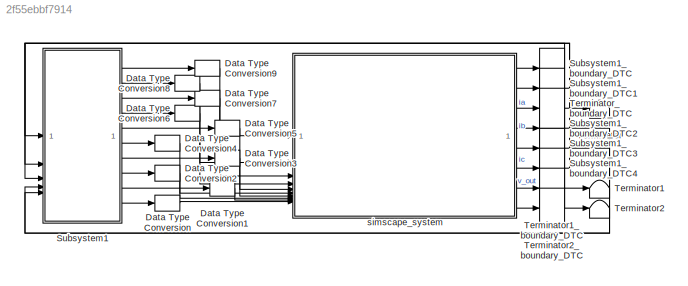
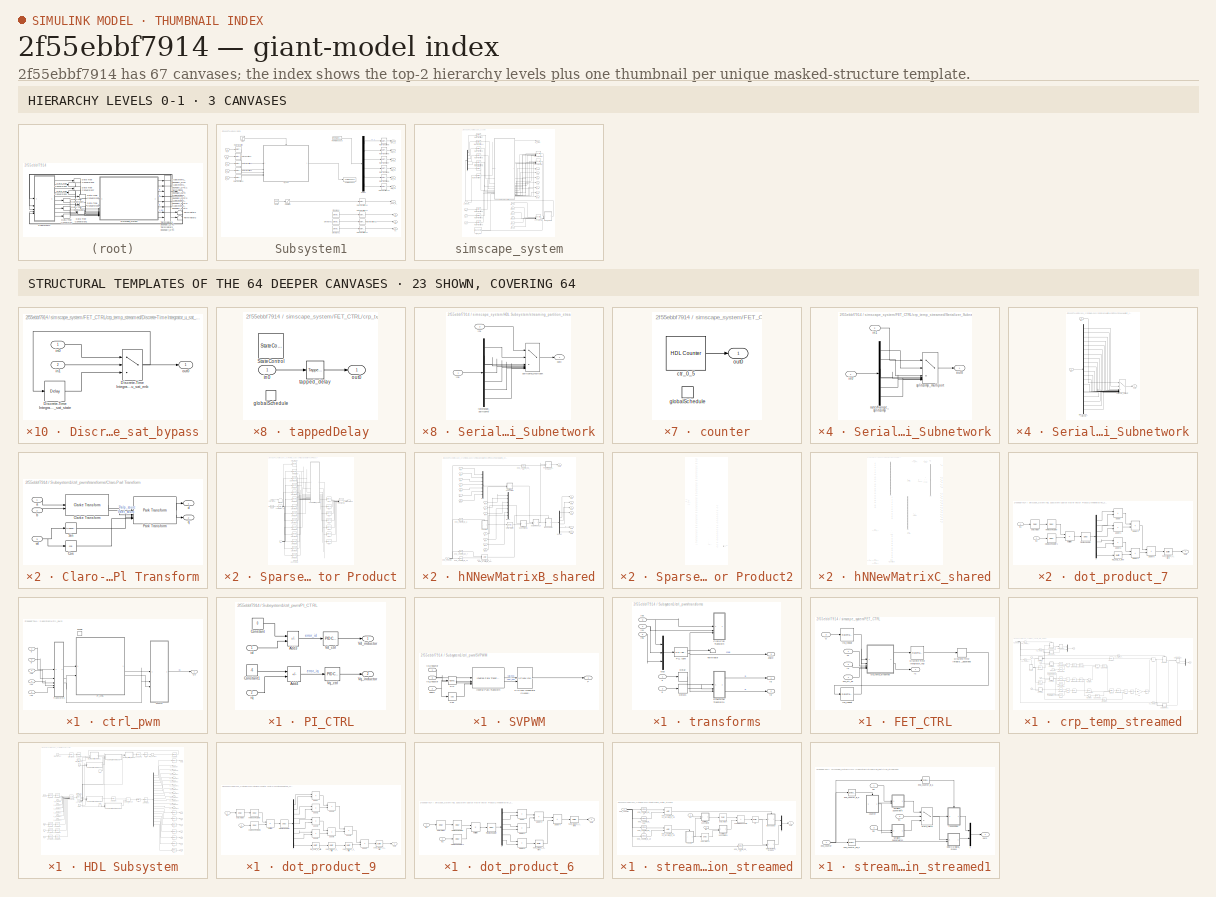
[diagram: thumbnail index - top-2 hierarchy levels (3 canvases) + 23 structural-template representatives of the remaining 64 canvases]
MODEL slx_2f55ebbf7914
KIND model
CONFIG AbsTol = auto
CONFIG EnableMultiTasking = off
CONFIG FixedStep = auto
CONFIG InitFcn = fidelity_pfc_vals;\nload('<userpath>\Desktop\hil\pfc3ph\matlab\sim\sschdl\pfc_desktop\stateSpaceParameters.mat');
CONFIG MaxStep = auto
CONFIG MinStep = auto
CONFIG RelTol = 1e-3
CONFIG SampleTimeConstraint = Unconstrained
CONFIG SolverName = VariableStepAuto
CONFIG StartTime = 0.0
CONFIG StopTime = 10.0
BLOCK [DataTypeConversion] Data Type Conversion
  RndMeth = Floor
  SaturateOnIntegerOverflow = off
BLOCK [DataTypeConversion] Data Type Conversion1
  RndMeth = Floor
  SaturateOnIntegerOverflow = off
BLOCK [DataTypeConversion] Data Type Conversion2
  RndMeth = Floor
  SaturateOnIntegerOverflow = off
BLOCK [DataTypeConversion] Data Type Conversion3
  RndMeth = Floor
  SaturateOnIntegerOverflow = off
BLOCK [DataTypeConversion] Data Type Conversion4
  RndMeth = Floor
  SaturateOnIntegerOverflow = off
BLOCK [DataTypeConversion] Data Type Conversion5
  RndMeth = Floor
  SaturateOnIntegerOverflow = off
BLOCK [DataTypeConversion] Data Type Conversion6
  RndMeth = Floor
  SaturateOnIntegerOverflow = off
BLOCK [DataTypeConversion] Data Type Conversion7
  RndMeth = Floor
  SaturateOnIntegerOverflow = off
BLOCK [DataTypeConversion] Data Type Conversion8
  RndMeth = Floor
  SaturateOnIntegerOverflow = off
BLOCK [DataTypeConversion] Data Type Conversion9
  RndMeth = Floor
  SaturateOnIntegerOverflow = off
BLOCK [SubSystem] Subsystem1
BLOCK [Outport] Subsystem1/DW_L1
  Port = 2
BLOCK [Outport] Subsystem1/DW_L2
  Port = 4
BLOCK [Outport] Subsystem1/DW_L3
  Port = 6
BLOCK [Demux] Subsystem1/Demux
  Outputs = 6
BLOCK [FromWorkspace] Subsystem1/From Workspace
  Interpolate = off
  OutputAfterFinalValue = Holding final value
  SampleTime = t_ss
  VariableName = pwm
  ZeroCross = off
BLOCK [Outport] Subsystem1/I_load_in_
  Port = 7
BLOCK [Inport] Subsystem1/O_Ia
BLOCK [Inport] Subsystem1/O_Ib
  Port = 2
BLOCK [Inport] Subsystem1/O_Va
  Port = 3
BLOCK [Inport] Subsystem1/O_Vb
  Port = 4
BLOCK [Inport] Subsystem1/O_Vc
  Port = 5
BLOCK [Reference] Subsystem1/Ramp  REF=simulink/Sources/Ramp
  SourceBlock = simulink/Sources/Ramp
  SourceType = Ramp
BLOCK [RateTransition] Subsystem1/Rate Transition
  Commented = on
  OutPortSampleTime = t_ss
BLOCK [RateTransition] Subsystem1/Rate Transition1
  Commented = on
  OutPortSampleTime = t_ss
BLOCK [RateTransition] Subsystem1/Rate Transition10
  OutPortSampleTime = t_ss
BLOCK [RateTransition] Subsystem1/Rate Transition11
BLOCK [RateTransition] Subsystem1/Rate Transition12
BLOCK [RateTransition] Subsystem1/Rate Transition13
BLOCK [RateTransition] Subsystem1/Rate Transition14
  OutPortSampleTime = t_ss
BLOCK [RateTransition] Subsystem1/Rate Transition2
  Commented = on
  OutPortSampleTime = t_ss
BLOCK [RateTransition] Subsystem1/Rate Transition3
  Commented = on
  OutPortSampleTime = t_ss
BLOCK [RateTransition] Subsystem1/Rate Transition4
  Commented = on
  OutPortSampleTime = t_ss
BLOCK [RateTransition] Subsystem1/Rate Transition5
  OutPortSampleTime = t_ss
BLOCK [RateTransition] Subsystem1/Rate Transition6
  OutPortSampleTime = t_ss
BLOCK [RateTransition] Subsystem1/Rate Transition7
  OutPortSampleTime = t_ss
BLOCK [RateTransition] Subsystem1/Rate Transition8
  OutPortSampleTime = t_ss
BLOCK [RateTransition] Subsystem1/Rate Transition9
  OutPortSampleTime = t_ss
BLOCK [Saturate] Subsystem1/Saturation
  UpperLimit = 2
BLOCK [Reference] Subsystem1/Sine Wave  REF=dspsrcs4/Sine Wave
  SourceBlock = dspsrcs4/Sine Wave
  SourceType = Sine Wave
BLOCK [Reference] Subsystem1/Sine Wave1  REF=dspsrcs4/Sine Wave
  SourceBlock = dspsrcs4/Sine Wave
  SourceType = Sine Wave
BLOCK [Reference] Subsystem1/Sine Wave2  REF=dspsrcs4/Sine Wave
  SourceBlock = dspsrcs4/Sine Wave
  SourceType = Sine Wave
BLOCK [Step] Subsystem1/Step
  Commented = on
  SampleTime = 0
  Time = 2/50
BLOCK [ToWorkspace] Subsystem1/To Workspace
  Commented = on
  FixptAsFi = on
  MaxDataPoints = inf
  SampleTime = -1
  SaveFormat = Timeseries
  VariableName = pwm
BLOCK [Outport] Subsystem1/UP_L1
BLOCK [Outport] Subsystem1/UP_L2
  Port = 3
BLOCK [Outport] Subsystem1/UP_L3
  Port = 5
BLOCK [SubSystem] Subsystem1/ctrl_pwm
  Commented = on
BLOCK [EnablePort] Subsystem1/ctrl_pwm/Enable
BLOCK [Inport] Subsystem1/ctrl_pwm/In3
  Port = 3
BLOCK [Inport] Subsystem1/ctrl_pwm/In4
  Port = 4
BLOCK [Inport] Subsystem1/ctrl_pwm/In5
  Port = 5
BLOCK [SubSystem] Subsystem1/ctrl_pwm/PI_CTRL
BLOCK [Sum] Subsystem1/ctrl_pwm/PI_CTRL/Add3
  IconShape = rectangular
  Inputs = +-
BLOCK [Sum] Subsystem1/ctrl_pwm/PI_CTRL/Add4
  IconShape = rectangular
  Inputs = +-
BLOCK [Constant] Subsystem1/ctrl_pwm/PI_CTRL/Constant
  SampleTime = t_ss
  Value = 0
BLOCK [Constant] Subsystem1/ctrl_pwm/PI_CTRL/Constant1
  SampleTime = t_ss
  Value = -6
BLOCK [Reference] Subsystem1/ctrl_pwm/PI_CTRL/Vd_ctrl  REF=slpidlib/PID Controller
  SourceBlock = slpidlib/PID Controller
  SourceType = PID 1dof
BLOCK [Outport] Subsystem1/ctrl_pwm/PI_CTRL/Vd_inductor
BLOCK [Reference] Subsystem1/ctrl_pwm/PI_CTRL/Vq_ctrl  REF=slpidlib/PID Controller
  SourceBlock = slpidlib/PID Controller
  SourceType = PID 1dof
BLOCK [Outport] Subsystem1/ctrl_pwm/PI_CTRL/Vq_inductor
  Port = 2
BLOCK [Inport] Subsystem1/ctrl_pwm/PI_CTRL/id
BLOCK [Inport] Subsystem1/ctrl_pwm/PI_CTRL/iq
  Port = 2
BLOCK [Outport] Subsystem1/ctrl_pwm/Qs
BLOCK [SubSystem] Subsystem1/ctrl_pwm/SVPWM
BLOCK [Trigonometry] Subsystem1/ctrl_pwm/SVPWM/Cos
  Operator = cos
BLOCK [Reference] Subsystem1/ctrl_pwm/SVPWM/Inverse Park Transform  REF=mcbcontrolslib/Inverse Park Transform
  SourceBlock = mcbcontrolslib/Inverse Park Transform
  SourceType = Inverse Park Transform
BLOCK [Outport] Subsystem1/ctrl_pwm/SVPWM/P
BLOCK [Reference] Subsystem1/ctrl_pwm/SVPWM/SVPWM Generator (2-Level)  REF=spsSVPWMGenerator2LevelLib/SVPWM Generator
(2-Level)
  SourceBlock = spsSVPWMGenerator2LevelLib/SVPWM Generator\n(2-Level)
  SourceType = SVPWM Generator (2-Level)
BLOCK [Trigonometry] Subsystem1/ctrl_pwm/SVPWM/Sin
BLOCK [Inport] Subsystem1/ctrl_pwm/SVPWM/Vd_inductor
BLOCK [Inport] Subsystem1/ctrl_pwm/SVPWM/Vq_inductor
  Port = 3
BLOCK [Inport] Subsystem1/ctrl_pwm/SVPWM/angle
  Port = 2
BLOCK [Inport] Subsystem1/ctrl_pwm/a
BLOCK [Inport] Subsystem1/ctrl_pwm/b
  Port = 2
BLOCK [SubSystem] Subsystem1/ctrl_pwm/transforms
BLOCK [SubSystem] Subsystem1/ctrl_pwm/transforms/Claro-Parl Transform
  Commented = on
BLOCK [Reference] Subsystem1/ctrl_pwm/transforms/Claro-Parl Transform/Clarke Transform  REF=mcbcontrolslib/Clarke Transform
  SourceBlock = mcbcontrolslib/Clarke Transform
  SourceType = Clarke Transform
BLOCK [Trigonometry] Subsystem1/ctrl_pwm/transforms/Claro-Parl Transform/Cos
  Operator = cos
BLOCK [Reference] Subsystem1/ctrl_pwm/transforms/Claro-Parl Transform/Park Transform  REF=mcbcontrolslib/Park Transform
  SourceBlock = mcbcontrolslib/Park Transform
  SourceType = Park Transform
BLOCK [Trigonometry] Subsystem1/ctrl_pwm/transforms/Claro-Parl Transform/Sin
BLOCK [Inport] Subsystem1/ctrl_pwm/transforms/Claro-Parl Transform/a
BLOCK [Inport] Subsystem1/ctrl_pwm/transforms/Claro-Parl Transform/b
  Port = 2
BLOCK [Outport] Subsystem1/ctrl_pwm/transforms/Claro-Parl Transform/d
BLOCK [Outport] Subsystem1/ctrl_pwm/transforms/Claro-Parl Transform/q
  Port = 2
BLOCK [Inport] Subsystem1/ctrl_pwm/transforms/Claro-Parl Transform/wt
  Port = 3
BLOCK [SubSystem] Subsystem1/ctrl_pwm/transforms/Claro-Parl Transform1
BLOCK [Reference] Subsystem1/ctrl_pwm/transforms/Claro-Parl Transform1/Clarke Transform  REF=mcbcontrolslib/Clarke Transform
  SourceBlock = mcbcontrolslib/Clarke Transform
  SourceType = Clarke Transform
BLOCK [Trigonometry] Subsystem1/ctrl_pwm/transforms/Claro-Parl Transform1/Cos
  Operator = cos
BLOCK [Reference] Subsystem1/ctrl_pwm/transforms/Claro-Parl Transform1/Park Transform  REF=mcbcontrolslib/Park Transform
  SourceBlock = mcbcontrolslib/Park Transform
  SourceType = Park Transform
BLOCK [Trigonometry] Subsystem1/ctrl_pwm/transforms/Claro-Parl Transform1/Sin
BLOCK [Inport] Subsystem1/ctrl_pwm/transforms/Claro-Parl Transform1/a
BLOCK [Inport] Subsystem1/ctrl_pwm/transforms/Claro-Parl Transform1/b
  Port = 2
BLOCK [Outport] Subsystem1/ctrl_pwm/transforms/Claro-Parl Transform1/d
BLOCK [Outport] Subsystem1/ctrl_pwm/transforms/Claro-Parl Transform1/q
  Port = 2
BLOCK [Inport] Subsystem1/ctrl_pwm/transforms/Claro-Parl Transform1/wt
  Port = 3
BLOCK [Delay] Subsystem1/ctrl_pwm/transforms/Delay
  DelayLength = 1
  InputPortMap = u0
BLOCK [Delay] Subsystem1/ctrl_pwm/transforms/Delay1
  DelayLength = 1
  InputPortMap = u0
BLOCK [Inport] Subsystem1/ctrl_pwm/transforms/In3
  Port = 3
BLOCK [Inport] Subsystem1/ctrl_pwm/transforms/In4
  Port = 4
BLOCK [Inport] Subsystem1/ctrl_pwm/transforms/In5
  Port = 5
BLOCK [Mux] Subsystem1/ctrl_pwm/transforms/Mux
  DisplayOption = bar
  Inputs = 3
BLOCK [Reference] Subsystem1/ctrl_pwm/transforms/PLL (3ph)  REF=spsPLL3phLib/PLL
(3ph)
  SourceBlock = spsPLL3phLib/PLL\n(3ph)
  SourceType = PLL (3ph)
BLOCK [Terminator] Subsystem1/ctrl_pwm/transforms/Terminator
BLOCK [Inport] Subsystem1/ctrl_pwm/transforms/a
BLOCK [Outport] Subsystem1/ctrl_pwm/transforms/angle
  Port = 3
BLOCK [Inport] Subsystem1/ctrl_pwm/transforms/b
  Port = 2
BLOCK [Outport] Subsystem1/ctrl_pwm/transforms/id
BLOCK [Outport] Subsystem1/ctrl_pwm/transforms/iq
  Port = 2
BLOCK [Outport] Subsystem1/va
  Port = 8
BLOCK [Outport] Subsystem1/vb
  Port = 9
BLOCK [Outport] Subsystem1/vc
  Port = 10
BLOCK [DataTypeConversion] Subsystem1_boundary_DTC
BLOCK [DataTypeConversion] Subsystem1_boundary_DTC1
BLOCK [DataTypeConversion] Subsystem1_boundary_DTC2
BLOCK [DataTypeConversion] Subsystem1_boundary_DTC3
BLOCK [DataTypeConversion] Subsystem1_boundary_DTC4
BLOCK [Terminator] Terminator
BLOCK [Terminator] Terminator1
BLOCK [DataTypeConversion] Terminator1_boundary_DTC
BLOCK [Terminator] Terminator2
BLOCK [DataTypeConversion] Terminator2_boundary_DTC
BLOCK [DataTypeConversion] Terminator_boundary_DTC
BLOCK [SubSystem] simscape_system
BLOCK [Inport] simscape_system/DW_L1
  OutDataTypeStr = boolean
  Port = 2
  PortDimensions = 1
  SampleTime = 5.12820512820513e-07
BLOCK [Inport] simscape_system/DW_L2
  OutDataTypeStr = boolean
  Port = 4
  PortDimensions = 1
  SampleTime = 5.12820512820513e-07
BLOCK [Inport] simscape_system/DW_L3
  OutDataTypeStr = boolean
  Port = 6
  PortDimensions = 1
  SampleTime = 5.12820512820513e-07
BLOCK [SubSystem] simscape_system/FET_CTRL
BLOCK [RateTransition] simscape_system/FET_CTRL/Discrete-Time Integrator_reg
  InitialCondition = double(0)
  OutPortSampleTimeMultiple = 37
  OutPortSampleTimeOpt = Multiple of input port sample time
BLOCK [Delay] simscape_system/FET_CTRL/Discrete-Time Integrator_reg_absorbed
  DelayLength = 0
  InputPortMap = u0
BLOCK [Inport] simscape_system/FET_CTRL/G
  OutDataTypeStr = boolean
  Port = 3
  PortDimensions = [6]
  SampleTime = 5.12820512820513e-07
BLOCK [SubSystem] simscape_system/FET_CTRL/crp_temp_streamed
BLOCK [Constant] simscape_system/FET_CTRL/crp_temp_streamed/Constant
  OutDataTypeStr = fixdt(1, 18, 17)
  SampleTime = 1.38600138600139e-08
  Value = -0.6999969482421875
BLOCK [SubSystem] simscape_system/FET_CTRL/crp_temp_streamed/Discrete-Time Integrator_u_sat_bypass
BLOCK [Switch] simscape_system/FET_CTRL/crp_temp_streamed/Discrete-Time Integrator_u_sat_bypass/Discrete-Time Integrator_u_sat_enb
  Criteria = u2 ~= 0
  InputSameDT = off
  OutDataTypeStr = fixdt(1, 18, 8)
  SampleTime = 1.38600138600139e-08
  SaturateOnIntegerOverflow = off
  Threshold = double(0)
BLOCK [Delay] simscape_system/FET_CTRL/crp_temp_streamed/Discrete-Time Integrator_u_sat_bypass/Discrete-Time Integrator_u_sat_state
  DelayLength = double(1)
  InitialCondition = 0
  InputPortMap = u0
  SampleTime = 1.38600138600139e-08
BLOCK [Inport] simscape_system/FET_CTRL/crp_temp_streamed/Discrete-Time Integrator_u_sat_bypass/in0
  OutDataTypeStr = fixdt(1, 18, 8)
  PortDimensions = [5]
  SampleTime = 1.38600138600139e-08
BLOCK [Inport] simscape_system/FET_CTRL/crp_temp_streamed/Discrete-Time Integrator_u_sat_bypass/in1
  OutDataTypeStr = boolean
  Port = 2
  SampleTime = 1.38600138600139e-08
BLOCK [Outport] simscape_system/FET_CTRL/crp_temp_streamed/Discrete-Time Integrator_u_sat_bypass/out0
  OutDataTypeStr = fixdt(1, 18, 8)
  PortDimensions = [5]
  SampleTime = 1.38600138600139e-08
BLOCK [SubSystem] simscape_system/FET_CTRL/crp_temp_streamed/Discrete-Time Integrator_u_sat_bypass1
BLOCK [Switch] simscape_system/FET_CTRL/crp_temp_streamed/Discrete-Time Integrator_u_sat_bypass1/Discrete-Time Integrator_u_sat_enb
  Criteria = u2 ~= 0
  InputSameDT = off
  OutDataTypeStr = fixdt(1, 18, 8)
  SampleTime = 1.38600138600139e-08
  SaturateOnIntegerOverflow = off
  Threshold = double(0)
BLOCK [Delay] simscape_system/FET_CTRL/crp_temp_streamed/Discrete-Time Integrator_u_sat_bypass1/Discrete-Time Integrator_u_sat_state
  DelayLength = double(1)
  InitialCondition = 0
  InputPortMap = u0
  SampleTime = 1.38600138600139e-08
BLOCK [Inport] simscape_system/FET_CTRL/crp_temp_streamed/Discrete-Time Integrator_u_sat_bypass1/in0
  OutDataTypeStr = fixdt(1, 18, 8)
  SampleTime = 1.38600138600139e-08
BLOCK [Inport] simscape_system/FET_CTRL/crp_temp_streamed/Discrete-Time Integrator_u_sat_bypass1/in1
  OutDataTypeStr = boolean
  Port = 2
  SampleTime = 1.38600138600139e-08
BLOCK [Outport] simscape_system/FET_CTRL/crp_temp_streamed/Discrete-Time Integrator_u_sat_bypass1/out0
  OutDataTypeStr = fixdt(1, 18, 8)
  SampleTime = 1.38600138600139e-08
BLOCK [RelationalOperator] simscape_system/FET_CTRL/crp_temp_streamed/Equal
  InputSameDT = off
  OutDataTypeStr = boolean
  SampleTime = 1.38600138600139e-08
BLOCK [Product] simscape_system/FET_CTRL/crp_temp_streamed/Gain1
  Inputs = **
  OutDataTypeStr = fixdt(1, 36, 23)
  SampleTime = 1.38600138600139e-08
BLOCK [Constant] simscape_system/FET_CTRL/crp_temp_streamed/Gain1_const
  OutDataTypeStr = fixdt(1, 18, 17)
  SampleTime = 1.38600138600139e-08
  Value = -1
BLOCK [DataTypeConversion] simscape_system/FET_CTRL/crp_temp_streamed/Gain1_out_dtc
  OutDataTypeStr = fixdt(1, 18, 12)
  RndMeth = Floor
  SampleTime = 1.38600138600139e-08
  SaturateOnIntegerOverflow = off
BLOCK [Product] simscape_system/FET_CTRL/crp_temp_streamed/Gain3
  Inputs = **
  OutDataTypeStr = fixdt(1, 36, 28)
  SampleTime = 1.38600138600139e-08
BLOCK [Constant] simscape_system/FET_CTRL/crp_temp_streamed/Gain3_const
  OutDataTypeStr = fixdt(1, 18, 22)
  SampleTime = 1.38600138600139e-08
  Value = 0.019999980926513671875
BLOCK [DataTypeConversion] simscape_system/FET_CTRL/crp_temp_streamed/Gain3_out_dtc
  OutDataTypeStr = fixdt(1, 18, 12)
  RndMeth = Floor
  SampleTime = 1.38600138600139e-08
  SaturateOnIntegerOverflow = off
BLOCK [Delay] simscape_system/FET_CTRL/crp_temp_streamed/HwModeRegister
  DelayLength = double(1)
  InitialCondition = 0
  InputPortMap = u0
  SampleTime = 1.38600138600139e-08
BLOCK [Delay] simscape_system/FET_CTRL/crp_temp_streamed/HwModeRegister1
  DelayLength = double(1)
  InitialCondition = 0
  InputPortMap = u0
  SampleTime = 1.38600138600139e-08
BLOCK [Delay] simscape_system/FET_CTRL/crp_temp_streamed/HwModeRegister2
  DelayLength = double(1)
  InitialCondition = 0
  InputPortMap = u0
  SampleTime = 1.38600138600139e-08
BLOCK [Delay] simscape_system/FET_CTRL/crp_temp_streamed/HwModeRegister3
  DelayLength = double(1)
  InitialCondition = 0
  InputPortMap = u0
  SampleTime = 1.38600138600139e-08
BLOCK [Delay] simscape_system/FET_CTRL/crp_temp_streamed/HwModeRegister4
  DelayLength = double(1)
  InitialCondition = 0
  InputPortMap = u0
  SampleTime = 1.38600138600139e-08
BLOCK [Delay] simscape_system/FET_CTRL/crp_temp_streamed/HwModeRegister5
  DelayLength = double(1)
  InitialCondition = 0
  InputPortMap = u0
  SampleTime = 1.38600138600139e-08
BLOCK [Delay] simscape_system/FET_CTRL/crp_temp_streamed/HwModeRegister6
  DelayLength = double(1)
  InitialCondition = 0
  InputPortMap = u0
  SampleTime = 1.38600138600139e-08
BLOCK [Reference] simscape_system/FET_CTRL/crp_temp_streamed/Multiply-Add  REF=hdlsllib/HDL Operations/Multiply-Add
  SourceBlock = hdlsllib/HDL Operations/Multiply-Add
  SourceType = Multiply-Add
BLOCK [Logic] simscape_system/FET_CTRL/crp_temp_streamed/OR
  AllPortsSameDT = off
  Operator = OR
  OutDataTypeStr = boolean
  SampleTime = 1.38600138600139e-08
BLOCK [Delay] simscape_system/FET_CTRL/crp_temp_streamed/PipelineRegister
  DelayLength = double(2)
  InitialCondition = 0
  InputPortMap = u0
  SampleTime = 1.38600138600139e-08
BLOCK [Delay] simscape_system/FET_CTRL/crp_temp_streamed/PipelineRegister1
  DelayLength = double(1)
  InitialCondition = 0
  InputPortMap = u0
  SampleTime = 1.38600138600139e-08
BLOCK [Delay] simscape_system/FET_CTRL/crp_temp_streamed/PipelineRegister2
  DelayLength = double(1)
  InitialCondition = 0
  InputPortMap = u0
  SampleTime = 1.38600138600139e-08
BLOCK [SubSystem] simscape_system/FET_CTRL/crp_temp_streamed/Serializer_Subnetwork
BLOCK [Inport] simscape_system/FET_CTRL/crp_temp_streamed/Serializer_Subnetwork/in0
  OutDataTypeStr = fixdt(1, 18, 8)
  PortDimensions = [6]
  SampleTime = 1.38600138600139e-08
BLOCK [Inport] simscape_system/FET_CTRL/crp_temp_streamed/Serializer_Subnetwork/in1
  OutDataTypeStr = fixdt(0, 3, 0)
  Port = 2
  SampleTime = 1.38600138600139e-08
BLOCK [Outport] simscape_system/FET_CTRL/crp_temp_streamed/Serializer_Subnetwork/out0
  OutDataTypeStr = fixdt(1, 18, 8)
  SampleTime = 1.38600138600139e-08
BLOCK [Demux] simscape_system/FET_CTRL/crp_temp_streamed/Serializer_Subnetwork/ratechange_splitcomp
  Outputs = 6
BLOCK [MultiPortSwitch] simscape_system/FET_CTRL/crp_temp_streamed/Serializer_Subnetwork/splitcomp_multiport
  DataPortOrder = Zero-based contiguous
  DiagnosticForDefault = None
  InputSameDT = off
  Inputs = 6
  OutDataTypeStr = fixdt(1, 18, 8)
  SampleTime = 1.38600138600139e-08
  SaturateOnIntegerOverflow = off
  zeroidx = on
BLOCK [SubSystem] simscape_system/FET_CTRL/crp_temp_streamed/Serializer_Subnetwork1
BLOCK [Inport] simscape_system/FET_CTRL/crp_temp_streamed/Serializer_Subnetwork1/in0
  OutDataTypeStr = boolean
  PortDimensions = [6]
  SampleTime = 1.38600138600139e-08
BLOCK [Inport] simscape_system/FET_CTRL/crp_temp_streamed/Serializer_Subnetwork1/in1
  OutDataTypeStr = fixdt(0, 3, 0)
  Port = 2
  SampleTime = 1.38600138600139e-08
BLOCK [Outport] simscape_system/FET_CTRL/crp_temp_streamed/Serializer_Subnetwork1/out0
  OutDataTypeStr = boolean
  SampleTime = 1.38600138600139e-08
BLOCK [Demux] simscape_system/FET_CTRL/crp_temp_streamed/Serializer_Subnetwork1/ratechange_splitcomp
  Outputs = 6
BLOCK [MultiPortSwitch] simscape_system/FET_CTRL/crp_temp_streamed/Serializer_Subnetwork1/splitcomp_multiport
  DataPortOrder = Zero-based contiguous
  DiagnosticForDefault = None
  InputSameDT = off
  Inputs = 6
  SampleTime = 1.38600138600139e-08
  SaturateOnIntegerOverflow = off
  zeroidx = on
BLOCK [SubSystem] simscape_system/FET_CTRL/crp_temp_streamed/Serializer_Subnetwork2
BLOCK [Inport] simscape_system/FET_CTRL/crp_temp_streamed/Serializer_Subnetwork2/in0
  OutDataTypeStr = fixdt(1, 18, 6)
  PortDimensions = [6]
  SampleTime = 1.38600138600139e-08
BLOCK [Inport] simscape_system/FET_CTRL/crp_temp_streamed/Serializer_Subnetwork2/in1
  OutDataTypeStr = fixdt(0, 3, 0)
  Port = 2
  SampleTime = 1.38600138600139e-08
BLOCK [Outport] simscape_system/FET_CTRL/crp_temp_streamed/Serializer_Subnetwork2/out0
  OutDataTypeStr = fixdt(1, 18, 6)
  SampleTime = 1.38600138600139e-08
BLOCK [Demux] simscape_system/FET_CTRL/crp_temp_streamed/Serializer_Subnetwork2/ratechange_splitcomp
  Outputs = 6
BLOCK [MultiPortSwitch] simscape_system/FET_CTRL/crp_temp_streamed/Serializer_Subnetwork2/splitcomp_multiport
  DataPortOrder = Zero-based contiguous
  DiagnosticForDefault = None
  InputSameDT = off
  Inputs = 6
  OutDataTypeStr = fixdt(1, 18, 6)
  SampleTime = 1.38600138600139e-08
  SaturateOnIntegerOverflow = off
  zeroidx = on
BLOCK [SubSystem] simscape_system/FET_CTRL/crp_temp_streamed/Serializer_Subnetwork3
BLOCK [Inport] simscape_system/FET_CTRL/crp_temp_streamed/Serializer_Subnetwork3/in0
  OutDataTypeStr = fixdt(1, 18, 6)
  PortDimensions = [6]
  SampleTime = 1.38600138600139e-08
BLOCK [Inport] simscape_system/FET_CTRL/crp_temp_streamed/Serializer_Subnetwork3/in1
  OutDataTypeStr = fixdt(0, 3, 0)
  Port = 2
  SampleTime = 1.38600138600139e-08
BLOCK [Outport] simscape_system/FET_CTRL/crp_temp_streamed/Serializer_Subnetwork3/out0
  OutDataTypeStr = fixdt(1, 18, 6)
  SampleTime = 1.38600138600139e-08
BLOCK [Demux] simscape_system/FET_CTRL/crp_temp_streamed/Serializer_Subnetwork3/ratechange_splitcomp
  Outputs = 6
BLOCK [MultiPortSwitch] simscape_system/FET_CTRL/crp_temp_streamed/Serializer_Subnetwork3/splitcomp_multiport
  DataPortOrder = Zero-based contiguous
  DiagnosticForDefault = None
  InputSameDT = off
  Inputs = 6
  OutDataTypeStr = fixdt(1, 18, 6)
  SampleTime = 1.38600138600139e-08
  SaturateOnIntegerOverflow = off
  zeroidx = on
BLOCK [Sum] simscape_system/FET_CTRL/crp_temp_streamed/Subtract
  AccumDataTypeStr = fixdt(1, 23, 12)
  IconShape = rectangular
  Inputs = +-
  OutDataTypeStr = fixdt(1, 18, 12)
  SampleTime = 1.38600138600139e-08
BLOCK [Sum] simscape_system/FET_CTRL/crp_temp_streamed/Subtract1
  AccumDataTypeStr = fixdt(1, 19, 12)
  IconShape = rectangular
  Inputs = +-
  OutDataTypeStr = fixdt(1, 18, 11)
  SampleTime = 1.38600138600139e-08
BLOCK [Sum] simscape_system/FET_CTRL/crp_temp_streamed/adder
  AccumDataTypeStr = fixdt(1, 18, 8)
  IconShape = rectangular
  OutDataTypeStr = fixdt(1, 18, 8)
  SampleTime = 1.38600138600139e-08
BLOCK [SubSystem] simscape_system/FET_CTRL/crp_temp_streamed/buffSig_bypass
BLOCK [Switch] simscape_system/FET_CTRL/crp_temp_streamed/buffSig_bypass/buffSig_enb
  Criteria = u2 ~= 0
  InputSameDT = off
  OutDataTypeStr = fixdt(1, 18, 8)
  SampleTime = 1.38600138600139e-08
  SaturateOnIntegerOverflow = off
  Threshold = double(0)
BLOCK [Delay] simscape_system/FET_CTRL/crp_temp_streamed/buffSig_bypass/buffSig_state
  DelayLength = double(1)
  InitialCondition = 0
  InputPortMap = u0
  SampleTime = 1.38600138600139e-08
BLOCK [Inport] simscape_system/FET_CTRL/crp_temp_streamed/buffSig_bypass/in0
  OutDataTypeStr = fixdt(1, 18, 8)
  PortDimensions = [5]
  SampleTime = 1.38600138600139e-08
BLOCK [Inport] simscape_system/FET_CTRL/crp_temp_streamed/buffSig_bypass/in1
  OutDataTypeStr = boolean
  Port = 2
  SampleTime = 1.38600138600139e-08
BLOCK [Outport] simscape_system/FET_CTRL/crp_temp_streamed/buffSig_bypass/out0
  OutDataTypeStr = fixdt(1, 18, 8)
  PortDimensions = [5]
  SampleTime = 1.38600138600139e-08
BLOCK [SubSystem] simscape_system/FET_CTRL/crp_temp_streamed/buffSig_bypass1
BLOCK [Switch] simscape_system/FET_CTRL/crp_temp_streamed/buffSig_bypass1/buffSig_enb
  Criteria = u2 ~= 0
  InputSameDT = off
  OutDataTypeStr = fixdt(1, 18, 8)
  SampleTime = 1.38600138600139e-08
  SaturateOnIntegerOverflow = off
  Threshold = double(0)
BLOCK [Delay] simscape_system/FET_CTRL/crp_temp_streamed/buffSig_bypass1/buffSig_state
  DelayLength = double(1)
  InitialCondition = 0
  InputPortMap = u0
  SampleTime = 1.38600138600139e-08
BLOCK [Inport] simscape_system/FET_CTRL/crp_temp_streamed/buffSig_bypass1/in0
  OutDataTypeStr = fixdt(1, 18, 8)
  SampleTime = 1.38600138600139e-08
BLOCK [Inport] simscape_system/FET_CTRL/crp_temp_streamed/buffSig_bypass1/in1
  OutDataTypeStr = boolean
  Port = 2
  SampleTime = 1.38600138600139e-08
BLOCK [Outport] simscape_system/FET_CTRL/crp_temp_streamed/buffSig_bypass1/out0
  OutDataTypeStr = fixdt(1, 18, 8)
  SampleTime = 1.38600138600139e-08
BLOCK [SubSystem] simscape_system/FET_CTRL/crp_temp_streamed/counter
BLOCK [Reference] simscape_system/FET_CTRL/crp_temp_streamed/counter/ctr_0_5  REF=hdlsllib/Sources/HDL Counter
  SourceBlock = hdlsllib/Sources/HDL Counter
  SourceType = HDL Counter
BLOCK [EnablePort] simscape_system/FET_CTRL/crp_temp_streamed/counter/globalSchedule
  OutDataTypeStr = boolean
BLOCK [Outport] simscape_system/FET_CTRL/crp_temp_streamed/counter/out0
  InitialOutput = 0
  OutDataTypeStr = fixdt(0, 3, 0)
  SampleTime = 1.38600138600139e-08
BLOCK [Delay] simscape_system/FET_CTRL/crp_temp_streamed/delayMatch
  DelayLength = double(2)
  InitialCondition = 0
  InputPortMap = u0
  SampleTime = 1.38600138600139e-08
BLOCK [Delay] simscape_system/FET_CTRL/crp_temp_streamed/delayMatch1
  DelayLength = double(32)
  InitialCondition = 0
  InputPortMap = u0
  SampleTime = 1.38600138600139e-08
BLOCK [Delay] simscape_system/FET_CTRL/crp_temp_streamed/delayMatch2
  DelayLength = double(32)
  InitialCondition = 0
  InputPortMap = u0
  SampleTime = 1.38600138600139e-08
BLOCK [Delay] simscape_system/FET_CTRL/crp_temp_streamed/delayMatch3
  DelayLength = double(27)
  InitialCondition = 0
  InputPortMap = u0
  SampleTime = 1.38600138600139e-08
BLOCK [Delay] simscape_system/FET_CTRL/crp_temp_streamed/delayMatch4
  DelayLength = double(27)
  InitialCondition = 0
  InputPortMap = u0
  SampleTime = 1.38600138600139e-08
BLOCK [Delay] simscape_system/FET_CTRL/crp_temp_streamed/delayMatch5
  DelayLength = double(27)
  InitialCondition = 0
  InputPortMap = u0
  SampleTime = 1.38600138600139e-08
BLOCK [Delay] simscape_system/FET_CTRL/crp_temp_streamed/delayMatch_absorbed
  DelayLength = 0
  InputPortMap = u0
BLOCK [Delay] simscape_system/FET_CTRL/crp_temp_streamed/delayMatch_absorbed1
  DelayLength = 0
  InputPortMap = u0
BLOCK [DataTypeConversion] simscape_system/FET_CTRL/crp_temp_streamed/dtc
  ConvertRealWorld = Stored Integer (SI)
  OutDataTypeStr = fixdt(1, 18, 8)
  RndMeth = Floor
  SampleTime = 1.38600138600139e-08
  SaturateOnIntegerOverflow = off
BLOCK [DataTypeConversion] simscape_system/FET_CTRL/crp_temp_streamed/dtc1
  ConvertRealWorld = Stored Integer (SI)
  OutDataTypeStr = fixdt(1, 18, 0)
  RndMeth = Floor
  SampleTime = 1.38600138600139e-08
  SaturateOnIntegerOverflow = off
BLOCK [Inport] simscape_system/FET_CTRL/crp_temp_streamed/enb_counter
  OutDataTypeStr = fixdt(0, 6, 0)
  Port = 5
  SampleTime = 1.38600138600139e-08
BLOCK [Reference] simscape_system/FET_CTRL/crp_temp_streamed/enb_counter_eq_0  REF=simulink/Logic and Bit
Operations/Compare
To Constant
  SourceBlock = simulink/Logic and Bit\nOperations/Compare\nTo Constant
  SourceType = Compare To Constant
BLOCK [Reference] simscape_system/FET_CTRL/crp_temp_streamed/enb_counter_eq_5  REF=simulink/Logic and Bit
Operations/Compare
To Constant
  SourceBlock = simulink/Logic and Bit\nOperations/Compare\nTo Constant
  SourceType = Compare To Constant
BLOCK [Reference] simscape_system/FET_CTRL/crp_temp_streamed/enb_counter_ge_32  REF=simulink/Logic and Bit
Operations/Compare
To Constant
  SourceBlock = simulink/Logic and Bit\nOperations/Compare\nTo Constant
  SourceType = Compare To Constant
BLOCK [Reference] simscape_system/FET_CTRL/crp_temp_streamed/enb_counter_le_4  REF=simulink/Logic and Bit
Operations/Compare
To Constant
  SourceBlock = simulink/Logic and Bit\nOperations/Compare\nTo Constant
  SourceType = Compare To Constant
BLOCK [Reference] simscape_system/FET_CTRL/crp_temp_streamed/enb_counter_le_5  REF=simulink/Logic and Bit
Operations/Compare
To Constant
  SourceBlock = simulink/Logic and Bit\nOperations/Compare\nTo Constant
  SourceType = Compare To Constant
BLOCK [Gain] simscape_system/FET_CTRL/crp_temp_streamed/gain
  Gain = fi(0,0,1,4,"hex","1")
  OutDataTypeStr = fixdt(1, 18, 0)
  ParamDataTypeStr = fixdt(0, 1, 4)
  SampleTime = 1.38600138600139e-08
BLOCK [Inport] simscape_system/FET_CTRL/crp_temp_streamed/in0
  OutDataTypeStr = fixdt(1, 18, 8)
  PortDimensions = [6]
  SampleTime = 1.38600138600139e-08
BLOCK [Inport] simscape_system/FET_CTRL/crp_temp_streamed/in1
  OutDataTypeStr = boolean
  Port = 2
  PortDimensions = [6]
  SampleTime = 1.38600138600139e-08
BLOCK [Inport] simscape_system/FET_CTRL/crp_temp_streamed/in2
  OutDataTypeStr = fixdt(1, 18, 6)
  Port = 3
  PortDimensions = [6]
  SampleTime = 1.38600138600139e-08
BLOCK [Inport] simscape_system/FET_CTRL/crp_temp_streamed/in3
  OutDataTypeStr = fixdt(1, 18, 6)
  Port = 4
  PortDimensions = [6]
  SampleTime = 1.38600138600139e-08
BLOCK [Outport] simscape_system/FET_CTRL/crp_temp_streamed/out0
  OutDataTypeStr = fixdt(1, 18, 8)
  PortDimensions = [6]
  SampleTime = 1.38600138600139e-08
BLOCK [Outport] simscape_system/FET_CTRL/crp_temp_streamed/out1
  OutDataTypeStr = fixdt(1, 18, 8)
  Port = 2
  PortDimensions = [6]
  SampleTime = 1.38600138600139e-08
BLOCK [Mux] simscape_system/FET_CTRL/crp_temp_streamed/t
  DisplayOption = bar
  Inputs = 2
BLOCK [Mux] simscape_system/FET_CTRL/crp_temp_streamed/t1
  DisplayOption = bar
  Inputs = 2
BLOCK [SubSystem] simscape_system/FET_CTRL/crp_temp_streamed/tappedDelay
BLOCK [StateControl] simscape_system/FET_CTRL/crp_temp_streamed/tappedDelay/StateControl
  StateControl = Synchronous
BLOCK [EnablePort] simscape_system/FET_CTRL/crp_temp_streamed/tappedDelay/globalSchedule
  OutDataTypeStr = boolean
BLOCK [Inport] simscape_system/FET_CTRL/crp_temp_streamed/tappedDelay/in0
  OutDataTypeStr = fixdt(1, 18, 8)
  SampleTime = 1.38600138600139e-08
BLOCK [Outport] simscape_system/FET_CTRL/crp_temp_streamed/tappedDelay/out0
  InitialOutput = 0
  OutDataTypeStr = fixdt(1, 18, 8)
  PortDimensions = [5]
  SampleTime = 1.38600138600139e-08
BLOCK [Reference] simscape_system/FET_CTRL/crp_temp_streamed/tappedDelay/tapped_delay  REF=simulink/Discrete/Tapped Delay
  SourceBlock = simulink/Discrete/Tapped Delay
  SourceType = Tapped Delay Line
BLOCK [SubSystem] simscape_system/FET_CTRL/crp_temp_streamed/tappedDelay1
BLOCK [StateControl] simscape_system/FET_CTRL/crp_temp_streamed/tappedDelay1/StateControl
  StateControl = Synchronous
BLOCK [EnablePort] simscape_system/FET_CTRL/crp_temp_streamed/tappedDelay1/globalSchedule
  OutDataTypeStr = boolean
BLOCK [Inport] simscape_system/FET_CTRL/crp_temp_streamed/tappedDelay1/in0
  OutDataTypeStr = fixdt(1, 18, 8)
  SampleTime = 1.38600138600139e-08
BLOCK [Outport] simscape_system/FET_CTRL/crp_temp_streamed/tappedDelay1/out0
  InitialOutput = 0
  OutDataTypeStr = fixdt(1, 18, 8)
  PortDimensions = [5]
  SampleTime = 1.38600138600139e-08
BLOCK [Reference] simscape_system/FET_CTRL/crp_temp_streamed/tappedDelay1/tapped_delay  REF=simulink/Discrete/Tapped Delay
  SourceBlock = simulink/Discrete/Tapped Delay
  SourceType = Tapped Delay Line
BLOCK [Outport] simscape_system/FET_CTRL/ic
  SampleTime = 1.38600138600139e-08
BLOCK [RateTransition] simscape_system/FET_CTRL/in0_repeat
  Deterministic = off
  Integrity = off
  OutPortSampleTimeMultiple = 1/37
  OutPortSampleTimeOpt = Multiple of input port sample time
BLOCK [RateTransition] simscape_system/FET_CTRL/in3_repeat
  Deterministic = off
  Integrity = off
  OutPortSampleTimeMultiple = 1/37
  OutPortSampleTimeOpt = Multiple of input port sample time
BLOCK [Inport] simscape_system/FET_CTRL/is
  OutDataTypeStr = fixdt(1, 18, 6)
  Port = 2
  PortDimensions = [6]
  SampleTime = 1.38600138600139e-08
BLOCK [Inport] simscape_system/FET_CTRL/sch_ctr_36
  OutDataTypeStr = fixdt(0, 6, 0)
  Port = 4
  SampleTime = 1.38600138600139e-08
BLOCK [Inport] simscape_system/FET_CTRL/vs
  OutDataTypeStr = fixdt(1, 18, 6)
  PortDimensions = [6]
  SampleTime = 1.38600138600139e-08
BLOCK [SubSystem] simscape_system/HDL Subsystem
BLOCK [DataTypeConversion] simscape_system/HDL Subsystem/Data Type Conversion
  OutDataTypeStr = fixdt(1, 25, 13)
  RndMeth = Floor
  SampleTime = 1.38600138600139e-08
  SaturateOnIntegerOverflow = off
BLOCK [DataTypeConversion] simscape_system/HDL Subsystem/Data Type Conversion1
  OutDataTypeStr = fixdt(1, 18, 6)
  RndMeth = Floor
  SampleTime = 1.38600138600139e-08
  SaturateOnIntegerOverflow = off
BLOCK [Outport] simscape_system/HDL Subsystem/I_load
  SampleTime = 5.12820512820513e-07
BLOCK [Inport] simscape_system/HDL Subsystem/I_load_in
  OutDataTypeStr = fixdt(1, 18, 8)
  PortDimensions = 1
  SampleTime = 5.12820512820513e-07
BLOCK [Outport] simscape_system/HDL Subsystem/Ia
  Port = 17
  SampleTime = 5.12820512820513e-07
BLOCK [Outport] simscape_system/HDL Subsystem/Ib
  Port = 15
  SampleTime = 5.12820512820513e-07
BLOCK [Outport] simscape_system/HDL Subsystem/Ic
  Port = 16
  SampleTime = 5.12820512820513e-07
BLOCK [SubSystem] simscape_system/HDL Subsystem/Sparse Matrix-Vector Product
BLOCK [Selector] simscape_system/HDL Subsystem/Sparse Matrix-Vector Product/SelectCols1
  IndexOptions = Index vector (dialog)
  Indices = double([2 3 4 5 6 7 8 9 10])
  InputPortWidth = 10
  OutputSizes = double(1)
BLOCK [Selector] simscape_system/HDL Subsystem/Sparse Matrix-Vector Product/SelectCols2
  IndexOptions = Index vector (dialog)
  Indices = double([2 3 4 5 6 7 8 9 10])
  InputPortWidth = 10
  OutputSizes = double(1)
BLOCK [Selector] simscape_system/HDL Subsystem/Sparse Matrix-Vector Product/SelectCols3
  IndexOptions = Index vector (dialog)
  Indices = double([2 3 4 5 6 7 8 9 10])
  InputPortWidth = 10
  OutputSizes = double(1)
BLOCK [Selector] simscape_system/HDL Subsystem/Sparse Matrix-Vector Product/SelectCols4
  IndexOptions = Index vector (dialog)
  Indices = double([2 3 4 5 6 7 8 9 10])
  InputPortWidth = 10
  OutputSizes = double(1)
BLOCK [Selector] simscape_system/HDL Subsystem/Sparse Matrix-Vector Product/SelectCols5
  IndexOptions = Index vector (dialog)
  Indices = double([2 3 4 5 6 7 8 9 10])
  InputPortWidth = 10
  OutputSizes = double(1)
BLOCK [Selector] simscape_system/HDL Subsystem/Sparse Matrix-Vector Product/SelectCols6
  IndexOptions = Index vector (dialog)
  Indices = double([2 3 4 5 6 7 8 9 10])
  InputPortWidth = 10
  OutputSizes = double(1)
BLOCK [Selector] simscape_system/HDL Subsystem/Sparse Matrix-Vector Product/SelectCols7
  IndexOptions = Index vector (dialog)
  Indices = double([1 2 3 4 5 6 7 8 9])
  InputPortWidth = 10
  OutputSizes = double(1)
BLOCK [Selector] simscape_system/HDL Subsystem/Sparse Matrix-Vector Product/SelectRows1
  IndexOptions = Index vector (dialog)
  Indices = double([2 9 16 23 30 37 44 51 58])
  InputPortWidth = 63
  OutputSizes = double(1)
BLOCK [Selector] simscape_system/HDL Subsystem/Sparse Matrix-Vector Product/SelectRows2
  IndexOptions = Index vector (dialog)
  Indices = double([3 10 17 24 31 38 45 52 59])
  InputPortWidth = 63
  OutputSizes = double(1)
BLOCK [Selector] simscape_system/HDL Subsystem/Sparse Matrix-Vector Product/SelectRows3
  IndexOptions = Index vector (dialog)
  Indices = double([4 11 18 25 32 39 46 53 60])
  InputPortWidth = 63
  OutputSizes = double(1)
BLOCK [Selector] simscape_system/HDL Subsystem/Sparse Matrix-Vector Product/SelectRows4
  IndexOptions = Index vector (dialog)
  Indices = double([5 12 19 26 33 40 47 54 61])
  InputPortWidth = 63
  OutputSizes = double(1)
BLOCK [Selector] simscape_system/HDL Subsystem/Sparse Matrix-Vector Product/SelectRows5
  IndexOptions = Index vector (dialog)
  Indices = double([6 13 20 27 34 41 48 55 62])
  InputPortWidth = 63
  OutputSizes = double(1)
BLOCK [Selector] simscape_system/HDL Subsystem/Sparse Matrix-Vector Product/SelectRows6
  IndexOptions = Index vector (dialog)
  Indices = double([7 14 21 28 35 42 49 56 63])
  InputPortWidth = 63
  OutputSizes = double(1)
BLOCK [Selector] simscape_system/HDL Subsystem/Sparse Matrix-Vector Product/SelectRows7
  IndexOptions = Index vector (dialog)
  Indices = double([1 8 15 22 29 36 43 50 57])
  InputPortWidth = 63
  OutputSizes = double(1)
BLOCK [Concatenate] simscape_system/HDL Subsystem/Sparse Matrix-Vector Product/concatenate
  NumInputs = 7
BLOCK [Reference] simscape_system/HDL Subsystem/Sparse Matrix-Vector Product/configuration1_wire  REF=hdlmdlgenlib/Buffer
  SourceBlock = hdlmdlgenlib/Buffer
  SourceType = Buffer/Wire
BLOCK [Constant] simscape_system/HDL Subsystem/Sparse Matrix-Vector Product/const
  OutDataTypeStr = fixdt(1, 25, 31)
  SampleTime = 1.38600138600139e-08
  Value = [-0.000935040414333343505859375;0.00615119002759456634521484375;-0.003075595013797283172607421875;-0.003075595013797283172607421875;-0.003075600601732730865478515625;-0.003075600601732730865478515625;0.0061512016691267490386962890625;0.0004675202071666717529296875;-0.00615119002759456634521484375;0.003075595013797283172607421875;0.003075595013797283172607421875;0.003075600601732730865478515625;0.0...<+1484ch>
BLOCK [DataTypeConversion] simscape_system/HDL Subsystem/Sparse Matrix-Vector Product/dtc
  OutDataTypeStr = fixdt(1, 25, 13)
  RndMeth = Nearest
  SampleTime = 1.38600138600139e-08
  SaturateOnIntegerOverflow = off
BLOCK [DataTypeConversion] simscape_system/HDL Subsystem/Sparse Matrix-Vector Product/dtc1
  OutDataTypeStr = fixdt(1, 25, 13)
  RndMeth = Nearest
  SampleTime = 1.38600138600139e-08
  SaturateOnIntegerOverflow = off
BLOCK [DataTypeConversion] simscape_system/HDL Subsystem/Sparse Matrix-Vector Product/dtc2
  OutDataTypeStr = fixdt(1, 25, 13)
  RndMeth = Nearest
  SampleTime = 1.38600138600139e-08
  SaturateOnIntegerOverflow = off
BLOCK [DataTypeConversion] simscape_system/HDL Subsystem/Sparse Matrix-Vector Product/dtc3
  OutDataTypeStr = fixdt(1, 25, 13)
  RndMeth = Nearest
  SampleTime = 1.38600138600139e-08
  SaturateOnIntegerOverflow = off
BLOCK [DataTypeConversion] simscape_system/HDL Subsystem/Sparse Matrix-Vector Product/dtc4
  OutDataTypeStr = fixdt(1, 25, 13)
  RndMeth = Nearest
  SampleTime = 1.38600138600139e-08
  SaturateOnIntegerOverflow = off
BLOCK [DataTypeConversion] simscape_system/HDL Subsystem/Sparse Matrix-Vector Product/dtc5
  OutDataTypeStr = fixdt(1, 25, 13)
  RndMeth = Nearest
  SampleTime = 1.38600138600139e-08
  SaturateOnIntegerOverflow = off
BLOCK [DataTypeConversion] simscape_system/HDL Subsystem/Sparse Matrix-Vector Product/dtc6
  OutDataTypeStr = fixdt(1, 25, 13)
  RndMeth = Nearest
  SampleTime = 1.38600138600139e-08
  SaturateOnIntegerOverflow = off
BLOCK [Inport] simscape_system/HDL Subsystem/Sparse Matrix-Vector Product/enb_counter
  OutDataTypeStr = fixdt(0, 6, 0)
  Port = 3
  SampleTime = 1.38600138600139e-08
BLOCK [SubSystem] simscape_system/HDL Subsystem/Sparse Matrix-Vector Product/hNNewMatrixB_shared
BLOCK [SubSystem] simscape_system/HDL Subsystem/Sparse Matrix-Vector Product/hNNewMatrixB_shared/Serializer_Subnetwork
BLOCK [Inport] simscape_system/HDL Subsystem/Sparse Matrix-Vector Product/hNNewMatrixB_shared/Serializer_Subnetwork/in0
  OutDataTypeStr = fixdt(1, 25, 31)
  PortDimensions = [63]
  SampleTime = 1.38600138600139e-08
BLOCK [Inport] simscape_system/HDL Subsystem/Sparse Matrix-Vector Product/hNNewMatrixB_shared/Serializer_Subnetwork/in1
  OutDataTypeStr = fixdt(0, 3, 0)
  Port = 2
  SampleTime = 1.38600138600139e-08
BLOCK [Outport] simscape_system/HDL Subsystem/Sparse Matrix-Vector Product/hNNewMatrixB_shared/Serializer_Subnetwork/out0
  OutDataTypeStr = fixdt(1, 25, 31)
  PortDimensions = [9]
  SampleTime = 1.38600138600139e-08
BLOCK [Demux] simscape_system/HDL Subsystem/Sparse Matrix-Vector Product/hNNewMatrixB_shared/Serializer_Subnetwork/ratechange_splitcomp
  Outputs = 7
BLOCK [MultiPortSwitch] simscape_system/HDL Subsystem/Sparse Matrix-Vector Product/hNNewMatrixB_shared/Serializer_Subnetwork/splitcomp_multiport
  DataPortOrder = Zero-based contiguous
  DiagnosticForDefault = None
  InputSameDT = off
  Inputs = 7
  OutDataTypeStr = fixdt(1, 25, 31)
  SampleTime = 1.38600138600139e-08
  SaturateOnIntegerOverflow = off
  zeroidx = on
BLOCK [SubSystem] simscape_system/HDL Subsystem/Sparse Matrix-Vector Product/hNNewMatrixB_shared/Serializer_Subnetwork1
BLOCK [Inport] simscape_system/HDL Subsystem/Sparse Matrix-Vector Product/hNNewMatrixB_shared/Serializer_Subnetwork1/in0
  OutDataTypeStr = fixdt(1, 25, 13)
  PortDimensions = [63]
  SampleTime = 1.38600138600139e-08
BLOCK [Inport] simscape_system/HDL Subsystem/Sparse Matrix-Vector Product/hNNewMatrixB_shared/Serializer_Subnetwork1/in1
  OutDataTypeStr = fixdt(0, 3, 0)
  Port = 2
  SampleTime = 1.38600138600139e-08
BLOCK [Outport] simscape_system/HDL Subsystem/Sparse Matrix-Vector Product/hNNewMatrixB_shared/Serializer_Subnetwork1/out0
  OutDataTypeStr = fixdt(1, 25, 13)
  PortDimensions = [9]
  SampleTime = 1.38600138600139e-08
BLOCK [Demux] simscape_system/HDL Subsystem/Sparse Matrix-Vector Product/hNNewMatrixB_shared/Serializer_Subnetwork1/ratechange_splitcomp
  Outputs = 7
BLOCK [MultiPortSwitch] simscape_system/HDL Subsystem/Sparse Matrix-Vector Product/hNNewMatrixB_shared/Serializer_Subnetwork1/splitcomp_multiport
  DataPortOrder = Zero-based contiguous
  DiagnosticForDefault = None
  InputSameDT = off
  Inputs = 7
  OutDataTypeStr = fixdt(1, 25, 13)
  SampleTime = 1.38600138600139e-08
  SaturateOnIntegerOverflow = off
  zeroidx = on
BLOCK [SubSystem] simscape_system/HDL Subsystem/Sparse Matrix-Vector Product/hNNewMatrixB_shared/counter
BLOCK [Reference] simscape_system/HDL Subsystem/Sparse Matrix-Vector Product/hNNewMatrixB_shared/counter/ctr_0_6  REF=hdlsllib/Sources/HDL Counter
  SourceBlock = hdlsllib/Sources/HDL Counter
  SourceType = HDL Counter
BLOCK [EnablePort] simscape_system/HDL Subsystem/Sparse Matrix-Vector Product/hNNewMatrixB_shared/counter/globalSchedule
  OutDataTypeStr = boolean
BLOCK [Outport] simscape_system/HDL Subsystem/Sparse Matrix-Vector Product/hNNewMatrixB_shared/counter/out0
  InitialOutput = 0
  OutDataTypeStr = fixdt(0, 3, 0)
  SampleTime = 1.38600138600139e-08
BLOCK [Delay] simscape_system/HDL Subsystem/Sparse Matrix-Vector Product/hNNewMatrixB_shared/delayMatch
  DelayLength = double(5)
  InitialCondition = 0
  InputPortMap = u0
  SampleTime = 1.38600138600139e-08
BLOCK [Demux] simscape_system/HDL Subsystem/Sparse Matrix-Vector Product/hNNewMatrixB_shared/demux
  Outputs = 6
BLOCK [SubSystem] simscape_system/HDL Subsystem/Sparse Matrix-Vector Product/hNNewMatrixB_shared/dot_product1_bypass
BLOCK [Switch] simscape_system/HDL Subsystem/Sparse Matrix-Vector Product/hNNewMatrixB_shared/dot_product1_bypass/dot_product1_enb
  Criteria = u2 ~= 0
  InputSameDT = off
  OutDataTypeStr = fixdt(1, 50, 44)
  SampleTime = 1.38600138600139e-08
  SaturateOnIntegerOverflow = off
  Threshold = double(0)
BLOCK [Delay] simscape_system/HDL Subsystem/Sparse Matrix-Vector Product/hNNewMatrixB_shared/dot_product1_bypass/dot_product1_state
  DelayLength = double(1)
  InitialCondition = 0
  InputPortMap = u0
  SampleTime = 1.38600138600139e-08
BLOCK [Inport] simscape_system/HDL Subsystem/Sparse Matrix-Vector Product/hNNewMatrixB_shared/dot_product1_bypass/in0
  OutDataTypeStr = fixdt(1, 50, 44)
  SampleTime = 1.38600138600139e-08
BLOCK [Inport] simscape_system/HDL Subsystem/Sparse Matrix-Vector Product/hNNewMatrixB_shared/dot_product1_bypass/in1
  OutDataTypeStr = boolean
  Port = 2
  SampleTime = 1.38600138600139e-08
BLOCK [Outport] simscape_system/HDL Subsystem/Sparse Matrix-Vector Product/hNNewMatrixB_shared/dot_product1_bypass/out0
  OutDataTypeStr = fixdt(1, 50, 44)
  SampleTime = 1.38600138600139e-08
BLOCK [SubSystem] simscape_system/HDL Subsystem/Sparse Matrix-Vector Product/hNNewMatrixB_shared/dot_product_9
BLOCK [Delay] simscape_system/HDL Subsystem/Sparse Matrix-Vector Product/hNNewMatrixB_shared/dot_product_9/HwModeRegister
  DelayLength = double(1)
  InitialCondition = 0
  InputPortMap = u0
  SampleTime = 1.38600138600139e-08
BLOCK [Delay] simscape_system/HDL Subsystem/Sparse Matrix-Vector Product/hNNewMatrixB_shared/dot_product_9/HwModeRegister1
  DelayLength = double(1)
  InitialCondition = 0
  InputPortMap = u0
  SampleTime = 1.38600138600139e-08
BLOCK [Delay] simscape_system/HDL Subsystem/Sparse Matrix-Vector Product/hNNewMatrixB_shared/dot_product_9/PipelineRegister
  DelayLength = double(1)
  InitialCondition = 0
  InputPortMap = u0
  SampleTime = 1.38600138600139e-08
BLOCK [Sum] simscape_system/HDL Subsystem/Sparse Matrix-Vector Product/hNNewMatrixB_shared/dot_product_9/adder
  IconShape = rectangular
  OutDataTypeStr = fixdt(1, 50, 44)
  SampleTime = 1.38600138600139e-08
BLOCK [Sum] simscape_system/HDL Subsystem/Sparse Matrix-Vector Product/hNNewMatrixB_shared/dot_product_9/adder1
  IconShape = rectangular
  OutDataTypeStr = fixdt(1, 50, 44)
  SampleTime = 1.38600138600139e-08
BLOCK [Sum] simscape_system/HDL Subsystem/Sparse Matrix-Vector Product/hNNewMatrixB_shared/dot_product_9/adder2
  IconShape = rectangular
  OutDataTypeStr = fixdt(1, 50, 44)
  SampleTime = 1.38600138600139e-08
BLOCK [Sum] simscape_system/HDL Subsystem/Sparse Matrix-Vector Product/hNNewMatrixB_shared/dot_product_9/adder3
  IconShape = rectangular
  OutDataTypeStr = fixdt(1, 50, 44)
  SampleTime = 1.38600138600139e-08
BLOCK [Sum] simscape_system/HDL Subsystem/Sparse Matrix-Vector Product/hNNewMatrixB_shared/dot_product_9/adder4
  IconShape = rectangular
  OutDataTypeStr = fixdt(1, 50, 44)
  SampleTime = 1.38600138600139e-08
BLOCK [Sum] simscape_system/HDL Subsystem/Sparse Matrix-Vector Product/hNNewMatrixB_shared/dot_product_9/adder5
  IconShape = rectangular
  OutDataTypeStr = fixdt(1, 50, 44)
  SampleTime = 1.38600138600139e-08
BLOCK [Sum] simscape_system/HDL Subsystem/Sparse Matrix-Vector Product/hNNewMatrixB_shared/dot_product_9/adder6
  IconShape = rectangular
  OutDataTypeStr = fixdt(1, 50, 44)
  SampleTime = 1.38600138600139e-08
BLOCK [Sum] simscape_system/HDL Subsystem/Sparse Matrix-Vector Product/hNNewMatrixB_shared/dot_product_9/adder7
  IconShape = rectangular
  OutDataTypeStr = fixdt(1, 50, 44)
  SampleTime = 1.38600138600139e-08
BLOCK [Delay] simscape_system/HDL Subsystem/Sparse Matrix-Vector Product/hNNewMatrixB_shared/dot_product_9/delayMatch
  DelayLength = double(5)
  InitialCondition = 0
  InputPortMap = u0
  SampleTime = 1.38600138600139e-08
BLOCK [Inport] simscape_system/HDL Subsystem/Sparse Matrix-Vector Product/hNNewMatrixB_shared/dot_product_9/in1
  OutDataTypeStr = fixdt(1, 25, 31)
  PortDimensions = [9]
  SampleTime = 1.38600138600139e-08
BLOCK [Inport] simscape_system/HDL Subsystem/Sparse Matrix-Vector Product/hNNewMatrixB_shared/dot_product_9/in2
  OutDataTypeStr = fixdt(1, 25, 13)
  Port = 2
  PortDimensions = [9]
  SampleTime = 1.38600138600139e-08
BLOCK [Reference] simscape_system/HDL Subsystem/Sparse Matrix-Vector Product/hNNewMatrixB_shared/dot_product_9/mul_out1_8_wire  REF=hdlmdlgenlib/Buffer
  SourceBlock = hdlmdlgenlib/Buffer
  SourceType = Buffer/Wire
BLOCK [Product] simscape_system/HDL Subsystem/Sparse Matrix-Vector Product/hNNewMatrixB_shared/dot_product_9/multiplier
  Inputs = **
  OutDataTypeStr = fixdt(1, 50, 44)
  SampleTime = 1.38600138600139e-08
BLOCK [Outport] simscape_system/HDL Subsystem/Sparse Matrix-Vector Product/hNNewMatrixB_shared/dot_product_9/out1
  OutDataTypeStr = fixdt(1, 50, 44)
  SampleTime = 1.38600138600139e-08
BLOCK [Reference] simscape_system/HDL Subsystem/Sparse Matrix-Vector Product/hNNewMatrixB_shared/dot_product_9/sum_stage1_5_wire  REF=hdlmdlgenlib/Buffer
  SourceBlock = hdlmdlgenlib/Buffer
  SourceType = Buffer/Wire
BLOCK [Reference] simscape_system/HDL Subsystem/Sparse Matrix-Vector Product/hNNewMatrixB_shared/dot_product_9/sum_stage2_3_wire  REF=hdlmdlgenlib/Buffer
  SourceBlock = hdlmdlgenlib/Buffer
  SourceType = Buffer/Wire
BLOCK [Reference] simscape_system/HDL Subsystem/Sparse Matrix-Vector Product/hNNewMatrixB_shared/dot_product_9/sum_stage4_1_wire  REF=hdlmdlgenlib/Buffer
  SourceBlock = hdlmdlgenlib/Buffer
  SourceType = Buffer/Wire
BLOCK [Demux] simscape_system/HDL Subsystem/Sparse Matrix-Vector Product/hNNewMatrixB_shared/dot_product_9/t
  Outputs = 9
BLOCK [Inport] simscape_system/HDL Subsystem/Sparse Matrix-Vector Product/hNNewMatrixB_shared/enb_counter
  OutDataTypeStr = fixdt(0, 6, 0)
  Port = 15
  SampleTime = 1.38600138600139e-08
BLOCK [Reference] simscape_system/HDL Subsystem/Sparse Matrix-Vector Product/hNNewMatrixB_shared/enb_counter_eq_13  REF=simulink/Logic and Bit
Operations/Compare
To Constant
  SourceBlock = simulink/Logic and Bit\nOperations/Compare\nTo Constant
  SourceType = Compare To Constant
BLOCK [Reference] simscape_system/HDL Subsystem/Sparse Matrix-Vector Product/hNNewMatrixB_shared/enb_counter_ge_7  REF=simulink/Logic and Bit
Operations/Compare
To Constant
  SourceBlock = simulink/Logic and Bit\nOperations/Compare\nTo Constant
  SourceType = Compare To Constant
BLOCK [Logic] simscape_system/HDL Subsystem/Sparse Matrix-Vector Product/hNNewMatrixB_shared/enb_counter_ge_7_and_enb_counter_le_12
  AllPortsSameDT = off
  OutDataTypeStr = boolean
  SampleTime = 1.38600138600139e-08
BLOCK [Reference] simscape_system/HDL Subsystem/Sparse Matrix-Vector Product/hNNewMatrixB_shared/enb_counter_le_12  REF=simulink/Logic and Bit
Operations/Compare
To Constant
  SourceBlock = simulink/Logic and Bit\nOperations/Compare\nTo Constant
  SourceType = Compare To Constant
BLOCK [Reference] simscape_system/HDL Subsystem/Sparse Matrix-Vector Product/hNNewMatrixB_shared/enb_counter_le_6  REF=simulink/Logic and Bit
Operations/Compare
To Constant
  SourceBlock = simulink/Logic and Bit\nOperations/Compare\nTo Constant
  SourceType = Compare To Constant
BLOCK [Inport] simscape_system/HDL Subsystem/Sparse Matrix-Vector Product/hNNewMatrixB_shared/in0
  OutDataTypeStr = fixdt(1, 25, 31)
  PortDimensions = [9]
  SampleTime = 1.38600138600139e-08
BLOCK [Inport] simscape_system/HDL Subsystem/Sparse Matrix-Vector Product/hNNewMatrixB_shared/in1
  OutDataTypeStr = fixdt(1, 25, 13)
  Port = 2
  PortDimensions = [9]
  SampleTime = 1.38600138600139e-08
BLOCK [Inport] simscape_system/HDL Subsystem/Sparse Matrix-Vector Product/hNNewMatrixB_shared/in10
  OutDataTypeStr = fixdt(1, 25, 31)
  Port = 11
  PortDimensions = [9]
  SampleTime = 1.38600138600139e-08
BLOCK [Inport] simscape_system/HDL Subsystem/Sparse Matrix-Vector Product/hNNewMatrixB_shared/in11
  OutDataTypeStr = fixdt(1, 25, 13)
  Port = 12
  PortDimensions = [9]
  SampleTime = 1.38600138600139e-08
BLOCK [Inport] simscape_system/HDL Subsystem/Sparse Matrix-Vector Product/hNNewMatrixB_shared/in12
  OutDataTypeStr = fixdt(1, 25, 31)
  Port = 13
  PortDimensions = [9]
  SampleTime = 1.38600138600139e-08
BLOCK [Inport] simscape_system/HDL Subsystem/Sparse Matrix-Vector Product/hNNewMatrixB_shared/in13
  OutDataTypeStr = fixdt(1, 25, 13)
  Port = 14
  PortDimensions = [9]
  SampleTime = 1.38600138600139e-08
BLOCK [Inport] simscape_system/HDL Subsystem/Sparse Matrix-Vector Product/hNNewMatrixB_shared/in2
  OutDataTypeStr = fixdt(1, 25, 31)
  Port = 3
  PortDimensions = [9]
  SampleTime = 1.38600138600139e-08
BLOCK [Inport] simscape_system/HDL Subsystem/Sparse Matrix-Vector Product/hNNewMatrixB_shared/in3
  OutDataTypeStr = fixdt(1, 25, 13)
  Port = 4
  PortDimensions = [9]
  SampleTime = 1.38600138600139e-08
BLOCK [Inport] simscape_system/HDL Subsystem/Sparse Matrix-Vector Product/hNNewMatrixB_shared/in4
  OutDataTypeStr = fixdt(1, 25, 31)
  Port = 5
  PortDimensions = [9]
  SampleTime = 1.38600138600139e-08
BLOCK [Inport] simscape_system/HDL Subsystem/Sparse Matrix-Vector Product/hNNewMatrixB_shared/in5
  OutDataTypeStr = fixdt(1, 25, 13)
  Port = 6
  PortDimensions = [9]
  SampleTime = 1.38600138600139e-08
BLOCK [Inport] simscape_system/HDL Subsystem/Sparse Matrix-Vector Product/hNNewMatrixB_shared/in6
  OutDataTypeStr = fixdt(1, 25, 31)
  Port = 7
  PortDimensions = [9]
  SampleTime = 1.38600138600139e-08
BLOCK [Inport] simscape_system/HDL Subsystem/Sparse Matrix-Vector Product/hNNewMatrixB_shared/in7
  OutDataTypeStr = fixdt(1, 25, 13)
  Port = 8
  PortDimensions = [9]
  SampleTime = 1.38600138600139e-08
BLOCK [Inport] simscape_system/HDL Subsystem/Sparse Matrix-Vector Product/hNNewMatrixB_shared/in8
  OutDataTypeStr = fixdt(1, 25, 31)
  Port = 9
  PortDimensions = [9]
  SampleTime = 1.38600138600139e-08
BLOCK [Inport] simscape_system/HDL Subsystem/Sparse Matrix-Vector Product/hNNewMatrixB_shared/in9
  OutDataTypeStr = fixdt(1, 25, 13)
  Port = 10
  PortDimensions = [9]
  SampleTime = 1.38600138600139e-08
BLOCK [Mux] simscape_system/HDL Subsystem/Sparse Matrix-Vector Product/hNNewMatrixB_shared/mux
  DisplayOption = bar
  Inputs = 7
BLOCK [Mux] simscape_system/HDL Subsystem/Sparse Matrix-Vector Product/hNNewMatrixB_shared/mux1
  DisplayOption = bar
  Inputs = 7
BLOCK [Outport] simscape_system/HDL Subsystem/Sparse Matrix-Vector Product/hNNewMatrixB_shared/out0
  OutDataTypeStr = fixdt(1, 50, 44)
  SampleTime = 1.38600138600139e-08
BLOCK [Outport] simscape_system/HDL Subsystem/Sparse Matrix-Vector Product/hNNewMatrixB_shared/out1
  OutDataTypeStr = fixdt(1, 50, 44)
  Port = 2
  SampleTime = 1.38600138600139e-08
BLOCK [Outport] simscape_system/HDL Subsystem/Sparse Matrix-Vector Product/hNNewMatrixB_shared/out2
  OutDataTypeStr = fixdt(1, 50, 44)
  Port = 3
  SampleTime = 1.38600138600139e-08
BLOCK [Outport] simscape_system/HDL Subsystem/Sparse Matrix-Vector Product/hNNewMatrixB_shared/out3
  OutDataTypeStr = fixdt(1, 50, 44)
  Port = 4
  SampleTime = 1.38600138600139e-08
BLOCK [Outport] simscape_system/HDL Subsystem/Sparse Matrix-Vector Product/hNNewMatrixB_shared/out4
  OutDataTypeStr = fixdt(1, 50, 44)
  Port = 5
  SampleTime = 1.38600138600139e-08
BLOCK [Outport] simscape_system/HDL Subsystem/Sparse Matrix-Vector Product/hNNewMatrixB_shared/out5
  OutDataTypeStr = fixdt(1, 50, 44)
  Port = 6
  SampleTime = 1.38600138600139e-08
BLOCK [Outport] simscape_system/HDL Subsystem/Sparse Matrix-Vector Product/hNNewMatrixB_shared/out6
  OutDataTypeStr = fixdt(1, 50, 44)
  Port = 7
  SampleTime = 1.38600138600139e-08
BLOCK [SubSystem] simscape_system/HDL Subsystem/Sparse Matrix-Vector Product/hNNewMatrixB_shared/tappedDelay
BLOCK [StateControl] simscape_system/HDL Subsystem/Sparse Matrix-Vector Product/hNNewMatrixB_shared/tappedDelay/StateControl
  StateControl = Synchronous
BLOCK [EnablePort] simscape_system/HDL Subsystem/Sparse Matrix-Vector Product/hNNewMatrixB_shared/tappedDelay/globalSchedule
  OutDataTypeStr = boolean
BLOCK [Inport] simscape_system/HDL Subsystem/Sparse Matrix-Vector Product/hNNewMatrixB_shared/tappedDelay/in0
  OutDataTypeStr = fixdt(1, 50, 44)
  SampleTime = 1.38600138600139e-08
BLOCK [Outport] simscape_system/HDL Subsystem/Sparse Matrix-Vector Product/hNNewMatrixB_shared/tappedDelay/out0
  InitialOutput = 0
  OutDataTypeStr = fixdt(1, 50, 44)
  PortDimensions = [6]
  SampleTime = 1.38600138600139e-08
BLOCK [Reference] simscape_system/HDL Subsystem/Sparse Matrix-Vector Product/hNNewMatrixB_shared/tappedDelay/tappedDelay  REF=simulink/Discrete/Tapped Delay
  SourceBlock = simulink/Discrete/Tapped Delay
  SourceType = Tapped Delay Line
BLOCK [Inport] simscape_system/HDL Subsystem/Sparse Matrix-Vector Product/in0
  OutDataTypeStr = fixdt(1, 25, 13)
  PortDimensions = [10]
  SampleTime = 1.38600138600139e-08
BLOCK [Outport] simscape_system/HDL Subsystem/Sparse Matrix-Vector Product/matrixBOutSignal
  OutDataTypeStr = fixdt(1, 25, 13)
  PortDimensions = [7]
  SampleTime = 1.38600138600139e-08
BLOCK [Inport] simscape_system/HDL Subsystem/Sparse Matrix-Vector Product/selectSignal
  OutDataTypeStr = boolean
  Port = 2
  SampleTime = 1.38600138600139e-08
BLOCK [Terminator] simscape_system/HDL Subsystem/Sparse Matrix-Vector Product/terminator
BLOCK [SubSystem] simscape_system/HDL Subsystem/Sparse Matrix-Vector Product1
BLOCK [Selector] simscape_system/HDL Subsystem/Sparse Matrix-Vector Product1/SelectCols1
  IndexOptions = Index vector (dialog)
  Indices = double([1 2 3 4 5 6])
  InputPortWidth = 7
  OutputSizes = double(1)
BLOCK [Selector] simscape_system/HDL Subsystem/Sparse Matrix-Vector Product1/SelectCols2
  IndexOptions = Index vector (dialog)
  Indices = double([1 2 3 4 5 6])
  InputPortWidth = 7
  OutputSizes = double(1)
BLOCK [Selector] simscape_system/HDL Subsystem/Sparse Matrix-Vector Product1/SelectCols3
  IndexOptions = Index vector (dialog)
  Indices = double([1 2 3 4 5 6])
  InputPortWidth = 7
  OutputSizes = double(1)
BLOCK [Selector] simscape_system/HDL Subsystem/Sparse Matrix-Vector Product1/SelectCols4
  IndexOptions = Index vector (dialog)
  Indices = double([1 2 3 4 5 6])
  InputPortWidth = 7
  OutputSizes = double(1)
BLOCK [Selector] simscape_system/HDL Subsystem/Sparse Matrix-Vector Product1/SelectCols5
  IndexOptions = Index vector (dialog)
  Indices = double([1 2 3 4 5 6])
  InputPortWidth = 7
  OutputSizes = double(1)
BLOCK [Selector] simscape_system/HDL Subsystem/Sparse Matrix-Vector Product1/SelectCols6
  IndexOptions = Index vector (dialog)
  Indices = double([1 2 3 4 5 6])
  InputPortWidth = 7
  OutputSizes = double(1)
BLOCK [Selector] simscape_system/HDL Subsystem/Sparse Matrix-Vector Product1/SelectCols7
  IndexOptions = Index vector (dialog)
  Indices = double([1 2 3 4 5 7])
  InputPortWidth = 7
  OutputSizes = double(1)
BLOCK [Selector] simscape_system/HDL Subsystem/Sparse Matrix-Vector Product1/SelectRows1
  IndexOptions = Index vector (dialog)
  Indices = double([1 8 15 22 29 36])
  InputPortWidth = 42
  OutputSizes = double(1)
BLOCK [Selector] simscape_system/HDL Subsystem/Sparse Matrix-Vector Product1/SelectRows2
  IndexOptions = Index vector (dialog)
  Indices = double([2 9 16 23 30 37])
  InputPortWidth = 42
  OutputSizes = double(1)
BLOCK [Selector] simscape_system/HDL Subsystem/Sparse Matrix-Vector Product1/SelectRows3
  IndexOptions = Index vector (dialog)
  Indices = double([3 10 17 24 31 38])
  InputPortWidth = 42
  OutputSizes = double(1)
BLOCK [Selector] simscape_system/HDL Subsystem/Sparse Matrix-Vector Product1/SelectRows4
  IndexOptions = Index vector (dialog)
  Indices = double([4 11 18 25 32 39])
  InputPortWidth = 42
  OutputSizes = double(1)
BLOCK [Selector] simscape_system/HDL Subsystem/Sparse Matrix-Vector Product1/SelectRows5
  IndexOptions = Index vector (dialog)
  Indices = double([5 12 19 26 33 40])
  InputPortWidth = 42
  OutputSizes = double(1)
BLOCK [Selector] simscape_system/HDL Subsystem/Sparse Matrix-Vector Product1/SelectRows6
  IndexOptions = Index vector (dialog)
  Indices = double([6 13 20 27 34 41])
  InputPortWidth = 42
  OutputSizes = double(1)
BLOCK [Selector] simscape_system/HDL Subsystem/Sparse Matrix-Vector Product1/SelectRows7
  IndexOptions = Index vector (dialog)
  Indices = double([7 14 21 28 35 42])
  InputPortWidth = 42
  OutputSizes = double(1)
BLOCK [Concatenate] simscape_system/HDL Subsystem/Sparse Matrix-Vector Product1/concatenate
  NumInputs = 7
BLOCK [Reference] simscape_system/HDL Subsystem/Sparse Matrix-Vector Product1/configuration1_wire  REF=hdlmdlgenlib/Buffer
  SourceBlock = hdlmdlgenlib/Buffer
  SourceType = Buffer/Wire
BLOCK [Constant] simscape_system/HDL Subsystem/Sparse Matrix-Vector Product1/const
  OutDataTypeStr = fixdt(1, 25, 24)
  SampleTime = 1.38600138600139e-08
  Value = [0.559759318828582763671875;-0.27987849712371826171875;-0.27987849712371826171875;-0.279879033565521240234375;-0.279879033565521240234375;0.55975806713104248046875;0;-0.27987849712371826171875;0.559759318828582763671875;-0.27987849712371826171875;0.55975806713104248046875;-0.279879033565521240234375;-0.279879033565521240234375;0;-0.27987849712371826171875;-0.27987849712371826171875;0.5597593188285...<+601ch>
BLOCK [Inport] simscape_system/HDL Subsystem/Sparse Matrix-Vector Product1/delayOutSignal
  OutDataTypeStr = fixdt(1, 25, 13)
  PortDimensions = [7]
  SampleTime = 1.38600138600139e-08
BLOCK [DataTypeConversion] simscape_system/HDL Subsystem/Sparse Matrix-Vector Product1/dtc
  OutDataTypeStr = fixdt(1, 25, 13)
  RndMeth = Nearest
  SampleTime = 1.38600138600139e-08
  SaturateOnIntegerOverflow = off
BLOCK [DataTypeConversion] simscape_system/HDL Subsystem/Sparse Matrix-Vector Product1/dtc1
  OutDataTypeStr = fixdt(1, 25, 13)
  RndMeth = Nearest
  SampleTime = 1.38600138600139e-08
  SaturateOnIntegerOverflow = off
BLOCK [DataTypeConversion] simscape_system/HDL Subsystem/Sparse Matrix-Vector Product1/dtc2
  OutDataTypeStr = fixdt(1, 25, 13)
  RndMeth = Nearest
  SampleTime = 1.38600138600139e-08
  SaturateOnIntegerOverflow = off
BLOCK [DataTypeConversion] simscape_system/HDL Subsystem/Sparse Matrix-Vector Product1/dtc3
  OutDataTypeStr = fixdt(1, 25, 13)
  RndMeth = Nearest
  SampleTime = 1.38600138600139e-08
  SaturateOnIntegerOverflow = off
BLOCK [DataTypeConversion] simscape_system/HDL Subsystem/Sparse Matrix-Vector Product1/dtc4
  OutDataTypeStr = fixdt(1, 25, 13)
  RndMeth = Nearest
  SampleTime = 1.38600138600139e-08
  SaturateOnIntegerOverflow = off
BLOCK [DataTypeConversion] simscape_system/HDL Subsystem/Sparse Matrix-Vector Product1/dtc5
  OutDataTypeStr = fixdt(1, 25, 13)
  RndMeth = Nearest
  SampleTime = 1.38600138600139e-08
  SaturateOnIntegerOverflow = off
BLOCK [DataTypeConversion] simscape_system/HDL Subsystem/Sparse Matrix-Vector Product1/dtc6
  OutDataTypeStr = fixdt(1, 25, 13)
  RndMeth = Nearest
  SampleTime = 1.38600138600139e-08
  SaturateOnIntegerOverflow = off
BLOCK [Inport] simscape_system/HDL Subsystem/Sparse Matrix-Vector Product1/enb_counter
  OutDataTypeStr = fixdt(0, 6, 0)
  Port = 3
  SampleTime = 1.38600138600139e-08
BLOCK [SubSystem] simscape_system/HDL Subsystem/Sparse Matrix-Vector Product1/hNNewMatrixA_shared
BLOCK [SubSystem] simscape_system/HDL Subsystem/Sparse Matrix-Vector Product1/hNNewMatrixA_shared/Serializer_Subnetwork
BLOCK [Inport] simscape_system/HDL Subsystem/Sparse Matrix-Vector Product1/hNNewMatrixA_shared/Serializer_Subnetwork/in0
  OutDataTypeStr = fixdt(1, 25, 24)
  PortDimensions = [42]
  SampleTime = 1.38600138600139e-08
BLOCK [Inport] simscape_system/HDL Subsystem/Sparse Matrix-Vector Product1/hNNewMatrixA_shared/Serializer_Subnetwork/in1
  OutDataTypeStr = fixdt(0, 3, 0)
  Port = 2
  SampleTime = 1.38600138600139e-08
BLOCK [Outport] simscape_system/HDL Subsystem/Sparse Matrix-Vector Product1/hNNewMatrixA_shared/Serializer_Subnetwork/out0
  OutDataTypeStr = fixdt(1, 25, 24)
  PortDimensions = [6]
  SampleTime = 1.38600138600139e-08
BLOCK [Demux] simscape_system/HDL Subsystem/Sparse Matrix-Vector Product1/hNNewMatrixA_shared/Serializer_Subnetwork/ratechange_splitcomp
  Outputs = 7
BLOCK [MultiPortSwitch] simscape_system/HDL Subsystem/Sparse Matrix-Vector Product1/hNNewMatrixA_shared/Serializer_Subnetwork/splitcomp_multiport
  DataPortOrder = Zero-based contiguous
  DiagnosticForDefault = None
  InputSameDT = off
  Inputs = 7
  OutDataTypeStr = fixdt(1, 25, 24)
  SampleTime = 1.38600138600139e-08
  SaturateOnIntegerOverflow = off
  zeroidx = on
BLOCK [SubSystem] simscape_system/HDL Subsystem/Sparse Matrix-Vector Product1/hNNewMatrixA_shared/Serializer_Subnetwork1
BLOCK [Inport] simscape_system/HDL Subsystem/Sparse Matrix-Vector Product1/hNNewMatrixA_shared/Serializer_Subnetwork1/in0
  OutDataTypeStr = fixdt(1, 25, 13)
  PortDimensions = [42]
  SampleTime = 1.38600138600139e-08
BLOCK [Inport] simscape_system/HDL Subsystem/Sparse Matrix-Vector Product1/hNNewMatrixA_shared/Serializer_Subnetwork1/in1
  OutDataTypeStr = fixdt(0, 3, 0)
  Port = 2
  SampleTime = 1.38600138600139e-08
BLOCK [Outport] simscape_system/HDL Subsystem/Sparse Matrix-Vector Product1/hNNewMatrixA_shared/Serializer_Subnetwork1/out0
  OutDataTypeStr = fixdt(1, 25, 13)
  PortDimensions = [6]
  SampleTime = 1.38600138600139e-08
BLOCK [Demux] simscape_system/HDL Subsystem/Sparse Matrix-Vector Product1/hNNewMatrixA_shared/Serializer_Subnetwork1/ratechange_splitcomp
  Outputs = 7
BLOCK [MultiPortSwitch] simscape_system/HDL Subsystem/Sparse Matrix-Vector Product1/hNNewMatrixA_shared/Serializer_Subnetwork1/splitcomp_multiport
  DataPortOrder = Zero-based contiguous
  DiagnosticForDefault = None
  InputSameDT = off
  Inputs = 7
  OutDataTypeStr = fixdt(1, 25, 13)
  SampleTime = 1.38600138600139e-08
  SaturateOnIntegerOverflow = off
  zeroidx = on
BLOCK [SubSystem] simscape_system/HDL Subsystem/Sparse Matrix-Vector Product1/hNNewMatrixA_shared/counter
BLOCK [Reference] simscape_system/HDL Subsystem/Sparse Matrix-Vector Product1/hNNewMatrixA_shared/counter/ctr_0_6  REF=hdlsllib/Sources/HDL Counter
  SourceBlock = hdlsllib/Sources/HDL Counter
  SourceType = HDL Counter
BLOCK [EnablePort] simscape_system/HDL Subsystem/Sparse Matrix-Vector Product1/hNNewMatrixA_shared/counter/globalSchedule
  OutDataTypeStr = boolean
BLOCK [Outport] simscape_system/HDL Subsystem/Sparse Matrix-Vector Product1/hNNewMatrixA_shared/counter/out0
  InitialOutput = 0
  OutDataTypeStr = fixdt(0, 3, 0)
  SampleTime = 1.38600138600139e-08
BLOCK [Delay] simscape_system/HDL Subsystem/Sparse Matrix-Vector Product1/hNNewMatrixA_shared/delayMatch
  DelayLength = double(6)
  InitialCondition = 0
  InputPortMap = u0
  SampleTime = 1.38600138600139e-08
BLOCK [Demux] simscape_system/HDL Subsystem/Sparse Matrix-Vector Product1/hNNewMatrixA_shared/demux
  Outputs = 6
BLOCK [SubSystem] simscape_system/HDL Subsystem/Sparse Matrix-Vector Product1/hNNewMatrixA_shared/dot_product1_bypass
BLOCK [Switch] simscape_system/HDL Subsystem/Sparse Matrix-Vector Product1/hNNewMatrixA_shared/dot_product1_bypass/dot_product1_enb
  Criteria = u2 ~= 0
  InputSameDT = off
  OutDataTypeStr = fixdt(1, 50, 37)
  SampleTime = 1.38600138600139e-08
  SaturateOnIntegerOverflow = off
  Threshold = double(0)
BLOCK [Delay] simscape_system/HDL Subsystem/Sparse Matrix-Vector Product1/hNNewMatrixA_shared/dot_product1_bypass/dot_product1_state
  DelayLength = double(1)
  InitialCondition = 0
  InputPortMap = u0
  SampleTime = 1.38600138600139e-08
BLOCK [Inport] simscape_system/HDL Subsystem/Sparse Matrix-Vector Product1/hNNewMatrixA_shared/dot_product1_bypass/in0
  OutDataTypeStr = fixdt(1, 50, 37)
  SampleTime = 1.38600138600139e-08
BLOCK [Inport] simscape_system/HDL Subsystem/Sparse Matrix-Vector Product1/hNNewMatrixA_shared/dot_product1_bypass/in1
  OutDataTypeStr = boolean
  Port = 2
  SampleTime = 1.38600138600139e-08
BLOCK [Outport] simscape_system/HDL Subsystem/Sparse Matrix-Vector Product1/hNNewMatrixA_shared/dot_product1_bypass/out0
  OutDataTypeStr = fixdt(1, 50, 37)
  SampleTime = 1.38600138600139e-08
BLOCK [SubSystem] simscape_system/HDL Subsystem/Sparse Matrix-Vector Product1/hNNewMatrixA_shared/dot_product_6
BLOCK [Delay] simscape_system/HDL Subsystem/Sparse Matrix-Vector Product1/hNNewMatrixA_shared/dot_product_6/HwModeRegister
  DelayLength = double(1)
  InitialCondition = 0
  InputPortMap = u0
  SampleTime = 1.38600138600139e-08
BLOCK [Delay] simscape_system/HDL Subsystem/Sparse Matrix-Vector Product1/hNNewMatrixA_shared/dot_product_6/HwModeRegister1
  DelayLength = double(1)
  InitialCondition = 0
  InputPortMap = u0
  SampleTime = 1.38600138600139e-08
BLOCK [Delay] simscape_system/HDL Subsystem/Sparse Matrix-Vector Product1/hNNewMatrixA_shared/dot_product_6/PipelineRegister
  DelayLength = double(1)
  InitialCondition = 0
  InputPortMap = u0
  SampleTime = 1.38600138600139e-08
BLOCK [Sum] simscape_system/HDL Subsystem/Sparse Matrix-Vector Product1/hNNewMatrixA_shared/dot_product_6/adder
  IconShape = rectangular
  OutDataTypeStr = fixdt(1, 50, 37)
  SampleTime = 1.38600138600139e-08
BLOCK [Sum] simscape_system/HDL Subsystem/Sparse Matrix-Vector Product1/hNNewMatrixA_shared/dot_product_6/adder1
  IconShape = rectangular
  OutDataTypeStr = fixdt(1, 50, 37)
  SampleTime = 1.38600138600139e-08
BLOCK [Sum] simscape_system/HDL Subsystem/Sparse Matrix-Vector Product1/hNNewMatrixA_shared/dot_product_6/adder2
  IconShape = rectangular
  OutDataTypeStr = fixdt(1, 50, 37)
  SampleTime = 1.38600138600139e-08
BLOCK [Sum] simscape_system/HDL Subsystem/Sparse Matrix-Vector Product1/hNNewMatrixA_shared/dot_product_6/adder3
  IconShape = rectangular
  OutDataTypeStr = fixdt(1, 50, 37)
  SampleTime = 1.38600138600139e-08
BLOCK [Sum] simscape_system/HDL Subsystem/Sparse Matrix-Vector Product1/hNNewMatrixA_shared/dot_product_6/adder4
  IconShape = rectangular
  OutDataTypeStr = fixdt(1, 50, 37)
  SampleTime = 1.38600138600139e-08
BLOCK [Delay] simscape_system/HDL Subsystem/Sparse Matrix-Vector Product1/hNNewMatrixA_shared/dot_product_6/delayMatch
  DelayLength = double(6)
  InitialCondition = 0
  InputPortMap = u0
  SampleTime = 1.38600138600139e-08
BLOCK [Inport] simscape_system/HDL Subsystem/Sparse Matrix-Vector Product1/hNNewMatrixA_shared/dot_product_6/in1
  OutDataTypeStr = fixdt(1, 25, 24)
  PortDimensions = [6]
  SampleTime = 1.38600138600139e-08
BLOCK [Inport] simscape_system/HDL Subsystem/Sparse Matrix-Vector Product1/hNNewMatrixA_shared/dot_product_6/in2
  OutDataTypeStr = fixdt(1, 25, 13)
  Port = 2
  PortDimensions = [6]
  SampleTime = 1.38600138600139e-08
BLOCK [Product] simscape_system/HDL Subsystem/Sparse Matrix-Vector Product1/hNNewMatrixA_shared/dot_product_6/multiplier
  Inputs = **
  OutDataTypeStr = fixdt(1, 50, 37)
  SampleTime = 1.38600138600139e-08
BLOCK [Outport] simscape_system/HDL Subsystem/Sparse Matrix-Vector Product1/hNNewMatrixA_shared/dot_product_6/out1
  OutDataTypeStr = fixdt(1, 50, 37)
  SampleTime = 1.38600138600139e-08
BLOCK [Reference] simscape_system/HDL Subsystem/Sparse Matrix-Vector Product1/hNNewMatrixA_shared/dot_product_6/sum_stage1_3_wire  REF=hdlmdlgenlib/Buffer
  SourceBlock = hdlmdlgenlib/Buffer
  SourceType = Buffer/Wire
BLOCK [Reference] simscape_system/HDL Subsystem/Sparse Matrix-Vector Product1/hNNewMatrixA_shared/dot_product_6/sum_stage3_1_wire  REF=hdlmdlgenlib/Buffer
  SourceBlock = hdlmdlgenlib/Buffer
  SourceType = Buffer/Wire
BLOCK [Demux] simscape_system/HDL Subsystem/Sparse Matrix-Vector Product1/hNNewMatrixA_shared/dot_product_6/t
  Outputs = 6
BLOCK [Inport] simscape_system/HDL Subsystem/Sparse Matrix-Vector Product1/hNNewMatrixA_shared/enb_counter
  OutDataTypeStr = fixdt(0, 6, 0)
  Port = 15
  SampleTime = 1.38600138600139e-08
BLOCK [Reference] simscape_system/HDL Subsystem/Sparse Matrix-Vector Product1/hNNewMatrixA_shared/enb_counter_eq_14  REF=simulink/Logic and Bit
Operations/Compare
To Constant
  SourceBlock = simulink/Logic and Bit\nOperations/Compare\nTo Constant
  SourceType = Compare To Constant
BLOCK [Reference] simscape_system/HDL Subsystem/Sparse Matrix-Vector Product1/hNNewMatrixA_shared/enb_counter_ge_8  REF=simulink/Logic and Bit
Operations/Compare
To Constant
  SourceBlock = simulink/Logic and Bit\nOperations/Compare\nTo Constant
  SourceType = Compare To Constant
BLOCK [Logic] simscape_system/HDL Subsystem/Sparse Matrix-Vector Product1/hNNewMatrixA_shared/enb_counter_ge_8_and_enb_counter_le_13
  AllPortsSameDT = off
  OutDataTypeStr = boolean
  SampleTime = 1.38600138600139e-08
BLOCK [Reference] simscape_system/HDL Subsystem/Sparse Matrix-Vector Product1/hNNewMatrixA_shared/enb_counter_le_13  REF=simulink/Logic and Bit
Operations/Compare
To Constant
  SourceBlock = simulink/Logic and Bit\nOperations/Compare\nTo Constant
  SourceType = Compare To Constant
BLOCK [Reference] simscape_system/HDL Subsystem/Sparse Matrix-Vector Product1/hNNewMatrixA_shared/enb_counter_le_6  REF=simulink/Logic and Bit
Operations/Compare
To Constant
  SourceBlock = simulink/Logic and Bit\nOperations/Compare\nTo Constant
  SourceType = Compare To Constant
BLOCK [Inport] simscape_system/HDL Subsystem/Sparse Matrix-Vector Product1/hNNewMatrixA_shared/in0
  OutDataTypeStr = fixdt(1, 25, 24)
  PortDimensions = [6]
  SampleTime = 1.38600138600139e-08
BLOCK [Inport] simscape_system/HDL Subsystem/Sparse Matrix-Vector Product1/hNNewMatrixA_shared/in1
  OutDataTypeStr = fixdt(1, 25, 13)
  Port = 2
  PortDimensions = [6]
  SampleTime = 1.38600138600139e-08
BLOCK [Inport] simscape_system/HDL Subsystem/Sparse Matrix-Vector Product1/hNNewMatrixA_shared/in10
  OutDataTypeStr = fixdt(1, 25, 24)
  Port = 11
  PortDimensions = [6]
  SampleTime = 1.38600138600139e-08
BLOCK [Inport] simscape_system/HDL Subsystem/Sparse Matrix-Vector Product1/hNNewMatrixA_shared/in11
  OutDataTypeStr = fixdt(1, 25, 13)
  Port = 12
  PortDimensions = [6]
  SampleTime = 1.38600138600139e-08
BLOCK [Inport] simscape_system/HDL Subsystem/Sparse Matrix-Vector Product1/hNNewMatrixA_shared/in12
  OutDataTypeStr = fixdt(1, 25, 24)
  Port = 13
  PortDimensions = [6]
  SampleTime = 1.38600138600139e-08
BLOCK [Inport] simscape_system/HDL Subsystem/Sparse Matrix-Vector Product1/hNNewMatrixA_shared/in13
  OutDataTypeStr = fixdt(1, 25, 13)
  Port = 14
  PortDimensions = [6]
  SampleTime = 1.38600138600139e-08
BLOCK [Inport] simscape_system/HDL Subsystem/Sparse Matrix-Vector Product1/hNNewMatrixA_shared/in2
  OutDataTypeStr = fixdt(1, 25, 24)
  Port = 3
  PortDimensions = [6]
  SampleTime = 1.38600138600139e-08
BLOCK [Inport] simscape_system/HDL Subsystem/Sparse Matrix-Vector Product1/hNNewMatrixA_shared/in3
  OutDataTypeStr = fixdt(1, 25, 13)
  Port = 4
  PortDimensions = [6]
  SampleTime = 1.38600138600139e-08
BLOCK [Inport] simscape_system/HDL Subsystem/Sparse Matrix-Vector Product1/hNNewMatrixA_shared/in4
  OutDataTypeStr = fixdt(1, 25, 24)
  Port = 5
  PortDimensions = [6]
  SampleTime = 1.38600138600139e-08
BLOCK [Inport] simscape_system/HDL Subsystem/Sparse Matrix-Vector Product1/hNNewMatrixA_shared/in5
  OutDataTypeStr = fixdt(1, 25, 13)
  Port = 6
  PortDimensions = [6]
  SampleTime = 1.38600138600139e-08
BLOCK [Inport] simscape_system/HDL Subsystem/Sparse Matrix-Vector Product1/hNNewMatrixA_shared/in6
  OutDataTypeStr = fixdt(1, 25, 24)
  Port = 7
  PortDimensions = [6]
  SampleTime = 1.38600138600139e-08
BLOCK [Inport] simscape_system/HDL Subsystem/Sparse Matrix-Vector Product1/hNNewMatrixA_shared/in7
  OutDataTypeStr = fixdt(1, 25, 13)
  Port = 8
  PortDimensions = [6]
  SampleTime = 1.38600138600139e-08
BLOCK [Inport] simscape_system/HDL Subsystem/Sparse Matrix-Vector Product1/hNNewMatrixA_shared/in8
  OutDataTypeStr = fixdt(1, 25, 24)
  Port = 9
  PortDimensions = [6]
  SampleTime = 1.38600138600139e-08
BLOCK [Inport] simscape_system/HDL Subsystem/Sparse Matrix-Vector Product1/hNNewMatrixA_shared/in9
  OutDataTypeStr = fixdt(1, 25, 13)
  Port = 10
  PortDimensions = [6]
  SampleTime = 1.38600138600139e-08
BLOCK [Mux] simscape_system/HDL Subsystem/Sparse Matrix-Vector Product1/hNNewMatrixA_shared/mux
  DisplayOption = bar
  Inputs = 7
BLOCK [Mux] simscape_system/HDL Subsystem/Sparse Matrix-Vector Product1/hNNewMatrixA_shared/mux1
  DisplayOption = bar
  Inputs = 7
BLOCK [Outport] simscape_system/HDL Subsystem/Sparse Matrix-Vector Product1/hNNewMatrixA_shared/out0
  OutDataTypeStr = fixdt(1, 50, 37)
  SampleTime = 1.38600138600139e-08
BLOCK [Outport] simscape_system/HDL Subsystem/Sparse Matrix-Vector Product1/hNNewMatrixA_shared/out1
  OutDataTypeStr = fixdt(1, 50, 37)
  Port = 2
  SampleTime = 1.38600138600139e-08
BLOCK [Outport] simscape_system/HDL Subsystem/Sparse Matrix-Vector Product1/hNNewMatrixA_shared/out2
  OutDataTypeStr = fixdt(1, 50, 37)
  Port = 3
  SampleTime = 1.38600138600139e-08
BLOCK [Outport] simscape_system/HDL Subsystem/Sparse Matrix-Vector Product1/hNNewMatrixA_shared/out3
  OutDataTypeStr = fixdt(1, 50, 37)
  Port = 4
  SampleTime = 1.38600138600139e-08
BLOCK [Outport] simscape_system/HDL Subsystem/Sparse Matrix-Vector Product1/hNNewMatrixA_shared/out4
  OutDataTypeStr = fixdt(1, 50, 37)
  Port = 5
  SampleTime = 1.38600138600139e-08
BLOCK [Outport] simscape_system/HDL Subsystem/Sparse Matrix-Vector Product1/hNNewMatrixA_shared/out5
  OutDataTypeStr = fixdt(1, 50, 37)
  Port = 6
  SampleTime = 1.38600138600139e-08
BLOCK [Outport] simscape_system/HDL Subsystem/Sparse Matrix-Vector Product1/hNNewMatrixA_shared/out6
  OutDataTypeStr = fixdt(1, 50, 37)
  Port = 7
  SampleTime = 1.38600138600139e-08
BLOCK [SubSystem] simscape_system/HDL Subsystem/Sparse Matrix-Vector Product1/hNNewMatrixA_shared/tappedDelay
BLOCK [StateControl] simscape_system/HDL Subsystem/Sparse Matrix-Vector Product1/hNNewMatrixA_shared/tappedDelay/StateControl
  StateControl = Synchronous
BLOCK [EnablePort] simscape_system/HDL Subsystem/Sparse Matrix-Vector Product1/hNNewMatrixA_shared/tappedDelay/globalSchedule
  OutDataTypeStr = boolean
BLOCK [Inport] simscape_system/HDL Subsystem/Sparse Matrix-Vector Product1/hNNewMatrixA_shared/tappedDelay/in0
  OutDataTypeStr = fixdt(1, 50, 37)
  SampleTime = 1.38600138600139e-08
BLOCK [Outport] simscape_system/HDL Subsystem/Sparse Matrix-Vector Product1/hNNewMatrixA_shared/tappedDelay/out0
  InitialOutput = 0
  OutDataTypeStr = fixdt(1, 50, 37)
  PortDimensions = [6]
  SampleTime = 1.38600138600139e-08
BLOCK [Reference] simscape_system/HDL Subsystem/Sparse Matrix-Vector Product1/hNNewMatrixA_shared/tappedDelay/tappedDelay  REF=simulink/Discrete/Tapped Delay
  SourceBlock = simulink/Discrete/Tapped Delay
  SourceType = Tapped Delay Line
BLOCK [Outport] simscape_system/HDL Subsystem/Sparse Matrix-Vector Product1/matrixAOutSignal
  OutDataTypeStr = fixdt(1, 25, 13)
  PortDimensions = [7]
  SampleTime = 1.38600138600139e-08
BLOCK [Inport] simscape_system/HDL Subsystem/Sparse Matrix-Vector Product1/selectSignal
  OutDataTypeStr = boolean
  Port = 2
  SampleTime = 1.38600138600139e-08
BLOCK [Terminator] simscape_system/HDL Subsystem/Sparse Matrix-Vector Product1/terminator
BLOCK [SubSystem] simscape_system/HDL Subsystem/Sparse Matrix-Vector Product2
BLOCK [Selector] simscape_system/HDL Subsystem/Sparse Matrix-Vector Product2/SelectCols1
  IndexOptions = Index vector (dialog)
  Indices = double([1 2 3 4 5 6 7])
  InputPortWidth = 7
  OutputSizes = double(1)
BLOCK [Selector] simscape_system/HDL Subsystem/Sparse Matrix-Vector Product2/SelectCols10
  IndexOptions = Index vector (dialog)
  Indices = double([1 2 3 4 5 6 7])
  InputPortWidth = 7
  OutputSizes = double(1)
BLOCK [Selector] simscape_system/HDL Subsystem/Sparse Matrix-Vector Product2/SelectCols11
  IndexOptions = Index vector (dialog)
  Indices = double([1 2 3 4 5 6 7])
  InputPortWidth = 7
  OutputSizes = double(1)
BLOCK [Selector] simscape_system/HDL Subsystem/Sparse Matrix-Vector Product2/SelectCols12
  IndexOptions = Index vector (dialog)
  Indices = double([1 2 3 4 5 6 7])
  InputPortWidth = 7
  OutputSizes = double(1)
BLOCK [Selector] simscape_system/HDL Subsystem/Sparse Matrix-Vector Product2/SelectCols13
  IndexOptions = Index vector (dialog)
  Indices = double([1 2 3 4 5 6 7])
  InputPortWidth = 7
  OutputSizes = double(1)
BLOCK [Selector] simscape_system/HDL Subsystem/Sparse Matrix-Vector Product2/SelectCols14
  IndexOptions = Index vector (dialog)
  Indices = double([1 2 3 4 5 6 7])
  InputPortWidth = 7
  OutputSizes = double(1)
BLOCK [Selector] simscape_system/HDL Subsystem/Sparse Matrix-Vector Product2/SelectCols15
  IndexOptions = Index vector (dialog)
  Indices = double([1 2 3 4 5 6 7])
  InputPortWidth = 7
  OutputSizes = double(1)
BLOCK [Selector] simscape_system/HDL Subsystem/Sparse Matrix-Vector Product2/SelectCols16
  IndexOptions = Index vector (dialog)
  Indices = double([1 2 3 4 5 6 7])
  InputPortWidth = 7
  OutputSizes = double(1)
BLOCK [Selector] simscape_system/HDL Subsystem/Sparse Matrix-Vector Product2/SelectCols17
  IndexOptions = Index vector (dialog)
  Indices = double([1 2 3 4 5 6 7])
  InputPortWidth = 7
  OutputSizes = double(1)
BLOCK [Selector] simscape_system/HDL Subsystem/Sparse Matrix-Vector Product2/SelectCols18
  IndexOptions = Index vector (dialog)
  Indices = double([1 2 3 4 5 6 7])
  InputPortWidth = 7
  OutputSizes = double(1)
BLOCK [Selector] simscape_system/HDL Subsystem/Sparse Matrix-Vector Product2/SelectCols19
  IndexOptions = Index vector (dialog)
  Indices = double([1 2 3 4 5 6 7])
  InputPortWidth = 7
  OutputSizes = double(1)
BLOCK [Selector] simscape_system/HDL Subsystem/Sparse Matrix-Vector Product2/SelectCols2
  IndexOptions = Index vector (dialog)
  Indices = double([1 2 3 4 5 6 7])
  InputPortWidth = 7
  OutputSizes = double(1)
BLOCK [Selector] simscape_system/HDL Subsystem/Sparse Matrix-Vector Product2/SelectCols20
  IndexOptions = Index vector (dialog)
  Indices = double([1 2 3 4 5 6 7])
  InputPortWidth = 7
  OutputSizes = double(1)
BLOCK [Selector] simscape_system/HDL Subsystem/Sparse Matrix-Vector Product2/SelectCols3
  IndexOptions = Index vector (dialog)
  Indices = double([1 2 3 4 5 6 7])
  InputPortWidth = 7
  OutputSizes = double(1)
BLOCK [Selector] simscape_system/HDL Subsystem/Sparse Matrix-Vector Product2/SelectCols4
  IndexOptions = Index vector (dialog)
  Indices = double([1 2 3 4 5 6 7])
  InputPortWidth = 7
  OutputSizes = double(1)
BLOCK [Selector] simscape_system/HDL Subsystem/Sparse Matrix-Vector Product2/SelectCols5
  IndexOptions = Index vector (dialog)
  Indices = double([1 2 3 4 5 6 7])
  InputPortWidth = 7
  OutputSizes = double(1)
BLOCK [Selector] simscape_system/HDL Subsystem/Sparse Matrix-Vector Product2/SelectCols6
  IndexOptions = Index vector (dialog)
  Indices = double([1 2 3 4 5 6 7])
  InputPortWidth = 7
  OutputSizes = double(1)
BLOCK [Selector] simscape_system/HDL Subsystem/Sparse Matrix-Vector Product2/SelectCols7
  IndexOptions = Index vector (dialog)
  Indices = double([1 2 3 4 5 6 7])
  InputPortWidth = 7
  OutputSizes = double(1)
BLOCK [Selector] simscape_system/HDL Subsystem/Sparse Matrix-Vector Product2/SelectCols8
  IndexOptions = Index vector (dialog)
  Indices = double([1 2 3 4 5 6 7])
  InputPortWidth = 7
  OutputSizes = double(1)
BLOCK [Selector] simscape_system/HDL Subsystem/Sparse Matrix-Vector Product2/SelectCols9
  IndexOptions = Index vector (dialog)
  Indices = double([1 2 3 4 5 6 7])
  InputPortWidth = 7
  OutputSizes = double(1)
BLOCK [Selector] simscape_system/HDL Subsystem/Sparse Matrix-Vector Product2/SelectRows1
  IndexOptions = Index vector (dialog)
  Indices = double([1 21 41 61 81 101 121])
  InputPortWidth = 140
  OutputSizes = double(1)
BLOCK [Selector] simscape_system/HDL Subsystem/Sparse Matrix-Vector Product2/SelectRows10
  IndexOptions = Index vector (dialog)
  Indices = double([10 30 50 70 90 110 130])
  InputPortWidth = 140
  OutputSizes = double(1)
BLOCK [Selector] simscape_system/HDL Subsystem/Sparse Matrix-Vector Product2/SelectRows11
  IndexOptions = Index vector (dialog)
  Indices = double([11 31 51 71 91 111 131])
  InputPortWidth = 140
  OutputSizes = double(1)
BLOCK [Selector] simscape_system/HDL Subsystem/Sparse Matrix-Vector Product2/SelectRows12
  IndexOptions = Index vector (dialog)
  Indices = double([12 32 52 72 92 112 132])
  InputPortWidth = 140
  OutputSizes = double(1)
BLOCK [Selector] simscape_system/HDL Subsystem/Sparse Matrix-Vector Product2/SelectRows13
  IndexOptions = Index vector (dialog)
  Indices = double([13 33 53 73 93 113 133])
  InputPortWidth = 140
  OutputSizes = double(1)
BLOCK [Selector] simscape_system/HDL Subsystem/Sparse Matrix-Vector Product2/SelectRows14
  IndexOptions = Index vector (dialog)
  Indices = double([14 34 54 74 94 114 134])
  InputPortWidth = 140
  OutputSizes = double(1)
BLOCK [Selector] simscape_system/HDL Subsystem/Sparse Matrix-Vector Product2/SelectRows15
  IndexOptions = Index vector (dialog)
  Indices = double([15 35 55 75 95 115 135])
  InputPortWidth = 140
  OutputSizes = double(1)
BLOCK [Selector] simscape_system/HDL Subsystem/Sparse Matrix-Vector Product2/SelectRows16
  IndexOptions = Index vector (dialog)
  Indices = double([16 36 56 76 96 116 136])
  InputPortWidth = 140
  OutputSizes = double(1)
BLOCK [Selector] simscape_system/HDL Subsystem/Sparse Matrix-Vector Product2/SelectRows17
  IndexOptions = Index vector (dialog)
  Indices = double([17 37 57 77 97 117 137])
  InputPortWidth = 140
  OutputSizes = double(1)
BLOCK [Selector] simscape_system/HDL Subsystem/Sparse Matrix-Vector Product2/SelectRows18
  IndexOptions = Index vector (dialog)
  Indices = double([18 38 58 78 98 118 138])
  InputPortWidth = 140
  OutputSizes = double(1)
BLOCK [Selector] simscape_system/HDL Subsystem/Sparse Matrix-Vector Product2/SelectRows19
  IndexOptions = Index vector (dialog)
  Indices = double([19 39 59 79 99 119 139])
  InputPortWidth = 140
  OutputSizes = double(1)
BLOCK [Selector] simscape_system/HDL Subsystem/Sparse Matrix-Vector Product2/SelectRows2
  IndexOptions = Index vector (dialog)
  Indices = double([2 22 42 62 82 102 122])
  InputPortWidth = 140
  OutputSizes = double(1)
BLOCK [Selector] simscape_system/HDL Subsystem/Sparse Matrix-Vector Product2/SelectRows20
  IndexOptions = Index vector (dialog)
  Indices = double([20 40 60 80 100 120 140])
  InputPortWidth = 140
  OutputSizes = double(1)
BLOCK [Selector] simscape_system/HDL Subsystem/Sparse Matrix-Vector Product2/SelectRows3
  IndexOptions = Index vector (dialog)
  Indices = double([3 23 43 63 83 103 123])
  InputPortWidth = 140
  OutputSizes = double(1)
BLOCK [Selector] simscape_system/HDL Subsystem/Sparse Matrix-Vector Product2/SelectRows4
  IndexOptions = Index vector (dialog)
  Indices = double([4 24 44 64 84 104 124])
  InputPortWidth = 140
  OutputSizes = double(1)
BLOCK [Selector] simscape_system/HDL Subsystem/Sparse Matrix-Vector Product2/SelectRows5
  IndexOptions = Index vector (dialog)
  Indices = double([5 25 45 65 85 105 125])
  InputPortWidth = 140
  OutputSizes = double(1)
BLOCK [Selector] simscape_system/HDL Subsystem/Sparse Matrix-Vector Product2/SelectRows6
  IndexOptions = Index vector (dialog)
  Indices = double([6 26 46 66 86 106 126])
  InputPortWidth = 140
  OutputSizes = double(1)
BLOCK [Selector] simscape_system/HDL Subsystem/Sparse Matrix-Vector Product2/SelectRows7
  IndexOptions = Index vector (dialog)
  Indices = double([7 27 47 67 87 107 127])
  InputPortWidth = 140
  OutputSizes = double(1)
BLOCK [Selector] simscape_system/HDL Subsystem/Sparse Matrix-Vector Product2/SelectRows8
  IndexOptions = Index vector (dialog)
  Indices = double([8 28 48 68 88 108 128])
  InputPortWidth = 140
  OutputSizes = double(1)
BLOCK [Selector] simscape_system/HDL Subsystem/Sparse Matrix-Vector Product2/SelectRows9
  IndexOptions = Index vector (dialog)
  Indices = double([9 29 49 69 89 109 129])
  InputPortWidth = 140
  OutputSizes = double(1)
BLOCK [Concatenate] simscape_system/HDL Subsystem/Sparse Matrix-Vector Product2/concatenate
  NumInputs = 20
BLOCK [Reference] simscape_system/HDL Subsystem/Sparse Matrix-Vector Product2/configuration1_wire  REF=hdlmdlgenlib/Buffer
  SourceBlock = hdlmdlgenlib/Buffer
  SourceType = Buffer/Wire
BLOCK [Constant] simscape_system/HDL Subsystem/Sparse Matrix-Vector Product2/const
  OutDataTypeStr = fixdt(1, 25, 20)
  SampleTime = 1.38600138600139e-08
  Value = [0;-0.16666698455810546875;-8.33333301544189453125;0.16666698455810546875;8.33333301544189453125;-0.08333301544189453125;-4.1666660308837890625;-0.08333301544189453125;-4.16666698455810546875;0.08333301544189453125;4.16666698455810546875;0.08333301544189453125;4.16666698455810546875;0;-0.16666698455810546875;-0.16666698455810546875;0.33333301544189453125;0;0;0;0;0.08333301544189453125;4.1666669845...<+2071ch>
BLOCK [Inport] simscape_system/HDL Subsystem/Sparse Matrix-Vector Product2/delayOutSignal
  OutDataTypeStr = fixdt(1, 25, 13)
  PortDimensions = [7]
  SampleTime = 1.38600138600139e-08
BLOCK [DataTypeConversion] simscape_system/HDL Subsystem/Sparse Matrix-Vector Product2/dtc
  OutDataTypeStr = fixdt(1, 25, 13)
  RndMeth = Nearest
  SampleTime = 1.38600138600139e-08
  SaturateOnIntegerOverflow = off
BLOCK [DataTypeConversion] simscape_system/HDL Subsystem/Sparse Matrix-Vector Product2/dtc1
  OutDataTypeStr = fixdt(1, 25, 13)
  RndMeth = Nearest
  SampleTime = 1.38600138600139e-08
  SaturateOnIntegerOverflow = off
BLOCK [DataTypeConversion] simscape_system/HDL Subsystem/Sparse Matrix-Vector Product2/dtc10
  OutDataTypeStr = fixdt(1, 25, 13)
  RndMeth = Nearest
  SampleTime = 1.38600138600139e-08
  SaturateOnIntegerOverflow = off
BLOCK [DataTypeConversion] simscape_system/HDL Subsystem/Sparse Matrix-Vector Product2/dtc11
  OutDataTypeStr = fixdt(1, 25, 13)
  RndMeth = Nearest
  SampleTime = 1.38600138600139e-08
  SaturateOnIntegerOverflow = off
BLOCK [DataTypeConversion] simscape_system/HDL Subsystem/Sparse Matrix-Vector Product2/dtc12
  OutDataTypeStr = fixdt(1, 25, 13)
  RndMeth = Nearest
  SampleTime = 1.38600138600139e-08
  SaturateOnIntegerOverflow = off
BLOCK [DataTypeConversion] simscape_system/HDL Subsystem/Sparse Matrix-Vector Product2/dtc13
  OutDataTypeStr = fixdt(1, 25, 13)
  RndMeth = Nearest
  SampleTime = 1.38600138600139e-08
  SaturateOnIntegerOverflow = off
BLOCK [DataTypeConversion] simscape_system/HDL Subsystem/Sparse Matrix-Vector Product2/dtc14
  OutDataTypeStr = fixdt(1, 25, 13)
  RndMeth = Nearest
  SampleTime = 1.38600138600139e-08
  SaturateOnIntegerOverflow = off
BLOCK [DataTypeConversion] simscape_system/HDL Subsystem/Sparse Matrix-Vector Product2/dtc15
  OutDataTypeStr = fixdt(1, 25, 13)
  RndMeth = Nearest
  SampleTime = 1.38600138600139e-08
  SaturateOnIntegerOverflow = off
BLOCK [DataTypeConversion] simscape_system/HDL Subsystem/Sparse Matrix-Vector Product2/dtc16
  OutDataTypeStr = fixdt(1, 25, 13)
  RndMeth = Nearest
  SampleTime = 1.38600138600139e-08
  SaturateOnIntegerOverflow = off
BLOCK [DataTypeConversion] simscape_system/HDL Subsystem/Sparse Matrix-Vector Product2/dtc17
  OutDataTypeStr = fixdt(1, 25, 13)
  RndMeth = Nearest
  SampleTime = 1.38600138600139e-08
  SaturateOnIntegerOverflow = off
BLOCK [DataTypeConversion] simscape_system/HDL Subsystem/Sparse Matrix-Vector Product2/dtc18
  OutDataTypeStr = fixdt(1, 25, 13)
  RndMeth = Nearest
  SampleTime = 1.38600138600139e-08
  SaturateOnIntegerOverflow = off
BLOCK [DataTypeConversion] simscape_system/HDL Subsystem/Sparse Matrix-Vector Product2/dtc19
  OutDataTypeStr = fixdt(1, 25, 13)
  RndMeth = Nearest
  SampleTime = 1.38600138600139e-08
  SaturateOnIntegerOverflow = off
BLOCK [DataTypeConversion] simscape_system/HDL Subsystem/Sparse Matrix-Vector Product2/dtc2
  OutDataTypeStr = fixdt(1, 25, 13)
  RndMeth = Nearest
  SampleTime = 1.38600138600139e-08
  SaturateOnIntegerOverflow = off
BLOCK [DataTypeConversion] simscape_system/HDL Subsystem/Sparse Matrix-Vector Product2/dtc3
  OutDataTypeStr = fixdt(1, 25, 13)
  RndMeth = Nearest
  SampleTime = 1.38600138600139e-08
  SaturateOnIntegerOverflow = off
BLOCK [DataTypeConversion] simscape_system/HDL Subsystem/Sparse Matrix-Vector Product2/dtc4
  OutDataTypeStr = fixdt(1, 25, 13)
  RndMeth = Nearest
  SampleTime = 1.38600138600139e-08
  SaturateOnIntegerOverflow = off
BLOCK [DataTypeConversion] simscape_system/HDL Subsystem/Sparse Matrix-Vector Product2/dtc5
  OutDataTypeStr = fixdt(1, 25, 13)
  RndMeth = Nearest
  SampleTime = 1.38600138600139e-08
  SaturateOnIntegerOverflow = off
BLOCK [DataTypeConversion] simscape_system/HDL Subsystem/Sparse Matrix-Vector Product2/dtc6
  OutDataTypeStr = fixdt(1, 25, 13)
  RndMeth = Nearest
  SampleTime = 1.38600138600139e-08
  SaturateOnIntegerOverflow = off
BLOCK [DataTypeConversion] simscape_system/HDL Subsystem/Sparse Matrix-Vector Product2/dtc7
  OutDataTypeStr = fixdt(1, 25, 13)
  RndMeth = Nearest
  SampleTime = 1.38600138600139e-08
  SaturateOnIntegerOverflow = off
BLOCK [DataTypeConversion] simscape_system/HDL Subsystem/Sparse Matrix-Vector Product2/dtc8
  OutDataTypeStr = fixdt(1, 25, 13)
  RndMeth = Nearest
  SampleTime = 1.38600138600139e-08
  SaturateOnIntegerOverflow = off
BLOCK [DataTypeConversion] simscape_system/HDL Subsystem/Sparse Matrix-Vector Product2/dtc9
  OutDataTypeStr = fixdt(1, 25, 13)
  RndMeth = Nearest
  SampleTime = 1.38600138600139e-08
  SaturateOnIntegerOverflow = off
BLOCK [Inport] simscape_system/HDL Subsystem/Sparse Matrix-Vector Product2/enb_counter
  OutDataTypeStr = fixdt(0, 6, 0)
  Port = 3
  SampleTime = 1.38600138600139e-08
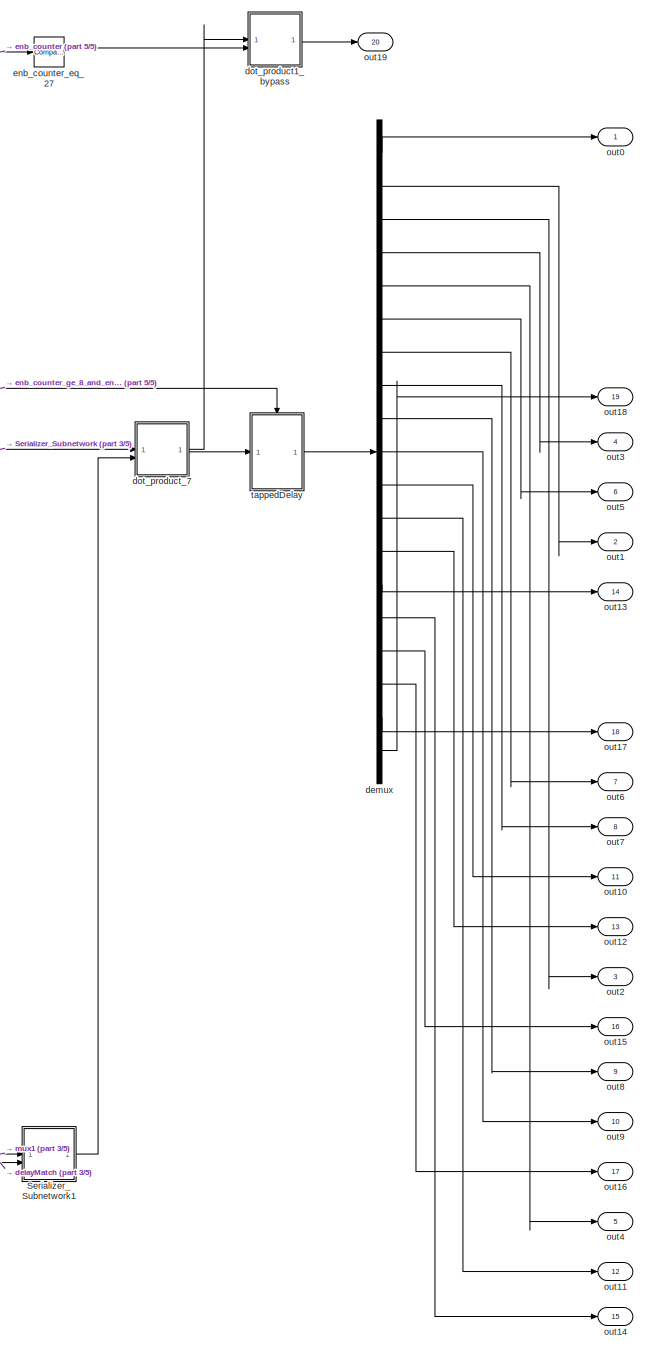
[diagram: simscape_system/HDL Subsystem/Sparse Matrix-Vector Product2/hNNewMatrixC_shared - part 1/5, top right region]
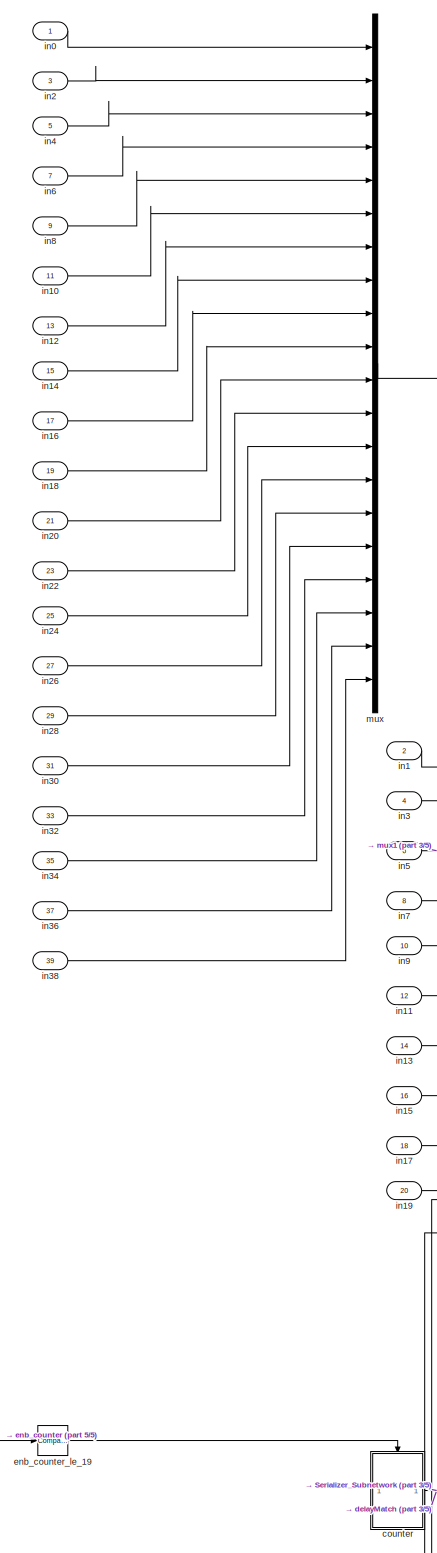
[diagram: simscape_system/HDL Subsystem/Sparse Matrix-Vector Product2/hNNewMatrixC_shared - part 2/5, middle left region]
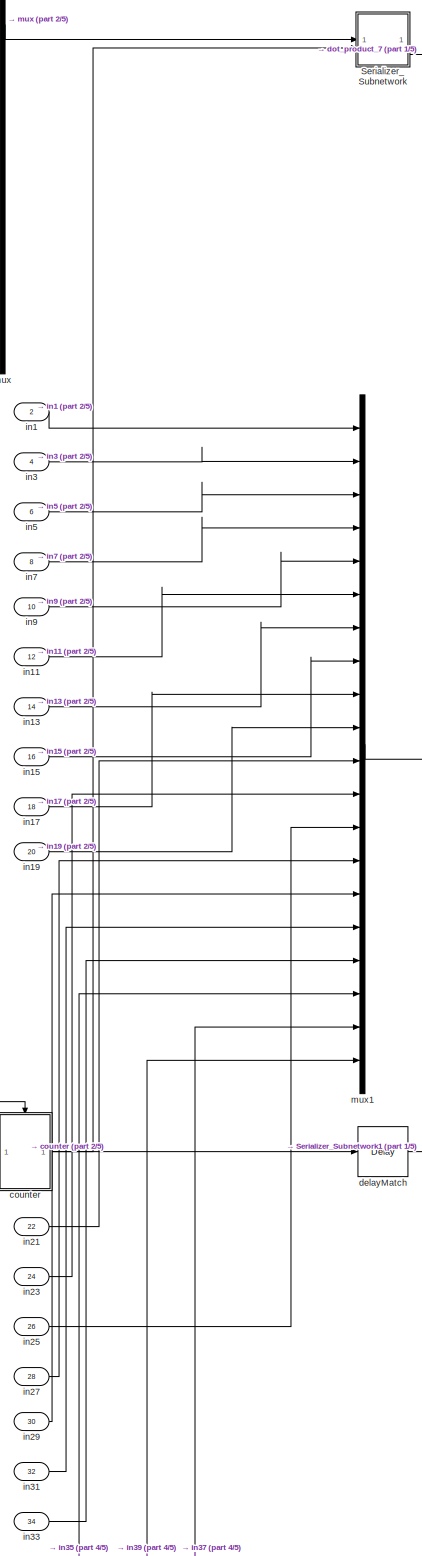
[diagram: simscape_system/HDL Subsystem/Sparse Matrix-Vector Product2/hNNewMatrixC_shared - part 3/5, central region]
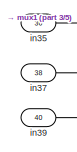
[diagram: simscape_system/HDL Subsystem/Sparse Matrix-Vector Product2/hNNewMatrixC_shared - part 4/5, bottom left region]
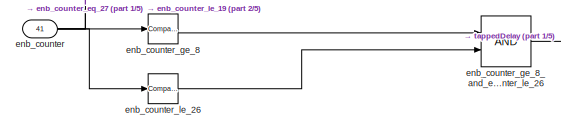
[diagram: simscape_system/HDL Subsystem/Sparse Matrix-Vector Product2/hNNewMatrixC_shared - part 5/5, bottom left region]
BLOCK [SubSystem] simscape_system/HDL Subsystem/Sparse Matrix-Vector Product2/hNNewMatrixC_shared
BLOCK [SubSystem] simscape_system/HDL Subsystem/Sparse Matrix-Vector Product2/hNNewMatrixC_shared/Serializer_Subnetwork
BLOCK [Inport] simscape_system/HDL Subsystem/Sparse Matrix-Vector Product2/hNNewMatrixC_shared/Serializer_Subnetwork/in0
  OutDataTypeStr = fixdt(1, 25, 20)
  PortDimensions = [140]
  SampleTime = 1.38600138600139e-08
BLOCK [Inport] simscape_system/HDL Subsystem/Sparse Matrix-Vector Product2/hNNewMatrixC_shared/Serializer_Subnetwork/in1
  OutDataTypeStr = fixdt(0, 5, 0)
  Port = 2
  SampleTime = 1.38600138600139e-08
BLOCK [Outport] simscape_system/HDL Subsystem/Sparse Matrix-Vector Product2/hNNewMatrixC_shared/Serializer_Subnetwork/out0
  OutDataTypeStr = fixdt(1, 25, 20)
  PortDimensions = [7]
  SampleTime = 1.38600138600139e-08
BLOCK [Demux] simscape_system/HDL Subsystem/Sparse Matrix-Vector Product2/hNNewMatrixC_shared/Serializer_Subnetwork/ratechange_splitcomp
  Outputs = 20
BLOCK [MultiPortSwitch] simscape_system/HDL Subsystem/Sparse Matrix-Vector Product2/hNNewMatrixC_shared/Serializer_Subnetwork/splitcomp_multiport
  DataPortOrder = Zero-based contiguous
  DiagnosticForDefault = None
  InputSameDT = off
  Inputs = 20
  OutDataTypeStr = fixdt(1, 25, 20)
  SampleTime = 1.38600138600139e-08
  SaturateOnIntegerOverflow = off
  zeroidx = on
BLOCK [SubSystem] simscape_system/HDL Subsystem/Sparse Matrix-Vector Product2/hNNewMatrixC_shared/Serializer_Subnetwork1
BLOCK [Inport] simscape_system/HDL Subsystem/Sparse Matrix-Vector Product2/hNNewMatrixC_shared/Serializer_Subnetwork1/in0
  OutDataTypeStr = fixdt(1, 25, 13)
  PortDimensions = [140]
  SampleTime = 1.38600138600139e-08
BLOCK [Inport] simscape_system/HDL Subsystem/Sparse Matrix-Vector Product2/hNNewMatrixC_shared/Serializer_Subnetwork1/in1
  OutDataTypeStr = fixdt(0, 5, 0)
  Port = 2
  SampleTime = 1.38600138600139e-08
BLOCK [Outport] simscape_system/HDL Subsystem/Sparse Matrix-Vector Product2/hNNewMatrixC_shared/Serializer_Subnetwork1/out0
  OutDataTypeStr = fixdt(1, 25, 13)
  PortDimensions = [7]
  SampleTime = 1.38600138600139e-08
BLOCK [Demux] simscape_system/HDL Subsystem/Sparse Matrix-Vector Product2/hNNewMatrixC_shared/Serializer_Subnetwork1/ratechange_splitcomp
  Outputs = 20
BLOCK [MultiPortSwitch] simscape_system/HDL Subsystem/Sparse Matrix-Vector Product2/hNNewMatrixC_shared/Serializer_Subnetwork1/splitcomp_multiport
  DataPortOrder = Zero-based contiguous
  DiagnosticForDefault = None
  InputSameDT = off
  Inputs = 20
  OutDataTypeStr = fixdt(1, 25, 13)
  SampleTime = 1.38600138600139e-08
  SaturateOnIntegerOverflow = off
  zeroidx = on
BLOCK [SubSystem] simscape_system/HDL Subsystem/Sparse Matrix-Vector Product2/hNNewMatrixC_shared/counter
BLOCK [Reference] simscape_system/HDL Subsystem/Sparse Matrix-Vector Product2/hNNewMatrixC_shared/counter/ctr_0_19  REF=hdlsllib/Sources/HDL Counter
  SourceBlock = hdlsllib/Sources/HDL Counter
  SourceType = HDL Counter
BLOCK [EnablePort] simscape_system/HDL Subsystem/Sparse Matrix-Vector Product2/hNNewMatrixC_shared/counter/globalSchedule
  OutDataTypeStr = boolean
BLOCK [Outport] simscape_system/HDL Subsystem/Sparse Matrix-Vector Product2/hNNewMatrixC_shared/counter/out0
  InitialOutput = 0
  OutDataTypeStr = fixdt(0, 5, 0)
  SampleTime = 1.38600138600139e-08
BLOCK [Delay] simscape_system/HDL Subsystem/Sparse Matrix-Vector Product2/hNNewMatrixC_shared/delayMatch
  DelayLength = double(6)
  InitialCondition = 0
  InputPortMap = u0
  SampleTime = 1.38600138600139e-08
BLOCK [Demux] simscape_system/HDL Subsystem/Sparse Matrix-Vector Product2/hNNewMatrixC_shared/demux
  Outputs = 19
BLOCK [SubSystem] simscape_system/HDL Subsystem/Sparse Matrix-Vector Product2/hNNewMatrixC_shared/dot_product1_bypass
BLOCK [Switch] simscape_system/HDL Subsystem/Sparse Matrix-Vector Product2/hNNewMatrixC_shared/dot_product1_bypass/dot_product1_enb
  Criteria = u2 ~= 0
  InputSameDT = off
  OutDataTypeStr = fixdt(1, 50, 33)
  SampleTime = 1.38600138600139e-08
  SaturateOnIntegerOverflow = off
  Threshold = double(0)
BLOCK [Delay] simscape_system/HDL Subsystem/Sparse Matrix-Vector Product2/hNNewMatrixC_shared/dot_product1_bypass/dot_product1_state
  DelayLength = double(1)
  InitialCondition = 0
  InputPortMap = u0
  SampleTime = 1.38600138600139e-08
BLOCK [Inport] simscape_system/HDL Subsystem/Sparse Matrix-Vector Product2/hNNewMatrixC_shared/dot_product1_bypass/in0
  OutDataTypeStr = fixdt(1, 50, 33)
  SampleTime = 1.38600138600139e-08
BLOCK [Inport] simscape_system/HDL Subsystem/Sparse Matrix-Vector Product2/hNNewMatrixC_shared/dot_product1_bypass/in1
  OutDataTypeStr = boolean
  Port = 2
  SampleTime = 1.38600138600139e-08
BLOCK [Outport] simscape_system/HDL Subsystem/Sparse Matrix-Vector Product2/hNNewMatrixC_shared/dot_product1_bypass/out0
  OutDataTypeStr = fixdt(1, 50, 33)
  SampleTime = 1.38600138600139e-08
BLOCK [SubSystem] simscape_system/HDL Subsystem/Sparse Matrix-Vector Product2/hNNewMatrixC_shared/dot_product_7
BLOCK [Delay] simscape_system/HDL Subsystem/Sparse Matrix-Vector Product2/hNNewMatrixC_shared/dot_product_7/HwModeRegister
  DelayLength = double(1)
  InitialCondition = 0
  InputPortMap = u0
  SampleTime = 1.38600138600139e-08
BLOCK [Delay] simscape_system/HDL Subsystem/Sparse Matrix-Vector Product2/hNNewMatrixC_shared/dot_product_7/HwModeRegister1
  DelayLength = double(1)
  InitialCondition = 0
  InputPortMap = u0
  SampleTime = 1.38600138600139e-08
BLOCK [Delay] simscape_system/HDL Subsystem/Sparse Matrix-Vector Product2/hNNewMatrixC_shared/dot_product_7/PipelineRegister
  DelayLength = double(1)
  InitialCondition = 0
  InputPortMap = u0
  SampleTime = 1.38600138600139e-08
BLOCK [Sum] simscape_system/HDL Subsystem/Sparse Matrix-Vector Product2/hNNewMatrixC_shared/dot_product_7/adder
  IconShape = rectangular
  OutDataTypeStr = fixdt(1, 50, 33)
  SampleTime = 1.38600138600139e-08
BLOCK [Sum] simscape_system/HDL Subsystem/Sparse Matrix-Vector Product2/hNNewMatrixC_shared/dot_product_7/adder1
  IconShape = rectangular
  OutDataTypeStr = fixdt(1, 50, 33)
  SampleTime = 1.38600138600139e-08
BLOCK [Sum] simscape_system/HDL Subsystem/Sparse Matrix-Vector Product2/hNNewMatrixC_shared/dot_product_7/adder2
  IconShape = rectangular
  OutDataTypeStr = fixdt(1, 50, 33)
  SampleTime = 1.38600138600139e-08
BLOCK [Sum] simscape_system/HDL Subsystem/Sparse Matrix-Vector Product2/hNNewMatrixC_shared/dot_product_7/adder3
  IconShape = rectangular
  OutDataTypeStr = fixdt(1, 50, 33)
  SampleTime = 1.38600138600139e-08
BLOCK [Sum] simscape_system/HDL Subsystem/Sparse Matrix-Vector Product2/hNNewMatrixC_shared/dot_product_7/adder4
  IconShape = rectangular
  OutDataTypeStr = fixdt(1, 50, 33)
  SampleTime = 1.38600138600139e-08
BLOCK [Sum] simscape_system/HDL Subsystem/Sparse Matrix-Vector Product2/hNNewMatrixC_shared/dot_product_7/adder5
  IconShape = rectangular
  OutDataTypeStr = fixdt(1, 50, 33)
  SampleTime = 1.38600138600139e-08
BLOCK [Delay] simscape_system/HDL Subsystem/Sparse Matrix-Vector Product2/hNNewMatrixC_shared/dot_product_7/delayMatch
  DelayLength = double(6)
  InitialCondition = 0
  InputPortMap = u0
  SampleTime = 1.38600138600139e-08
BLOCK [Inport] simscape_system/HDL Subsystem/Sparse Matrix-Vector Product2/hNNewMatrixC_shared/dot_product_7/in1
  OutDataTypeStr = fixdt(1, 25, 20)
  PortDimensions = [7]
  SampleTime = 1.38600138600139e-08
BLOCK [Inport] simscape_system/HDL Subsystem/Sparse Matrix-Vector Product2/hNNewMatrixC_shared/dot_product_7/in2
  OutDataTypeStr = fixdt(1, 25, 13)
  Port = 2
  PortDimensions = [7]
  SampleTime = 1.38600138600139e-08
BLOCK [Reference] simscape_system/HDL Subsystem/Sparse Matrix-Vector Product2/hNNewMatrixC_shared/dot_product_7/mul_out1_6_wire  REF=hdlmdlgenlib/Buffer
  SourceBlock = hdlmdlgenlib/Buffer
  SourceType = Buffer/Wire
BLOCK [Product] simscape_system/HDL Subsystem/Sparse Matrix-Vector Product2/hNNewMatrixC_shared/dot_product_7/multiplier
  Inputs = **
  OutDataTypeStr = fixdt(1, 50, 33)
  SampleTime = 1.38600138600139e-08
BLOCK [Outport] simscape_system/HDL Subsystem/Sparse Matrix-Vector Product2/hNNewMatrixC_shared/dot_product_7/out1
  OutDataTypeStr = fixdt(1, 50, 33)
  SampleTime = 1.38600138600139e-08
BLOCK [Reference] simscape_system/HDL Subsystem/Sparse Matrix-Vector Product2/hNNewMatrixC_shared/dot_product_7/sum_stage3_1_wire  REF=hdlmdlgenlib/Buffer
  SourceBlock = hdlmdlgenlib/Buffer
  SourceType = Buffer/Wire
BLOCK [Demux] simscape_system/HDL Subsystem/Sparse Matrix-Vector Product2/hNNewMatrixC_shared/dot_product_7/t
  Outputs = 7
BLOCK [Inport] simscape_system/HDL Subsystem/Sparse Matrix-Vector Product2/hNNewMatrixC_shared/enb_counter
  OutDataTypeStr = fixdt(0, 6, 0)
  Port = 41
  SampleTime = 1.38600138600139e-08
BLOCK [Reference] simscape_system/HDL Subsystem/Sparse Matrix-Vector Product2/hNNewMatrixC_shared/enb_counter_eq_27  REF=simulink/Logic and Bit
Operations/Compare
To Constant
  SourceBlock = simulink/Logic and Bit\nOperations/Compare\nTo Constant
  SourceType = Compare To Constant
BLOCK [Reference] simscape_system/HDL Subsystem/Sparse Matrix-Vector Product2/hNNewMatrixC_shared/enb_counter_ge_8  REF=simulink/Logic and Bit
Operations/Compare
To Constant
  SourceBlock = simulink/Logic and Bit\nOperations/Compare\nTo Constant
  SourceType = Compare To Constant
BLOCK [Logic] simscape_system/HDL Subsystem/Sparse Matrix-Vector Product2/hNNewMatrixC_shared/enb_counter_ge_8_and_enb_counter_le_26
  AllPortsSameDT = off
  OutDataTypeStr = boolean
  SampleTime = 1.38600138600139e-08
BLOCK [Reference] simscape_system/HDL Subsystem/Sparse Matrix-Vector Product2/hNNewMatrixC_shared/enb_counter_le_19  REF=simulink/Logic and Bit
Operations/Compare
To Constant
  SourceBlock = simulink/Logic and Bit\nOperations/Compare\nTo Constant
  SourceType = Compare To Constant
BLOCK [Reference] simscape_system/HDL Subsystem/Sparse Matrix-Vector Product2/hNNewMatrixC_shared/enb_counter_le_26  REF=simulink/Logic and Bit
Operations/Compare
To Constant
  SourceBlock = simulink/Logic and Bit\nOperations/Compare\nTo Constant
  SourceType = Compare To Constant
BLOCK [Inport] simscape_system/HDL Subsystem/Sparse Matrix-Vector Product2/hNNewMatrixC_shared/in0
  OutDataTypeStr = fixdt(1, 25, 20)
  PortDimensions = [7]
  SampleTime = 1.38600138600139e-08
BLOCK [Inport] simscape_system/HDL Subsystem/Sparse Matrix-Vector Product2/hNNewMatrixC_shared/in1
  OutDataTypeStr = fixdt(1, 25, 13)
  Port = 2
  PortDimensions = [7]
  SampleTime = 1.38600138600139e-08
BLOCK [Inport] simscape_system/HDL Subsystem/Sparse Matrix-Vector Product2/hNNewMatrixC_shared/in10
  OutDataTypeStr = fixdt(1, 25, 20)
  Port = 11
  PortDimensions = [7]
  SampleTime = 1.38600138600139e-08
BLOCK [Inport] simscape_system/HDL Subsystem/Sparse Matrix-Vector Product2/hNNewMatrixC_shared/in11
  OutDataTypeStr = fixdt(1, 25, 13)
  Port = 12
  PortDimensions = [7]
  SampleTime = 1.38600138600139e-08
BLOCK [Inport] simscape_system/HDL Subsystem/Sparse Matrix-Vector Product2/hNNewMatrixC_shared/in12
  OutDataTypeStr = fixdt(1, 25, 20)
  Port = 13
  PortDimensions = [7]
  SampleTime = 1.38600138600139e-08
BLOCK [Inport] simscape_system/HDL Subsystem/Sparse Matrix-Vector Product2/hNNewMatrixC_shared/in13
  OutDataTypeStr = fixdt(1, 25, 13)
  Port = 14
  PortDimensions = [7]
  SampleTime = 1.38600138600139e-08
BLOCK [Inport] simscape_system/HDL Subsystem/Sparse Matrix-Vector Product2/hNNewMatrixC_shared/in14
  OutDataTypeStr = fixdt(1, 25, 20)
  Port = 15
  PortDimensions = [7]
  SampleTime = 1.38600138600139e-08
BLOCK [Inport] simscape_system/HDL Subsystem/Sparse Matrix-Vector Product2/hNNewMatrixC_shared/in15
  OutDataTypeStr = fixdt(1, 25, 13)
  Port = 16
  PortDimensions = [7]
  SampleTime = 1.38600138600139e-08
BLOCK [Inport] simscape_system/HDL Subsystem/Sparse Matrix-Vector Product2/hNNewMatrixC_shared/in16
  OutDataTypeStr = fixdt(1, 25, 20)
  Port = 17
  PortDimensions = [7]
  SampleTime = 1.38600138600139e-08
BLOCK [Inport] simscape_system/HDL Subsystem/Sparse Matrix-Vector Product2/hNNewMatrixC_shared/in17
  OutDataTypeStr = fixdt(1, 25, 13)
  Port = 18
  PortDimensions = [7]
  SampleTime = 1.38600138600139e-08
BLOCK [Inport] simscape_system/HDL Subsystem/Sparse Matrix-Vector Product2/hNNewMatrixC_shared/in18
  OutDataTypeStr = fixdt(1, 25, 20)
  Port = 19
  PortDimensions = [7]
  SampleTime = 1.38600138600139e-08
BLOCK [Inport] simscape_system/HDL Subsystem/Sparse Matrix-Vector Product2/hNNewMatrixC_shared/in19
  OutDataTypeStr = fixdt(1, 25, 13)
  Port = 20
  PortDimensions = [7]
  SampleTime = 1.38600138600139e-08
BLOCK [Inport] simscape_system/HDL Subsystem/Sparse Matrix-Vector Product2/hNNewMatrixC_shared/in2
  OutDataTypeStr = fixdt(1, 25, 20)
  Port = 3
  PortDimensions = [7]
  SampleTime = 1.38600138600139e-08
BLOCK [Inport] simscape_system/HDL Subsystem/Sparse Matrix-Vector Product2/hNNewMatrixC_shared/in20
  OutDataTypeStr = fixdt(1, 25, 20)
  Port = 21
  PortDimensions = [7]
  SampleTime = 1.38600138600139e-08
BLOCK [Inport] simscape_system/HDL Subsystem/Sparse Matrix-Vector Product2/hNNewMatrixC_shared/in21
  OutDataTypeStr = fixdt(1, 25, 13)
  Port = 22
  PortDimensions = [7]
  SampleTime = 1.38600138600139e-08
BLOCK [Inport] simscape_system/HDL Subsystem/Sparse Matrix-Vector Product2/hNNewMatrixC_shared/in22
  OutDataTypeStr = fixdt(1, 25, 20)
  Port = 23
  PortDimensions = [7]
  SampleTime = 1.38600138600139e-08
BLOCK [Inport] simscape_system/HDL Subsystem/Sparse Matrix-Vector Product2/hNNewMatrixC_shared/in23
  OutDataTypeStr = fixdt(1, 25, 13)
  Port = 24
  PortDimensions = [7]
  SampleTime = 1.38600138600139e-08
BLOCK [Inport] simscape_system/HDL Subsystem/Sparse Matrix-Vector Product2/hNNewMatrixC_shared/in24
  OutDataTypeStr = fixdt(1, 25, 20)
  Port = 25
  PortDimensions = [7]
  SampleTime = 1.38600138600139e-08
BLOCK [Inport] simscape_system/HDL Subsystem/Sparse Matrix-Vector Product2/hNNewMatrixC_shared/in25
  OutDataTypeStr = fixdt(1, 25, 13)
  Port = 26
  PortDimensions = [7]
  SampleTime = 1.38600138600139e-08
BLOCK [Inport] simscape_system/HDL Subsystem/Sparse Matrix-Vector Product2/hNNewMatrixC_shared/in26
  OutDataTypeStr = fixdt(1, 25, 20)
  Port = 27
  PortDimensions = [7]
  SampleTime = 1.38600138600139e-08
BLOCK [Inport] simscape_system/HDL Subsystem/Sparse Matrix-Vector Product2/hNNewMatrixC_shared/in27
  OutDataTypeStr = fixdt(1, 25, 13)
  Port = 28
  PortDimensions = [7]
  SampleTime = 1.38600138600139e-08
BLOCK [Inport] simscape_system/HDL Subsystem/Sparse Matrix-Vector Product2/hNNewMatrixC_shared/in28
  OutDataTypeStr = fixdt(1, 25, 20)
  Port = 29
  PortDimensions = [7]
  SampleTime = 1.38600138600139e-08
BLOCK [Inport] simscape_system/HDL Subsystem/Sparse Matrix-Vector Product2/hNNewMatrixC_shared/in29
  OutDataTypeStr = fixdt(1, 25, 13)
  Port = 30
  PortDimensions = [7]
  SampleTime = 1.38600138600139e-08
BLOCK [Inport] simscape_system/HDL Subsystem/Sparse Matrix-Vector Product2/hNNewMatrixC_shared/in3
  OutDataTypeStr = fixdt(1, 25, 13)
  Port = 4
  PortDimensions = [7]
  SampleTime = 1.38600138600139e-08
BLOCK [Inport] simscape_system/HDL Subsystem/Sparse Matrix-Vector Product2/hNNewMatrixC_shared/in30
  OutDataTypeStr = fixdt(1, 25, 20)
  Port = 31
  PortDimensions = [7]
  SampleTime = 1.38600138600139e-08
BLOCK [Inport] simscape_system/HDL Subsystem/Sparse Matrix-Vector Product2/hNNewMatrixC_shared/in31
  OutDataTypeStr = fixdt(1, 25, 13)
  Port = 32
  PortDimensions = [7]
  SampleTime = 1.38600138600139e-08
BLOCK [Inport] simscape_system/HDL Subsystem/Sparse Matrix-Vector Product2/hNNewMatrixC_shared/in32
  OutDataTypeStr = fixdt(1, 25, 20)
  Port = 33
  PortDimensions = [7]
  SampleTime = 1.38600138600139e-08
BLOCK [Inport] simscape_system/HDL Subsystem/Sparse Matrix-Vector Product2/hNNewMatrixC_shared/in33
  OutDataTypeStr = fixdt(1, 25, 13)
  Port = 34
  PortDimensions = [7]
  SampleTime = 1.38600138600139e-08
BLOCK [Inport] simscape_system/HDL Subsystem/Sparse Matrix-Vector Product2/hNNewMatrixC_shared/in34
  OutDataTypeStr = fixdt(1, 25, 20)
  Port = 35
  PortDimensions = [7]
  SampleTime = 1.38600138600139e-08
BLOCK [Inport] simscape_system/HDL Subsystem/Sparse Matrix-Vector Product2/hNNewMatrixC_shared/in35
  OutDataTypeStr = fixdt(1, 25, 13)
  Port = 36
  PortDimensions = [7]
  SampleTime = 1.38600138600139e-08
BLOCK [Inport] simscape_system/HDL Subsystem/Sparse Matrix-Vector Product2/hNNewMatrixC_shared/in36
  OutDataTypeStr = fixdt(1, 25, 20)
  Port = 37
  PortDimensions = [7]
  SampleTime = 1.38600138600139e-08
BLOCK [Inport] simscape_system/HDL Subsystem/Sparse Matrix-Vector Product2/hNNewMatrixC_shared/in37
  OutDataTypeStr = fixdt(1, 25, 13)
  Port = 38
  PortDimensions = [7]
  SampleTime = 1.38600138600139e-08
BLOCK [Inport] simscape_system/HDL Subsystem/Sparse Matrix-Vector Product2/hNNewMatrixC_shared/in38
  OutDataTypeStr = fixdt(1, 25, 20)
  Port = 39
  PortDimensions = [7]
  SampleTime = 1.38600138600139e-08
BLOCK [Inport] simscape_system/HDL Subsystem/Sparse Matrix-Vector Product2/hNNewMatrixC_shared/in39
  OutDataTypeStr = fixdt(1, 25, 13)
  Port = 40
  PortDimensions = [7]
  SampleTime = 1.38600138600139e-08
BLOCK [Inport] simscape_system/HDL Subsystem/Sparse Matrix-Vector Product2/hNNewMatrixC_shared/in4
  OutDataTypeStr = fixdt(1, 25, 20)
  Port = 5
  PortDimensions = [7]
  SampleTime = 1.38600138600139e-08
BLOCK [Inport] simscape_system/HDL Subsystem/Sparse Matrix-Vector Product2/hNNewMatrixC_shared/in5
  OutDataTypeStr = fixdt(1, 25, 13)
  Port = 6
  PortDimensions = [7]
  SampleTime = 1.38600138600139e-08
BLOCK [Inport] simscape_system/HDL Subsystem/Sparse Matrix-Vector Product2/hNNewMatrixC_shared/in6
  OutDataTypeStr = fixdt(1, 25, 20)
  Port = 7
  PortDimensions = [7]
  SampleTime = 1.38600138600139e-08
BLOCK [Inport] simscape_system/HDL Subsystem/Sparse Matrix-Vector Product2/hNNewMatrixC_shared/in7
  OutDataTypeStr = fixdt(1, 25, 13)
  Port = 8
  PortDimensions = [7]
  SampleTime = 1.38600138600139e-08
BLOCK [Inport] simscape_system/HDL Subsystem/Sparse Matrix-Vector Product2/hNNewMatrixC_shared/in8
  OutDataTypeStr = fixdt(1, 25, 20)
  Port = 9
  PortDimensions = [7]
  SampleTime = 1.38600138600139e-08
BLOCK [Inport] simscape_system/HDL Subsystem/Sparse Matrix-Vector Product2/hNNewMatrixC_shared/in9
  OutDataTypeStr = fixdt(1, 25, 13)
  Port = 10
  PortDimensions = [7]
  SampleTime = 1.38600138600139e-08
BLOCK [Mux] simscape_system/HDL Subsystem/Sparse Matrix-Vector Product2/hNNewMatrixC_shared/mux
  DisplayOption = bar
  Inputs = 20
BLOCK [Mux] simscape_system/HDL Subsystem/Sparse Matrix-Vector Product2/hNNewMatrixC_shared/mux1
  DisplayOption = bar
  Inputs = 20
BLOCK [Outport] simscape_system/HDL Subsystem/Sparse Matrix-Vector Product2/hNNewMatrixC_shared/out0
  OutDataTypeStr = fixdt(1, 50, 33)
  SampleTime = 1.38600138600139e-08
BLOCK [Outport] simscape_system/HDL Subsystem/Sparse Matrix-Vector Product2/hNNewMatrixC_shared/out1
  OutDataTypeStr = fixdt(1, 50, 33)
  Port = 2
  SampleTime = 1.38600138600139e-08
BLOCK [Outport] simscape_system/HDL Subsystem/Sparse Matrix-Vector Product2/hNNewMatrixC_shared/out10
  OutDataTypeStr = fixdt(1, 50, 33)
  Port = 11
  SampleTime = 1.38600138600139e-08
BLOCK [Outport] simscape_system/HDL Subsystem/Sparse Matrix-Vector Product2/hNNewMatrixC_shared/out11
  OutDataTypeStr = fixdt(1, 50, 33)
  Port = 12
  SampleTime = 1.38600138600139e-08
BLOCK [Outport] simscape_system/HDL Subsystem/Sparse Matrix-Vector Product2/hNNewMatrixC_shared/out12
  OutDataTypeStr = fixdt(1, 50, 33)
  Port = 13
  SampleTime = 1.38600138600139e-08
BLOCK [Outport] simscape_system/HDL Subsystem/Sparse Matrix-Vector Product2/hNNewMatrixC_shared/out13
  OutDataTypeStr = fixdt(1, 50, 33)
  Port = 14
  SampleTime = 1.38600138600139e-08
BLOCK [Outport] simscape_system/HDL Subsystem/Sparse Matrix-Vector Product2/hNNewMatrixC_shared/out14
  OutDataTypeStr = fixdt(1, 50, 33)
  Port = 15
  SampleTime = 1.38600138600139e-08
BLOCK [Outport] simscape_system/HDL Subsystem/Sparse Matrix-Vector Product2/hNNewMatrixC_shared/out15
  OutDataTypeStr = fixdt(1, 50, 33)
  Port = 16
  SampleTime = 1.38600138600139e-08
BLOCK [Outport] simscape_system/HDL Subsystem/Sparse Matrix-Vector Product2/hNNewMatrixC_shared/out16
  OutDataTypeStr = fixdt(1, 50, 33)
  Port = 17
  SampleTime = 1.38600138600139e-08
BLOCK [Outport] simscape_system/HDL Subsystem/Sparse Matrix-Vector Product2/hNNewMatrixC_shared/out17
  OutDataTypeStr = fixdt(1, 50, 33)
  Port = 18
  SampleTime = 1.38600138600139e-08
BLOCK [Outport] simscape_system/HDL Subsystem/Sparse Matrix-Vector Product2/hNNewMatrixC_shared/out18
  OutDataTypeStr = fixdt(1, 50, 33)
  Port = 19
  SampleTime = 1.38600138600139e-08
BLOCK [Outport] simscape_system/HDL Subsystem/Sparse Matrix-Vector Product2/hNNewMatrixC_shared/out19
  OutDataTypeStr = fixdt(1, 50, 33)
  Port = 20
  SampleTime = 1.38600138600139e-08
BLOCK [Outport] simscape_system/HDL Subsystem/Sparse Matrix-Vector Product2/hNNewMatrixC_shared/out2
  OutDataTypeStr = fixdt(1, 50, 33)
  Port = 3
  SampleTime = 1.38600138600139e-08
BLOCK [Outport] simscape_system/HDL Subsystem/Sparse Matrix-Vector Product2/hNNewMatrixC_shared/out3
  OutDataTypeStr = fixdt(1, 50, 33)
  Port = 4
  SampleTime = 1.38600138600139e-08
BLOCK [Outport] simscape_system/HDL Subsystem/Sparse Matrix-Vector Product2/hNNewMatrixC_shared/out4
  OutDataTypeStr = fixdt(1, 50, 33)
  Port = 5
  SampleTime = 1.38600138600139e-08
BLOCK [Outport] simscape_system/HDL Subsystem/Sparse Matrix-Vector Product2/hNNewMatrixC_shared/out5
  OutDataTypeStr = fixdt(1, 50, 33)
  Port = 6
  SampleTime = 1.38600138600139e-08
BLOCK [Outport] simscape_system/HDL Subsystem/Sparse Matrix-Vector Product2/hNNewMatrixC_shared/out6
  OutDataTypeStr = fixdt(1, 50, 33)
  Port = 7
  SampleTime = 1.38600138600139e-08
BLOCK [Outport] simscape_system/HDL Subsystem/Sparse Matrix-Vector Product2/hNNewMatrixC_shared/out7
  OutDataTypeStr = fixdt(1, 50, 33)
  Port = 8
  SampleTime = 1.38600138600139e-08
BLOCK [Outport] simscape_system/HDL Subsystem/Sparse Matrix-Vector Product2/hNNewMatrixC_shared/out8
  OutDataTypeStr = fixdt(1, 50, 33)
  Port = 9
  SampleTime = 1.38600138600139e-08
BLOCK [Outport] simscape_system/HDL Subsystem/Sparse Matrix-Vector Product2/hNNewMatrixC_shared/out9
  OutDataTypeStr = fixdt(1, 50, 33)
  Port = 10
  SampleTime = 1.38600138600139e-08
BLOCK [SubSystem] simscape_system/HDL Subsystem/Sparse Matrix-Vector Product2/hNNewMatrixC_shared/tappedDelay
BLOCK [StateControl] simscape_system/HDL Subsystem/Sparse Matrix-Vector Product2/hNNewMatrixC_shared/tappedDelay/StateControl
  StateControl = Synchronous
BLOCK [EnablePort] simscape_system/HDL Subsystem/Sparse Matrix-Vector Product2/hNNewMatrixC_shared/tappedDelay/globalSchedule
  OutDataTypeStr = boolean
BLOCK [Inport] simscape_system/HDL Subsystem/Sparse Matrix-Vector Product2/hNNewMatrixC_shared/tappedDelay/in0
  OutDataTypeStr = fixdt(1, 50, 33)
  SampleTime = 1.38600138600139e-08
BLOCK [Outport] simscape_system/HDL Subsystem/Sparse Matrix-Vector Product2/hNNewMatrixC_shared/tappedDelay/out0
  InitialOutput = 0
  OutDataTypeStr = fixdt(1, 50, 33)
  PortDimensions = [19]
  SampleTime = 1.38600138600139e-08
BLOCK [Reference] simscape_system/HDL Subsystem/Sparse Matrix-Vector Product2/hNNewMatrixC_shared/tappedDelay/tappedDelay  REF=simulink/Discrete/Tapped Delay
  SourceBlock = simulink/Discrete/Tapped Delay
  SourceType = Tapped Delay Line
BLOCK [Outport] simscape_system/HDL Subsystem/Sparse Matrix-Vector Product2/matrixCOutSignal
  OutDataTypeStr = fixdt(1, 25, 13)
  PortDimensions = [20]
  SampleTime = 1.38600138600139e-08
BLOCK [Inport] simscape_system/HDL Subsystem/Sparse Matrix-Vector Product2/selectSignal
  OutDataTypeStr = boolean
  Port = 2
  SampleTime = 1.38600138600139e-08
BLOCK [Terminator] simscape_system/HDL Subsystem/Sparse Matrix-Vector Product2/terminator
BLOCK [SubSystem] simscape_system/HDL Subsystem/Sparse Matrix-Vector Product3
BLOCK [Selector] simscape_system/HDL Subsystem/Sparse Matrix-Vector Product3/SelectCols1
  IndexOptions = Index vector (dialog)
  Indices = double([1 2 3 4 5 6 7])
  InputPortWidth = 10
  OutputSizes = double(1)
BLOCK [Selector] simscape_system/HDL Subsystem/Sparse Matrix-Vector Product3/SelectCols10
  IndexOptions = Index vector (dialog)
  Indices = double([1 2 3 4 5 6 7])
  InputPortWidth = 10
  OutputSizes = double(1)
BLOCK [Selector] simscape_system/HDL Subsystem/Sparse Matrix-Vector Product3/SelectCols11
  IndexOptions = Index vector (dialog)
  Indices = double([1 2 3 4 5 6 7])
  InputPortWidth = 10
  OutputSizes = double(1)
BLOCK [Selector] simscape_system/HDL Subsystem/Sparse Matrix-Vector Product3/SelectCols12
  IndexOptions = Index vector (dialog)
  Indices = double([1 2 3 4 5 6 7])
  InputPortWidth = 10
  OutputSizes = double(1)
BLOCK [Selector] simscape_system/HDL Subsystem/Sparse Matrix-Vector Product3/SelectCols13
  IndexOptions = Index vector (dialog)
  Indices = double([1 2 3 4 5 6 7])
  InputPortWidth = 10
  OutputSizes = double(1)
BLOCK [Selector] simscape_system/HDL Subsystem/Sparse Matrix-Vector Product3/SelectCols14
  IndexOptions = Index vector (dialog)
  Indices = double([1 2 3 4 5 6 7])
  InputPortWidth = 10
  OutputSizes = double(1)
BLOCK [Selector] simscape_system/HDL Subsystem/Sparse Matrix-Vector Product3/SelectCols15
  IndexOptions = Index vector (dialog)
  Indices = double([1 2 3 4 5 6 7])
  InputPortWidth = 10
  OutputSizes = double(1)
BLOCK [Selector] simscape_system/HDL Subsystem/Sparse Matrix-Vector Product3/SelectCols16
  IndexOptions = Index vector (dialog)
  Indices = double([1 2 3 4 5 6 7])
  InputPortWidth = 10
  OutputSizes = double(1)
BLOCK [Selector] simscape_system/HDL Subsystem/Sparse Matrix-Vector Product3/SelectCols17
  IndexOptions = Index vector (dialog)
  Indices = double([1 2 3 4 5 6 7])
  InputPortWidth = 10
  OutputSizes = double(1)
BLOCK [Selector] simscape_system/HDL Subsystem/Sparse Matrix-Vector Product3/SelectCols18
  IndexOptions = Index vector (dialog)
  Indices = double([1 2 3 4 5 6 9])
  InputPortWidth = 10
  OutputSizes = double(1)
BLOCK [Selector] simscape_system/HDL Subsystem/Sparse Matrix-Vector Product3/SelectCols19
  IndexOptions = Index vector (dialog)
  Indices = double([1 2 3 4 5 6 10])
  InputPortWidth = 10
  OutputSizes = double(1)
BLOCK [Selector] simscape_system/HDL Subsystem/Sparse Matrix-Vector Product3/SelectCols2
  IndexOptions = Index vector (dialog)
  Indices = double([1 2 3 4 5 6 7])
  InputPortWidth = 10
  OutputSizes = double(1)
BLOCK [Selector] simscape_system/HDL Subsystem/Sparse Matrix-Vector Product3/SelectCols20
  IndexOptions = Index vector (dialog)
  Indices = double([1 2 3 4 5 6 8])
  InputPortWidth = 10
  OutputSizes = double(1)
BLOCK [Selector] simscape_system/HDL Subsystem/Sparse Matrix-Vector Product3/SelectCols3
  IndexOptions = Index vector (dialog)
  Indices = double([1 2 3 4 5 6 7])
  InputPortWidth = 10
  OutputSizes = double(1)
BLOCK [Selector] simscape_system/HDL Subsystem/Sparse Matrix-Vector Product3/SelectCols4
  IndexOptions = Index vector (dialog)
  Indices = double([1 2 3 4 5 6 7])
  InputPortWidth = 10
  OutputSizes = double(1)
BLOCK [Selector] simscape_system/HDL Subsystem/Sparse Matrix-Vector Product3/SelectCols5
  IndexOptions = Index vector (dialog)
  Indices = double([1 2 3 4 5 6 7])
  InputPortWidth = 10
  OutputSizes = double(1)
BLOCK [Selector] simscape_system/HDL Subsystem/Sparse Matrix-Vector Product3/SelectCols6
  IndexOptions = Index vector (dialog)
  Indices = double([1 2 3 4 5 6 7])
  InputPortWidth = 10
  OutputSizes = double(1)
BLOCK [Selector] simscape_system/HDL Subsystem/Sparse Matrix-Vector Product3/SelectCols7
  IndexOptions = Index vector (dialog)
  Indices = double([1 2 3 4 5 6 7])
  InputPortWidth = 10
  OutputSizes = double(1)
BLOCK [Selector] simscape_system/HDL Subsystem/Sparse Matrix-Vector Product3/SelectCols8
  IndexOptions = Index vector (dialog)
  Indices = double([1 2 3 4 5 6 7])
  InputPortWidth = 10
  OutputSizes = double(1)
BLOCK [Selector] simscape_system/HDL Subsystem/Sparse Matrix-Vector Product3/SelectCols9
  IndexOptions = Index vector (dialog)
  Indices = double([1 2 3 4 5 6 7])
  InputPortWidth = 10
  OutputSizes = double(1)
BLOCK [Selector] simscape_system/HDL Subsystem/Sparse Matrix-Vector Product3/SelectRows1
  IndexOptions = Index vector (dialog)
  Indices = double([1 21 41 61 81 101 121])
  InputPortWidth = 140
  OutputSizes = double(1)
BLOCK [Selector] simscape_system/HDL Subsystem/Sparse Matrix-Vector Product3/SelectRows10
  IndexOptions = Index vector (dialog)
  Indices = double([10 30 50 70 90 110 130])
  InputPortWidth = 140
  OutputSizes = double(1)
BLOCK [Selector] simscape_system/HDL Subsystem/Sparse Matrix-Vector Product3/SelectRows11
  IndexOptions = Index vector (dialog)
  Indices = double([11 31 51 71 91 111 131])
  InputPortWidth = 140
  OutputSizes = double(1)
BLOCK [Selector] simscape_system/HDL Subsystem/Sparse Matrix-Vector Product3/SelectRows12
  IndexOptions = Index vector (dialog)
  Indices = double([12 32 52 72 92 112 132])
  InputPortWidth = 140
  OutputSizes = double(1)
BLOCK [Selector] simscape_system/HDL Subsystem/Sparse Matrix-Vector Product3/SelectRows13
  IndexOptions = Index vector (dialog)
  Indices = double([13 33 53 73 93 113 133])
  InputPortWidth = 140
  OutputSizes = double(1)
BLOCK [Selector] simscape_system/HDL Subsystem/Sparse Matrix-Vector Product3/SelectRows14
  IndexOptions = Index vector (dialog)
  Indices = double([14 34 54 74 94 114 134])
  InputPortWidth = 140
  OutputSizes = double(1)
BLOCK [Selector] simscape_system/HDL Subsystem/Sparse Matrix-Vector Product3/SelectRows15
  IndexOptions = Index vector (dialog)
  Indices = double([15 35 55 75 95 115 135])
  InputPortWidth = 140
  OutputSizes = double(1)
BLOCK [Selector] simscape_system/HDL Subsystem/Sparse Matrix-Vector Product3/SelectRows16
  IndexOptions = Index vector (dialog)
  Indices = double([16 36 56 76 96 116 136])
  InputPortWidth = 140
  OutputSizes = double(1)
BLOCK [Selector] simscape_system/HDL Subsystem/Sparse Matrix-Vector Product3/SelectRows17
  IndexOptions = Index vector (dialog)
  Indices = double([17 37 57 77 97 117 137])
  InputPortWidth = 140
  OutputSizes = double(1)
BLOCK [Selector] simscape_system/HDL Subsystem/Sparse Matrix-Vector Product3/SelectRows18
  IndexOptions = Index vector (dialog)
  Indices = double([18 38 58 78 98 118 139])
  InputPortWidth = 140
  OutputSizes = double(1)
BLOCK [Selector] simscape_system/HDL Subsystem/Sparse Matrix-Vector Product3/SelectRows19
  IndexOptions = Index vector (dialog)
  Indices = double([19 39 59 79 99 119 140])
  InputPortWidth = 140
  OutputSizes = double(1)
BLOCK [Selector] simscape_system/HDL Subsystem/Sparse Matrix-Vector Product3/SelectRows2
  IndexOptions = Index vector (dialog)
  Indices = double([2 22 42 62 82 102 122])
  InputPortWidth = 140
  OutputSizes = double(1)
BLOCK [Selector] simscape_system/HDL Subsystem/Sparse Matrix-Vector Product3/SelectRows20
  IndexOptions = Index vector (dialog)
  Indices = double([20 40 60 80 100 120 138])
  InputPortWidth = 140
  OutputSizes = double(1)
BLOCK [Selector] simscape_system/HDL Subsystem/Sparse Matrix-Vector Product3/SelectRows3
  IndexOptions = Index vector (dialog)
  Indices = double([3 23 43 63 83 103 123])
  InputPortWidth = 140
  OutputSizes = double(1)
BLOCK [Selector] simscape_system/HDL Subsystem/Sparse Matrix-Vector Product3/SelectRows4
  IndexOptions = Index vector (dialog)
  Indices = double([4 24 44 64 84 104 124])
  InputPortWidth = 140
  OutputSizes = double(1)
BLOCK [Selector] simscape_system/HDL Subsystem/Sparse Matrix-Vector Product3/SelectRows5
  IndexOptions = Index vector (dialog)
  Indices = double([5 25 45 65 85 105 125])
  InputPortWidth = 140
  OutputSizes = double(1)
BLOCK [Selector] simscape_system/HDL Subsystem/Sparse Matrix-Vector Product3/SelectRows6
  IndexOptions = Index vector (dialog)
  Indices = double([6 26 46 66 86 106 126])
  InputPortWidth = 140
  OutputSizes = double(1)
BLOCK [Selector] simscape_system/HDL Subsystem/Sparse Matrix-Vector Product3/SelectRows7
  IndexOptions = Index vector (dialog)
  Indices = double([7 27 47 67 87 107 127])
  InputPortWidth = 140
  OutputSizes = double(1)
BLOCK [Selector] simscape_system/HDL Subsystem/Sparse Matrix-Vector Product3/SelectRows8
  IndexOptions = Index vector (dialog)
  Indices = double([8 28 48 68 88 108 128])
  InputPortWidth = 140
  OutputSizes = double(1)
BLOCK [Selector] simscape_system/HDL Subsystem/Sparse Matrix-Vector Product3/SelectRows9
  IndexOptions = Index vector (dialog)
  Indices = double([9 29 49 69 89 109 129])
  InputPortWidth = 140
  OutputSizes = double(1)
BLOCK [Concatenate] simscape_system/HDL Subsystem/Sparse Matrix-Vector Product3/concatenate
  NumInputs = 20
BLOCK [Reference] simscape_system/HDL Subsystem/Sparse Matrix-Vector Product3/configuration1_wire  REF=hdlmdlgenlib/Buffer
  SourceBlock = hdlmdlgenlib/Buffer
  SourceType = Buffer/Wire
BLOCK [Constant] simscape_system/HDL Subsystem/Sparse Matrix-Vector Product3/const
  OutDataTypeStr = fixdt(1, 25, 19)
  SampleTime = 1.38600138600139e-08
  Value = [1;-5.91278076171875e-05;-0.0030002593994140625;-5.91278076171875e-05;-0.0030002593994140625;-5.91278076171875e-05;-0.0030002593994140625;-5.91278076171875e-05;-0.0030002593994140625;-5.91278076171875e-05;-0.0030002593994140625;-5.91278076171875e-05;-0.0030002593994140625;-0.0059986114501953125;0;0;0;0;0;0;0;-0.499969482421875;25.001499176025390625;-0.499969482421875;-24.998500823974609375;3.05175...<+1534ch>
BLOCK [DataTypeConversion] simscape_system/HDL Subsystem/Sparse Matrix-Vector Product3/dtc
  OutDataTypeStr = fixdt(1, 25, 13)
  RndMeth = Nearest
  SampleTime = 1.38600138600139e-08
  SaturateOnIntegerOverflow = off
BLOCK [DataTypeConversion] simscape_system/HDL Subsystem/Sparse Matrix-Vector Product3/dtc1
  OutDataTypeStr = fixdt(1, 25, 13)
  RndMeth = Nearest
  SampleTime = 1.38600138600139e-08
  SaturateOnIntegerOverflow = off
BLOCK [DataTypeConversion] simscape_system/HDL Subsystem/Sparse Matrix-Vector Product3/dtc10
  OutDataTypeStr = fixdt(1, 25, 13)
  RndMeth = Nearest
  SampleTime = 1.38600138600139e-08
  SaturateOnIntegerOverflow = off
BLOCK [DataTypeConversion] simscape_system/HDL Subsystem/Sparse Matrix-Vector Product3/dtc11
  OutDataTypeStr = fixdt(1, 25, 13)
  RndMeth = Nearest
  SampleTime = 1.38600138600139e-08
  SaturateOnIntegerOverflow = off
BLOCK [DataTypeConversion] simscape_system/HDL Subsystem/Sparse Matrix-Vector Product3/dtc12
  OutDataTypeStr = fixdt(1, 25, 13)
  RndMeth = Nearest
  SampleTime = 1.38600138600139e-08
  SaturateOnIntegerOverflow = off
BLOCK [DataTypeConversion] simscape_system/HDL Subsystem/Sparse Matrix-Vector Product3/dtc13
  OutDataTypeStr = fixdt(1, 25, 13)
  RndMeth = Nearest
  SampleTime = 1.38600138600139e-08
  SaturateOnIntegerOverflow = off
BLOCK [DataTypeConversion] simscape_system/HDL Subsystem/Sparse Matrix-Vector Product3/dtc14
  OutDataTypeStr = fixdt(1, 25, 13)
  RndMeth = Nearest
  SampleTime = 1.38600138600139e-08
  SaturateOnIntegerOverflow = off
BLOCK [DataTypeConversion] simscape_system/HDL Subsystem/Sparse Matrix-Vector Product3/dtc15
  OutDataTypeStr = fixdt(1, 25, 13)
  RndMeth = Nearest
  SampleTime = 1.38600138600139e-08
  SaturateOnIntegerOverflow = off
BLOCK [DataTypeConversion] simscape_system/HDL Subsystem/Sparse Matrix-Vector Product3/dtc16
  OutDataTypeStr = fixdt(1, 25, 13)
  RndMeth = Nearest
  SampleTime = 1.38600138600139e-08
  SaturateOnIntegerOverflow = off
BLOCK [DataTypeConversion] simscape_system/HDL Subsystem/Sparse Matrix-Vector Product3/dtc17
  OutDataTypeStr = fixdt(1, 25, 13)
  RndMeth = Nearest
  SampleTime = 1.38600138600139e-08
  SaturateOnIntegerOverflow = off
BLOCK [DataTypeConversion] simscape_system/HDL Subsystem/Sparse Matrix-Vector Product3/dtc18
  OutDataTypeStr = fixdt(1, 25, 13)
  RndMeth = Nearest
  SampleTime = 1.38600138600139e-08
  SaturateOnIntegerOverflow = off
BLOCK [DataTypeConversion] simscape_system/HDL Subsystem/Sparse Matrix-Vector Product3/dtc19
  OutDataTypeStr = fixdt(1, 25, 13)
  RndMeth = Nearest
  SampleTime = 1.38600138600139e-08
  SaturateOnIntegerOverflow = off
BLOCK [DataTypeConversion] simscape_system/HDL Subsystem/Sparse Matrix-Vector Product3/dtc2
  OutDataTypeStr = fixdt(1, 25, 13)
  RndMeth = Nearest
  SampleTime = 1.38600138600139e-08
  SaturateOnIntegerOverflow = off
BLOCK [DataTypeConversion] simscape_system/HDL Subsystem/Sparse Matrix-Vector Product3/dtc3
  OutDataTypeStr = fixdt(1, 25, 13)
  RndMeth = Nearest
  SampleTime = 1.38600138600139e-08
  SaturateOnIntegerOverflow = off
BLOCK [DataTypeConversion] simscape_system/HDL Subsystem/Sparse Matrix-Vector Product3/dtc4
  OutDataTypeStr = fixdt(1, 25, 13)
  RndMeth = Nearest
  SampleTime = 1.38600138600139e-08
  SaturateOnIntegerOverflow = off
BLOCK [DataTypeConversion] simscape_system/HDL Subsystem/Sparse Matrix-Vector Product3/dtc5
  OutDataTypeStr = fixdt(1, 25, 13)
  RndMeth = Nearest
  SampleTime = 1.38600138600139e-08
  SaturateOnIntegerOverflow = off
BLOCK [DataTypeConversion] simscape_system/HDL Subsystem/Sparse Matrix-Vector Product3/dtc6
  OutDataTypeStr = fixdt(1, 25, 13)
  RndMeth = Nearest
  SampleTime = 1.38600138600139e-08
  SaturateOnIntegerOverflow = off
BLOCK [DataTypeConversion] simscape_system/HDL Subsystem/Sparse Matrix-Vector Product3/dtc7
  OutDataTypeStr = fixdt(1, 25, 13)
  RndMeth = Nearest
  SampleTime = 1.38600138600139e-08
  SaturateOnIntegerOverflow = off
BLOCK [DataTypeConversion] simscape_system/HDL Subsystem/Sparse Matrix-Vector Product3/dtc8
  OutDataTypeStr = fixdt(1, 25, 13)
  RndMeth = Nearest
  SampleTime = 1.38600138600139e-08
  SaturateOnIntegerOverflow = off
BLOCK [DataTypeConversion] simscape_system/HDL Subsystem/Sparse Matrix-Vector Product3/dtc9
  OutDataTypeStr = fixdt(1, 25, 13)
  RndMeth = Nearest
  SampleTime = 1.38600138600139e-08
  SaturateOnIntegerOverflow = off
BLOCK [Inport] simscape_system/HDL Subsystem/Sparse Matrix-Vector Product3/enb_counter
  OutDataTypeStr = fixdt(0, 6, 0)
  Port = 3
  SampleTime = 1.38600138600139e-08
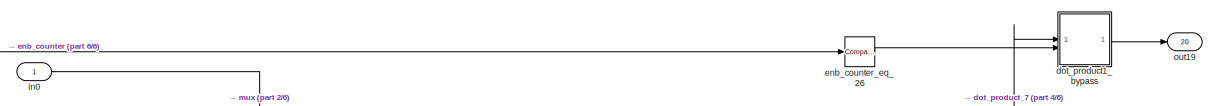
[diagram: simscape_system/HDL Subsystem/Sparse Matrix-Vector Product3/hNNewMatrixD_shared - part 1/6, full width, top band]
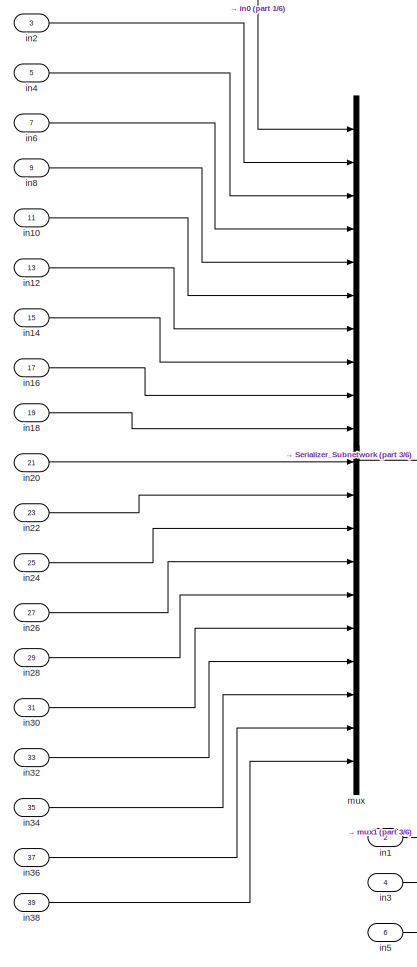
[diagram: simscape_system/HDL Subsystem/Sparse Matrix-Vector Product3/hNNewMatrixD_shared - part 2/6, top left region]
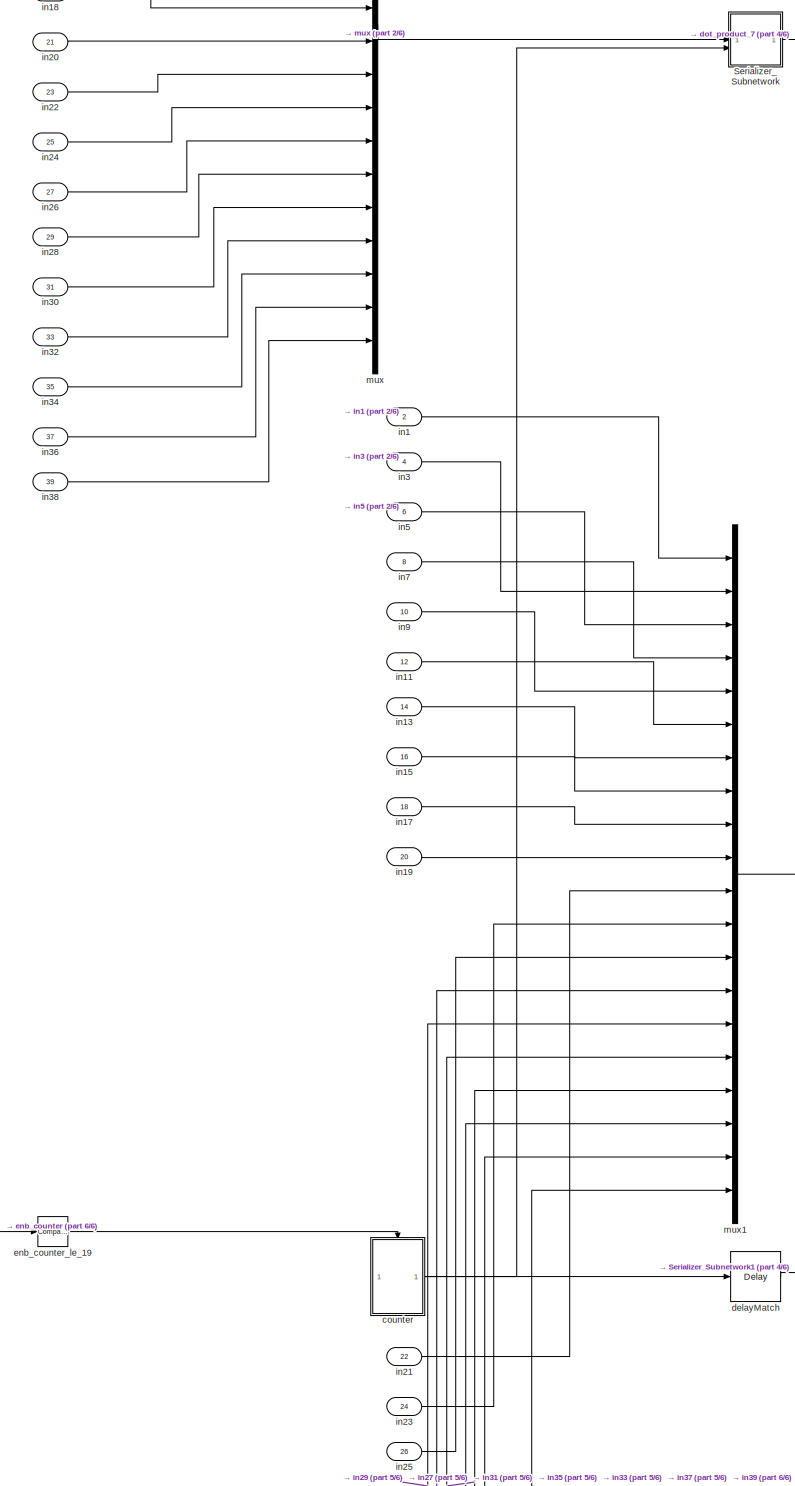
[diagram: simscape_system/HDL Subsystem/Sparse Matrix-Vector Product3/hNNewMatrixD_shared - part 3/6, middle left region]
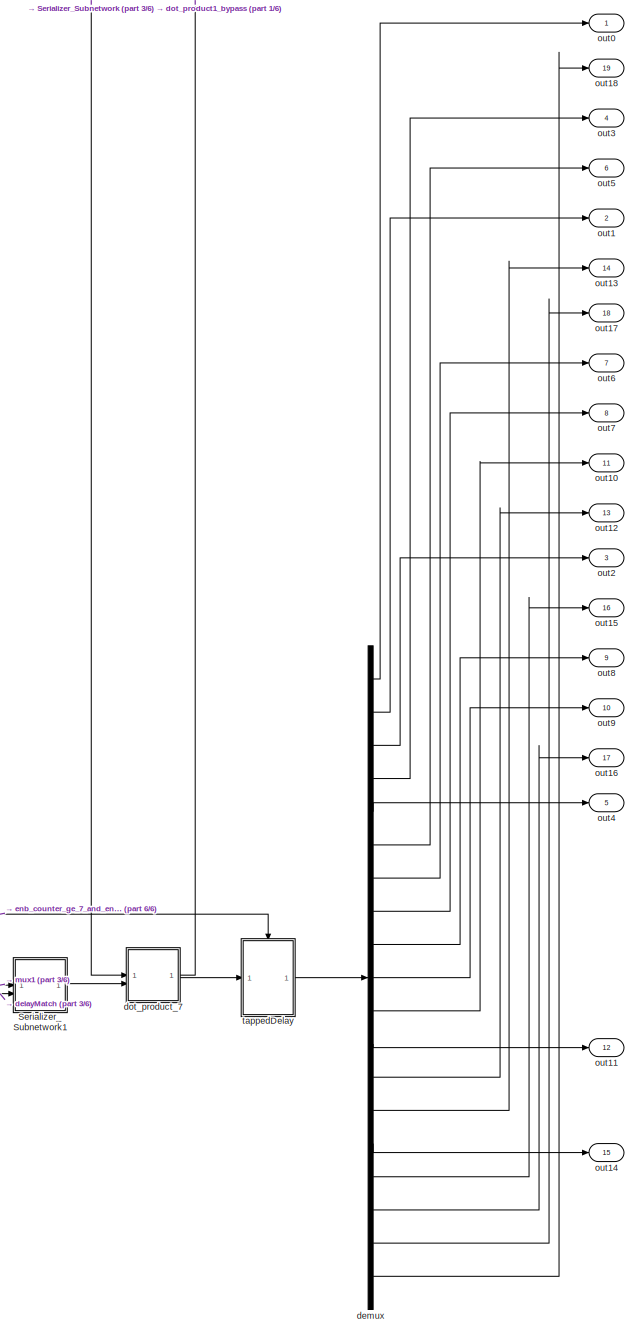
[diagram: simscape_system/HDL Subsystem/Sparse Matrix-Vector Product3/hNNewMatrixD_shared - part 4/6, middle right region]
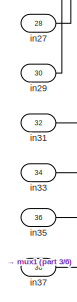
[diagram: simscape_system/HDL Subsystem/Sparse Matrix-Vector Product3/hNNewMatrixD_shared - part 5/6, bottom left region]
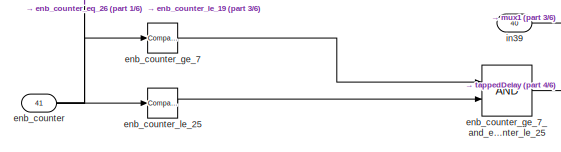
[diagram: simscape_system/HDL Subsystem/Sparse Matrix-Vector Product3/hNNewMatrixD_shared - part 6/6, bottom left region]
BLOCK [SubSystem] simscape_system/HDL Subsystem/Sparse Matrix-Vector Product3/hNNewMatrixD_shared
BLOCK [SubSystem] simscape_system/HDL Subsystem/Sparse Matrix-Vector Product3/hNNewMatrixD_shared/Serializer_Subnetwork
BLOCK [Inport] simscape_system/HDL Subsystem/Sparse Matrix-Vector Product3/hNNewMatrixD_shared/Serializer_Subnetwork/in0
  OutDataTypeStr = fixdt(1, 25, 19)
  PortDimensions = [140]
  SampleTime = 1.38600138600139e-08
BLOCK [Inport] simscape_system/HDL Subsystem/Sparse Matrix-Vector Product3/hNNewMatrixD_shared/Serializer_Subnetwork/in1
  OutDataTypeStr = fixdt(0, 5, 0)
  Port = 2
  SampleTime = 1.38600138600139e-08
BLOCK [Outport] simscape_system/HDL Subsystem/Sparse Matrix-Vector Product3/hNNewMatrixD_shared/Serializer_Subnetwork/out0
  OutDataTypeStr = fixdt(1, 25, 19)
  PortDimensions = [7]
  SampleTime = 1.38600138600139e-08
BLOCK [Demux] simscape_system/HDL Subsystem/Sparse Matrix-Vector Product3/hNNewMatrixD_shared/Serializer_Subnetwork/ratechange_splitcomp
  Outputs = 20
BLOCK [MultiPortSwitch] simscape_system/HDL Subsystem/Sparse Matrix-Vector Product3/hNNewMatrixD_shared/Serializer_Subnetwork/splitcomp_multiport
  DataPortOrder = Zero-based contiguous
  DiagnosticForDefault = None
  InputSameDT = off
  Inputs = 20
  OutDataTypeStr = fixdt(1, 25, 19)
  SampleTime = 1.38600138600139e-08
  SaturateOnIntegerOverflow = off
  zeroidx = on
BLOCK [SubSystem] simscape_system/HDL Subsystem/Sparse Matrix-Vector Product3/hNNewMatrixD_shared/Serializer_Subnetwork1
BLOCK [Inport] simscape_system/HDL Subsystem/Sparse Matrix-Vector Product3/hNNewMatrixD_shared/Serializer_Subnetwork1/in0
  OutDataTypeStr = fixdt(1, 25, 13)
  PortDimensions = [140]
  SampleTime = 1.38600138600139e-08
BLOCK [Inport] simscape_system/HDL Subsystem/Sparse Matrix-Vector Product3/hNNewMatrixD_shared/Serializer_Subnetwork1/in1
  OutDataTypeStr = fixdt(0, 5, 0)
  Port = 2
  SampleTime = 1.38600138600139e-08
BLOCK [Outport] simscape_system/HDL Subsystem/Sparse Matrix-Vector Product3/hNNewMatrixD_shared/Serializer_Subnetwork1/out0
  OutDataTypeStr = fixdt(1, 25, 13)
  PortDimensions = [7]
  SampleTime = 1.38600138600139e-08
BLOCK [Demux] simscape_system/HDL Subsystem/Sparse Matrix-Vector Product3/hNNewMatrixD_shared/Serializer_Subnetwork1/ratechange_splitcomp
  Outputs = 20
BLOCK [MultiPortSwitch] simscape_system/HDL Subsystem/Sparse Matrix-Vector Product3/hNNewMatrixD_shared/Serializer_Subnetwork1/splitcomp_multiport
  DataPortOrder = Zero-based contiguous
  DiagnosticForDefault = None
  InputSameDT = off
  Inputs = 20
  OutDataTypeStr = fixdt(1, 25, 13)
  SampleTime = 1.38600138600139e-08
  SaturateOnIntegerOverflow = off
  zeroidx = on
BLOCK [SubSystem] simscape_system/HDL Subsystem/Sparse Matrix-Vector Product3/hNNewMatrixD_shared/counter
BLOCK [Reference] simscape_system/HDL Subsystem/Sparse Matrix-Vector Product3/hNNewMatrixD_shared/counter/ctr_0_19  REF=hdlsllib/Sources/HDL Counter
  SourceBlock = hdlsllib/Sources/HDL Counter
  SourceType = HDL Counter
BLOCK [EnablePort] simscape_system/HDL Subsystem/Sparse Matrix-Vector Product3/hNNewMatrixD_shared/counter/globalSchedule
  OutDataTypeStr = boolean
BLOCK [Outport] simscape_system/HDL Subsystem/Sparse Matrix-Vector Product3/hNNewMatrixD_shared/counter/out0
  InitialOutput = 0
  OutDataTypeStr = fixdt(0, 5, 0)
  SampleTime = 1.38600138600139e-08
BLOCK [Delay] simscape_system/HDL Subsystem/Sparse Matrix-Vector Product3/hNNewMatrixD_shared/delayMatch
  DelayLength = double(5)
  InitialCondition = 0
  InputPortMap = u0
  SampleTime = 1.38600138600139e-08
BLOCK [Demux] simscape_system/HDL Subsystem/Sparse Matrix-Vector Product3/hNNewMatrixD_shared/demux
  Outputs = 19
BLOCK [SubSystem] simscape_system/HDL Subsystem/Sparse Matrix-Vector Product3/hNNewMatrixD_shared/dot_product1_bypass
BLOCK [Switch] simscape_system/HDL Subsystem/Sparse Matrix-Vector Product3/hNNewMatrixD_shared/dot_product1_bypass/dot_product1_enb
  Criteria = u2 ~= 0
  InputSameDT = off
  OutDataTypeStr = fixdt(1, 50, 32)
  SampleTime = 1.38600138600139e-08
  SaturateOnIntegerOverflow = off
  Threshold = double(0)
BLOCK [Delay] simscape_system/HDL Subsystem/Sparse Matrix-Vector Product3/hNNewMatrixD_shared/dot_product1_bypass/dot_product1_state
  DelayLength = double(1)
  InitialCondition = 0
  InputPortMap = u0
  SampleTime = 1.38600138600139e-08
BLOCK [Inport] simscape_system/HDL Subsystem/Sparse Matrix-Vector Product3/hNNewMatrixD_shared/dot_product1_bypass/in0
  OutDataTypeStr = fixdt(1, 50, 32)
  SampleTime = 1.38600138600139e-08
BLOCK [Inport] simscape_system/HDL Subsystem/Sparse Matrix-Vector Product3/hNNewMatrixD_shared/dot_product1_bypass/in1
  OutDataTypeStr = boolean
  Port = 2
  SampleTime = 1.38600138600139e-08
BLOCK [Outport] simscape_system/HDL Subsystem/Sparse Matrix-Vector Product3/hNNewMatrixD_shared/dot_product1_bypass/out0
  OutDataTypeStr = fixdt(1, 50, 32)
  SampleTime = 1.38600138600139e-08
BLOCK [SubSystem] simscape_system/HDL Subsystem/Sparse Matrix-Vector Product3/hNNewMatrixD_shared/dot_product_7
BLOCK [Delay] simscape_system/HDL Subsystem/Sparse Matrix-Vector Product3/hNNewMatrixD_shared/dot_product_7/HwModeRegister
  DelayLength = double(1)
  InitialCondition = 0
  InputPortMap = u0
  SampleTime = 1.38600138600139e-08
BLOCK [Delay] simscape_system/HDL Subsystem/Sparse Matrix-Vector Product3/hNNewMatrixD_shared/dot_product_7/HwModeRegister1
  DelayLength = double(1)
  InitialCondition = 0
  InputPortMap = u0
  SampleTime = 1.38600138600139e-08
BLOCK [Delay] simscape_system/HDL Subsystem/Sparse Matrix-Vector Product3/hNNewMatrixD_shared/dot_product_7/PipelineRegister
  DelayLength = double(1)
  InitialCondition = 0
  InputPortMap = u0
  SampleTime = 1.38600138600139e-08
BLOCK [Sum] simscape_system/HDL Subsystem/Sparse Matrix-Vector Product3/hNNewMatrixD_shared/dot_product_7/adder
  IconShape = rectangular
  OutDataTypeStr = fixdt(1, 50, 32)
  SampleTime = 1.38600138600139e-08
BLOCK [Sum] simscape_system/HDL Subsystem/Sparse Matrix-Vector Product3/hNNewMatrixD_shared/dot_product_7/adder1
  IconShape = rectangular
  OutDataTypeStr = fixdt(1, 50, 32)
  SampleTime = 1.38600138600139e-08
BLOCK [Sum] simscape_system/HDL Subsystem/Sparse Matrix-Vector Product3/hNNewMatrixD_shared/dot_product_7/adder2
  IconShape = rectangular
  OutDataTypeStr = fixdt(1, 50, 32)
  SampleTime = 1.38600138600139e-08
BLOCK [Sum] simscape_system/HDL Subsystem/Sparse Matrix-Vector Product3/hNNewMatrixD_shared/dot_product_7/adder3
  IconShape = rectangular
  OutDataTypeStr = fixdt(1, 50, 32)
  SampleTime = 1.38600138600139e-08
BLOCK [Sum] simscape_system/HDL Subsystem/Sparse Matrix-Vector Product3/hNNewMatrixD_shared/dot_product_7/adder4
  IconShape = rectangular
  OutDataTypeStr = fixdt(1, 50, 32)
  SampleTime = 1.38600138600139e-08
BLOCK [Sum] simscape_system/HDL Subsystem/Sparse Matrix-Vector Product3/hNNewMatrixD_shared/dot_product_7/adder5
  IconShape = rectangular
  OutDataTypeStr = fixdt(1, 50, 32)
  SampleTime = 1.38600138600139e-08
BLOCK [Delay] simscape_system/HDL Subsystem/Sparse Matrix-Vector Product3/hNNewMatrixD_shared/dot_product_7/delayMatch
  DelayLength = double(5)
  InitialCondition = 0
  InputPortMap = u0
  SampleTime = 1.38600138600139e-08
BLOCK [Inport] simscape_system/HDL Subsystem/Sparse Matrix-Vector Product3/hNNewMatrixD_shared/dot_product_7/in1
  OutDataTypeStr = fixdt(1, 25, 19)
  PortDimensions = [7]
  SampleTime = 1.38600138600139e-08
BLOCK [Inport] simscape_system/HDL Subsystem/Sparse Matrix-Vector Product3/hNNewMatrixD_shared/dot_product_7/in2
  OutDataTypeStr = fixdt(1, 25, 13)
  Port = 2
  PortDimensions = [7]
  SampleTime = 1.38600138600139e-08
BLOCK [Reference] simscape_system/HDL Subsystem/Sparse Matrix-Vector Product3/hNNewMatrixD_shared/dot_product_7/mul_out1_6_wire  REF=hdlmdlgenlib/Buffer
  SourceBlock = hdlmdlgenlib/Buffer
  SourceType = Buffer/Wire
BLOCK [Product] simscape_system/HDL Subsystem/Sparse Matrix-Vector Product3/hNNewMatrixD_shared/dot_product_7/multiplier
  Inputs = **
  OutDataTypeStr = fixdt(1, 50, 32)
  SampleTime = 1.38600138600139e-08
BLOCK [Outport] simscape_system/HDL Subsystem/Sparse Matrix-Vector Product3/hNNewMatrixD_shared/dot_product_7/out1
  OutDataTypeStr = fixdt(1, 50, 32)
  SampleTime = 1.38600138600139e-08
BLOCK [Reference] simscape_system/HDL Subsystem/Sparse Matrix-Vector Product3/hNNewMatrixD_shared/dot_product_7/sum_stage3_1_wire  REF=hdlmdlgenlib/Buffer
  SourceBlock = hdlmdlgenlib/Buffer
  SourceType = Buffer/Wire
BLOCK [Demux] simscape_system/HDL Subsystem/Sparse Matrix-Vector Product3/hNNewMatrixD_shared/dot_product_7/t
  Outputs = 7
BLOCK [Inport] simscape_system/HDL Subsystem/Sparse Matrix-Vector Product3/hNNewMatrixD_shared/enb_counter
  OutDataTypeStr = fixdt(0, 6, 0)
  Port = 41
  SampleTime = 1.38600138600139e-08
BLOCK [Reference] simscape_system/HDL Subsystem/Sparse Matrix-Vector Product3/hNNewMatrixD_shared/enb_counter_eq_26  REF=simulink/Logic and Bit
Operations/Compare
To Constant
  SourceBlock = simulink/Logic and Bit\nOperations/Compare\nTo Constant
  SourceType = Compare To Constant
BLOCK [Reference] simscape_system/HDL Subsystem/Sparse Matrix-Vector Product3/hNNewMatrixD_shared/enb_counter_ge_7  REF=simulink/Logic and Bit
Operations/Compare
To Constant
  SourceBlock = simulink/Logic and Bit\nOperations/Compare\nTo Constant
  SourceType = Compare To Constant
BLOCK [Logic] simscape_system/HDL Subsystem/Sparse Matrix-Vector Product3/hNNewMatrixD_shared/enb_counter_ge_7_and_enb_counter_le_25
  AllPortsSameDT = off
  OutDataTypeStr = boolean
  SampleTime = 1.38600138600139e-08
BLOCK [Reference] simscape_system/HDL Subsystem/Sparse Matrix-Vector Product3/hNNewMatrixD_shared/enb_counter_le_19  REF=simulink/Logic and Bit
Operations/Compare
To Constant
  SourceBlock = simulink/Logic and Bit\nOperations/Compare\nTo Constant
  SourceType = Compare To Constant
BLOCK [Reference] simscape_system/HDL Subsystem/Sparse Matrix-Vector Product3/hNNewMatrixD_shared/enb_counter_le_25  REF=simulink/Logic and Bit
Operations/Compare
To Constant
  SourceBlock = simulink/Logic and Bit\nOperations/Compare\nTo Constant
  SourceType = Compare To Constant
BLOCK [Inport] simscape_system/HDL Subsystem/Sparse Matrix-Vector Product3/hNNewMatrixD_shared/in0
  OutDataTypeStr = fixdt(1, 25, 19)
  PortDimensions = [7]
  SampleTime = 1.38600138600139e-08
BLOCK [Inport] simscape_system/HDL Subsystem/Sparse Matrix-Vector Product3/hNNewMatrixD_shared/in1
  OutDataTypeStr = fixdt(1, 25, 13)
  Port = 2
  PortDimensions = [7]
  SampleTime = 1.38600138600139e-08
BLOCK [Inport] simscape_system/HDL Subsystem/Sparse Matrix-Vector Product3/hNNewMatrixD_shared/in10
  OutDataTypeStr = fixdt(1, 25, 19)
  Port = 11
  PortDimensions = [7]
  SampleTime = 1.38600138600139e-08
BLOCK [Inport] simscape_system/HDL Subsystem/Sparse Matrix-Vector Product3/hNNewMatrixD_shared/in11
  OutDataTypeStr = fixdt(1, 25, 13)
  Port = 12
  PortDimensions = [7]
  SampleTime = 1.38600138600139e-08
BLOCK [Inport] simscape_system/HDL Subsystem/Sparse Matrix-Vector Product3/hNNewMatrixD_shared/in12
  OutDataTypeStr = fixdt(1, 25, 19)
  Port = 13
  PortDimensions = [7]
  SampleTime = 1.38600138600139e-08
BLOCK [Inport] simscape_system/HDL Subsystem/Sparse Matrix-Vector Product3/hNNewMatrixD_shared/in13
  OutDataTypeStr = fixdt(1, 25, 13)
  Port = 14
  PortDimensions = [7]
  SampleTime = 1.38600138600139e-08
BLOCK [Inport] simscape_system/HDL Subsystem/Sparse Matrix-Vector Product3/hNNewMatrixD_shared/in14
  OutDataTypeStr = fixdt(1, 25, 19)
  Port = 15
  PortDimensions = [7]
  SampleTime = 1.38600138600139e-08
BLOCK [Inport] simscape_system/HDL Subsystem/Sparse Matrix-Vector Product3/hNNewMatrixD_shared/in15
  OutDataTypeStr = fixdt(1, 25, 13)
  Port = 16
  PortDimensions = [7]
  SampleTime = 1.38600138600139e-08
BLOCK [Inport] simscape_system/HDL Subsystem/Sparse Matrix-Vector Product3/hNNewMatrixD_shared/in16
  OutDataTypeStr = fixdt(1, 25, 19)
  Port = 17
  PortDimensions = [7]
  SampleTime = 1.38600138600139e-08
BLOCK [Inport] simscape_system/HDL Subsystem/Sparse Matrix-Vector Product3/hNNewMatrixD_shared/in17
  OutDataTypeStr = fixdt(1, 25, 13)
  Port = 18
  PortDimensions = [7]
  SampleTime = 1.38600138600139e-08
BLOCK [Inport] simscape_system/HDL Subsystem/Sparse Matrix-Vector Product3/hNNewMatrixD_shared/in18
  OutDataTypeStr = fixdt(1, 25, 19)
  Port = 19
  PortDimensions = [7]
  SampleTime = 1.38600138600139e-08
BLOCK [Inport] simscape_system/HDL Subsystem/Sparse Matrix-Vector Product3/hNNewMatrixD_shared/in19
  OutDataTypeStr = fixdt(1, 25, 13)
  Port = 20
  PortDimensions = [7]
  SampleTime = 1.38600138600139e-08
BLOCK [Inport] simscape_system/HDL Subsystem/Sparse Matrix-Vector Product3/hNNewMatrixD_shared/in2
  OutDataTypeStr = fixdt(1, 25, 19)
  Port = 3
  PortDimensions = [7]
  SampleTime = 1.38600138600139e-08
BLOCK [Inport] simscape_system/HDL Subsystem/Sparse Matrix-Vector Product3/hNNewMatrixD_shared/in20
  OutDataTypeStr = fixdt(1, 25, 19)
  Port = 21
  PortDimensions = [7]
  SampleTime = 1.38600138600139e-08
BLOCK [Inport] simscape_system/HDL Subsystem/Sparse Matrix-Vector Product3/hNNewMatrixD_shared/in21
  OutDataTypeStr = fixdt(1, 25, 13)
  Port = 22
  PortDimensions = [7]
  SampleTime = 1.38600138600139e-08
BLOCK [Inport] simscape_system/HDL Subsystem/Sparse Matrix-Vector Product3/hNNewMatrixD_shared/in22
  OutDataTypeStr = fixdt(1, 25, 19)
  Port = 23
  PortDimensions = [7]
  SampleTime = 1.38600138600139e-08
BLOCK [Inport] simscape_system/HDL Subsystem/Sparse Matrix-Vector Product3/hNNewMatrixD_shared/in23
  OutDataTypeStr = fixdt(1, 25, 13)
  Port = 24
  PortDimensions = [7]
  SampleTime = 1.38600138600139e-08
BLOCK [Inport] simscape_system/HDL Subsystem/Sparse Matrix-Vector Product3/hNNewMatrixD_shared/in24
  OutDataTypeStr = fixdt(1, 25, 19)
  Port = 25
  PortDimensions = [7]
  SampleTime = 1.38600138600139e-08
BLOCK [Inport] simscape_system/HDL Subsystem/Sparse Matrix-Vector Product3/hNNewMatrixD_shared/in25
  OutDataTypeStr = fixdt(1, 25, 13)
  Port = 26
  PortDimensions = [7]
  SampleTime = 1.38600138600139e-08
BLOCK [Inport] simscape_system/HDL Subsystem/Sparse Matrix-Vector Product3/hNNewMatrixD_shared/in26
  OutDataTypeStr = fixdt(1, 25, 19)
  Port = 27
  PortDimensions = [7]
  SampleTime = 1.38600138600139e-08
BLOCK [Inport] simscape_system/HDL Subsystem/Sparse Matrix-Vector Product3/hNNewMatrixD_shared/in27
  OutDataTypeStr = fixdt(1, 25, 13)
  Port = 28
  PortDimensions = [7]
  SampleTime = 1.38600138600139e-08
BLOCK [Inport] simscape_system/HDL Subsystem/Sparse Matrix-Vector Product3/hNNewMatrixD_shared/in28
  OutDataTypeStr = fixdt(1, 25, 19)
  Port = 29
  PortDimensions = [7]
  SampleTime = 1.38600138600139e-08
BLOCK [Inport] simscape_system/HDL Subsystem/Sparse Matrix-Vector Product3/hNNewMatrixD_shared/in29
  OutDataTypeStr = fixdt(1, 25, 13)
  Port = 30
  PortDimensions = [7]
  SampleTime = 1.38600138600139e-08
BLOCK [Inport] simscape_system/HDL Subsystem/Sparse Matrix-Vector Product3/hNNewMatrixD_shared/in3
  OutDataTypeStr = fixdt(1, 25, 13)
  Port = 4
  PortDimensions = [7]
  SampleTime = 1.38600138600139e-08
BLOCK [Inport] simscape_system/HDL Subsystem/Sparse Matrix-Vector Product3/hNNewMatrixD_shared/in30
  OutDataTypeStr = fixdt(1, 25, 19)
  Port = 31
  PortDimensions = [7]
  SampleTime = 1.38600138600139e-08
BLOCK [Inport] simscape_system/HDL Subsystem/Sparse Matrix-Vector Product3/hNNewMatrixD_shared/in31
  OutDataTypeStr = fixdt(1, 25, 13)
  Port = 32
  PortDimensions = [7]
  SampleTime = 1.38600138600139e-08
BLOCK [Inport] simscape_system/HDL Subsystem/Sparse Matrix-Vector Product3/hNNewMatrixD_shared/in32
  OutDataTypeStr = fixdt(1, 25, 19)
  Port = 33
  PortDimensions = [7]
  SampleTime = 1.38600138600139e-08
BLOCK [Inport] simscape_system/HDL Subsystem/Sparse Matrix-Vector Product3/hNNewMatrixD_shared/in33
  OutDataTypeStr = fixdt(1, 25, 13)
  Port = 34
  PortDimensions = [7]
  SampleTime = 1.38600138600139e-08
BLOCK [Inport] simscape_system/HDL Subsystem/Sparse Matrix-Vector Product3/hNNewMatrixD_shared/in34
  OutDataTypeStr = fixdt(1, 25, 19)
  Port = 35
  PortDimensions = [7]
  SampleTime = 1.38600138600139e-08
BLOCK [Inport] simscape_system/HDL Subsystem/Sparse Matrix-Vector Product3/hNNewMatrixD_shared/in35
  OutDataTypeStr = fixdt(1, 25, 13)
  Port = 36
  PortDimensions = [7]
  SampleTime = 1.38600138600139e-08
BLOCK [Inport] simscape_system/HDL Subsystem/Sparse Matrix-Vector Product3/hNNewMatrixD_shared/in36
  OutDataTypeStr = fixdt(1, 25, 19)
  Port = 37
  PortDimensions = [7]
  SampleTime = 1.38600138600139e-08
BLOCK [Inport] simscape_system/HDL Subsystem/Sparse Matrix-Vector Product3/hNNewMatrixD_shared/in37
  OutDataTypeStr = fixdt(1, 25, 13)
  Port = 38
  PortDimensions = [7]
  SampleTime = 1.38600138600139e-08
BLOCK [Inport] simscape_system/HDL Subsystem/Sparse Matrix-Vector Product3/hNNewMatrixD_shared/in38
  OutDataTypeStr = fixdt(1, 25, 19)
  Port = 39
  PortDimensions = [7]
  SampleTime = 1.38600138600139e-08
BLOCK [Inport] simscape_system/HDL Subsystem/Sparse Matrix-Vector Product3/hNNewMatrixD_shared/in39
  OutDataTypeStr = fixdt(1, 25, 13)
  Port = 40
  PortDimensions = [7]
  SampleTime = 1.38600138600139e-08
BLOCK [Inport] simscape_system/HDL Subsystem/Sparse Matrix-Vector Product3/hNNewMatrixD_shared/in4
  OutDataTypeStr = fixdt(1, 25, 19)
  Port = 5
  PortDimensions = [7]
  SampleTime = 1.38600138600139e-08
BLOCK [Inport] simscape_system/HDL Subsystem/Sparse Matrix-Vector Product3/hNNewMatrixD_shared/in5
  OutDataTypeStr = fixdt(1, 25, 13)
  Port = 6
  PortDimensions = [7]
  SampleTime = 1.38600138600139e-08
BLOCK [Inport] simscape_system/HDL Subsystem/Sparse Matrix-Vector Product3/hNNewMatrixD_shared/in6
  OutDataTypeStr = fixdt(1, 25, 19)
  Port = 7
  PortDimensions = [7]
  SampleTime = 1.38600138600139e-08
BLOCK [Inport] simscape_system/HDL Subsystem/Sparse Matrix-Vector Product3/hNNewMatrixD_shared/in7
  OutDataTypeStr = fixdt(1, 25, 13)
  Port = 8
  PortDimensions = [7]
  SampleTime = 1.38600138600139e-08
BLOCK [Inport] simscape_system/HDL Subsystem/Sparse Matrix-Vector Product3/hNNewMatrixD_shared/in8
  OutDataTypeStr = fixdt(1, 25, 19)
  Port = 9
  PortDimensions = [7]
  SampleTime = 1.38600138600139e-08
BLOCK [Inport] simscape_system/HDL Subsystem/Sparse Matrix-Vector Product3/hNNewMatrixD_shared/in9
  OutDataTypeStr = fixdt(1, 25, 13)
  Port = 10
  PortDimensions = [7]
  SampleTime = 1.38600138600139e-08
BLOCK [Mux] simscape_system/HDL Subsystem/Sparse Matrix-Vector Product3/hNNewMatrixD_shared/mux
  DisplayOption = bar
  Inputs = 20
BLOCK [Mux] simscape_system/HDL Subsystem/Sparse Matrix-Vector Product3/hNNewMatrixD_shared/mux1
  DisplayOption = bar
  Inputs = 20
BLOCK [Outport] simscape_system/HDL Subsystem/Sparse Matrix-Vector Product3/hNNewMatrixD_shared/out0
  OutDataTypeStr = fixdt(1, 50, 32)
  SampleTime = 1.38600138600139e-08
BLOCK [Outport] simscape_system/HDL Subsystem/Sparse Matrix-Vector Product3/hNNewMatrixD_shared/out1
  OutDataTypeStr = fixdt(1, 50, 32)
  Port = 2
  SampleTime = 1.38600138600139e-08
BLOCK [Outport] simscape_system/HDL Subsystem/Sparse Matrix-Vector Product3/hNNewMatrixD_shared/out10
  OutDataTypeStr = fixdt(1, 50, 32)
  Port = 11
  SampleTime = 1.38600138600139e-08
BLOCK [Outport] simscape_system/HDL Subsystem/Sparse Matrix-Vector Product3/hNNewMatrixD_shared/out11
  OutDataTypeStr = fixdt(1, 50, 32)
  Port = 12
  SampleTime = 1.38600138600139e-08
BLOCK [Outport] simscape_system/HDL Subsystem/Sparse Matrix-Vector Product3/hNNewMatrixD_shared/out12
  OutDataTypeStr = fixdt(1, 50, 32)
  Port = 13
  SampleTime = 1.38600138600139e-08
BLOCK [Outport] simscape_system/HDL Subsystem/Sparse Matrix-Vector Product3/hNNewMatrixD_shared/out13
  OutDataTypeStr = fixdt(1, 50, 32)
  Port = 14
  SampleTime = 1.38600138600139e-08
BLOCK [Outport] simscape_system/HDL Subsystem/Sparse Matrix-Vector Product3/hNNewMatrixD_shared/out14
  OutDataTypeStr = fixdt(1, 50, 32)
  Port = 15
  SampleTime = 1.38600138600139e-08
BLOCK [Outport] simscape_system/HDL Subsystem/Sparse Matrix-Vector Product3/hNNewMatrixD_shared/out15
  OutDataTypeStr = fixdt(1, 50, 32)
  Port = 16
  SampleTime = 1.38600138600139e-08
BLOCK [Outport] simscape_system/HDL Subsystem/Sparse Matrix-Vector Product3/hNNewMatrixD_shared/out16
  OutDataTypeStr = fixdt(1, 50, 32)
  Port = 17
  SampleTime = 1.38600138600139e-08
BLOCK [Outport] simscape_system/HDL Subsystem/Sparse Matrix-Vector Product3/hNNewMatrixD_shared/out17
  OutDataTypeStr = fixdt(1, 50, 32)
  Port = 18
  SampleTime = 1.38600138600139e-08
BLOCK [Outport] simscape_system/HDL Subsystem/Sparse Matrix-Vector Product3/hNNewMatrixD_shared/out18
  OutDataTypeStr = fixdt(1, 50, 32)
  Port = 19
  SampleTime = 1.38600138600139e-08
BLOCK [Outport] simscape_system/HDL Subsystem/Sparse Matrix-Vector Product3/hNNewMatrixD_shared/out19
  OutDataTypeStr = fixdt(1, 50, 32)
  Port = 20
  SampleTime = 1.38600138600139e-08
BLOCK [Outport] simscape_system/HDL Subsystem/Sparse Matrix-Vector Product3/hNNewMatrixD_shared/out2
  OutDataTypeStr = fixdt(1, 50, 32)
  Port = 3
  SampleTime = 1.38600138600139e-08
BLOCK [Outport] simscape_system/HDL Subsystem/Sparse Matrix-Vector Product3/hNNewMatrixD_shared/out3
  OutDataTypeStr = fixdt(1, 50, 32)
  Port = 4
  SampleTime = 1.38600138600139e-08
BLOCK [Outport] simscape_system/HDL Subsystem/Sparse Matrix-Vector Product3/hNNewMatrixD_shared/out4
  OutDataTypeStr = fixdt(1, 50, 32)
  Port = 5
  SampleTime = 1.38600138600139e-08
BLOCK [Outport] simscape_system/HDL Subsystem/Sparse Matrix-Vector Product3/hNNewMatrixD_shared/out5
  OutDataTypeStr = fixdt(1, 50, 32)
  Port = 6
  SampleTime = 1.38600138600139e-08
BLOCK [Outport] simscape_system/HDL Subsystem/Sparse Matrix-Vector Product3/hNNewMatrixD_shared/out6
  OutDataTypeStr = fixdt(1, 50, 32)
  Port = 7
  SampleTime = 1.38600138600139e-08
BLOCK [Outport] simscape_system/HDL Subsystem/Sparse Matrix-Vector Product3/hNNewMatrixD_shared/out7
  OutDataTypeStr = fixdt(1, 50, 32)
  Port = 8
  SampleTime = 1.38600138600139e-08
BLOCK [Outport] simscape_system/HDL Subsystem/Sparse Matrix-Vector Product3/hNNewMatrixD_shared/out8
  OutDataTypeStr = fixdt(1, 50, 32)
  Port = 9
  SampleTime = 1.38600138600139e-08
BLOCK [Outport] simscape_system/HDL Subsystem/Sparse Matrix-Vector Product3/hNNewMatrixD_shared/out9
  OutDataTypeStr = fixdt(1, 50, 32)
  Port = 10
  SampleTime = 1.38600138600139e-08
BLOCK [SubSystem] simscape_system/HDL Subsystem/Sparse Matrix-Vector Product3/hNNewMatrixD_shared/tappedDelay
BLOCK [StateControl] simscape_system/HDL Subsystem/Sparse Matrix-Vector Product3/hNNewMatrixD_shared/tappedDelay/StateControl
  StateControl = Synchronous
BLOCK [EnablePort] simscape_system/HDL Subsystem/Sparse Matrix-Vector Product3/hNNewMatrixD_shared/tappedDelay/globalSchedule
  OutDataTypeStr = boolean
BLOCK [Inport] simscape_system/HDL Subsystem/Sparse Matrix-Vector Product3/hNNewMatrixD_shared/tappedDelay/in0
  OutDataTypeStr = fixdt(1, 50, 32)
  SampleTime = 1.38600138600139e-08
BLOCK [Outport] simscape_system/HDL Subsystem/Sparse Matrix-Vector Product3/hNNewMatrixD_shared/tappedDelay/out0
  InitialOutput = 0
  OutDataTypeStr = fixdt(1, 50, 32)
  PortDimensions = [19]
  SampleTime = 1.38600138600139e-08
BLOCK [Reference] simscape_system/HDL Subsystem/Sparse Matrix-Vector Product3/hNNewMatrixD_shared/tappedDelay/tappedDelay  REF=simulink/Discrete/Tapped Delay
  SourceBlock = simulink/Discrete/Tapped Delay
  SourceType = Tapped Delay Line
BLOCK [Inport] simscape_system/HDL Subsystem/Sparse Matrix-Vector Product3/in0
  OutDataTypeStr = fixdt(1, 25, 13)
  PortDimensions = [10]
  SampleTime = 1.38600138600139e-08
BLOCK [Outport] simscape_system/HDL Subsystem/Sparse Matrix-Vector Product3/matrixDOutSignal
  OutDataTypeStr = fixdt(1, 25, 13)
  PortDimensions = [20]
  SampleTime = 1.38600138600139e-08
BLOCK [Inport] simscape_system/HDL Subsystem/Sparse Matrix-Vector Product3/selectSignal
  OutDataTypeStr = boolean
  Port = 2
  SampleTime = 1.38600138600139e-08
BLOCK [Terminator] simscape_system/HDL Subsystem/Sparse Matrix-Vector Product3/terminator
BLOCK [RateTransition] simscape_system/HDL Subsystem/State
  InitialCondition = double(0)
  OutPortSampleTimeMultiple = 37
  OutPortSampleTimeOpt = Multiple of input port sample time
BLOCK [Constant] simscape_system/HDL Subsystem/State_Initial_Val
  OutDataTypeStr = fixdt(1, 25, 13)
  SampleTime = 1.38600138600139e-08
  Value = [0;0;0;0;0;0;580]
BLOCK [Delay] simscape_system/HDL Subsystem/State_absorbed
  DelayLength = 0
  InputPortMap = u0
BLOCK [Constant] simscape_system/HDL Subsystem/State_ctrl_const
  OutDataTypeStr = boolean
  SampleTime = 5.12820512820513e-07
BLOCK [Delay] simscape_system/HDL Subsystem/State_ctrl_delay
  DelayLength = double(1)
  InitialCondition = 0
  InputPortMap = u0
  SampleTime = 5.12820512820513e-07
BLOCK [Outport] simscape_system/HDL Subsystem/Va
  Port = 20
  SampleTime = 5.12820512820513e-07
BLOCK [Outport] simscape_system/HDL Subsystem/Vb
  Port = 18
  SampleTime = 5.12820512820513e-07
BLOCK [Outport] simscape_system/HDL Subsystem/Vc
  Port = 19
  SampleTime = 5.12820512820513e-07
BLOCK [Outport] simscape_system/HDL Subsystem/Vout
  Port = 14
  SampleTime = 5.12820512820513e-07
BLOCK [Constant] simscape_system/HDL Subsystem/Zero
  OutDataTypeStr = boolean
  SampleTime = 1.38600138600139e-08
  Value = 0
BLOCK [Constant] simscape_system/HDL Subsystem/Zero1
  OutDataTypeStr = boolean
  SampleTime = 1.38600138600139e-08
  Value = 0
BLOCK [Constant] simscape_system/HDL Subsystem/Zero2
  OutDataTypeStr = boolean
  SampleTime = 1.38600138600139e-08
  Value = 0
BLOCK [Constant] simscape_system/HDL Subsystem/Zero3
  OutDataTypeStr = boolean
  SampleTime = 1.38600138600139e-08
  Value = 0
BLOCK [Concatenate] simscape_system/HDL Subsystem/concatenate
  NumInputs = 10
BLOCK [Delay] simscape_system/HDL Subsystem/crp_out_delay
  DelayLength = double(1)
  InitialCondition = 0
  InputPortMap = u0
  SampleTime = 1.38600138600139e-08
BLOCK [Delay] simscape_system/HDL Subsystem/delayMatch
  DelayLength = double(1)
  InitialCondition = 0
  InputPortMap = u0
  SampleTime = 1.38600138600139e-08
BLOCK [Delay] simscape_system/HDL Subsystem/delayMatch1
  DelayLength = double(5)
  InitialCondition = 0
  InputPortMap = u0
  SampleTime = 1.38600138600139e-08
BLOCK [Delay] simscape_system/HDL Subsystem/delayMatch2
  DelayLength = double(5)
  InitialCondition = 0
  InputPortMap = u0
  SampleTime = 1.38600138600139e-08
BLOCK [Delay] simscape_system/HDL Subsystem/delayMatch3
  DelayLength = double(5)
  InitialCondition = 0
  InputPortMap = u0
  SampleTime = 1.38600138600139e-08
BLOCK [Delay] simscape_system/HDL Subsystem/delayMatch4
  DelayLength = double(5)
  InitialCondition = 0
  InputPortMap = u0
  SampleTime = 1.38600138600139e-08
BLOCK [Reference] simscape_system/HDL Subsystem/dtc  REF=hdlmdlgenlib/Buffer
  SourceBlock = hdlmdlgenlib/Buffer
  SourceType = Buffer/Wire
BLOCK [Inport] simscape_system/HDL Subsystem/ic_in_MOSFET
  OutDataTypeStr = fixdt(1, 18, 8)
  Port = 2
  PortDimensions = 1
  SampleTime = 1.38600138600139e-08
BLOCK [Inport] simscape_system/HDL Subsystem/ic_in_MOSFET1
  OutDataTypeStr = fixdt(1, 18, 8)
  Port = 3
  PortDimensions = 1
  SampleTime = 1.38600138600139e-08
BLOCK [Inport] simscape_system/HDL Subsystem/ic_in_MOSFET2
  OutDataTypeStr = fixdt(1, 18, 8)
  Port = 4
  PortDimensions = 1
  SampleTime = 1.38600138600139e-08
BLOCK [Inport] simscape_system/HDL Subsystem/ic_in_MOSFET3
  OutDataTypeStr = fixdt(1, 18, 8)
  Port = 5
  PortDimensions = 1
  SampleTime = 1.38600138600139e-08
BLOCK [Inport] simscape_system/HDL Subsystem/ic_in_MOSFET4
  OutDataTypeStr = fixdt(1, 18, 8)
  Port = 6
  PortDimensions = 1
  SampleTime = 1.38600138600139e-08
BLOCK [Inport] simscape_system/HDL Subsystem/ic_in_MOSFET5
  OutDataTypeStr = fixdt(1, 18, 8)
  Port = 7
  PortDimensions = 1
  SampleTime = 1.38600138600139e-08
BLOCK [RateTransition] simscape_system/HDL Subsystem/in0_repeat
  Deterministic = off
  Integrity = off
  OutPortSampleTimeMultiple = 1/37
  OutPortSampleTimeOpt = Multiple of input port sample time
BLOCK [RateTransition] simscape_system/HDL Subsystem/in10_repeat
  Deterministic = off
  Integrity = off
  OutPortSampleTimeMultiple = 1/37
  OutPortSampleTimeOpt = Multiple of input port sample time
BLOCK [RateTransition] simscape_system/HDL Subsystem/in11_repeat
  Deterministic = off
  Integrity = off
  OutPortSampleTimeMultiple = 1/37
  OutPortSampleTimeOpt = Multiple of input port sample time
BLOCK [RateTransition] simscape_system/HDL Subsystem/in1_repeat
  Deterministic = off
  Integrity = off
  OutPortSampleTimeMultiple = 1/37
  OutPortSampleTimeOpt = Multiple of input port sample time
BLOCK [RateTransition] simscape_system/HDL Subsystem/in2_repeat
  Deterministic = off
  Integrity = off
  OutPortSampleTimeMultiple = 1/37
  OutPortSampleTimeOpt = Multiple of input port sample time
BLOCK [RateTransition] simscape_system/HDL Subsystem/in9_repeat
  Deterministic = off
  Integrity = off
  OutPortSampleTimeMultiple = 1/37
  OutPortSampleTimeOpt = Multiple of input port sample time
BLOCK [Outport] simscape_system/HDL Subsystem/is_out_MOSFET
  Port = 2
  SampleTime = 1.38600138600139e-08
BLOCK [Outport] simscape_system/HDL Subsystem/is_out_MOSFET1
  Port = 4
  SampleTime = 1.38600138600139e-08
BLOCK [Outport] simscape_system/HDL Subsystem/is_out_MOSFET2
  Port = 6
  SampleTime = 1.38600138600139e-08
BLOCK [Outport] simscape_system/HDL Subsystem/is_out_MOSFET3
  Port = 8
  SampleTime = 1.38600138600139e-08
BLOCK [Outport] simscape_system/HDL Subsystem/is_out_MOSFET4
  Port = 10
  SampleTime = 1.38600138600139e-08
BLOCK [Outport] simscape_system/HDL Subsystem/is_out_MOSFET5
  Port = 12
  SampleTime = 1.38600138600139e-08
BLOCK [Inport] simscape_system/HDL Subsystem/sch_ctr_36
  OutDataTypeStr = fixdt(0, 6, 0)
  Port = 11
  SampleTime = 1.38600138600139e-08
BLOCK [SubSystem] simscape_system/HDL Subsystem/streaming_partition_streamed
BLOCK [SubSystem] simscape_system/HDL Subsystem/streaming_partition_streamed/Serializer_Subnetwork
BLOCK [Inport] simscape_system/HDL Subsystem/streaming_partition_streamed/Serializer_Subnetwork/in0
  OutDataTypeStr = fixdt(1, 25, 13)
  PortDimensions = [7]
  SampleTime = 1.38600138600139e-08
BLOCK [Inport] simscape_system/HDL Subsystem/streaming_partition_streamed/Serializer_Subnetwork/in1
  OutDataTypeStr = fixdt(0, 3, 0)
  Port = 2
  SampleTime = 1.38600138600139e-08
BLOCK [Outport] simscape_system/HDL Subsystem/streaming_partition_streamed/Serializer_Subnetwork/out0
  OutDataTypeStr = fixdt(1, 25, 13)
  SampleTime = 1.38600138600139e-08
BLOCK [Demux] simscape_system/HDL Subsystem/streaming_partition_streamed/Serializer_Subnetwork/ratechange_splitcomp
  Outputs = 7
BLOCK [MultiPortSwitch] simscape_system/HDL Subsystem/streaming_partition_streamed/Serializer_Subnetwork/splitcomp_multiport
  DataPortOrder = Zero-based contiguous
  DiagnosticForDefault = None
  InputSameDT = off
  Inputs = 7
  OutDataTypeStr = fixdt(1, 25, 13)
  SampleTime = 1.38600138600139e-08
  SaturateOnIntegerOverflow = off
  zeroidx = on
BLOCK [SubSystem] simscape_system/HDL Subsystem/streaming_partition_streamed/Serializer_Subnetwork1
BLOCK [Inport] simscape_system/HDL Subsystem/streaming_partition_streamed/Serializer_Subnetwork1/in0
  OutDataTypeStr = fixdt(1, 25, 13)
  PortDimensions = [7]
  SampleTime = 1.38600138600139e-08
BLOCK [Inport] simscape_system/HDL Subsystem/streaming_partition_streamed/Serializer_Subnetwork1/in1
  OutDataTypeStr = fixdt(0, 3, 0)
  Port = 2
  SampleTime = 1.38600138600139e-08
BLOCK [Outport] simscape_system/HDL Subsystem/streaming_partition_streamed/Serializer_Subnetwork1/out0
  OutDataTypeStr = fixdt(1, 25, 13)
  SampleTime = 1.38600138600139e-08
BLOCK [Demux] simscape_system/HDL Subsystem/streaming_partition_streamed/Serializer_Subnetwork1/ratechange_splitcomp
  Outputs = 7
BLOCK [MultiPortSwitch] simscape_system/HDL Subsystem/streaming_partition_streamed/Serializer_Subnetwork1/splitcomp_multiport
  DataPortOrder = Zero-based contiguous
  DiagnosticForDefault = None
  InputSameDT = off
  Inputs = 7
  OutDataTypeStr = fixdt(1, 25, 13)
  SampleTime = 1.38600138600139e-08
  SaturateOnIntegerOverflow = off
  zeroidx = on
BLOCK [SubSystem] simscape_system/HDL Subsystem/streaming_partition_streamed/counter
BLOCK [Reference] simscape_system/HDL Subsystem/streaming_partition_streamed/counter/ctr_0_6  REF=hdlsllib/Sources/HDL Counter
  SourceBlock = hdlsllib/Sources/HDL Counter
  SourceType = HDL Counter
BLOCK [EnablePort] simscape_system/HDL Subsystem/streaming_partition_streamed/counter/globalSchedule
  OutDataTypeStr = boolean
BLOCK [Outport] simscape_system/HDL Subsystem/streaming_partition_streamed/counter/out0
  InitialOutput = 0
  OutDataTypeStr = fixdt(0, 3, 0)
  SampleTime = 1.38600138600139e-08
BLOCK [SubSystem] simscape_system/HDL Subsystem/streaming_partition_streamed/delayInSignal_bypass
BLOCK [Switch] simscape_system/HDL Subsystem/streaming_partition_streamed/delayInSignal_bypass/delayInSignal_enb
  Criteria = u2 ~= 0
  InputSameDT = off
  OutDataTypeStr = fixdt(1, 25, 13)
  SampleTime = 1.38600138600139e-08
  SaturateOnIntegerOverflow = off
  Threshold = double(0)
BLOCK [Delay] simscape_system/HDL Subsystem/streaming_partition_streamed/delayInSignal_bypass/delayInSignal_state
  DelayLength = double(1)
  InitialCondition = 0
  InputPortMap = u0
  SampleTime = 1.38600138600139e-08
BLOCK [Inport] simscape_system/HDL Subsystem/streaming_partition_streamed/delayInSignal_bypass/in0
  OutDataTypeStr = fixdt(1, 25, 13)
  SampleTime = 1.38600138600139e-08
BLOCK [Inport] simscape_system/HDL Subsystem/streaming_partition_streamed/delayInSignal_bypass/in1
  OutDataTypeStr = boolean
  Port = 2
  SampleTime = 1.38600138600139e-08
BLOCK [Outport] simscape_system/HDL Subsystem/streaming_partition_streamed/delayInSignal_bypass/out0
  OutDataTypeStr = fixdt(1, 25, 13)
  SampleTime = 1.38600138600139e-08
BLOCK [Delay] simscape_system/HDL Subsystem/streaming_partition_streamed/delayMatch
  DelayLength = double(1)
  InitialCondition = 0
  InputPortMap = u0
  SampleTime = 1.38600138600139e-08
BLOCK [Delay] simscape_system/HDL Subsystem/streaming_partition_streamed/delayMatch1
  DelayLength = double(1)
  InitialCondition = 0
  InputPortMap = u0
  SampleTime = 1.38600138600139e-08
BLOCK [Reference] simscape_system/HDL Subsystem/streaming_partition_streamed/dtc  REF=hdlmdlgenlib/Buffer
  SourceBlock = hdlmdlgenlib/Buffer
  SourceType = Buffer/Wire
BLOCK [Inport] simscape_system/HDL Subsystem/streaming_partition_streamed/enb_counter
  OutDataTypeStr = fixdt(0, 6, 0)
  Port = 3
  SampleTime = 1.38600138600139e-08
BLOCK [Reference] simscape_system/HDL Subsystem/streaming_partition_streamed/enb_counter_eq_20  REF=simulink/Logic and Bit
Operations/Compare
To Constant
  SourceBlock = simulink/Logic and Bit\nOperations/Compare\nTo Constant
  SourceType = Compare To Constant
BLOCK [Reference] simscape_system/HDL Subsystem/streaming_partition_streamed/enb_counter_ge_13  REF=simulink/Logic and Bit
Operations/Compare
To Constant
  SourceBlock = simulink/Logic and Bit\nOperations/Compare\nTo Constant
  SourceType = Compare To Constant
BLOCK [Logic] simscape_system/HDL Subsystem/streaming_partition_streamed/enb_counter_ge_13_and_enb_counter_le_19
  AllPortsSameDT = off
  OutDataTypeStr = boolean
  SampleTime = 1.38600138600139e-08
BLOCK [Reference] simscape_system/HDL Subsystem/streaming_partition_streamed/enb_counter_ge_14  REF=simulink/Logic and Bit
Operations/Compare
To Constant
  SourceBlock = simulink/Logic and Bit\nOperations/Compare\nTo Constant
  SourceType = Compare To Constant
BLOCK [Logic] simscape_system/HDL Subsystem/streaming_partition_streamed/enb_counter_ge_14_and_enb_counter_le_19
  AllPortsSameDT = off
  OutDataTypeStr = boolean
  SampleTime = 1.38600138600139e-08
BLOCK [Reference] simscape_system/HDL Subsystem/streaming_partition_streamed/enb_counter_le_19  REF=simulink/Logic and Bit
Operations/Compare
To Constant
  SourceBlock = simulink/Logic and Bit\nOperations/Compare\nTo Constant
  SourceType = Compare To Constant
BLOCK [Reference] simscape_system/HDL Subsystem/streaming_partition_streamed/enb_counter_le_191  REF=simulink/Logic and Bit
Operations/Compare
To Constant
  SourceBlock = simulink/Logic and Bit\nOperations/Compare\nTo Constant
  SourceType = Compare To Constant
BLOCK [Inport] simscape_system/HDL Subsystem/streaming_partition_streamed/in0
  OutDataTypeStr = fixdt(1, 25, 13)
  PortDimensions = [7]
  SampleTime = 1.38600138600139e-08
BLOCK [Inport] simscape_system/HDL Subsystem/streaming_partition_streamed/in1
  OutDataTypeStr = fixdt(1, 25, 13)
  Port = 2
  PortDimensions = [7]
  SampleTime = 1.38600138600139e-08
BLOCK [Outport] simscape_system/HDL Subsystem/streaming_partition_streamed/out0
  OutDataTypeStr = fixdt(1, 25, 13)
  PortDimensions = [7]
  SampleTime = 1.38600138600139e-08
BLOCK [Sum] simscape_system/HDL Subsystem/streaming_partition_streamed/sumStateEqnComp
  IconShape = rectangular
  OutDataTypeStr = fixdt(1, 25, 13)
  SampleTime = 1.38600138600139e-08
BLOCK [Mux] simscape_system/HDL Subsystem/streaming_partition_streamed/t
  DisplayOption = bar
  Inputs = 2
BLOCK [SubSystem] simscape_system/HDL Subsystem/streaming_partition_streamed/tappedDelay
BLOCK [StateControl] simscape_system/HDL Subsystem/streaming_partition_streamed/tappedDelay/StateControl
  StateControl = Synchronous
BLOCK [EnablePort] simscape_system/HDL Subsystem/streaming_partition_streamed/tappedDelay/globalSchedule
  OutDataTypeStr = boolean
BLOCK [Inport] simscape_system/HDL Subsystem/streaming_partition_streamed/tappedDelay/in0
  OutDataTypeStr = fixdt(1, 25, 13)
  SampleTime = 1.38600138600139e-08
BLOCK [Outport] simscape_system/HDL Subsystem/streaming_partition_streamed/tappedDelay/out0
  InitialOutput = 0
  OutDataTypeStr = fixdt(1, 25, 13)
  PortDimensions = [6]
  SampleTime = 1.38600138600139e-08
BLOCK [Reference] simscape_system/HDL Subsystem/streaming_partition_streamed/tappedDelay/tapped_delay  REF=simulink/Discrete/Tapped Delay
  SourceBlock = simulink/Discrete/Tapped Delay
  SourceType = Tapped Delay Line
BLOCK [SubSystem] simscape_system/HDL Subsystem/streaming_partition_streamed1
BLOCK [SubSystem] simscape_system/HDL Subsystem/streaming_partition_streamed1/Serializer_Subnetwork
BLOCK [Inport] simscape_system/HDL Subsystem/streaming_partition_streamed1/Serializer_Subnetwork/in0
  OutDataTypeStr = fixdt(1, 25, 13)
  PortDimensions = [7]
  SampleTime = 1.38600138600139e-08
BLOCK [Inport] simscape_system/HDL Subsystem/streaming_partition_streamed1/Serializer_Subnetwork/in1
  OutDataTypeStr = fixdt(0, 3, 0)
  Port = 2
  SampleTime = 1.38600138600139e-08
BLOCK [Outport] simscape_system/HDL Subsystem/streaming_partition_streamed1/Serializer_Subnetwork/out0
  OutDataTypeStr = fixdt(1, 25, 13)
  SampleTime = 1.38600138600139e-08
BLOCK [Demux] simscape_system/HDL Subsystem/streaming_partition_streamed1/Serializer_Subnetwork/ratechange_splitcomp
  Outputs = 7
BLOCK [MultiPortSwitch] simscape_system/HDL Subsystem/streaming_partition_streamed1/Serializer_Subnetwork/splitcomp_multiport
  DataPortOrder = Zero-based contiguous
  DiagnosticForDefault = None
  InputSameDT = off
  Inputs = 7
  OutDataTypeStr = fixdt(1, 25, 13)
  SampleTime = 1.38600138600139e-08
  SaturateOnIntegerOverflow = off
  zeroidx = on
BLOCK [SubSystem] simscape_system/HDL Subsystem/streaming_partition_streamed1/Serializer_Subnetwork1
BLOCK [Inport] simscape_system/HDL Subsystem/streaming_partition_streamed1/Serializer_Subnetwork1/in0
  OutDataTypeStr = fixdt(1, 25, 13)
  PortDimensions = [7]
  SampleTime = 1.38600138600139e-08
BLOCK [Inport] simscape_system/HDL Subsystem/streaming_partition_streamed1/Serializer_Subnetwork1/in1
  OutDataTypeStr = fixdt(0, 3, 0)
  Port = 2
  SampleTime = 1.38600138600139e-08
BLOCK [Outport] simscape_system/HDL Subsystem/streaming_partition_streamed1/Serializer_Subnetwork1/out0
  OutDataTypeStr = fixdt(1, 25, 13)
  SampleTime = 1.38600138600139e-08
BLOCK [Demux] simscape_system/HDL Subsystem/streaming_partition_streamed1/Serializer_Subnetwork1/ratechange_splitcomp
  Outputs = 7
BLOCK [MultiPortSwitch] simscape_system/HDL Subsystem/streaming_partition_streamed1/Serializer_Subnetwork1/splitcomp_multiport
  DataPortOrder = Zero-based contiguous
  DiagnosticForDefault = None
  InputSameDT = off
  Inputs = 7
  OutDataTypeStr = fixdt(1, 25, 13)
  SampleTime = 1.38600138600139e-08
  SaturateOnIntegerOverflow = off
  zeroidx = on
BLOCK [Switch] simscape_system/HDL Subsystem/streaming_partition_streamed1/State_switch
  Criteria = u2 ~= 0
  InputSameDT = off
  OutDataTypeStr = fixdt(1, 25, 13)
  SampleTime = 1.38600138600139e-08
  SaturateOnIntegerOverflow = off
  Threshold = double(0)
BLOCK [SubSystem] simscape_system/HDL Subsystem/streaming_partition_streamed1/counter
BLOCK [Reference] simscape_system/HDL Subsystem/streaming_partition_streamed1/counter/ctr_0_6  REF=hdlsllib/Sources/HDL Counter
  SourceBlock = hdlsllib/Sources/HDL Counter
  SourceType = HDL Counter
BLOCK [EnablePort] simscape_system/HDL Subsystem/streaming_partition_streamed1/counter/globalSchedule
  OutDataTypeStr = boolean
BLOCK [Outport] simscape_system/HDL Subsystem/streaming_partition_streamed1/counter/out0
  InitialOutput = 0
  OutDataTypeStr = fixdt(0, 3, 0)
  SampleTime = 1.38600138600139e-08
BLOCK [SubSystem] simscape_system/HDL Subsystem/streaming_partition_streamed1/delayOutSignal_bypass
BLOCK [Switch] simscape_system/HDL Subsystem/streaming_partition_streamed1/delayOutSignal_bypass/delayOutSignal_enb
  Criteria = u2 ~= 0
  InputSameDT = off
  OutDataTypeStr = fixdt(1, 25, 13)
  SampleTime = 1.38600138600139e-08
  SaturateOnIntegerOverflow = off
  Threshold = double(0)
BLOCK [Delay] simscape_system/HDL Subsystem/streaming_partition_streamed1/delayOutSignal_bypass/delayOutSignal_state
  DelayLength = double(1)
  InitialCondition = 0
  InputPortMap = u0
  SampleTime = 1.38600138600139e-08
BLOCK [Inport] simscape_system/HDL Subsystem/streaming_partition_streamed1/delayOutSignal_bypass/in0
  OutDataTypeStr = fixdt(1, 25, 13)
  SampleTime = 1.38600138600139e-08
BLOCK [Inport] simscape_system/HDL Subsystem/streaming_partition_streamed1/delayOutSignal_bypass/in1
  OutDataTypeStr = boolean
  Port = 2
  SampleTime = 1.38600138600139e-08
BLOCK [Outport] simscape_system/HDL Subsystem/streaming_partition_streamed1/delayOutSignal_bypass/out0
  OutDataTypeStr = fixdt(1, 25, 13)
  SampleTime = 1.38600138600139e-08
BLOCK [Inport] simscape_system/HDL Subsystem/streaming_partition_streamed1/enb_counter
  OutDataTypeStr = fixdt(0, 6, 0)
  Port = 4
  SampleTime = 1.38600138600139e-08
BLOCK [Reference] simscape_system/HDL Subsystem/streaming_partition_streamed1/enb_counter_eq_6  REF=simulink/Logic and Bit
Operations/Compare
To Constant
  SourceBlock = simulink/Logic and Bit\nOperations/Compare\nTo Constant
  SourceType = Compare To Constant
BLOCK [Reference] simscape_system/HDL Subsystem/streaming_partition_streamed1/enb_counter_le_5  REF=simulink/Logic and Bit
Operations/Compare
To Constant
  SourceBlock = simulink/Logic and Bit\nOperations/Compare\nTo Constant
  SourceType = Compare To Constant
BLOCK [Reference] simscape_system/HDL Subsystem/streaming_partition_streamed1/enb_counter_le_6  REF=simulink/Logic and Bit
Operations/Compare
To Constant
  SourceBlock = simulink/Logic and Bit\nOperations/Compare\nTo Constant
  SourceType = Compare To Constant
BLOCK [Inport] simscape_system/HDL Subsystem/streaming_partition_streamed1/in0
  OutDataTypeStr = fixdt(1, 25, 13)
  PortDimensions = [7]
  SampleTime = 1.38600138600139e-08
BLOCK [Inport] simscape_system/HDL Subsystem/streaming_partition_streamed1/in1
  OutDataTypeStr = boolean
  Port = 2
  SampleTime = 1.38600138600139e-08
BLOCK [Inport] simscape_system/HDL Subsystem/streaming_partition_streamed1/in2
  OutDataTypeStr = fixdt(1, 25, 13)
  Port = 3
  PortDimensions = [7]
  SampleTime = 1.38600138600139e-08
BLOCK [Outport] simscape_system/HDL Subsystem/streaming_partition_streamed1/out0
  OutDataTypeStr = fixdt(1, 25, 13)
  PortDimensions = [7]
  SampleTime = 1.38600138600139e-08
BLOCK [Mux] simscape_system/HDL Subsystem/streaming_partition_streamed1/t
  DisplayOption = bar
  Inputs = 2
BLOCK [SubSystem] simscape_system/HDL Subsystem/streaming_partition_streamed1/tappedDelay
BLOCK [StateControl] simscape_system/HDL Subsystem/streaming_partition_streamed1/tappedDelay/StateControl
  StateControl = Synchronous
BLOCK [EnablePort] simscape_system/HDL Subsystem/streaming_partition_streamed1/tappedDelay/globalSchedule
  OutDataTypeStr = boolean
BLOCK [Inport] simscape_system/HDL Subsystem/streaming_partition_streamed1/tappedDelay/in0
  OutDataTypeStr = fixdt(1, 25, 13)
  SampleTime = 1.38600138600139e-08
BLOCK [Outport] simscape_system/HDL Subsystem/streaming_partition_streamed1/tappedDelay/out0
  InitialOutput = 0
  OutDataTypeStr = fixdt(1, 25, 13)
  PortDimensions = [6]
  SampleTime = 1.38600138600139e-08
BLOCK [Reference] simscape_system/HDL Subsystem/streaming_partition_streamed1/tappedDelay/tapped_delay  REF=simulink/Discrete/Tapped Delay
  SourceBlock = simulink/Discrete/Tapped Delay
  SourceType = Tapped Delay Line
BLOCK [Sum] simscape_system/HDL Subsystem/sumOuputEqnComp
  IconShape = rectangular
  OutDataTypeStr = fixdt(1, 25, 13)
  SampleTime = 1.38600138600139e-08
BLOCK [RateTransition] simscape_system/HDL Subsystem/t
  InitialCondition = double(0)
  OutPortSampleTimeMultiple = 37
  OutPortSampleTimeOpt = Multiple of input port sample time
BLOCK [RateTransition] simscape_system/HDL Subsystem/t1
  InitialCondition = double(0)
  OutPortSampleTimeMultiple = 37
  OutPortSampleTimeOpt = Multiple of input port sample time
BLOCK [RateTransition] simscape_system/HDL Subsystem/t2
  InitialCondition = double(0)
  OutPortSampleTimeMultiple = 37
  OutPortSampleTimeOpt = Multiple of input port sample time
BLOCK [RateTransition] simscape_system/HDL Subsystem/t3
  InitialCondition = double(0)
  OutPortSampleTimeMultiple = 37
  OutPortSampleTimeOpt = Multiple of input port sample time
BLOCK [RateTransition] simscape_system/HDL Subsystem/t4
  InitialCondition = double(0)
  OutPortSampleTimeMultiple = 37
  OutPortSampleTimeOpt = Multiple of input port sample time
BLOCK [RateTransition] simscape_system/HDL Subsystem/t5
  InitialCondition = double(0)
  OutPortSampleTimeMultiple = 37
  OutPortSampleTimeOpt = Multiple of input port sample time
BLOCK [RateTransition] simscape_system/HDL Subsystem/t6
  InitialCondition = double(0)
  OutPortSampleTimeMultiple = 37
  OutPortSampleTimeOpt = Multiple of input port sample time
BLOCK [RateTransition] simscape_system/HDL Subsystem/t7
  InitialCondition = double(0)
  OutPortSampleTimeMultiple = 37
  OutPortSampleTimeOpt = Multiple of input port sample time
BLOCK [Demux] simscape_system/HDL Subsystem/t8
  Outputs = 20
BLOCK [Inport] simscape_system/HDL Subsystem/va
  OutDataTypeStr = fixdt(1, 18, 8)
  Port = 8
  PortDimensions = 1
  SampleTime = 5.12820512820513e-07
BLOCK [Inport] simscape_system/HDL Subsystem/vb
  OutDataTypeStr = fixdt(1, 18, 8)
  Port = 9
  PortDimensions = 1
  SampleTime = 5.12820512820513e-07
BLOCK [Inport] simscape_system/HDL Subsystem/vc
  OutDataTypeStr = fixdt(1, 18, 8)
  Port = 10
  PortDimensions = 1
  SampleTime = 5.12820512820513e-07
BLOCK [Outport] simscape_system/HDL Subsystem/vs_out_MOSFET
  Port = 3
  SampleTime = 1.38600138600139e-08
BLOCK [Outport] simscape_system/HDL Subsystem/vs_out_MOSFET1
  Port = 5
  SampleTime = 1.38600138600139e-08
BLOCK [Outport] simscape_system/HDL Subsystem/vs_out_MOSFET2
  Port = 7
  SampleTime = 1.38600138600139e-08
BLOCK [Outport] simscape_system/HDL Subsystem/vs_out_MOSFET3
  Port = 9
  SampleTime = 1.38600138600139e-08
BLOCK [Outport] simscape_system/HDL Subsystem/vs_out_MOSFET4
  Port = 11
  SampleTime = 1.38600138600139e-08
BLOCK [Outport] simscape_system/HDL Subsystem/vs_out_MOSFET5
  Port = 13
  SampleTime = 1.38600138600139e-08
BLOCK [Inport] simscape_system/I_load_in_
  OutDataTypeStr = fixdt(1, 18, 8)
  Port = 7
  PortDimensions = 1
  SampleTime = 5.12820512820513e-07
BLOCK [Outport] simscape_system/O_I_load
  Port = 8
  SampleTime = 5.12820512820513e-07
BLOCK [Outport] simscape_system/O_Ia
  SampleTime = 5.12820512820513e-07
BLOCK [Outport] simscape_system/O_Ib
  Port = 2
  SampleTime = 5.12820512820513e-07
BLOCK [Outport] simscape_system/O_Ic
  Port = 3
  SampleTime = 5.12820512820513e-07
BLOCK [Outport] simscape_system/O_Va
  Port = 6
  SampleTime = 5.12820512820513e-07
BLOCK [Outport] simscape_system/O_Vb
  Port = 5
  SampleTime = 5.12820512820513e-07
BLOCK [Outport] simscape_system/O_Vc
  Port = 4
  SampleTime = 5.12820512820513e-07
BLOCK [Outport] simscape_system/O_Vout
  Port = 7
  SampleTime = 5.12820512820513e-07
BLOCK [Reference] simscape_system/Rate Transition1  REF=hdlmdlgenlib/Buffer
  SourceBlock = hdlmdlgenlib/Buffer
  SourceType = Buffer/Wire
BLOCK [Reference] simscape_system/Rate Transition10  REF=hdlmdlgenlib/Buffer
  SourceBlock = hdlmdlgenlib/Buffer
  SourceType = Buffer/Wire
BLOCK [Reference] simscape_system/Rate Transition2  REF=hdlmdlgenlib/Buffer
  SourceBlock = hdlmdlgenlib/Buffer
  SourceType = Buffer/Wire
BLOCK [Reference] simscape_system/Rate Transition3  REF=hdlmdlgenlib/Buffer
  SourceBlock = hdlmdlgenlib/Buffer
  SourceType = Buffer/Wire
BLOCK [Reference] simscape_system/Rate Transition4  REF=hdlmdlgenlib/Buffer
  SourceBlock = hdlmdlgenlib/Buffer
  SourceType = Buffer/Wire
BLOCK [Reference] simscape_system/Rate Transition5  REF=hdlmdlgenlib/Buffer
  SourceBlock = hdlmdlgenlib/Buffer
  SourceType = Buffer/Wire
BLOCK [Reference] simscape_system/Rate Transition6  REF=hdlmdlgenlib/Buffer
  SourceBlock = hdlmdlgenlib/Buffer
  SourceType = Buffer/Wire
BLOCK [Reference] simscape_system/Rate Transition7  REF=hdlmdlgenlib/Buffer
  SourceBlock = hdlmdlgenlib/Buffer
  SourceType = Buffer/Wire
BLOCK [Reference] simscape_system/Rate Transition8  REF=hdlmdlgenlib/Buffer
  SourceBlock = hdlmdlgenlib/Buffer
  SourceType = Buffer/Wire
BLOCK [Reference] simscape_system/Rate Transition9  REF=hdlmdlgenlib/Buffer
  SourceBlock = hdlmdlgenlib/Buffer
  SourceType = Buffer/Wire
BLOCK [Inport] simscape_system/UP_L1
  OutDataTypeStr = boolean
  PortDimensions = 1
  SampleTime = 5.12820512820513e-07
BLOCK [Inport] simscape_system/UP_L2
  OutDataTypeStr = boolean
  Port = 3
  PortDimensions = 1
  SampleTime = 5.12820512820513e-07
BLOCK [Inport] simscape_system/UP_L3
  OutDataTypeStr = boolean
  Port = 5
  PortDimensions = 1
  SampleTime = 5.12820512820513e-07
BLOCK [Concatenate] simscape_system/concatenate
  NumInputs = 6
BLOCK [Concatenate] simscape_system/concatenate1
  NumInputs = 6
BLOCK [Concatenate] simscape_system/concatenate2
  NumInputs = 6
BLOCK [Reference] simscape_system/ctr_0_36  REF=hdlsllib/Sources/HDL Counter
  SourceBlock = hdlsllib/Sources/HDL Counter
  SourceType = HDL Counter
BLOCK [Demux] simscape_system/t
  Outputs = 6
BLOCK [Inport] simscape_system/va_i
  LockScale = on
  OutDataTypeStr = fixdt(1, 18, 8)
  Port = 8
  PortDimensions = 1
  SampleTime = 5.12820512820513e-07
BLOCK [Inport] simscape_system/vb_i
  LockScale = on
  OutDataTypeStr = fixdt(1, 18, 8)
  Port = 9
  PortDimensions = 1
  SampleTime = 5.12820512820513e-07
BLOCK [Inport] simscape_system/vc_i
  LockScale = on
  OutDataTypeStr = fixdt(1, 18, 8)
  Port = 10
  PortDimensions = 1
  SampleTime = 5.12820512820513e-07
LINE Data Type Conversion1:1 -> simscape_system:9
LINE Data Type Conversion2:1 -> simscape_system:8
LINE Data Type Conversion3:1 -> simscape_system:7
LINE Data Type Conversion4:1 -> simscape_system:6
LINE Data Type Conversion5:1 -> simscape_system:5
LINE Data Type Conversion6:1 -> simscape_system:4
LINE Data Type Conversion7:1 -> simscape_system:3
LINE Data Type Conversion8:1 -> simscape_system:2
LINE Data Type Conversion9:1 -> simscape_system:1
LINE Data Type Conversion:1 -> simscape_system:10
LINE Subsystem1/Demux:1 -> Subsystem1/Rate Transition5:1
LINE Subsystem1/Demux:2 -> Subsystem1/Rate Transition6:1
LINE Subsystem1/Demux:3 -> Subsystem1/Rate Transition7:1
LINE Subsystem1/Demux:4 -> Subsystem1/Rate Transition8:1
LINE Subsystem1/Demux:5 -> Subsystem1/Rate Transition9:1
LINE Subsystem1/Demux:6 -> Subsystem1/Rate Transition10:1
LINE Subsystem1/From Workspace:1 -> Subsystem1/Demux:1
LINE Subsystem1/O_Ia:1 -> Subsystem1/Rate Transition:1
LINE Subsystem1/O_Ib:1 -> Subsystem1/Rate Transition1:1
LINE Subsystem1/O_Va:1 -> Subsystem1/Rate Transition2:1
LINE Subsystem1/O_Vb:1 -> Subsystem1/Rate Transition3:1
LINE Subsystem1/O_Vc:1 -> Subsystem1/Rate Transition4:1
LINE Subsystem1/Ramp:1 -> Subsystem1/Saturation:1
LINE Subsystem1/Rate Transition10:1 -> Subsystem1/DW_L3:1
LINE Subsystem1/Rate Transition11:1 -> Subsystem1/va:1
LINE Subsystem1/Rate Transition12:1 -> Subsystem1/vb:1
LINE Subsystem1/Rate Transition13:1 -> Subsystem1/vc:1
LINE Subsystem1/Rate Transition14:1 -> Subsystem1/I_load_in_:1
LINE Subsystem1/Rate Transition1:1 -> Subsystem1/ctrl_pwm:2
LINE Subsystem1/Rate Transition2:1 -> Subsystem1/ctrl_pwm:3
LINE Subsystem1/Rate Transition3:1 -> Subsystem1/ctrl_pwm:4
LINE Subsystem1/Rate Transition4:1 -> Subsystem1/ctrl_pwm:5
LINE Subsystem1/Rate Transition5:1 -> Subsystem1/UP_L1:1
LINE Subsystem1/Rate Transition6:1 -> Subsystem1/DW_L1:1
LINE Subsystem1/Rate Transition7:1 -> Subsystem1/UP_L2:1
LINE Subsystem1/Rate Transition8:1 -> Subsystem1/DW_L2:1
LINE Subsystem1/Rate Transition9:1 -> Subsystem1/UP_L3:1
LINE Subsystem1/Rate Transition:1 -> Subsystem1/ctrl_pwm:1
LINE Subsystem1/Saturation:1 -> Subsystem1/Rate Transition14:1
LINE Subsystem1/Sine Wave1:1 -> Subsystem1/Rate Transition13:1
LINE Subsystem1/Sine Wave2:1 -> Subsystem1/Rate Transition12:1
LINE Subsystem1/Sine Wave:1 -> Subsystem1/Rate Transition11:1
LINE Subsystem1/Step:1 -> Subsystem1/ctrl_pwm:enable
LINE Subsystem1/ctrl_pwm/In3:1 -> Subsystem1/ctrl_pwm/transforms:3
LINE Subsystem1/ctrl_pwm/In4:1 -> Subsystem1/ctrl_pwm/transforms:4
LINE Subsystem1/ctrl_pwm/In5:1 -> Subsystem1/ctrl_pwm/transforms:5
LINE Subsystem1/ctrl_pwm/PI_CTRL/Add3:1 -> Subsystem1/ctrl_pwm/PI_CTRL/Vd_ctrl:1
LINE Subsystem1/ctrl_pwm/PI_CTRL/Add4:1 -> Subsystem1/ctrl_pwm/PI_CTRL/Vq_ctrl:1
LINE Subsystem1/ctrl_pwm/PI_CTRL/Constant1:1 -> Subsystem1/ctrl_pwm/PI_CTRL/Add4:1
LINE Subsystem1/ctrl_pwm/PI_CTRL/Constant:1 -> Subsystem1/ctrl_pwm/PI_CTRL/Add3:1
LINE Subsystem1/ctrl_pwm/PI_CTRL/Vd_ctrl:1 -> Subsystem1/ctrl_pwm/PI_CTRL/Vd_inductor:1
LINE Subsystem1/ctrl_pwm/PI_CTRL/Vq_ctrl:1 -> Subsystem1/ctrl_pwm/PI_CTRL/Vq_inductor:1
LINE Subsystem1/ctrl_pwm/PI_CTRL/id:1 -> Subsystem1/ctrl_pwm/PI_CTRL/Add3:2
LINE Subsystem1/ctrl_pwm/PI_CTRL/iq:1 -> Subsystem1/ctrl_pwm/PI_CTRL/Add4:2
LINE Subsystem1/ctrl_pwm/PI_CTRL:1 -> Subsystem1/ctrl_pwm/SVPWM:1
LINE Subsystem1/ctrl_pwm/PI_CTRL:2 -> Subsystem1/ctrl_pwm/SVPWM:3
LINE Subsystem1/ctrl_pwm/SVPWM/Cos:1 -> Subsystem1/ctrl_pwm/SVPWM/Inverse Park Transform:4
LINE Subsystem1/ctrl_pwm/SVPWM/Inverse Park Transform:1 -> Subsystem1/ctrl_pwm/SVPWM/SVPWM Generator (2-Level):1
LINE Subsystem1/ctrl_pwm/SVPWM/Inverse Park Transform:2 -> Subsystem1/ctrl_pwm/SVPWM/SVPWM Generator (2-Level):2
LINE Subsystem1/ctrl_pwm/SVPWM/SVPWM Generator (2-Level):1 -> Subsystem1/ctrl_pwm/SVPWM/P:1
LINE Subsystem1/ctrl_pwm/SVPWM/Sin:1 -> Subsystem1/ctrl_pwm/SVPWM/Inverse Park Transform:3
LINE Subsystem1/ctrl_pwm/SVPWM/Vd_inductor:1 -> Subsystem1/ctrl_pwm/SVPWM/Inverse Park Transform:1
LINE Subsystem1/ctrl_pwm/SVPWM/Vq_inductor:1 -> Subsystem1/ctrl_pwm/SVPWM/Inverse Park Transform:2
NET Subsystem1/ctrl_pwm/SVPWM/angle:1 -> Subsystem1/ctrl_pwm/SVPWM/Cos:1, Subsystem1/ctrl_pwm/SVPWM/Sin:1
LINE Subsystem1/ctrl_pwm/SVPWM:1 -> Subsystem1/ctrl_pwm/Qs:1
LINE Subsystem1/ctrl_pwm/a:1 -> Subsystem1/ctrl_pwm/transforms:1
LINE Subsystem1/ctrl_pwm/b:1 -> Subsystem1/ctrl_pwm/transforms:2
LINE Subsystem1/ctrl_pwm/transforms/Claro-Parl Transform/Clarke Transform:1 -> Subsystem1/ctrl_pwm/transforms/Claro-Parl Transform/Park Transform:1
LINE Subsystem1/ctrl_pwm/transforms/Claro-Parl Transform/Clarke Transform:2 -> Subsystem1/ctrl_pwm/transforms/Claro-Parl Transform/Park Transform:2
LINE Subsystem1/ctrl_pwm/transforms/Claro-Parl Transform/Cos:1 -> Subsystem1/ctrl_pwm/transforms/Claro-Parl Transform/Park Transform:4
LINE Subsystem1/ctrl_pwm/transforms/Claro-Parl Transform/Park Transform:1 -> Subsystem1/ctrl_pwm/transforms/Claro-Parl Transform/d:1
LINE Subsystem1/ctrl_pwm/transforms/Claro-Parl Transform/Park Transform:2 -> Subsystem1/ctrl_pwm/transforms/Claro-Parl Transform/q:1
LINE Subsystem1/ctrl_pwm/transforms/Claro-Parl Transform/Sin:1 -> Subsystem1/ctrl_pwm/transforms/Claro-Parl Transform/Park Transform:3
LINE Subsystem1/ctrl_pwm/transforms/Claro-Parl Transform/a:1 -> Subsystem1/ctrl_pwm/transforms/Claro-Parl Transform/Clarke Transform:1
LINE Subsystem1/ctrl_pwm/transforms/Claro-Parl Transform/b:1 -> Subsystem1/ctrl_pwm/transforms/Claro-Parl Transform/Clarke Transform:2
NET Subsystem1/ctrl_pwm/transforms/Claro-Parl Transform/wt:1 -> Subsystem1/ctrl_pwm/transforms/Claro-Parl Transform/Cos:1, Subsystem1/ctrl_pwm/transforms/Claro-Parl Transform/Sin:1
LINE Subsystem1/ctrl_pwm/transforms/Claro-Parl Transform1/Clarke Transform:1 -> Subsystem1/ctrl_pwm/transforms/Claro-Parl Transform1/Park Transform:1
LINE Subsystem1/ctrl_pwm/transforms/Claro-Parl Transform1/Clarke Transform:2 -> Subsystem1/ctrl_pwm/transforms/Claro-Parl Transform1/Park Transform:2
LINE Subsystem1/ctrl_pwm/transforms/Claro-Parl Transform1/Cos:1 -> Subsystem1/ctrl_pwm/transforms/Claro-Parl Transform1/Park Transform:4
LINE Subsystem1/ctrl_pwm/transforms/Claro-Parl Transform1/Park Transform:1 -> Subsystem1/ctrl_pwm/transforms/Claro-Parl Transform1/d:1
LINE Subsystem1/ctrl_pwm/transforms/Claro-Parl Transform1/Park Transform:2 -> Subsystem1/ctrl_pwm/transforms/Claro-Parl Transform1/q:1
LINE Subsystem1/ctrl_pwm/transforms/Claro-Parl Transform1/Sin:1 -> Subsystem1/ctrl_pwm/transforms/Claro-Parl Transform1/Park Transform:3
LINE Subsystem1/ctrl_pwm/transforms/Claro-Parl Transform1/a:1 -> Subsystem1/ctrl_pwm/transforms/Claro-Parl Transform1/Clarke Transform:1
LINE Subsystem1/ctrl_pwm/transforms/Claro-Parl Transform1/b:1 -> Subsystem1/ctrl_pwm/transforms/Claro-Parl Transform1/Clarke Transform:2
NET Subsystem1/ctrl_pwm/transforms/Claro-Parl Transform1/wt:1 -> Subsystem1/ctrl_pwm/transforms/Claro-Parl Transform1/Cos:1, Subsystem1/ctrl_pwm/transforms/Claro-Parl Transform1/Sin:1
LINE Subsystem1/ctrl_pwm/transforms/Claro-Parl Transform1:1 -> Subsystem1/ctrl_pwm/transforms/id:1
LINE Subsystem1/ctrl_pwm/transforms/Claro-Parl Transform1:2 -> Subsystem1/ctrl_pwm/transforms/iq:1
LINE Subsystem1/ctrl_pwm/transforms/Delay1:1 -> Subsystem1/ctrl_pwm/transforms/Claro-Parl Transform1:2
LINE Subsystem1/ctrl_pwm/transforms/Delay:1 -> Subsystem1/ctrl_pwm/transforms/Claro-Parl Transform1:1
NET Subsystem1/ctrl_pwm/transforms/In3:1 -> Subsystem1/ctrl_pwm/transforms/Claro-Parl Transform:1, Subsystem1/ctrl_pwm/transforms/Mux:1
NET Subsystem1/ctrl_pwm/transforms/In4:1 -> Subsystem1/ctrl_pwm/transforms/Claro-Parl Transform:2, Subsystem1/ctrl_pwm/transforms/Mux:2
LINE Subsystem1/ctrl_pwm/transforms/In5:1 -> Subsystem1/ctrl_pwm/transforms/Mux:3
LINE Subsystem1/ctrl_pwm/transforms/Mux:1 -> Subsystem1/ctrl_pwm/transforms/PLL (3ph):1
LINE Subsystem1/ctrl_pwm/transforms/PLL (3ph):1 -> Subsystem1/ctrl_pwm/transforms/Terminator:1
NET Subsystem1/ctrl_pwm/transforms/PLL (3ph):2 -> Subsystem1/ctrl_pwm/transforms/Claro-Parl Transform1:3, Subsystem1/ctrl_pwm/transforms/Claro-Parl Transform:3, Subsystem1/ctrl_pwm/transforms/angle:1
LINE Subsystem1/ctrl_pwm/transforms/a:1 -> Subsystem1/ctrl_pwm/transforms/Delay:1
LINE Subsystem1/ctrl_pwm/transforms/b:1 -> Subsystem1/ctrl_pwm/transforms/Delay1:1
LINE Subsystem1/ctrl_pwm/transforms:1 -> Subsystem1/ctrl_pwm/PI_CTRL:1
LINE Subsystem1/ctrl_pwm/transforms:2 -> Subsystem1/ctrl_pwm/PI_CTRL:2
LINE Subsystem1/ctrl_pwm/transforms:3 -> Subsystem1/ctrl_pwm/SVPWM:2
LINE Subsystem1/ctrl_pwm:1 -> Subsystem1/To Workspace:1
LINE Subsystem1:1 -> Data Type Conversion9:1
LINE Subsystem1:10 -> Data Type Conversion:1
LINE Subsystem1:2 -> Data Type Conversion8:1
LINE Subsystem1:3 -> Data Type Conversion7:1
LINE Subsystem1:4 -> Data Type Conversion6:1
LINE Subsystem1:5 -> Data Type Conversion5:1
LINE Subsystem1:6 -> Data Type Conversion4:1
LINE Subsystem1:7 -> Data Type Conversion3:1
LINE Subsystem1:8 -> Data Type Conversion2:1
LINE Subsystem1:9 -> Data Type Conversion1:1
LINE Subsystem1_boundary_DTC1:1 -> Subsystem1:2
LINE Subsystem1_boundary_DTC2:1 -> Subsystem1:5
LINE Subsystem1_boundary_DTC3:1 -> Subsystem1:4
LINE Subsystem1_boundary_DTC4:1 -> Subsystem1:3
LINE Subsystem1_boundary_DTC:1 -> Subsystem1:1
LINE Terminator1_boundary_DTC:1 -> Terminator1:1
LINE Terminator2_boundary_DTC:1 -> Terminator2:1
LINE Terminator_boundary_DTC:1 -> Terminator:1
LINE simscape_system/DW_L1:1 -> simscape_system/concatenate:2
LINE simscape_system/DW_L2:1 -> simscape_system/concatenate:3
LINE simscape_system/DW_L3:1 -> simscape_system/concatenate:4
LINE simscape_system/FET_CTRL/Discrete-Time Integrator_reg:1 -> simscape_system/FET_CTRL/Discrete-Time Integrator_reg_absorbed:1
LINE simscape_system/FET_CTRL/Discrete-Time Integrator_reg_absorbed:1 -> simscape_system/FET_CTRL/in0_repeat:1
LINE simscape_system/FET_CTRL/G:1 -> simscape_system/FET_CTRL/in3_repeat:1
LINE simscape_system/FET_CTRL/crp_temp_streamed/Constant:1 -> simscape_system/FET_CTRL/crp_temp_streamed/Equal:1
NET simscape_system/FET_CTRL/crp_temp_streamed/Discrete-Time Integrator_u_sat_bypass/Discrete-Time Integrator_u_sat_enb:1 -> simscape_system/FET_CTRL/crp_temp_streamed/Discrete-Time Integrator_u_sat_bypass/Discrete-Time Integrator_u_sat_state:1, simscape_system/FET_CTRL/crp_temp_streamed/Discrete-Time Integrator_u_sat_bypass/out0:1
LINE simscape_system/FET_CTRL/crp_temp_streamed/Discrete-Time Integrator_u_sat_bypass/Discrete-Time Integrator_u_sat_state:1 -> simscape_system/FET_CTRL/crp_temp_streamed/Discrete-Time Integrator_u_sat_bypass/Discrete-Time Integrator_u_sat_enb:3
LINE simscape_system/FET_CTRL/crp_temp_streamed/Discrete-Time Integrator_u_sat_bypass/in0:1 -> simscape_system/FET_CTRL/crp_temp_streamed/Discrete-Time Integrator_u_sat_bypass/Discrete-Time Integrator_u_sat_enb:1
LINE simscape_system/FET_CTRL/crp_temp_streamed/Discrete-Time Integrator_u_sat_bypass/in1:1 -> simscape_system/FET_CTRL/crp_temp_streamed/Discrete-Time Integrator_u_sat_bypass/Discrete-Time Integrator_u_sat_enb:2
NET simscape_system/FET_CTRL/crp_temp_streamed/Discrete-Time Integrator_u_sat_bypass1/Discrete-Time Integrator_u_sat_enb:1 -> simscape_system/FET_CTRL/crp_temp_streamed/Discrete-Time Integrator_u_sat_bypass1/Discrete-Time Integrator_u_sat_state:1, simscape_system/FET_CTRL/crp_temp_streamed/Discrete-Time Integrator_u_sat_bypass1/out0:1
LINE simscape_system/FET_CTRL/crp_temp_streamed/Discrete-Time Integrator_u_sat_bypass1/Discrete-Time Integrator_u_sat_state:1 -> simscape_system/FET_CTRL/crp_temp_streamed/Discrete-Time Integrator_u_sat_bypass1/Discrete-Time Integrator_u_sat_enb:3
LINE simscape_system/FET_CTRL/crp_temp_streamed/Discrete-Time Integrator_u_sat_bypass1/in0:1 -> simscape_system/FET_CTRL/crp_temp_streamed/Discrete-Time Integrator_u_sat_bypass1/Discrete-Time Integrator_u_sat_enb:1
LINE simscape_system/FET_CTRL/crp_temp_streamed/Discrete-Time Integrator_u_sat_bypass1/in1:1 -> simscape_system/FET_CTRL/crp_temp_streamed/Discrete-Time Integrator_u_sat_bypass1/Discrete-Time Integrator_u_sat_enb:2
LINE simscape_system/FET_CTRL/crp_temp_streamed/Discrete-Time Integrator_u_sat_bypass1:1 -> simscape_system/FET_CTRL/crp_temp_streamed/t:2
LINE simscape_system/FET_CTRL/crp_temp_streamed/Discrete-Time Integrator_u_sat_bypass:1 -> simscape_system/FET_CTRL/crp_temp_streamed/t:1
LINE simscape_system/FET_CTRL/crp_temp_streamed/Equal:1 -> simscape_system/FET_CTRL/crp_temp_streamed/OR:2
LINE simscape_system/FET_CTRL/crp_temp_streamed/Gain1:1 -> simscape_system/FET_CTRL/crp_temp_streamed/PipelineRegister1:1
LINE simscape_system/FET_CTRL/crp_temp_streamed/Gain1_const:1 -> simscape_system/FET_CTRL/crp_temp_streamed/HwModeRegister4:1
LINE simscape_system/FET_CTRL/crp_temp_streamed/Gain1_out_dtc:1 -> simscape_system/FET_CTRL/crp_temp_streamed/Subtract1:1
LINE simscape_system/FET_CTRL/crp_temp_streamed/Gain3:1 -> simscape_system/FET_CTRL/crp_temp_streamed/PipelineRegister2:1
LINE simscape_system/FET_CTRL/crp_temp_streamed/Gain3_const:1 -> simscape_system/FET_CTRL/crp_temp_streamed/HwModeRegister6:1
NET simscape_system/FET_CTRL/crp_temp_streamed/Gain3_out_dtc:1 -> simscape_system/FET_CTRL/crp_temp_streamed/delayMatch_absorbed1:1, simscape_system/FET_CTRL/crp_temp_streamed/delayMatch_absorbed:1
LINE simscape_system/FET_CTRL/crp_temp_streamed/HwModeRegister1:1 -> simscape_system/FET_CTRL/crp_temp_streamed/Multiply-Add:2
LINE simscape_system/FET_CTRL/crp_temp_streamed/HwModeRegister2:1 -> simscape_system/FET_CTRL/crp_temp_streamed/Multiply-Add:3
LINE simscape_system/FET_CTRL/crp_temp_streamed/HwModeRegister3:1 -> simscape_system/FET_CTRL/crp_temp_streamed/Gain1:1
LINE simscape_system/FET_CTRL/crp_temp_streamed/HwModeRegister4:1 -> simscape_system/FET_CTRL/crp_temp_streamed/Gain1:2
LINE simscape_system/FET_CTRL/crp_temp_streamed/HwModeRegister5:1 -> simscape_system/FET_CTRL/crp_temp_streamed/Gain3:1
LINE simscape_system/FET_CTRL/crp_temp_streamed/HwModeRegister6:1 -> simscape_system/FET_CTRL/crp_temp_streamed/Gain3:2
LINE simscape_system/FET_CTRL/crp_temp_streamed/HwModeRegister:1 -> simscape_system/FET_CTRL/crp_temp_streamed/Multiply-Add:1
LINE simscape_system/FET_CTRL/crp_temp_streamed/Multiply-Add:1 -> simscape_system/FET_CTRL/crp_temp_streamed/PipelineRegister:1
LINE simscape_system/FET_CTRL/crp_temp_streamed/OR:1 -> simscape_system/FET_CTRL/crp_temp_streamed/delayMatch:1
LINE simscape_system/FET_CTRL/crp_temp_streamed/PipelineRegister1:1 -> simscape_system/FET_CTRL/crp_temp_streamed/Gain1_out_dtc:1
LINE simscape_system/FET_CTRL/crp_temp_streamed/PipelineRegister2:1 -> simscape_system/FET_CTRL/crp_temp_streamed/Gain3_out_dtc:1
LINE simscape_system/FET_CTRL/crp_temp_streamed/PipelineRegister:1 -> simscape_system/FET_CTRL/crp_temp_streamed/Subtract:1
LINE simscape_system/FET_CTRL/crp_temp_streamed/Serializer_Subnetwork/in0:1 -> simscape_system/FET_CTRL/crp_temp_streamed/Serializer_Subnetwork/ratechange_splitcomp:1
LINE simscape_system/FET_CTRL/crp_temp_streamed/Serializer_Subnetwork/in1:1 -> simscape_system/FET_CTRL/crp_temp_streamed/Serializer_Subnetwork/splitcomp_multiport:1
LINE simscape_system/FET_CTRL/crp_temp_streamed/Serializer_Subnetwork/ratechange_splitcomp:1 -> simscape_system/FET_CTRL/crp_temp_streamed/Serializer_Subnetwork/splitcomp_multiport:2
LINE simscape_system/FET_CTRL/crp_temp_streamed/Serializer_Subnetwork/ratechange_splitcomp:2 -> simscape_system/FET_CTRL/crp_temp_streamed/Serializer_Subnetwork/splitcomp_multiport:3
LINE simscape_system/FET_CTRL/crp_temp_streamed/Serializer_Subnetwork/ratechange_splitcomp:3 -> simscape_system/FET_CTRL/crp_temp_streamed/Serializer_Subnetwork/splitcomp_multiport:4
LINE simscape_system/FET_CTRL/crp_temp_streamed/Serializer_Subnetwork/ratechange_splitcomp:4 -> simscape_system/FET_CTRL/crp_temp_streamed/Serializer_Subnetwork/splitcomp_multiport:5
LINE simscape_system/FET_CTRL/crp_temp_streamed/Serializer_Subnetwork/ratechange_splitcomp:5 -> simscape_system/FET_CTRL/crp_temp_streamed/Serializer_Subnetwork/splitcomp_multiport:6
LINE simscape_system/FET_CTRL/crp_temp_streamed/Serializer_Subnetwork/ratechange_splitcomp:6 -> simscape_system/FET_CTRL/crp_temp_streamed/Serializer_Subnetwork/splitcomp_multiport:7
LINE simscape_system/FET_CTRL/crp_temp_streamed/Serializer_Subnetwork/splitcomp_multiport:1 -> simscape_system/FET_CTRL/crp_temp_streamed/Serializer_Subnetwork/out0:1
LINE simscape_system/FET_CTRL/crp_temp_streamed/Serializer_Subnetwork1/in0:1 -> simscape_system/FET_CTRL/crp_temp_streamed/Serializer_Subnetwork1/ratechange_splitcomp:1
LINE simscape_system/FET_CTRL/crp_temp_streamed/Serializer_Subnetwork1/in1:1 -> simscape_system/FET_CTRL/crp_temp_streamed/Serializer_Subnetwork1/splitcomp_multiport:1
LINE simscape_system/FET_CTRL/crp_temp_streamed/Serializer_Subnetwork1/ratechange_splitcomp:1 -> simscape_system/FET_CTRL/crp_temp_streamed/Serializer_Subnetwork1/splitcomp_multiport:2
LINE simscape_system/FET_CTRL/crp_temp_streamed/Serializer_Subnetwork1/ratechange_splitcomp:2 -> simscape_system/FET_CTRL/crp_temp_streamed/Serializer_Subnetwork1/splitcomp_multiport:3
LINE simscape_system/FET_CTRL/crp_temp_streamed/Serializer_Subnetwork1/ratechange_splitcomp:3 -> simscape_system/FET_CTRL/crp_temp_streamed/Serializer_Subnetwork1/splitcomp_multiport:4
LINE simscape_system/FET_CTRL/crp_temp_streamed/Serializer_Subnetwork1/ratechange_splitcomp:4 -> simscape_system/FET_CTRL/crp_temp_streamed/Serializer_Subnetwork1/splitcomp_multiport:5
LINE simscape_system/FET_CTRL/crp_temp_streamed/Serializer_Subnetwork1/ratechange_splitcomp:5 -> simscape_system/FET_CTRL/crp_temp_streamed/Serializer_Subnetwork1/splitcomp_multiport:6
LINE simscape_system/FET_CTRL/crp_temp_streamed/Serializer_Subnetwork1/ratechange_splitcomp:6 -> simscape_system/FET_CTRL/crp_temp_streamed/Serializer_Subnetwork1/splitcomp_multiport:7
LINE simscape_system/FET_CTRL/crp_temp_streamed/Serializer_Subnetwork1/splitcomp_multiport:1 -> simscape_system/FET_CTRL/crp_temp_streamed/Serializer_Subnetwork1/out0:1
LINE simscape_system/FET_CTRL/crp_temp_streamed/Serializer_Subnetwork1:1 -> simscape_system/FET_CTRL/crp_temp_streamed/delayMatch3:1
LINE simscape_system/FET_CTRL/crp_temp_streamed/Serializer_Subnetwork2/in0:1 -> simscape_system/FET_CTRL/crp_temp_streamed/Serializer_Subnetwork2/ratechange_splitcomp:1
LINE simscape_system/FET_CTRL/crp_temp_streamed/Serializer_Subnetwork2/in1:1 -> simscape_system/FET_CTRL/crp_temp_streamed/Serializer_Subnetwork2/splitcomp_multiport:1
LINE simscape_system/FET_CTRL/crp_temp_streamed/Serializer_Subnetwork2/ratechange_splitcomp:1 -> simscape_system/FET_CTRL/crp_temp_streamed/Serializer_Subnetwork2/splitcomp_multiport:2
LINE simscape_system/FET_CTRL/crp_temp_streamed/Serializer_Subnetwork2/ratechange_splitcomp:2 -> simscape_system/FET_CTRL/crp_temp_streamed/Serializer_Subnetwork2/splitcomp_multiport:3
LINE simscape_system/FET_CTRL/crp_temp_streamed/Serializer_Subnetwork2/ratechange_splitcomp:3 -> simscape_system/FET_CTRL/crp_temp_streamed/Serializer_Subnetwork2/splitcomp_multiport:4
LINE simscape_system/FET_CTRL/crp_temp_streamed/Serializer_Subnetwork2/ratechange_splitcomp:4 -> simscape_system/FET_CTRL/crp_temp_streamed/Serializer_Subnetwork2/splitcomp_multiport:5
LINE simscape_system/FET_CTRL/crp_temp_streamed/Serializer_Subnetwork2/ratechange_splitcomp:5 -> simscape_system/FET_CTRL/crp_temp_streamed/Serializer_Subnetwork2/splitcomp_multiport:6
LINE simscape_system/FET_CTRL/crp_temp_streamed/Serializer_Subnetwork2/ratechange_splitcomp:6 -> simscape_system/FET_CTRL/crp_temp_streamed/Serializer_Subnetwork2/splitcomp_multiport:7
LINE simscape_system/FET_CTRL/crp_temp_streamed/Serializer_Subnetwork2/splitcomp_multiport:1 -> simscape_system/FET_CTRL/crp_temp_streamed/Serializer_Subnetwork2/out0:1
NET simscape_system/FET_CTRL/crp_temp_streamed/Serializer_Subnetwork2:1 -> simscape_system/FET_CTRL/crp_temp_streamed/Equal:2, simscape_system/FET_CTRL/crp_temp_streamed/HwModeRegister5:1
LINE simscape_system/FET_CTRL/crp_temp_streamed/Serializer_Subnetwork3/in0:1 -> simscape_system/FET_CTRL/crp_temp_streamed/Serializer_Subnetwork3/ratechange_splitcomp:1
LINE simscape_system/FET_CTRL/crp_temp_streamed/Serializer_Subnetwork3/in1:1 -> simscape_system/FET_CTRL/crp_temp_streamed/Serializer_Subnetwork3/splitcomp_multiport:1
LINE simscape_system/FET_CTRL/crp_temp_streamed/Serializer_Subnetwork3/ratechange_splitcomp:1 -> simscape_system/FET_CTRL/crp_temp_streamed/Serializer_Subnetwork3/splitcomp_multiport:2
LINE simscape_system/FET_CTRL/crp_temp_streamed/Serializer_Subnetwork3/ratechange_splitcomp:2 -> simscape_system/FET_CTRL/crp_temp_streamed/Serializer_Subnetwork3/splitcomp_multiport:3
LINE simscape_system/FET_CTRL/crp_temp_streamed/Serializer_Subnetwork3/ratechange_splitcomp:3 -> simscape_system/FET_CTRL/crp_temp_streamed/Serializer_Subnetwork3/splitcomp_multiport:4
LINE simscape_system/FET_CTRL/crp_temp_streamed/Serializer_Subnetwork3/ratechange_splitcomp:4 -> simscape_system/FET_CTRL/crp_temp_streamed/Serializer_Subnetwork3/splitcomp_multiport:5
LINE simscape_system/FET_CTRL/crp_temp_streamed/Serializer_Subnetwork3/ratechange_splitcomp:5 -> simscape_system/FET_CTRL/crp_temp_streamed/Serializer_Subnetwork3/splitcomp_multiport:6
LINE simscape_system/FET_CTRL/crp_temp_streamed/Serializer_Subnetwork3/ratechange_splitcomp:6 -> simscape_system/FET_CTRL/crp_temp_streamed/Serializer_Subnetwork3/splitcomp_multiport:7
LINE simscape_system/FET_CTRL/crp_temp_streamed/Serializer_Subnetwork3/splitcomp_multiport:1 -> simscape_system/FET_CTRL/crp_temp_streamed/Serializer_Subnetwork3/out0:1
LINE simscape_system/FET_CTRL/crp_temp_streamed/Serializer_Subnetwork3:1 -> simscape_system/FET_CTRL/crp_temp_streamed/HwModeRegister3:1
NET simscape_system/FET_CTRL/crp_temp_streamed/Serializer_Subnetwork:1 -> simscape_system/FET_CTRL/crp_temp_streamed/buffSig_bypass1:1, simscape_system/FET_CTRL/crp_temp_streamed/delayMatch1:1, simscape_system/FET_CTRL/crp_temp_streamed/delayMatch2:1, simscape_system/FET_CTRL/crp_temp_streamed/tappedDelay1:1
LINE simscape_system/FET_CTRL/crp_temp_streamed/Subtract1:1 -> simscape_system/FET_CTRL/crp_temp_streamed/HwModeRegister:1
LINE simscape_system/FET_CTRL/crp_temp_streamed/Subtract:1 -> simscape_system/FET_CTRL/crp_temp_streamed/dtc1:1
NET simscape_system/FET_CTRL/crp_temp_streamed/adder:1 -> simscape_system/FET_CTRL/crp_temp_streamed/Discrete-Time Integrator_u_sat_bypass1:1, simscape_system/FET_CTRL/crp_temp_streamed/tappedDelay:1
NET simscape_system/FET_CTRL/crp_temp_streamed/buffSig_bypass/buffSig_enb:1 -> simscape_system/FET_CTRL/crp_temp_streamed/buffSig_bypass/buffSig_state:1, simscape_system/FET_CTRL/crp_temp_streamed/buffSig_bypass/out0:1
LINE simscape_system/FET_CTRL/crp_temp_streamed/buffSig_bypass/buffSig_state:1 -> simscape_system/FET_CTRL/crp_temp_streamed/buffSig_bypass/buffSig_enb:3
LINE simscape_system/FET_CTRL/crp_temp_streamed/buffSig_bypass/in0:1 -> simscape_system/FET_CTRL/crp_temp_streamed/buffSig_bypass/buffSig_enb:1
LINE simscape_system/FET_CTRL/crp_temp_streamed/buffSig_bypass/in1:1 -> simscape_system/FET_CTRL/crp_temp_streamed/buffSig_bypass/buffSig_enb:2
NET simscape_system/FET_CTRL/crp_temp_streamed/buffSig_bypass1/buffSig_enb:1 -> simscape_system/FET_CTRL/crp_temp_streamed/buffSig_bypass1/buffSig_state:1, simscape_system/FET_CTRL/crp_temp_streamed/buffSig_bypass1/out0:1
LINE simscape_system/FET_CTRL/crp_temp_streamed/buffSig_bypass1/buffSig_state:1 -> simscape_system/FET_CTRL/crp_temp_streamed/buffSig_bypass1/buffSig_enb:3
LINE simscape_system/FET_CTRL/crp_temp_streamed/buffSig_bypass1/in0:1 -> simscape_system/FET_CTRL/crp_temp_streamed/buffSig_bypass1/buffSig_enb:1
LINE simscape_system/FET_CTRL/crp_temp_streamed/buffSig_bypass1/in1:1 -> simscape_system/FET_CTRL/crp_temp_streamed/buffSig_bypass1/buffSig_enb:2
LINE simscape_system/FET_CTRL/crp_temp_streamed/buffSig_bypass1:1 -> simscape_system/FET_CTRL/crp_temp_streamed/t1:2
LINE simscape_system/FET_CTRL/crp_temp_streamed/buffSig_bypass:1 -> simscape_system/FET_CTRL/crp_temp_streamed/t1:1
LINE simscape_system/FET_CTRL/crp_temp_streamed/counter/ctr_0_5:1 -> simscape_system/FET_CTRL/crp_temp_streamed/counter/out0:1
NET simscape_system/FET_CTRL/crp_temp_streamed/counter:1 -> simscape_system/FET_CTRL/crp_temp_streamed/Serializer_Subnetwork1:2, simscape_system/FET_CTRL/crp_temp_streamed/Serializer_Subnetwork:2, simscape_system/FET_CTRL/crp_temp_streamed/delayMatch4:1, simscape_system/FET_CTRL/crp_temp_streamed/delayMatch5:1
LINE simscape_system/FET_CTRL/crp_temp_streamed/delayMatch1:1 -> simscape_system/FET_CTRL/crp_temp_streamed/Subtract:2
LINE simscape_system/FET_CTRL/crp_temp_streamed/delayMatch2:1 -> simscape_system/FET_CTRL/crp_temp_streamed/adder:1
LINE simscape_system/FET_CTRL/crp_temp_streamed/delayMatch3:1 -> simscape_system/FET_CTRL/crp_temp_streamed/OR:1
LINE simscape_system/FET_CTRL/crp_temp_streamed/delayMatch4:1 -> simscape_system/FET_CTRL/crp_temp_streamed/Serializer_Subnetwork2:2
LINE simscape_system/FET_CTRL/crp_temp_streamed/delayMatch5:1 -> simscape_system/FET_CTRL/crp_temp_streamed/Serializer_Subnetwork3:2
LINE simscape_system/FET_CTRL/crp_temp_streamed/delayMatch:1 -> simscape_system/FET_CTRL/crp_temp_streamed/HwModeRegister1:1
LINE simscape_system/FET_CTRL/crp_temp_streamed/delayMatch_absorbed1:1 -> simscape_system/FET_CTRL/crp_temp_streamed/HwModeRegister2:1
LINE simscape_system/FET_CTRL/crp_temp_streamed/delayMatch_absorbed:1 -> simscape_system/FET_CTRL/crp_temp_streamed/Subtract1:2
LINE simscape_system/FET_CTRL/crp_temp_streamed/dtc1:1 -> simscape_system/FET_CTRL/crp_temp_streamed/gain:1
LINE simscape_system/FET_CTRL/crp_temp_streamed/dtc:1 -> simscape_system/FET_CTRL/crp_temp_streamed/adder:2
NET simscape_system/FET_CTRL/crp_temp_streamed/enb_counter:1 -> simscape_system/FET_CTRL/crp_temp_streamed/enb_counter_eq_0:1, simscape_system/FET_CTRL/crp_temp_streamed/enb_counter_eq_5:1, simscape_system/FET_CTRL/crp_temp_streamed/enb_counter_ge_32:1, simscape_system/FET_CTRL/crp_temp_streamed/enb_counter_le_4:1, simscape_system/FET_CTRL/crp_temp_streamed/enb_counter_le_5:1
NET simscape_system/FET_CTRL/crp_temp_streamed/enb_counter_eq_0:1 -> simscape_system/FET_CTRL/crp_temp_streamed/Discrete-Time Integrator_u_sat_bypass1:2, simscape_system/FET_CTRL/crp_temp_streamed/Discrete-Time Integrator_u_sat_bypass:2
NET simscape_system/FET_CTRL/crp_temp_streamed/enb_counter_eq_5:1 -> simscape_system/FET_CTRL/crp_temp_streamed/buffSig_bypass1:2, simscape_system/FET_CTRL/crp_temp_streamed/buffSig_bypass:2
LINE simscape_system/FET_CTRL/crp_temp_streamed/enb_counter_ge_32:1 -> simscape_system/FET_CTRL/crp_temp_streamed/tappedDelay:enable
LINE simscape_system/FET_CTRL/crp_temp_streamed/enb_counter_le_4:1 -> simscape_system/FET_CTRL/crp_temp_streamed/tappedDelay1:enable
LINE simscape_system/FET_CTRL/crp_temp_streamed/enb_counter_le_5:1 -> simscape_system/FET_CTRL/crp_temp_streamed/counter:enable
LINE simscape_system/FET_CTRL/crp_temp_streamed/gain:1 -> simscape_system/FET_CTRL/crp_temp_streamed/dtc:1
LINE simscape_system/FET_CTRL/crp_temp_streamed/in0:1 -> simscape_system/FET_CTRL/crp_temp_streamed/Serializer_Subnetwork:1
LINE simscape_system/FET_CTRL/crp_temp_streamed/in1:1 -> simscape_system/FET_CTRL/crp_temp_streamed/Serializer_Subnetwork1:1
LINE simscape_system/FET_CTRL/crp_temp_streamed/in2:1 -> simscape_system/FET_CTRL/crp_temp_streamed/Serializer_Subnetwork2:1
LINE simscape_system/FET_CTRL/crp_temp_streamed/in3:1 -> simscape_system/FET_CTRL/crp_temp_streamed/Serializer_Subnetwork3:1
LINE simscape_system/FET_CTRL/crp_temp_streamed/t1:1 -> simscape_system/FET_CTRL/crp_temp_streamed/out1:1
LINE simscape_system/FET_CTRL/crp_temp_streamed/t:1 -> simscape_system/FET_CTRL/crp_temp_streamed/out0:1
LINE simscape_system/FET_CTRL/crp_temp_streamed/tappedDelay/in0:1 -> simscape_system/FET_CTRL/crp_temp_streamed/tappedDelay/tapped_delay:1
LINE simscape_system/FET_CTRL/crp_temp_streamed/tappedDelay/tapped_delay:1 -> simscape_system/FET_CTRL/crp_temp_streamed/tappedDelay/out0:1
LINE simscape_system/FET_CTRL/crp_temp_streamed/tappedDelay1/in0:1 -> simscape_system/FET_CTRL/crp_temp_streamed/tappedDelay1/tapped_delay:1
LINE simscape_system/FET_CTRL/crp_temp_streamed/tappedDelay1/tapped_delay:1 -> simscape_system/FET_CTRL/crp_temp_streamed/tappedDelay1/out0:1
LINE simscape_system/FET_CTRL/crp_temp_streamed/tappedDelay1:1 -> simscape_system/FET_CTRL/crp_temp_streamed/buffSig_bypass:1
LINE simscape_system/FET_CTRL/crp_temp_streamed/tappedDelay:1 -> simscape_system/FET_CTRL/crp_temp_streamed/Discrete-Time Integrator_u_sat_bypass:1
LINE simscape_system/FET_CTRL/crp_temp_streamed:1 -> simscape_system/FET_CTRL/Discrete-Time Integrator_reg:1
LINE simscape_system/FET_CTRL/crp_temp_streamed:2 -> simscape_system/FET_CTRL/ic:1
LINE simscape_system/FET_CTRL/in0_repeat:1 -> simscape_system/FET_CTRL/crp_temp_streamed:1
LINE simscape_system/FET_CTRL/in3_repeat:1 -> simscape_system/FET_CTRL/crp_temp_streamed:2
LINE simscape_system/FET_CTRL/is:1 -> simscape_system/FET_CTRL/crp_temp_streamed:4
LINE simscape_system/FET_CTRL/sch_ctr_36:1 -> simscape_system/FET_CTRL/crp_temp_streamed:5
LINE simscape_system/FET_CTRL/vs:1 -> simscape_system/FET_CTRL/crp_temp_streamed:3
LINE simscape_system/FET_CTRL:1 -> simscape_system/t:1
LINE simscape_system/HDL Subsystem/Data Type Conversion1:1 -> simscape_system/HDL Subsystem/t8:1
NET simscape_system/HDL Subsystem/Data Type Conversion:1 -> simscape_system/HDL Subsystem/Sparse Matrix-Vector Product3:1, simscape_system/HDL Subsystem/Sparse Matrix-Vector Product:1
LINE simscape_system/HDL Subsystem/I_load_in:1 -> simscape_system/HDL Subsystem/in2_repeat:1
LINE simscape_system/HDL Subsystem/Sparse Matrix-Vector Product/SelectCols1:1 -> simscape_system/HDL Subsystem/Sparse Matrix-Vector Product/hNNewMatrixB_shared:14
LINE simscape_system/HDL Subsystem/Sparse Matrix-Vector Product/SelectCols2:1 -> simscape_system/HDL Subsystem/Sparse Matrix-Vector Product/hNNewMatrixB_shared:12
LINE simscape_system/HDL Subsystem/Sparse Matrix-Vector Product/SelectCols3:1 -> simscape_system/HDL Subsystem/Sparse Matrix-Vector Product/hNNewMatrixB_shared:10
LINE simscape_system/HDL Subsystem/Sparse Matrix-Vector Product/SelectCols4:1 -> simscape_system/HDL Subsystem/Sparse Matrix-Vector Product/hNNewMatrixB_shared:8
LINE simscape_system/HDL Subsystem/Sparse Matrix-Vector Product/SelectCols5:1 -> simscape_system/HDL Subsystem/Sparse Matrix-Vector Product/hNNewMatrixB_shared:6
LINE simscape_system/HDL Subsystem/Sparse Matrix-Vector Product/SelectCols6:1 -> simscape_system/HDL Subsystem/Sparse Matrix-Vector Product/hNNewMatrixB_shared:4
LINE simscape_system/HDL Subsystem/Sparse Matrix-Vector Product/SelectCols7:1 -> simscape_system/HDL Subsystem/Sparse Matrix-Vector Product/hNNewMatrixB_shared:2
LINE simscape_system/HDL Subsystem/Sparse Matrix-Vector Product/SelectRows1:1 -> simscape_system/HDL Subsystem/Sparse Matrix-Vector Product/hNNewMatrixB_shared:13
LINE simscape_system/HDL Subsystem/Sparse Matrix-Vector Product/SelectRows2:1 -> simscape_system/HDL Subsystem/Sparse Matrix-Vector Product/hNNewMatrixB_shared:11
LINE simscape_system/HDL Subsystem/Sparse Matrix-Vector Product/SelectRows3:1 -> simscape_system/HDL Subsystem/Sparse Matrix-Vector Product/hNNewMatrixB_shared:9
LINE simscape_system/HDL Subsystem/Sparse Matrix-Vector Product/SelectRows4:1 -> simscape_system/HDL Subsystem/Sparse Matrix-Vector Product/hNNewMatrixB_shared:7
LINE simscape_system/HDL Subsystem/Sparse Matrix-Vector Product/SelectRows5:1 -> simscape_system/HDL Subsystem/Sparse Matrix-Vector Product/hNNewMatrixB_shared:5
LINE simscape_system/HDL Subsystem/Sparse Matrix-Vector Product/SelectRows6:1 -> simscape_system/HDL Subsystem/Sparse Matrix-Vector Product/hNNewMatrixB_shared:3
LINE simscape_system/HDL Subsystem/Sparse Matrix-Vector Product/SelectRows7:1 -> simscape_system/HDL Subsystem/Sparse Matrix-Vector Product/hNNewMatrixB_shared:1
LINE simscape_system/HDL Subsystem/Sparse Matrix-Vector Product/concatenate:1 -> simscape_system/HDL Subsystem/Sparse Matrix-Vector Product/matrixBOutSignal:1
NET simscape_system/HDL Subsystem/Sparse Matrix-Vector Product/configuration1_wire:1 -> simscape_system/HDL Subsystem/Sparse Matrix-Vector Product/SelectRows1:1, simscape_system/HDL Subsystem/Sparse Matrix-Vector Product/SelectRows2:1, simscape_system/HDL Subsystem/Sparse Matrix-Vector Product/SelectRows3:1, simscape_system/HDL Subsystem/Sparse Matrix-Vector Product/SelectRows4:1, simscape_system/HDL Subsystem/Sparse Matrix-Vector Product/SelectRows5:1, simscape_system/HDL Subsystem/Sparse Matrix-Vector Product/SelectRows6:1, simscape_system/HDL Subsystem/Sparse Matrix-Vector Product/SelectRows7:1
LINE simscape_system/HDL Subsystem/Sparse Matrix-Vector Product/const:1 -> simscape_system/HDL Subsystem/Sparse Matrix-Vector Product/configuration1_wire:1
LINE simscape_system/HDL Subsystem/Sparse Matrix-Vector Product/dtc1:1 -> simscape_system/HDL Subsystem/Sparse Matrix-Vector Product/concatenate:2
LINE simscape_system/HDL Subsystem/Sparse Matrix-Vector Product/dtc2:1 -> simscape_system/HDL Subsystem/Sparse Matrix-Vector Product/concatenate:3
LINE simscape_system/HDL Subsystem/Sparse Matrix-Vector Product/dtc3:1 -> simscape_system/HDL Subsystem/Sparse Matrix-Vector Product/concatenate:4
LINE simscape_system/HDL Subsystem/Sparse Matrix-Vector Product/dtc4:1 -> simscape_system/HDL Subsystem/Sparse Matrix-Vector Product/concatenate:5
LINE simscape_system/HDL Subsystem/Sparse Matrix-Vector Product/dtc5:1 -> simscape_system/HDL Subsystem/Sparse Matrix-Vector Product/concatenate:6
LINE simscape_system/HDL Subsystem/Sparse Matrix-Vector Product/dtc6:1 -> simscape_system/HDL Subsystem/Sparse Matrix-Vector Product/concatenate:7
LINE simscape_system/HDL Subsystem/Sparse Matrix-Vector Product/dtc:1 -> simscape_system/HDL Subsystem/Sparse Matrix-Vector Product/concatenate:1
LINE simscape_system/HDL Subsystem/Sparse Matrix-Vector Product/enb_counter:1 -> simscape_system/HDL Subsystem/Sparse Matrix-Vector Product/hNNewMatrixB_shared:15
LINE simscape_system/HDL Subsystem/Sparse Matrix-Vector Product/hNNewMatrixB_shared/Serializer_Subnetwork/in0:1 -> simscape_system/HDL Subsystem/Sparse Matrix-Vector Product/hNNewMatrixB_shared/Serializer_Subnetwork/ratechange_splitcomp:1
LINE simscape_system/HDL Subsystem/Sparse Matrix-Vector Product/hNNewMatrixB_shared/Serializer_Subnetwork/in1:1 -> simscape_system/HDL Subsystem/Sparse Matrix-Vector Product/hNNewMatrixB_shared/Serializer_Subnetwork/splitcomp_multiport:1
LINE simscape_system/HDL Subsystem/Sparse Matrix-Vector Product/hNNewMatrixB_shared/Serializer_Subnetwork/ratechange_splitcomp:1 -> simscape_system/HDL Subsystem/Sparse Matrix-Vector Product/hNNewMatrixB_shared/Serializer_Subnetwork/splitcomp_multiport:2
LINE simscape_system/HDL Subsystem/Sparse Matrix-Vector Product/hNNewMatrixB_shared/Serializer_Subnetwork/ratechange_splitcomp:2 -> simscape_system/HDL Subsystem/Sparse Matrix-Vector Product/hNNewMatrixB_shared/Serializer_Subnetwork/splitcomp_multiport:3
LINE simscape_system/HDL Subsystem/Sparse Matrix-Vector Product/hNNewMatrixB_shared/Serializer_Subnetwork/ratechange_splitcomp:3 -> simscape_system/HDL Subsystem/Sparse Matrix-Vector Product/hNNewMatrixB_shared/Serializer_Subnetwork/splitcomp_multiport:4
LINE simscape_system/HDL Subsystem/Sparse Matrix-Vector Product/hNNewMatrixB_shared/Serializer_Subnetwork/ratechange_splitcomp:4 -> simscape_system/HDL Subsystem/Sparse Matrix-Vector Product/hNNewMatrixB_shared/Serializer_Subnetwork/splitcomp_multiport:5
LINE simscape_system/HDL Subsystem/Sparse Matrix-Vector Product/hNNewMatrixB_shared/Serializer_Subnetwork/ratechange_splitcomp:5 -> simscape_system/HDL Subsystem/Sparse Matrix-Vector Product/hNNewMatrixB_shared/Serializer_Subnetwork/splitcomp_multiport:6
LINE simscape_system/HDL Subsystem/Sparse Matrix-Vector Product/hNNewMatrixB_shared/Serializer_Subnetwork/ratechange_splitcomp:6 -> simscape_system/HDL Subsystem/Sparse Matrix-Vector Product/hNNewMatrixB_shared/Serializer_Subnetwork/splitcomp_multiport:7
LINE simscape_system/HDL Subsystem/Sparse Matrix-Vector Product/hNNewMatrixB_shared/Serializer_Subnetwork/ratechange_splitcomp:7 -> simscape_system/HDL Subsystem/Sparse Matrix-Vector Product/hNNewMatrixB_shared/Serializer_Subnetwork/splitcomp_multiport:8
LINE simscape_system/HDL Subsystem/Sparse Matrix-Vector Product/hNNewMatrixB_shared/Serializer_Subnetwork/splitcomp_multiport:1 -> simscape_system/HDL Subsystem/Sparse Matrix-Vector Product/hNNewMatrixB_shared/Serializer_Subnetwork/out0:1
LINE simscape_system/HDL Subsystem/Sparse Matrix-Vector Product/hNNewMatrixB_shared/Serializer_Subnetwork1/in0:1 -> simscape_system/HDL Subsystem/Sparse Matrix-Vector Product/hNNewMatrixB_shared/Serializer_Subnetwork1/ratechange_splitcomp:1
LINE simscape_system/HDL Subsystem/Sparse Matrix-Vector Product/hNNewMatrixB_shared/Serializer_Subnetwork1/in1:1 -> simscape_system/HDL Subsystem/Sparse Matrix-Vector Product/hNNewMatrixB_shared/Serializer_Subnetwork1/splitcomp_multiport:1
LINE simscape_system/HDL Subsystem/Sparse Matrix-Vector Product/hNNewMatrixB_shared/Serializer_Subnetwork1/ratechange_splitcomp:1 -> simscape_system/HDL Subsystem/Sparse Matrix-Vector Product/hNNewMatrixB_shared/Serializer_Subnetwork1/splitcomp_multiport:2
LINE simscape_system/HDL Subsystem/Sparse Matrix-Vector Product/hNNewMatrixB_shared/Serializer_Subnetwork1/ratechange_splitcomp:2 -> simscape_system/HDL Subsystem/Sparse Matrix-Vector Product/hNNewMatrixB_shared/Serializer_Subnetwork1/splitcomp_multiport:3
LINE simscape_system/HDL Subsystem/Sparse Matrix-Vector Product/hNNewMatrixB_shared/Serializer_Subnetwork1/ratechange_splitcomp:3 -> simscape_system/HDL Subsystem/Sparse Matrix-Vector Product/hNNewMatrixB_shared/Serializer_Subnetwork1/splitcomp_multiport:4
LINE simscape_system/HDL Subsystem/Sparse Matrix-Vector Product/hNNewMatrixB_shared/Serializer_Subnetwork1/ratechange_splitcomp:4 -> simscape_system/HDL Subsystem/Sparse Matrix-Vector Product/hNNewMatrixB_shared/Serializer_Subnetwork1/splitcomp_multiport:5
LINE simscape_system/HDL Subsystem/Sparse Matrix-Vector Product/hNNewMatrixB_shared/Serializer_Subnetwork1/ratechange_splitcomp:5 -> simscape_system/HDL Subsystem/Sparse Matrix-Vector Product/hNNewMatrixB_shared/Serializer_Subnetwork1/splitcomp_multiport:6
LINE simscape_system/HDL Subsystem/Sparse Matrix-Vector Product/hNNewMatrixB_shared/Serializer_Subnetwork1/ratechange_splitcomp:6 -> simscape_system/HDL Subsystem/Sparse Matrix-Vector Product/hNNewMatrixB_shared/Serializer_Subnetwork1/splitcomp_multiport:7
LINE simscape_system/HDL Subsystem/Sparse Matrix-Vector Product/hNNewMatrixB_shared/Serializer_Subnetwork1/ratechange_splitcomp:7 -> simscape_system/HDL Subsystem/Sparse Matrix-Vector Product/hNNewMatrixB_shared/Serializer_Subnetwork1/splitcomp_multiport:8
LINE simscape_system/HDL Subsystem/Sparse Matrix-Vector Product/hNNewMatrixB_shared/Serializer_Subnetwork1/splitcomp_multiport:1 -> simscape_system/HDL Subsystem/Sparse Matrix-Vector Product/hNNewMatrixB_shared/Serializer_Subnetwork1/out0:1
LINE simscape_system/HDL Subsystem/Sparse Matrix-Vector Product/hNNewMatrixB_shared/Serializer_Subnetwork1:1 -> simscape_system/HDL Subsystem/Sparse Matrix-Vector Product/hNNewMatrixB_shared/dot_product_9:2
LINE simscape_system/HDL Subsystem/Sparse Matrix-Vector Product/hNNewMatrixB_shared/Serializer_Subnetwork:1 -> simscape_system/HDL Subsystem/Sparse Matrix-Vector Product/hNNewMatrixB_shared/dot_product_9:1
LINE simscape_system/HDL Subsystem/Sparse Matrix-Vector Product/hNNewMatrixB_shared/counter/ctr_0_6:1 -> simscape_system/HDL Subsystem/Sparse Matrix-Vector Product/hNNewMatrixB_shared/counter/out0:1
NET simscape_system/HDL Subsystem/Sparse Matrix-Vector Product/hNNewMatrixB_shared/counter:1 -> simscape_system/HDL Subsystem/Sparse Matrix-Vector Product/hNNewMatrixB_shared/Serializer_Subnetwork:2, simscape_system/HDL Subsystem/Sparse Matrix-Vector Product/hNNewMatrixB_shared/delayMatch:1
LINE simscape_system/HDL Subsystem/Sparse Matrix-Vector Product/hNNewMatrixB_shared/delayMatch:1 -> simscape_system/HDL Subsystem/Sparse Matrix-Vector Product/hNNewMatrixB_shared/Serializer_Subnetwork1:2
LINE simscape_system/HDL Subsystem/Sparse Matrix-Vector Product/hNNewMatrixB_shared/demux:1 -> simscape_system/HDL Subsystem/Sparse Matrix-Vector Product/hNNewMatrixB_shared/out0:1
LINE simscape_system/HDL Subsystem/Sparse Matrix-Vector Product/hNNewMatrixB_shared/demux:2 -> simscape_system/HDL Subsystem/Sparse Matrix-Vector Product/hNNewMatrixB_shared/out1:1
LINE simscape_system/HDL Subsystem/Sparse Matrix-Vector Product/hNNewMatrixB_shared/demux:3 -> simscape_system/HDL Subsystem/Sparse Matrix-Vector Product/hNNewMatrixB_shared/out2:1
LINE simscape_system/HDL Subsystem/Sparse Matrix-Vector Product/hNNewMatrixB_shared/demux:4 -> simscape_system/HDL Subsystem/Sparse Matrix-Vector Product/hNNewMatrixB_shared/out3:1
LINE simscape_system/HDL Subsystem/Sparse Matrix-Vector Product/hNNewMatrixB_shared/demux:5 -> simscape_system/HDL Subsystem/Sparse Matrix-Vector Product/hNNewMatrixB_shared/out4:1
LINE simscape_system/HDL Subsystem/Sparse Matrix-Vector Product/hNNewMatrixB_shared/demux:6 -> simscape_system/HDL Subsystem/Sparse Matrix-Vector Product/hNNewMatrixB_shared/out5:1
NET simscape_system/HDL Subsystem/Sparse Matrix-Vector Product/hNNewMatrixB_shared/dot_product1_bypass/dot_product1_enb:1 -> simscape_system/HDL Subsystem/Sparse Matrix-Vector Product/hNNewMatrixB_shared/dot_product1_bypass/dot_product1_state:1, simscape_system/HDL Subsystem/Sparse Matrix-Vector Product/hNNewMatrixB_shared/dot_product1_bypass/out0:1
LINE simscape_system/HDL Subsystem/Sparse Matrix-Vector Product/hNNewMatrixB_shared/dot_product1_bypass/dot_product1_state:1 -> simscape_system/HDL Subsystem/Sparse Matrix-Vector Product/hNNewMatrixB_shared/dot_product1_bypass/dot_product1_enb:3
LINE simscape_system/HDL Subsystem/Sparse Matrix-Vector Product/hNNewMatrixB_shared/dot_product1_bypass/in0:1 -> simscape_system/HDL Subsystem/Sparse Matrix-Vector Product/hNNewMatrixB_shared/dot_product1_bypass/dot_product1_enb:1
LINE simscape_system/HDL Subsystem/Sparse Matrix-Vector Product/hNNewMatrixB_shared/dot_product1_bypass/in1:1 -> simscape_system/HDL Subsystem/Sparse Matrix-Vector Product/hNNewMatrixB_shared/dot_product1_bypass/dot_product1_enb:2
LINE simscape_system/HDL Subsystem/Sparse Matrix-Vector Product/hNNewMatrixB_shared/dot_product1_bypass:1 -> simscape_system/HDL Subsystem/Sparse Matrix-Vector Product/hNNewMatrixB_shared/out6:1
LINE simscape_system/HDL Subsystem/Sparse Matrix-Vector Product/hNNewMatrixB_shared/dot_product_9/HwModeRegister1:1 -> simscape_system/HDL Subsystem/Sparse Matrix-Vector Product/hNNewMatrixB_shared/dot_product_9/multiplier:2
LINE simscape_system/HDL Subsystem/Sparse Matrix-Vector Product/hNNewMatrixB_shared/dot_product_9/HwModeRegister:1 -> simscape_system/HDL Subsystem/Sparse Matrix-Vector Product/hNNewMatrixB_shared/dot_product_9/multiplier:1
LINE simscape_system/HDL Subsystem/Sparse Matrix-Vector Product/hNNewMatrixB_shared/dot_product_9/PipelineRegister:1 -> simscape_system/HDL Subsystem/Sparse Matrix-Vector Product/hNNewMatrixB_shared/dot_product_9/t:1
LINE simscape_system/HDL Subsystem/Sparse Matrix-Vector Product/hNNewMatrixB_shared/dot_product_9/adder1:1 -> simscape_system/HDL Subsystem/Sparse Matrix-Vector Product/hNNewMatrixB_shared/dot_product_9/adder4:2
LINE simscape_system/HDL Subsystem/Sparse Matrix-Vector Product/hNNewMatrixB_shared/dot_product_9/adder2:1 -> simscape_system/HDL Subsystem/Sparse Matrix-Vector Product/hNNewMatrixB_shared/dot_product_9/adder5:1
LINE simscape_system/HDL Subsystem/Sparse Matrix-Vector Product/hNNewMatrixB_shared/dot_product_9/adder3:1 -> simscape_system/HDL Subsystem/Sparse Matrix-Vector Product/hNNewMatrixB_shared/dot_product_9/adder5:2
LINE simscape_system/HDL Subsystem/Sparse Matrix-Vector Product/hNNewMatrixB_shared/dot_product_9/adder4:1 -> simscape_system/HDL Subsystem/Sparse Matrix-Vector Product/hNNewMatrixB_shared/dot_product_9/adder6:1
LINE simscape_system/HDL Subsystem/Sparse Matrix-Vector Product/hNNewMatrixB_shared/dot_product_9/adder5:1 -> simscape_system/HDL Subsystem/Sparse Matrix-Vector Product/hNNewMatrixB_shared/dot_product_9/adder6:2
LINE simscape_system/HDL Subsystem/Sparse Matrix-Vector Product/hNNewMatrixB_shared/dot_product_9/adder6:1 -> simscape_system/HDL Subsystem/Sparse Matrix-Vector Product/hNNewMatrixB_shared/dot_product_9/adder7:1
LINE simscape_system/HDL Subsystem/Sparse Matrix-Vector Product/hNNewMatrixB_shared/dot_product_9/adder7:1 -> simscape_system/HDL Subsystem/Sparse Matrix-Vector Product/hNNewMatrixB_shared/dot_product_9/sum_stage4_1_wire:1
LINE simscape_system/HDL Subsystem/Sparse Matrix-Vector Product/hNNewMatrixB_shared/dot_product_9/adder:1 -> simscape_system/HDL Subsystem/Sparse Matrix-Vector Product/hNNewMatrixB_shared/dot_product_9/adder4:1
LINE simscape_system/HDL Subsystem/Sparse Matrix-Vector Product/hNNewMatrixB_shared/dot_product_9/delayMatch:1 -> simscape_system/HDL Subsystem/Sparse Matrix-Vector Product/hNNewMatrixB_shared/dot_product_9/HwModeRegister:1
LINE simscape_system/HDL Subsystem/Sparse Matrix-Vector Product/hNNewMatrixB_shared/dot_product_9/in1:1 -> simscape_system/HDL Subsystem/Sparse Matrix-Vector Product/hNNewMatrixB_shared/dot_product_9/delayMatch:1
LINE simscape_system/HDL Subsystem/Sparse Matrix-Vector Product/hNNewMatrixB_shared/dot_product_9/in2:1 -> simscape_system/HDL Subsystem/Sparse Matrix-Vector Product/hNNewMatrixB_shared/dot_product_9/HwModeRegister1:1
LINE simscape_system/HDL Subsystem/Sparse Matrix-Vector Product/hNNewMatrixB_shared/dot_product_9/mul_out1_8_wire:1 -> simscape_system/HDL Subsystem/Sparse Matrix-Vector Product/hNNewMatrixB_shared/dot_product_9/sum_stage1_5_wire:1
LINE simscape_system/HDL Subsystem/Sparse Matrix-Vector Product/hNNewMatrixB_shared/dot_product_9/multiplier:1 -> simscape_system/HDL Subsystem/Sparse Matrix-Vector Product/hNNewMatrixB_shared/dot_product_9/PipelineRegister:1
LINE simscape_system/HDL Subsystem/Sparse Matrix-Vector Product/hNNewMatrixB_shared/dot_product_9/sum_stage1_5_wire:1 -> simscape_system/HDL Subsystem/Sparse Matrix-Vector Product/hNNewMatrixB_shared/dot_product_9/sum_stage2_3_wire:1
LINE simscape_system/HDL Subsystem/Sparse Matrix-Vector Product/hNNewMatrixB_shared/dot_product_9/sum_stage2_3_wire:1 -> simscape_system/HDL Subsystem/Sparse Matrix-Vector Product/hNNewMatrixB_shared/dot_product_9/adder7:2
LINE simscape_system/HDL Subsystem/Sparse Matrix-Vector Product/hNNewMatrixB_shared/dot_product_9/sum_stage4_1_wire:1 -> simscape_system/HDL Subsystem/Sparse Matrix-Vector Product/hNNewMatrixB_shared/dot_product_9/out1:1
LINE simscape_system/HDL Subsystem/Sparse Matrix-Vector Product/hNNewMatrixB_shared/dot_product_9/t:1 -> simscape_system/HDL Subsystem/Sparse Matrix-Vector Product/hNNewMatrixB_shared/dot_product_9/adder:1
LINE simscape_system/HDL Subsystem/Sparse Matrix-Vector Product/hNNewMatrixB_shared/dot_product_9/t:2 -> simscape_system/HDL Subsystem/Sparse Matrix-Vector Product/hNNewMatrixB_shared/dot_product_9/adder:2
LINE simscape_system/HDL Subsystem/Sparse Matrix-Vector Product/hNNewMatrixB_shared/dot_product_9/t:3 -> simscape_system/HDL Subsystem/Sparse Matrix-Vector Product/hNNewMatrixB_shared/dot_product_9/adder1:1
LINE simscape_system/HDL Subsystem/Sparse Matrix-Vector Product/hNNewMatrixB_shared/dot_product_9/t:4 -> simscape_system/HDL Subsystem/Sparse Matrix-Vector Product/hNNewMatrixB_shared/dot_product_9/adder1:2
LINE simscape_system/HDL Subsystem/Sparse Matrix-Vector Product/hNNewMatrixB_shared/dot_product_9/t:5 -> simscape_system/HDL Subsystem/Sparse Matrix-Vector Product/hNNewMatrixB_shared/dot_product_9/adder2:1
LINE simscape_system/HDL Subsystem/Sparse Matrix-Vector Product/hNNewMatrixB_shared/dot_product_9/t:6 -> simscape_system/HDL Subsystem/Sparse Matrix-Vector Product/hNNewMatrixB_shared/dot_product_9/adder2:2
LINE simscape_system/HDL Subsystem/Sparse Matrix-Vector Product/hNNewMatrixB_shared/dot_product_9/t:7 -> simscape_system/HDL Subsystem/Sparse Matrix-Vector Product/hNNewMatrixB_shared/dot_product_9/adder3:1
LINE simscape_system/HDL Subsystem/Sparse Matrix-Vector Product/hNNewMatrixB_shared/dot_product_9/t:8 -> simscape_system/HDL Subsystem/Sparse Matrix-Vector Product/hNNewMatrixB_shared/dot_product_9/adder3:2
LINE simscape_system/HDL Subsystem/Sparse Matrix-Vector Product/hNNewMatrixB_shared/dot_product_9/t:9 -> simscape_system/HDL Subsystem/Sparse Matrix-Vector Product/hNNewMatrixB_shared/dot_product_9/mul_out1_8_wire:1
NET simscape_system/HDL Subsystem/Sparse Matrix-Vector Product/hNNewMatrixB_shared/dot_product_9:1 -> simscape_system/HDL Subsystem/Sparse Matrix-Vector Product/hNNewMatrixB_shared/dot_product1_bypass:1, simscape_system/HDL Subsystem/Sparse Matrix-Vector Product/hNNewMatrixB_shared/tappedDelay:1
NET simscape_system/HDL Subsystem/Sparse Matrix-Vector Product/hNNewMatrixB_shared/enb_counter:1 -> simscape_system/HDL Subsystem/Sparse Matrix-Vector Product/hNNewMatrixB_shared/enb_counter_eq_13:1, simscape_system/HDL Subsystem/Sparse Matrix-Vector Product/hNNewMatrixB_shared/enb_counter_ge_7:1, simscape_system/HDL Subsystem/Sparse Matrix-Vector Product/hNNewMatrixB_shared/enb_counter_le_12:1, simscape_system/HDL Subsystem/Sparse Matrix-Vector Product/hNNewMatrixB_shared/enb_counter_le_6:1
LINE simscape_system/HDL Subsystem/Sparse Matrix-Vector Product/hNNewMatrixB_shared/enb_counter_eq_13:1 -> simscape_system/HDL Subsystem/Sparse Matrix-Vector Product/hNNewMatrixB_shared/dot_product1_bypass:2
LINE simscape_system/HDL Subsystem/Sparse Matrix-Vector Product/hNNewMatrixB_shared/enb_counter_ge_7:1 -> simscape_system/HDL Subsystem/Sparse Matrix-Vector Product/hNNewMatrixB_shared/enb_counter_ge_7_and_enb_counter_le_12:1
LINE simscape_system/HDL Subsystem/Sparse Matrix-Vector Product/hNNewMatrixB_shared/enb_counter_ge_7_and_enb_counter_le_12:1 -> simscape_system/HDL Subsystem/Sparse Matrix-Vector Product/hNNewMatrixB_shared/tappedDelay:enable
LINE simscape_system/HDL Subsystem/Sparse Matrix-Vector Product/hNNewMatrixB_shared/enb_counter_le_12:1 -> simscape_system/HDL Subsystem/Sparse Matrix-Vector Product/hNNewMatrixB_shared/enb_counter_ge_7_and_enb_counter_le_12:2
LINE simscape_system/HDL Subsystem/Sparse Matrix-Vector Product/hNNewMatrixB_shared/enb_counter_le_6:1 -> simscape_system/HDL Subsystem/Sparse Matrix-Vector Product/hNNewMatrixB_shared/counter:enable
LINE simscape_system/HDL Subsystem/Sparse Matrix-Vector Product/hNNewMatrixB_shared/in0:1 -> simscape_system/HDL Subsystem/Sparse Matrix-Vector Product/hNNewMatrixB_shared/mux:1
LINE simscape_system/HDL Subsystem/Sparse Matrix-Vector Product/hNNewMatrixB_shared/in10:1 -> simscape_system/HDL Subsystem/Sparse Matrix-Vector Product/hNNewMatrixB_shared/mux:6
LINE simscape_system/HDL Subsystem/Sparse Matrix-Vector Product/hNNewMatrixB_shared/in11:1 -> simscape_system/HDL Subsystem/Sparse Matrix-Vector Product/hNNewMatrixB_shared/mux1:6
LINE simscape_system/HDL Subsystem/Sparse Matrix-Vector Product/hNNewMatrixB_shared/in12:1 -> simscape_system/HDL Subsystem/Sparse Matrix-Vector Product/hNNewMatrixB_shared/mux:7
LINE simscape_system/HDL Subsystem/Sparse Matrix-Vector Product/hNNewMatrixB_shared/in13:1 -> simscape_system/HDL Subsystem/Sparse Matrix-Vector Product/hNNewMatrixB_shared/mux1:7
LINE simscape_system/HDL Subsystem/Sparse Matrix-Vector Product/hNNewMatrixB_shared/in1:1 -> simscape_system/HDL Subsystem/Sparse Matrix-Vector Product/hNNewMatrixB_shared/mux1:1
LINE simscape_system/HDL Subsystem/Sparse Matrix-Vector Product/hNNewMatrixB_shared/in2:1 -> simscape_system/HDL Subsystem/Sparse Matrix-Vector Product/hNNewMatrixB_shared/mux:2
LINE simscape_system/HDL Subsystem/Sparse Matrix-Vector Product/hNNewMatrixB_shared/in3:1 -> simscape_system/HDL Subsystem/Sparse Matrix-Vector Product/hNNewMatrixB_shared/mux1:2
LINE simscape_system/HDL Subsystem/Sparse Matrix-Vector Product/hNNewMatrixB_shared/in4:1 -> simscape_system/HDL Subsystem/Sparse Matrix-Vector Product/hNNewMatrixB_shared/mux:3
LINE simscape_system/HDL Subsystem/Sparse Matrix-Vector Product/hNNewMatrixB_shared/in5:1 -> simscape_system/HDL Subsystem/Sparse Matrix-Vector Product/hNNewMatrixB_shared/mux1:3
LINE simscape_system/HDL Subsystem/Sparse Matrix-Vector Product/hNNewMatrixB_shared/in6:1 -> simscape_system/HDL Subsystem/Sparse Matrix-Vector Product/hNNewMatrixB_shared/mux:4
LINE simscape_system/HDL Subsystem/Sparse Matrix-Vector Product/hNNewMatrixB_shared/in7:1 -> simscape_system/HDL Subsystem/Sparse Matrix-Vector Product/hNNewMatrixB_shared/mux1:4
LINE simscape_system/HDL Subsystem/Sparse Matrix-Vector Product/hNNewMatrixB_shared/in8:1 -> simscape_system/HDL Subsystem/Sparse Matrix-Vector Product/hNNewMatrixB_shared/mux:5
LINE simscape_system/HDL Subsystem/Sparse Matrix-Vector Product/hNNewMatrixB_shared/in9:1 -> simscape_system/HDL Subsystem/Sparse Matrix-Vector Product/hNNewMatrixB_shared/mux1:5
LINE simscape_system/HDL Subsystem/Sparse Matrix-Vector Product/hNNewMatrixB_shared/mux1:1 -> simscape_system/HDL Subsystem/Sparse Matrix-Vector Product/hNNewMatrixB_shared/Serializer_Subnetwork1:1
LINE simscape_system/HDL Subsystem/Sparse Matrix-Vector Product/hNNewMatrixB_shared/mux:1 -> simscape_system/HDL Subsystem/Sparse Matrix-Vector Product/hNNewMatrixB_shared/Serializer_Subnetwork:1
LINE simscape_system/HDL Subsystem/Sparse Matrix-Vector Product/hNNewMatrixB_shared/tappedDelay/in0:1 -> simscape_system/HDL Subsystem/Sparse Matrix-Vector Product/hNNewMatrixB_shared/tappedDelay/tappedDelay:1
LINE simscape_system/HDL Subsystem/Sparse Matrix-Vector Product/hNNewMatrixB_shared/tappedDelay/tappedDelay:1 -> simscape_system/HDL Subsystem/Sparse Matrix-Vector Product/hNNewMatrixB_shared/tappedDelay/out0:1
LINE simscape_system/HDL Subsystem/Sparse Matrix-Vector Product/hNNewMatrixB_shared/tappedDelay:1 -> simscape_system/HDL Subsystem/Sparse Matrix-Vector Product/hNNewMatrixB_shared/demux:1
LINE simscape_system/HDL Subsystem/Sparse Matrix-Vector Product/hNNewMatrixB_shared:1 -> simscape_system/HDL Subsystem/Sparse Matrix-Vector Product/dtc6:1
LINE simscape_system/HDL Subsystem/Sparse Matrix-Vector Product/hNNewMatrixB_shared:2 -> simscape_system/HDL Subsystem/Sparse Matrix-Vector Product/dtc5:1
LINE simscape_system/HDL Subsystem/Sparse Matrix-Vector Product/hNNewMatrixB_shared:3 -> simscape_system/HDL Subsystem/Sparse Matrix-Vector Product/dtc4:1
LINE simscape_system/HDL Subsystem/Sparse Matrix-Vector Product/hNNewMatrixB_shared:4 -> simscape_system/HDL Subsystem/Sparse Matrix-Vector Product/dtc3:1
LINE simscape_system/HDL Subsystem/Sparse Matrix-Vector Product/hNNewMatrixB_shared:5 -> simscape_system/HDL Subsystem/Sparse Matrix-Vector Product/dtc2:1
LINE simscape_system/HDL Subsystem/Sparse Matrix-Vector Product/hNNewMatrixB_shared:6 -> simscape_system/HDL Subsystem/Sparse Matrix-Vector Product/dtc1:1
LINE simscape_system/HDL Subsystem/Sparse Matrix-Vector Product/hNNewMatrixB_shared:7 -> simscape_system/HDL Subsystem/Sparse Matrix-Vector Product/dtc:1
NET simscape_system/HDL Subsystem/Sparse Matrix-Vector Product/in0:1 -> simscape_system/HDL Subsystem/Sparse Matrix-Vector Product/SelectCols1:1, simscape_system/HDL Subsystem/Sparse Matrix-Vector Product/SelectCols2:1, simscape_system/HDL Subsystem/Sparse Matrix-Vector Product/SelectCols3:1, simscape_system/HDL Subsystem/Sparse Matrix-Vector Product/SelectCols4:1, simscape_system/HDL Subsystem/Sparse Matrix-Vector Product/SelectCols5:1, simscape_system/HDL Subsystem/Sparse Matrix-Vector Product/SelectCols6:1, simscape_system/HDL Subsystem/Sparse Matrix-Vector Product/SelectCols7:1
LINE simscape_system/HDL Subsystem/Sparse Matrix-Vector Product/selectSignal:1 -> simscape_system/HDL Subsystem/Sparse Matrix-Vector Product/terminator:1
LINE simscape_system/HDL Subsystem/Sparse Matrix-Vector Product1/SelectCols1:1 -> simscape_system/HDL Subsystem/Sparse Matrix-Vector Product1/hNNewMatrixA_shared:14
LINE simscape_system/HDL Subsystem/Sparse Matrix-Vector Product1/SelectCols2:1 -> simscape_system/HDL Subsystem/Sparse Matrix-Vector Product1/hNNewMatrixA_shared:12
LINE simscape_system/HDL Subsystem/Sparse Matrix-Vector Product1/SelectCols3:1 -> simscape_system/HDL Subsystem/Sparse Matrix-Vector Product1/hNNewMatrixA_shared:10
LINE simscape_system/HDL Subsystem/Sparse Matrix-Vector Product1/SelectCols4:1 -> simscape_system/HDL Subsystem/Sparse Matrix-Vector Product1/hNNewMatrixA_shared:8
LINE simscape_system/HDL Subsystem/Sparse Matrix-Vector Product1/SelectCols5:1 -> simscape_system/HDL Subsystem/Sparse Matrix-Vector Product1/hNNewMatrixA_shared:6
LINE simscape_system/HDL Subsystem/Sparse Matrix-Vector Product1/SelectCols6:1 -> simscape_system/HDL Subsystem/Sparse Matrix-Vector Product1/hNNewMatrixA_shared:4
LINE simscape_system/HDL Subsystem/Sparse Matrix-Vector Product1/SelectCols7:1 -> simscape_system/HDL Subsystem/Sparse Matrix-Vector Product1/hNNewMatrixA_shared:2
LINE simscape_system/HDL Subsystem/Sparse Matrix-Vector Product1/SelectRows1:1 -> simscape_system/HDL Subsystem/Sparse Matrix-Vector Product1/hNNewMatrixA_shared:13
LINE simscape_system/HDL Subsystem/Sparse Matrix-Vector Product1/SelectRows2:1 -> simscape_system/HDL Subsystem/Sparse Matrix-Vector Product1/hNNewMatrixA_shared:11
LINE simscape_system/HDL Subsystem/Sparse Matrix-Vector Product1/SelectRows3:1 -> simscape_system/HDL Subsystem/Sparse Matrix-Vector Product1/hNNewMatrixA_shared:9
LINE simscape_system/HDL Subsystem/Sparse Matrix-Vector Product1/SelectRows4:1 -> simscape_system/HDL Subsystem/Sparse Matrix-Vector Product1/hNNewMatrixA_shared:7
LINE simscape_system/HDL Subsystem/Sparse Matrix-Vector Product1/SelectRows5:1 -> simscape_system/HDL Subsystem/Sparse Matrix-Vector Product1/hNNewMatrixA_shared:5
LINE simscape_system/HDL Subsystem/Sparse Matrix-Vector Product1/SelectRows6:1 -> simscape_system/HDL Subsystem/Sparse Matrix-Vector Product1/hNNewMatrixA_shared:3
LINE simscape_system/HDL Subsystem/Sparse Matrix-Vector Product1/SelectRows7:1 -> simscape_system/HDL Subsystem/Sparse Matrix-Vector Product1/hNNewMatrixA_shared:1
LINE simscape_system/HDL Subsystem/Sparse Matrix-Vector Product1/concatenate:1 -> simscape_system/HDL Subsystem/Sparse Matrix-Vector Product1/matrixAOutSignal:1
NET simscape_system/HDL Subsystem/Sparse Matrix-Vector Product1/configuration1_wire:1 -> simscape_system/HDL Subsystem/Sparse Matrix-Vector Product1/SelectRows1:1, simscape_system/HDL Subsystem/Sparse Matrix-Vector Product1/SelectRows2:1, simscape_system/HDL Subsystem/Sparse Matrix-Vector Product1/SelectRows3:1, simscape_system/HDL Subsystem/Sparse Matrix-Vector Product1/SelectRows4:1, simscape_system/HDL Subsystem/Sparse Matrix-Vector Product1/SelectRows5:1, simscape_system/HDL Subsystem/Sparse Matrix-Vector Product1/SelectRows6:1, simscape_system/HDL Subsystem/Sparse Matrix-Vector Product1/SelectRows7:1
LINE simscape_system/HDL Subsystem/Sparse Matrix-Vector Product1/const:1 -> simscape_system/HDL Subsystem/Sparse Matrix-Vector Product1/configuration1_wire:1
NET simscape_system/HDL Subsystem/Sparse Matrix-Vector Product1/delayOutSignal:1 -> simscape_system/HDL Subsystem/Sparse Matrix-Vector Product1/SelectCols1:1, simscape_system/HDL Subsystem/Sparse Matrix-Vector Product1/SelectCols2:1, simscape_system/HDL Subsystem/Sparse Matrix-Vector Product1/SelectCols3:1, simscape_system/HDL Subsystem/Sparse Matrix-Vector Product1/SelectCols4:1, simscape_system/HDL Subsystem/Sparse Matrix-Vector Product1/SelectCols5:1, simscape_system/HDL Subsystem/Sparse Matrix-Vector Product1/SelectCols6:1, simscape_system/HDL Subsystem/Sparse Matrix-Vector Product1/SelectCols7:1
LINE simscape_system/HDL Subsystem/Sparse Matrix-Vector Product1/dtc1:1 -> simscape_system/HDL Subsystem/Sparse Matrix-Vector Product1/concatenate:2
LINE simscape_system/HDL Subsystem/Sparse Matrix-Vector Product1/dtc2:1 -> simscape_system/HDL Subsystem/Sparse Matrix-Vector Product1/concatenate:3
LINE simscape_system/HDL Subsystem/Sparse Matrix-Vector Product1/dtc3:1 -> simscape_system/HDL Subsystem/Sparse Matrix-Vector Product1/concatenate:4
LINE simscape_system/HDL Subsystem/Sparse Matrix-Vector Product1/dtc4:1 -> simscape_system/HDL Subsystem/Sparse Matrix-Vector Product1/concatenate:5
LINE simscape_system/HDL Subsystem/Sparse Matrix-Vector Product1/dtc5:1 -> simscape_system/HDL Subsystem/Sparse Matrix-Vector Product1/concatenate:6
LINE simscape_system/HDL Subsystem/Sparse Matrix-Vector Product1/dtc6:1 -> simscape_system/HDL Subsystem/Sparse Matrix-Vector Product1/concatenate:7
LINE simscape_system/HDL Subsystem/Sparse Matrix-Vector Product1/dtc:1 -> simscape_system/HDL Subsystem/Sparse Matrix-Vector Product1/concatenate:1
LINE simscape_system/HDL Subsystem/Sparse Matrix-Vector Product1/enb_counter:1 -> simscape_system/HDL Subsystem/Sparse Matrix-Vector Product1/hNNewMatrixA_shared:15
LINE simscape_system/HDL Subsystem/Sparse Matrix-Vector Product1/hNNewMatrixA_shared/Serializer_Subnetwork/in0:1 -> simscape_system/HDL Subsystem/Sparse Matrix-Vector Product1/hNNewMatrixA_shared/Serializer_Subnetwork/ratechange_splitcomp:1
LINE simscape_system/HDL Subsystem/Sparse Matrix-Vector Product1/hNNewMatrixA_shared/Serializer_Subnetwork/in1:1 -> simscape_system/HDL Subsystem/Sparse Matrix-Vector Product1/hNNewMatrixA_shared/Serializer_Subnetwork/splitcomp_multiport:1
LINE simscape_system/HDL Subsystem/Sparse Matrix-Vector Product1/hNNewMatrixA_shared/Serializer_Subnetwork/ratechange_splitcomp:1 -> simscape_system/HDL Subsystem/Sparse Matrix-Vector Product1/hNNewMatrixA_shared/Serializer_Subnetwork/splitcomp_multiport:2
LINE simscape_system/HDL Subsystem/Sparse Matrix-Vector Product1/hNNewMatrixA_shared/Serializer_Subnetwork/ratechange_splitcomp:2 -> simscape_system/HDL Subsystem/Sparse Matrix-Vector Product1/hNNewMatrixA_shared/Serializer_Subnetwork/splitcomp_multiport:3
LINE simscape_system/HDL Subsystem/Sparse Matrix-Vector Product1/hNNewMatrixA_shared/Serializer_Subnetwork/ratechange_splitcomp:3 -> simscape_system/HDL Subsystem/Sparse Matrix-Vector Product1/hNNewMatrixA_shared/Serializer_Subnetwork/splitcomp_multiport:4
LINE simscape_system/HDL Subsystem/Sparse Matrix-Vector Product1/hNNewMatrixA_shared/Serializer_Subnetwork/ratechange_splitcomp:4 -> simscape_system/HDL Subsystem/Sparse Matrix-Vector Product1/hNNewMatrixA_shared/Serializer_Subnetwork/splitcomp_multiport:5
LINE simscape_system/HDL Subsystem/Sparse Matrix-Vector Product1/hNNewMatrixA_shared/Serializer_Subnetwork/ratechange_splitcomp:5 -> simscape_system/HDL Subsystem/Sparse Matrix-Vector Product1/hNNewMatrixA_shared/Serializer_Subnetwork/splitcomp_multiport:6
LINE simscape_system/HDL Subsystem/Sparse Matrix-Vector Product1/hNNewMatrixA_shared/Serializer_Subnetwork/ratechange_splitcomp:6 -> simscape_system/HDL Subsystem/Sparse Matrix-Vector Product1/hNNewMatrixA_shared/Serializer_Subnetwork/splitcomp_multiport:7
LINE simscape_system/HDL Subsystem/Sparse Matrix-Vector Product1/hNNewMatrixA_shared/Serializer_Subnetwork/ratechange_splitcomp:7 -> simscape_system/HDL Subsystem/Sparse Matrix-Vector Product1/hNNewMatrixA_shared/Serializer_Subnetwork/splitcomp_multiport:8
LINE simscape_system/HDL Subsystem/Sparse Matrix-Vector Product1/hNNewMatrixA_shared/Serializer_Subnetwork/splitcomp_multiport:1 -> simscape_system/HDL Subsystem/Sparse Matrix-Vector Product1/hNNewMatrixA_shared/Serializer_Subnetwork/out0:1
LINE simscape_system/HDL Subsystem/Sparse Matrix-Vector Product1/hNNewMatrixA_shared/Serializer_Subnetwork1/in0:1 -> simscape_system/HDL Subsystem/Sparse Matrix-Vector Product1/hNNewMatrixA_shared/Serializer_Subnetwork1/ratechange_splitcomp:1
LINE simscape_system/HDL Subsystem/Sparse Matrix-Vector Product1/hNNewMatrixA_shared/Serializer_Subnetwork1/in1:1 -> simscape_system/HDL Subsystem/Sparse Matrix-Vector Product1/hNNewMatrixA_shared/Serializer_Subnetwork1/splitcomp_multiport:1
LINE simscape_system/HDL Subsystem/Sparse Matrix-Vector Product1/hNNewMatrixA_shared/Serializer_Subnetwork1/ratechange_splitcomp:1 -> simscape_system/HDL Subsystem/Sparse Matrix-Vector Product1/hNNewMatrixA_shared/Serializer_Subnetwork1/splitcomp_multiport:2
LINE simscape_system/HDL Subsystem/Sparse Matrix-Vector Product1/hNNewMatrixA_shared/Serializer_Subnetwork1/ratechange_splitcomp:2 -> simscape_system/HDL Subsystem/Sparse Matrix-Vector Product1/hNNewMatrixA_shared/Serializer_Subnetwork1/splitcomp_multiport:3
LINE simscape_system/HDL Subsystem/Sparse Matrix-Vector Product1/hNNewMatrixA_shared/Serializer_Subnetwork1/ratechange_splitcomp:3 -> simscape_system/HDL Subsystem/Sparse Matrix-Vector Product1/hNNewMatrixA_shared/Serializer_Subnetwork1/splitcomp_multiport:4
LINE simscape_system/HDL Subsystem/Sparse Matrix-Vector Product1/hNNewMatrixA_shared/Serializer_Subnetwork1/ratechange_splitcomp:4 -> simscape_system/HDL Subsystem/Sparse Matrix-Vector Product1/hNNewMatrixA_shared/Serializer_Subnetwork1/splitcomp_multiport:5
LINE simscape_system/HDL Subsystem/Sparse Matrix-Vector Product1/hNNewMatrixA_shared/Serializer_Subnetwork1/ratechange_splitcomp:5 -> simscape_system/HDL Subsystem/Sparse Matrix-Vector Product1/hNNewMatrixA_shared/Serializer_Subnetwork1/splitcomp_multiport:6
LINE simscape_system/HDL Subsystem/Sparse Matrix-Vector Product1/hNNewMatrixA_shared/Serializer_Subnetwork1/ratechange_splitcomp:6 -> simscape_system/HDL Subsystem/Sparse Matrix-Vector Product1/hNNewMatrixA_shared/Serializer_Subnetwork1/splitcomp_multiport:7
LINE simscape_system/HDL Subsystem/Sparse Matrix-Vector Product1/hNNewMatrixA_shared/Serializer_Subnetwork1/ratechange_splitcomp:7 -> simscape_system/HDL Subsystem/Sparse Matrix-Vector Product1/hNNewMatrixA_shared/Serializer_Subnetwork1/splitcomp_multiport:8
LINE simscape_system/HDL Subsystem/Sparse Matrix-Vector Product1/hNNewMatrixA_shared/Serializer_Subnetwork1/splitcomp_multiport:1 -> simscape_system/HDL Subsystem/Sparse Matrix-Vector Product1/hNNewMatrixA_shared/Serializer_Subnetwork1/out0:1
LINE simscape_system/HDL Subsystem/Sparse Matrix-Vector Product1/hNNewMatrixA_shared/Serializer_Subnetwork1:1 -> simscape_system/HDL Subsystem/Sparse Matrix-Vector Product1/hNNewMatrixA_shared/dot_product_6:2
LINE simscape_system/HDL Subsystem/Sparse Matrix-Vector Product1/hNNewMatrixA_shared/Serializer_Subnetwork:1 -> simscape_system/HDL Subsystem/Sparse Matrix-Vector Product1/hNNewMatrixA_shared/dot_product_6:1
LINE simscape_system/HDL Subsystem/Sparse Matrix-Vector Product1/hNNewMatrixA_shared/counter/ctr_0_6:1 -> simscape_system/HDL Subsystem/Sparse Matrix-Vector Product1/hNNewMatrixA_shared/counter/out0:1
NET simscape_system/HDL Subsystem/Sparse Matrix-Vector Product1/hNNewMatrixA_shared/counter:1 -> simscape_system/HDL Subsystem/Sparse Matrix-Vector Product1/hNNewMatrixA_shared/Serializer_Subnetwork:2, simscape_system/HDL Subsystem/Sparse Matrix-Vector Product1/hNNewMatrixA_shared/delayMatch:1
LINE simscape_system/HDL Subsystem/Sparse Matrix-Vector Product1/hNNewMatrixA_shared/delayMatch:1 -> simscape_system/HDL Subsystem/Sparse Matrix-Vector Product1/hNNewMatrixA_shared/Serializer_Subnetwork1:2
LINE simscape_system/HDL Subsystem/Sparse Matrix-Vector Product1/hNNewMatrixA_shared/demux:1 -> simscape_system/HDL Subsystem/Sparse Matrix-Vector Product1/hNNewMatrixA_shared/out0:1
LINE simscape_system/HDL Subsystem/Sparse Matrix-Vector Product1/hNNewMatrixA_shared/demux:2 -> simscape_system/HDL Subsystem/Sparse Matrix-Vector Product1/hNNewMatrixA_shared/out1:1
LINE simscape_system/HDL Subsystem/Sparse Matrix-Vector Product1/hNNewMatrixA_shared/demux:3 -> simscape_system/HDL Subsystem/Sparse Matrix-Vector Product1/hNNewMatrixA_shared/out2:1
LINE simscape_system/HDL Subsystem/Sparse Matrix-Vector Product1/hNNewMatrixA_shared/demux:4 -> simscape_system/HDL Subsystem/Sparse Matrix-Vector Product1/hNNewMatrixA_shared/out3:1
LINE simscape_system/HDL Subsystem/Sparse Matrix-Vector Product1/hNNewMatrixA_shared/demux:5 -> simscape_system/HDL Subsystem/Sparse Matrix-Vector Product1/hNNewMatrixA_shared/out4:1
LINE simscape_system/HDL Subsystem/Sparse Matrix-Vector Product1/hNNewMatrixA_shared/demux:6 -> simscape_system/HDL Subsystem/Sparse Matrix-Vector Product1/hNNewMatrixA_shared/out5:1
NET simscape_system/HDL Subsystem/Sparse Matrix-Vector Product1/hNNewMatrixA_shared/dot_product1_bypass/dot_product1_enb:1 -> simscape_system/HDL Subsystem/Sparse Matrix-Vector Product1/hNNewMatrixA_shared/dot_product1_bypass/dot_product1_state:1, simscape_system/HDL Subsystem/Sparse Matrix-Vector Product1/hNNewMatrixA_shared/dot_product1_bypass/out0:1
LINE simscape_system/HDL Subsystem/Sparse Matrix-Vector Product1/hNNewMatrixA_shared/dot_product1_bypass/dot_product1_state:1 -> simscape_system/HDL Subsystem/Sparse Matrix-Vector Product1/hNNewMatrixA_shared/dot_product1_bypass/dot_product1_enb:3
LINE simscape_system/HDL Subsystem/Sparse Matrix-Vector Product1/hNNewMatrixA_shared/dot_product1_bypass/in0:1 -> simscape_system/HDL Subsystem/Sparse Matrix-Vector Product1/hNNewMatrixA_shared/dot_product1_bypass/dot_product1_enb:1
LINE simscape_system/HDL Subsystem/Sparse Matrix-Vector Product1/hNNewMatrixA_shared/dot_product1_bypass/in1:1 -> simscape_system/HDL Subsystem/Sparse Matrix-Vector Product1/hNNewMatrixA_shared/dot_product1_bypass/dot_product1_enb:2
LINE simscape_system/HDL Subsystem/Sparse Matrix-Vector Product1/hNNewMatrixA_shared/dot_product1_bypass:1 -> simscape_system/HDL Subsystem/Sparse Matrix-Vector Product1/hNNewMatrixA_shared/out6:1
LINE simscape_system/HDL Subsystem/Sparse Matrix-Vector Product1/hNNewMatrixA_shared/dot_product_6/HwModeRegister1:1 -> simscape_system/HDL Subsystem/Sparse Matrix-Vector Product1/hNNewMatrixA_shared/dot_product_6/multiplier:2
LINE simscape_system/HDL Subsystem/Sparse Matrix-Vector Product1/hNNewMatrixA_shared/dot_product_6/HwModeRegister:1 -> simscape_system/HDL Subsystem/Sparse Matrix-Vector Product1/hNNewMatrixA_shared/dot_product_6/multiplier:1
LINE simscape_system/HDL Subsystem/Sparse Matrix-Vector Product1/hNNewMatrixA_shared/dot_product_6/PipelineRegister:1 -> simscape_system/HDL Subsystem/Sparse Matrix-Vector Product1/hNNewMatrixA_shared/dot_product_6/t:1
LINE simscape_system/HDL Subsystem/Sparse Matrix-Vector Product1/hNNewMatrixA_shared/dot_product_6/adder1:1 -> simscape_system/HDL Subsystem/Sparse Matrix-Vector Product1/hNNewMatrixA_shared/dot_product_6/adder3:2
LINE simscape_system/HDL Subsystem/Sparse Matrix-Vector Product1/hNNewMatrixA_shared/dot_product_6/adder2:1 -> simscape_system/HDL Subsystem/Sparse Matrix-Vector Product1/hNNewMatrixA_shared/dot_product_6/sum_stage1_3_wire:1
LINE simscape_system/HDL Subsystem/Sparse Matrix-Vector Product1/hNNewMatrixA_shared/dot_product_6/adder3:1 -> simscape_system/HDL Subsystem/Sparse Matrix-Vector Product1/hNNewMatrixA_shared/dot_product_6/adder4:1
LINE simscape_system/HDL Subsystem/Sparse Matrix-Vector Product1/hNNewMatrixA_shared/dot_product_6/adder4:1 -> simscape_system/HDL Subsystem/Sparse Matrix-Vector Product1/hNNewMatrixA_shared/dot_product_6/sum_stage3_1_wire:1
LINE simscape_system/HDL Subsystem/Sparse Matrix-Vector Product1/hNNewMatrixA_shared/dot_product_6/adder:1 -> simscape_system/HDL Subsystem/Sparse Matrix-Vector Product1/hNNewMatrixA_shared/dot_product_6/adder3:1
LINE simscape_system/HDL Subsystem/Sparse Matrix-Vector Product1/hNNewMatrixA_shared/dot_product_6/delayMatch:1 -> simscape_system/HDL Subsystem/Sparse Matrix-Vector Product1/hNNewMatrixA_shared/dot_product_6/HwModeRegister:1
LINE simscape_system/HDL Subsystem/Sparse Matrix-Vector Product1/hNNewMatrixA_shared/dot_product_6/in1:1 -> simscape_system/HDL Subsystem/Sparse Matrix-Vector Product1/hNNewMatrixA_shared/dot_product_6/delayMatch:1
LINE simscape_system/HDL Subsystem/Sparse Matrix-Vector Product1/hNNewMatrixA_shared/dot_product_6/in2:1 -> simscape_system/HDL Subsystem/Sparse Matrix-Vector Product1/hNNewMatrixA_shared/dot_product_6/HwModeRegister1:1
LINE simscape_system/HDL Subsystem/Sparse Matrix-Vector Product1/hNNewMatrixA_shared/dot_product_6/multiplier:1 -> simscape_system/HDL Subsystem/Sparse Matrix-Vector Product1/hNNewMatrixA_shared/dot_product_6/PipelineRegister:1
LINE simscape_system/HDL Subsystem/Sparse Matrix-Vector Product1/hNNewMatrixA_shared/dot_product_6/sum_stage1_3_wire:1 -> simscape_system/HDL Subsystem/Sparse Matrix-Vector Product1/hNNewMatrixA_shared/dot_product_6/adder4:2
LINE simscape_system/HDL Subsystem/Sparse Matrix-Vector Product1/hNNewMatrixA_shared/dot_product_6/sum_stage3_1_wire:1 -> simscape_system/HDL Subsystem/Sparse Matrix-Vector Product1/hNNewMatrixA_shared/dot_product_6/out1:1
LINE simscape_system/HDL Subsystem/Sparse Matrix-Vector Product1/hNNewMatrixA_shared/dot_product_6/t:1 -> simscape_system/HDL Subsystem/Sparse Matrix-Vector Product1/hNNewMatrixA_shared/dot_product_6/adder:1
LINE simscape_system/HDL Subsystem/Sparse Matrix-Vector Product1/hNNewMatrixA_shared/dot_product_6/t:2 -> simscape_system/HDL Subsystem/Sparse Matrix-Vector Product1/hNNewMatrixA_shared/dot_product_6/adder:2
LINE simscape_system/HDL Subsystem/Sparse Matrix-Vector Product1/hNNewMatrixA_shared/dot_product_6/t:3 -> simscape_system/HDL Subsystem/Sparse Matrix-Vector Product1/hNNewMatrixA_shared/dot_product_6/adder1:1
LINE simscape_system/HDL Subsystem/Sparse Matrix-Vector Product1/hNNewMatrixA_shared/dot_product_6/t:4 -> simscape_system/HDL Subsystem/Sparse Matrix-Vector Product1/hNNewMatrixA_shared/dot_product_6/adder1:2
LINE simscape_system/HDL Subsystem/Sparse Matrix-Vector Product1/hNNewMatrixA_shared/dot_product_6/t:5 -> simscape_system/HDL Subsystem/Sparse Matrix-Vector Product1/hNNewMatrixA_shared/dot_product_6/adder2:1
LINE simscape_system/HDL Subsystem/Sparse Matrix-Vector Product1/hNNewMatrixA_shared/dot_product_6/t:6 -> simscape_system/HDL Subsystem/Sparse Matrix-Vector Product1/hNNewMatrixA_shared/dot_product_6/adder2:2
NET simscape_system/HDL Subsystem/Sparse Matrix-Vector Product1/hNNewMatrixA_shared/dot_product_6:1 -> simscape_system/HDL Subsystem/Sparse Matrix-Vector Product1/hNNewMatrixA_shared/dot_product1_bypass:1, simscape_system/HDL Subsystem/Sparse Matrix-Vector Product1/hNNewMatrixA_shared/tappedDelay:1
NET simscape_system/HDL Subsystem/Sparse Matrix-Vector Product1/hNNewMatrixA_shared/enb_counter:1 -> simscape_system/HDL Subsystem/Sparse Matrix-Vector Product1/hNNewMatrixA_shared/enb_counter_eq_14:1, simscape_system/HDL Subsystem/Sparse Matrix-Vector Product1/hNNewMatrixA_shared/enb_counter_ge_8:1, simscape_system/HDL Subsystem/Sparse Matrix-Vector Product1/hNNewMatrixA_shared/enb_counter_le_13:1, simscape_system/HDL Subsystem/Sparse Matrix-Vector Product1/hNNewMatrixA_shared/enb_counter_le_6:1
LINE simscape_system/HDL Subsystem/Sparse Matrix-Vector Product1/hNNewMatrixA_shared/enb_counter_eq_14:1 -> simscape_system/HDL Subsystem/Sparse Matrix-Vector Product1/hNNewMatrixA_shared/dot_product1_bypass:2
LINE simscape_system/HDL Subsystem/Sparse Matrix-Vector Product1/hNNewMatrixA_shared/enb_counter_ge_8:1 -> simscape_system/HDL Subsystem/Sparse Matrix-Vector Product1/hNNewMatrixA_shared/enb_counter_ge_8_and_enb_counter_le_13:1
LINE simscape_system/HDL Subsystem/Sparse Matrix-Vector Product1/hNNewMatrixA_shared/enb_counter_ge_8_and_enb_counter_le_13:1 -> simscape_system/HDL Subsystem/Sparse Matrix-Vector Product1/hNNewMatrixA_shared/tappedDelay:enable
LINE simscape_system/HDL Subsystem/Sparse Matrix-Vector Product1/hNNewMatrixA_shared/enb_counter_le_13:1 -> simscape_system/HDL Subsystem/Sparse Matrix-Vector Product1/hNNewMatrixA_shared/enb_counter_ge_8_and_enb_counter_le_13:2
LINE simscape_system/HDL Subsystem/Sparse Matrix-Vector Product1/hNNewMatrixA_shared/enb_counter_le_6:1 -> simscape_system/HDL Subsystem/Sparse Matrix-Vector Product1/hNNewMatrixA_shared/counter:enable
LINE simscape_system/HDL Subsystem/Sparse Matrix-Vector Product1/hNNewMatrixA_shared/in0:1 -> simscape_system/HDL Subsystem/Sparse Matrix-Vector Product1/hNNewMatrixA_shared/mux:1
LINE simscape_system/HDL Subsystem/Sparse Matrix-Vector Product1/hNNewMatrixA_shared/in10:1 -> simscape_system/HDL Subsystem/Sparse Matrix-Vector Product1/hNNewMatrixA_shared/mux:6
LINE simscape_system/HDL Subsystem/Sparse Matrix-Vector Product1/hNNewMatrixA_shared/in11:1 -> simscape_system/HDL Subsystem/Sparse Matrix-Vector Product1/hNNewMatrixA_shared/mux1:6
LINE simscape_system/HDL Subsystem/Sparse Matrix-Vector Product1/hNNewMatrixA_shared/in12:1 -> simscape_system/HDL Subsystem/Sparse Matrix-Vector Product1/hNNewMatrixA_shared/mux:7
LINE simscape_system/HDL Subsystem/Sparse Matrix-Vector Product1/hNNewMatrixA_shared/in13:1 -> simscape_system/HDL Subsystem/Sparse Matrix-Vector Product1/hNNewMatrixA_shared/mux1:7
LINE simscape_system/HDL Subsystem/Sparse Matrix-Vector Product1/hNNewMatrixA_shared/in1:1 -> simscape_system/HDL Subsystem/Sparse Matrix-Vector Product1/hNNewMatrixA_shared/mux1:1
LINE simscape_system/HDL Subsystem/Sparse Matrix-Vector Product1/hNNewMatrixA_shared/in2:1 -> simscape_system/HDL Subsystem/Sparse Matrix-Vector Product1/hNNewMatrixA_shared/mux:2
LINE simscape_system/HDL Subsystem/Sparse Matrix-Vector Product1/hNNewMatrixA_shared/in3:1 -> simscape_system/HDL Subsystem/Sparse Matrix-Vector Product1/hNNewMatrixA_shared/mux1:2
LINE simscape_system/HDL Subsystem/Sparse Matrix-Vector Product1/hNNewMatrixA_shared/in4:1 -> simscape_system/HDL Subsystem/Sparse Matrix-Vector Product1/hNNewMatrixA_shared/mux:3
LINE simscape_system/HDL Subsystem/Sparse Matrix-Vector Product1/hNNewMatrixA_shared/in5:1 -> simscape_system/HDL Subsystem/Sparse Matrix-Vector Product1/hNNewMatrixA_shared/mux1:3
LINE simscape_system/HDL Subsystem/Sparse Matrix-Vector Product1/hNNewMatrixA_shared/in6:1 -> simscape_system/HDL Subsystem/Sparse Matrix-Vector Product1/hNNewMatrixA_shared/mux:4
LINE simscape_system/HDL Subsystem/Sparse Matrix-Vector Product1/hNNewMatrixA_shared/in7:1 -> simscape_system/HDL Subsystem/Sparse Matrix-Vector Product1/hNNewMatrixA_shared/mux1:4
LINE simscape_system/HDL Subsystem/Sparse Matrix-Vector Product1/hNNewMatrixA_shared/in8:1 -> simscape_system/HDL Subsystem/Sparse Matrix-Vector Product1/hNNewMatrixA_shared/mux:5
LINE simscape_system/HDL Subsystem/Sparse Matrix-Vector Product1/hNNewMatrixA_shared/in9:1 -> simscape_system/HDL Subsystem/Sparse Matrix-Vector Product1/hNNewMatrixA_shared/mux1:5
LINE simscape_system/HDL Subsystem/Sparse Matrix-Vector Product1/hNNewMatrixA_shared/mux1:1 -> simscape_system/HDL Subsystem/Sparse Matrix-Vector Product1/hNNewMatrixA_shared/Serializer_Subnetwork1:1
LINE simscape_system/HDL Subsystem/Sparse Matrix-Vector Product1/hNNewMatrixA_shared/mux:1 -> simscape_system/HDL Subsystem/Sparse Matrix-Vector Product1/hNNewMatrixA_shared/Serializer_Subnetwork:1
LINE simscape_system/HDL Subsystem/Sparse Matrix-Vector Product1/hNNewMatrixA_shared/tappedDelay/in0:1 -> simscape_system/HDL Subsystem/Sparse Matrix-Vector Product1/hNNewMatrixA_shared/tappedDelay/tappedDelay:1
LINE simscape_system/HDL Subsystem/Sparse Matrix-Vector Product1/hNNewMatrixA_shared/tappedDelay/tappedDelay:1 -> simscape_system/HDL Subsystem/Sparse Matrix-Vector Product1/hNNewMatrixA_shared/tappedDelay/out0:1
LINE simscape_system/HDL Subsystem/Sparse Matrix-Vector Product1/hNNewMatrixA_shared/tappedDelay:1 -> simscape_system/HDL Subsystem/Sparse Matrix-Vector Product1/hNNewMatrixA_shared/demux:1
LINE simscape_system/HDL Subsystem/Sparse Matrix-Vector Product1/hNNewMatrixA_shared:1 -> simscape_system/HDL Subsystem/Sparse Matrix-Vector Product1/dtc6:1
LINE simscape_system/HDL Subsystem/Sparse Matrix-Vector Product1/hNNewMatrixA_shared:2 -> simscape_system/HDL Subsystem/Sparse Matrix-Vector Product1/dtc5:1
LINE simscape_system/HDL Subsystem/Sparse Matrix-Vector Product1/hNNewMatrixA_shared:3 -> simscape_system/HDL Subsystem/Sparse Matrix-Vector Product1/dtc4:1
LINE simscape_system/HDL Subsystem/Sparse Matrix-Vector Product1/hNNewMatrixA_shared:4 -> simscape_system/HDL Subsystem/Sparse Matrix-Vector Product1/dtc3:1
LINE simscape_system/HDL Subsystem/Sparse Matrix-Vector Product1/hNNewMatrixA_shared:5 -> simscape_system/HDL Subsystem/Sparse Matrix-Vector Product1/dtc2:1
LINE simscape_system/HDL Subsystem/Sparse Matrix-Vector Product1/hNNewMatrixA_shared:6 -> simscape_system/HDL Subsystem/Sparse Matrix-Vector Product1/dtc1:1
LINE simscape_system/HDL Subsystem/Sparse Matrix-Vector Product1/hNNewMatrixA_shared:7 -> simscape_system/HDL Subsystem/Sparse Matrix-Vector Product1/dtc:1
LINE simscape_system/HDL Subsystem/Sparse Matrix-Vector Product1/selectSignal:1 -> simscape_system/HDL Subsystem/Sparse Matrix-Vector Product1/terminator:1
LINE simscape_system/HDL Subsystem/Sparse Matrix-Vector Product1:1 -> simscape_system/HDL Subsystem/streaming_partition_streamed:2
LINE simscape_system/HDL Subsystem/Sparse Matrix-Vector Product2/SelectCols10:1 -> simscape_system/HDL Subsystem/Sparse Matrix-Vector Product2/hNNewMatrixC_shared:22
LINE simscape_system/HDL Subsystem/Sparse Matrix-Vector Product2/SelectCols11:1 -> simscape_system/HDL Subsystem/Sparse Matrix-Vector Product2/hNNewMatrixC_shared:20
LINE simscape_system/HDL Subsystem/Sparse Matrix-Vector Product2/SelectCols12:1 -> simscape_system/HDL Subsystem/Sparse Matrix-Vector Product2/hNNewMatrixC_shared:18
LINE simscape_system/HDL Subsystem/Sparse Matrix-Vector Product2/SelectCols13:1 -> simscape_system/HDL Subsystem/Sparse Matrix-Vector Product2/hNNewMatrixC_shared:16
LINE simscape_system/HDL Subsystem/Sparse Matrix-Vector Product2/SelectCols14:1 -> simscape_system/HDL Subsystem/Sparse Matrix-Vector Product2/hNNewMatrixC_shared:14
LINE simscape_system/HDL Subsystem/Sparse Matrix-Vector Product2/SelectCols15:1 -> simscape_system/HDL Subsystem/Sparse Matrix-Vector Product2/hNNewMatrixC_shared:12
LINE simscape_system/HDL Subsystem/Sparse Matrix-Vector Product2/SelectCols16:1 -> simscape_system/HDL Subsystem/Sparse Matrix-Vector Product2/hNNewMatrixC_shared:10
LINE simscape_system/HDL Subsystem/Sparse Matrix-Vector Product2/SelectCols17:1 -> simscape_system/HDL Subsystem/Sparse Matrix-Vector Product2/hNNewMatrixC_shared:8
LINE simscape_system/HDL Subsystem/Sparse Matrix-Vector Product2/SelectCols18:1 -> simscape_system/HDL Subsystem/Sparse Matrix-Vector Product2/hNNewMatrixC_shared:6
LINE simscape_system/HDL Subsystem/Sparse Matrix-Vector Product2/SelectCols19:1 -> simscape_system/HDL Subsystem/Sparse Matrix-Vector Product2/hNNewMatrixC_shared:4
LINE simscape_system/HDL Subsystem/Sparse Matrix-Vector Product2/SelectCols1:1 -> simscape_system/HDL Subsystem/Sparse Matrix-Vector Product2/hNNewMatrixC_shared:40
LINE simscape_system/HDL Subsystem/Sparse Matrix-Vector Product2/SelectCols20:1 -> simscape_system/HDL Subsystem/Sparse Matrix-Vector Product2/hNNewMatrixC_shared:2
LINE simscape_system/HDL Subsystem/Sparse Matrix-Vector Product2/SelectCols2:1 -> simscape_system/HDL Subsystem/Sparse Matrix-Vector Product2/hNNewMatrixC_shared:38
LINE simscape_system/HDL Subsystem/Sparse Matrix-Vector Product2/SelectCols3:1 -> simscape_system/HDL Subsystem/Sparse Matrix-Vector Product2/hNNewMatrixC_shared:36
LINE simscape_system/HDL Subsystem/Sparse Matrix-Vector Product2/SelectCols4:1 -> simscape_system/HDL Subsystem/Sparse Matrix-Vector Product2/hNNewMatrixC_shared:34
LINE simscape_system/HDL Subsystem/Sparse Matrix-Vector Product2/SelectCols5:1 -> simscape_system/HDL Subsystem/Sparse Matrix-Vector Product2/hNNewMatrixC_shared:32
LINE simscape_system/HDL Subsystem/Sparse Matrix-Vector Product2/SelectCols6:1 -> simscape_system/HDL Subsystem/Sparse Matrix-Vector Product2/hNNewMatrixC_shared:30
LINE simscape_system/HDL Subsystem/Sparse Matrix-Vector Product2/SelectCols7:1 -> simscape_system/HDL Subsystem/Sparse Matrix-Vector Product2/hNNewMatrixC_shared:28
LINE simscape_system/HDL Subsystem/Sparse Matrix-Vector Product2/SelectCols8:1 -> simscape_system/HDL Subsystem/Sparse Matrix-Vector Product2/hNNewMatrixC_shared:26
LINE simscape_system/HDL Subsystem/Sparse Matrix-Vector Product2/SelectCols9:1 -> simscape_system/HDL Subsystem/Sparse Matrix-Vector Product2/hNNewMatrixC_shared:24
LINE simscape_system/HDL Subsystem/Sparse Matrix-Vector Product2/SelectRows10:1 -> simscape_system/HDL Subsystem/Sparse Matrix-Vector Product2/hNNewMatrixC_shared:21
LINE simscape_system/HDL Subsystem/Sparse Matrix-Vector Product2/SelectRows11:1 -> simscape_system/HDL Subsystem/Sparse Matrix-Vector Product2/hNNewMatrixC_shared:19
LINE simscape_system/HDL Subsystem/Sparse Matrix-Vector Product2/SelectRows12:1 -> simscape_system/HDL Subsystem/Sparse Matrix-Vector Product2/hNNewMatrixC_shared:17
LINE simscape_system/HDL Subsystem/Sparse Matrix-Vector Product2/SelectRows13:1 -> simscape_system/HDL Subsystem/Sparse Matrix-Vector Product2/hNNewMatrixC_shared:15
LINE simscape_system/HDL Subsystem/Sparse Matrix-Vector Product2/SelectRows14:1 -> simscape_system/HDL Subsystem/Sparse Matrix-Vector Product2/hNNewMatrixC_shared:13
LINE simscape_system/HDL Subsystem/Sparse Matrix-Vector Product2/SelectRows15:1 -> simscape_system/HDL Subsystem/Sparse Matrix-Vector Product2/hNNewMatrixC_shared:11
LINE simscape_system/HDL Subsystem/Sparse Matrix-Vector Product2/SelectRows16:1 -> simscape_system/HDL Subsystem/Sparse Matrix-Vector Product2/hNNewMatrixC_shared:9
LINE simscape_system/HDL Subsystem/Sparse Matrix-Vector Product2/SelectRows17:1 -> simscape_system/HDL Subsystem/Sparse Matrix-Vector Product2/hNNewMatrixC_shared:7
LINE simscape_system/HDL Subsystem/Sparse Matrix-Vector Product2/SelectRows18:1 -> simscape_system/HDL Subsystem/Sparse Matrix-Vector Product2/hNNewMatrixC_shared:5
LINE simscape_system/HDL Subsystem/Sparse Matrix-Vector Product2/SelectRows19:1 -> simscape_system/HDL Subsystem/Sparse Matrix-Vector Product2/hNNewMatrixC_shared:3
LINE simscape_system/HDL Subsystem/Sparse Matrix-Vector Product2/SelectRows1:1 -> simscape_system/HDL Subsystem/Sparse Matrix-Vector Product2/hNNewMatrixC_shared:39
LINE simscape_system/HDL Subsystem/Sparse Matrix-Vector Product2/SelectRows20:1 -> simscape_system/HDL Subsystem/Sparse Matrix-Vector Product2/hNNewMatrixC_shared:1
LINE simscape_system/HDL Subsystem/Sparse Matrix-Vector Product2/SelectRows2:1 -> simscape_system/HDL Subsystem/Sparse Matrix-Vector Product2/hNNewMatrixC_shared:37
LINE simscape_system/HDL Subsystem/Sparse Matrix-Vector Product2/SelectRows3:1 -> simscape_system/HDL Subsystem/Sparse Matrix-Vector Product2/hNNewMatrixC_shared:35
LINE simscape_system/HDL Subsystem/Sparse Matrix-Vector Product2/SelectRows4:1 -> simscape_system/HDL Subsystem/Sparse Matrix-Vector Product2/hNNewMatrixC_shared:33
LINE simscape_system/HDL Subsystem/Sparse Matrix-Vector Product2/SelectRows5:1 -> simscape_system/HDL Subsystem/Sparse Matrix-Vector Product2/hNNewMatrixC_shared:31
LINE simscape_system/HDL Subsystem/Sparse Matrix-Vector Product2/SelectRows6:1 -> simscape_system/HDL Subsystem/Sparse Matrix-Vector Product2/hNNewMatrixC_shared:29
LINE simscape_system/HDL Subsystem/Sparse Matrix-Vector Product2/SelectRows7:1 -> simscape_system/HDL Subsystem/Sparse Matrix-Vector Product2/hNNewMatrixC_shared:27
LINE simscape_system/HDL Subsystem/Sparse Matrix-Vector Product2/SelectRows8:1 -> simscape_system/HDL Subsystem/Sparse Matrix-Vector Product2/hNNewMatrixC_shared:25
LINE simscape_system/HDL Subsystem/Sparse Matrix-Vector Product2/SelectRows9:1 -> simscape_system/HDL Subsystem/Sparse Matrix-Vector Product2/hNNewMatrixC_shared:23
LINE simscape_system/HDL Subsystem/Sparse Matrix-Vector Product2/concatenate:1 -> simscape_system/HDL Subsystem/Sparse Matrix-Vector Product2/matrixCOutSignal:1
NET simscape_system/HDL Subsystem/Sparse Matrix-Vector Product2/configuration1_wire:1 -> simscape_system/HDL Subsystem/Sparse Matrix-Vector Product2/SelectRows10:1, simscape_system/HDL Subsystem/Sparse Matrix-Vector Product2/SelectRows11:1, simscape_system/HDL Subsystem/Sparse Matrix-Vector Product2/SelectRows12:1, simscape_system/HDL Subsystem/Sparse Matrix-Vector Product2/SelectRows13:1, simscape_system/HDL Subsystem/Sparse Matrix-Vector Product2/SelectRows14:1, simscape_system/HDL Subsystem/Sparse Matrix-Vector Product2/SelectRows15:1, simscape_system/HDL Subsystem/Sparse Matrix-Vector Product2/SelectRows16:1, simscape_system/HDL Subsystem/Sparse Matrix-Vector Product2/SelectRows17:1, simscape_system/HDL Subsystem/Sparse Matrix-Vector Product2/SelectRows18:1, simscape_system/HDL Subsystem/Sparse Matrix-Vector Product2/SelectRows19:1, simscape_system/HDL Subsystem/Sparse Matrix-Vector Product2/SelectRows1:1, simscape_system/HDL Subsystem/Sparse Matrix-Vector Product2/SelectRows20:1, simscape_system/HDL Subsystem/Sparse Matrix-Vector Product2/SelectRows2:1, simscape_system/HDL Subsystem/Sparse Matrix-Vector Product2/SelectRows3:1, simscape_system/HDL Subsystem/Sparse Matrix-Vector Product2/SelectRows4:1, simscape_system/HDL Subsystem/Sparse Matrix-Vector Product2/SelectRows5:1, simscape_system/HDL Subsystem/Sparse Matrix-Vector Product2/SelectRows6:1, simscape_system/HDL Subsystem/Sparse Matrix-Vector Product2/SelectRows7:1, simscape_system/HDL Subsystem/Sparse Matrix-Vector Product2/SelectRows8:1, simscape_system/HDL Subsystem/Sparse Matrix-Vector Product2/SelectRows9:1
LINE simscape_system/HDL Subsystem/Sparse Matrix-Vector Product2/const:1 -> simscape_system/HDL Subsystem/Sparse Matrix-Vector Product2/configuration1_wire:1
NET simscape_system/HDL Subsystem/Sparse Matrix-Vector Product2/delayOutSignal:1 -> simscape_system/HDL Subsystem/Sparse Matrix-Vector Product2/SelectCols10:1, simscape_system/HDL Subsystem/Sparse Matrix-Vector Product2/SelectCols11:1, simscape_system/HDL Subsystem/Sparse Matrix-Vector Product2/SelectCols12:1, simscape_system/HDL Subsystem/Sparse Matrix-Vector Product2/SelectCols13:1, simscape_system/HDL Subsystem/Sparse Matrix-Vector Product2/SelectCols14:1, simscape_system/HDL Subsystem/Sparse Matrix-Vector Product2/SelectCols15:1, simscape_system/HDL Subsystem/Sparse Matrix-Vector Product2/SelectCols16:1, simscape_system/HDL Subsystem/Sparse Matrix-Vector Product2/SelectCols17:1, simscape_system/HDL Subsystem/Sparse Matrix-Vector Product2/SelectCols18:1, simscape_system/HDL Subsystem/Sparse Matrix-Vector Product2/SelectCols19:1, simscape_system/HDL Subsystem/Sparse Matrix-Vector Product2/SelectCols1:1, simscape_system/HDL Subsystem/Sparse Matrix-Vector Product2/SelectCols20:1, simscape_system/HDL Subsystem/Sparse Matrix-Vector Product2/SelectCols2:1, simscape_system/HDL Subsystem/Sparse Matrix-Vector Product2/SelectCols3:1, simscape_system/HDL Subsystem/Sparse Matrix-Vector Product2/SelectCols4:1, simscape_system/HDL Subsystem/Sparse Matrix-Vector Product2/SelectCols5:1, simscape_system/HDL Subsystem/Sparse Matrix-Vector Product2/SelectCols6:1, simscape_system/HDL Subsystem/Sparse Matrix-Vector Product2/SelectCols7:1, simscape_system/HDL Subsystem/Sparse Matrix-Vector Product2/SelectCols8:1, simscape_system/HDL Subsystem/Sparse Matrix-Vector Product2/SelectCols9:1
LINE simscape_system/HDL Subsystem/Sparse Matrix-Vector Product2/dtc10:1 -> simscape_system/HDL Subsystem/Sparse Matrix-Vector Product2/concatenate:11
LINE simscape_system/HDL Subsystem/Sparse Matrix-Vector Product2/dtc11:1 -> simscape_system/HDL Subsystem/Sparse Matrix-Vector Product2/concatenate:12
LINE simscape_system/HDL Subsystem/Sparse Matrix-Vector Product2/dtc12:1 -> simscape_system/HDL Subsystem/Sparse Matrix-Vector Product2/concatenate:13
LINE simscape_system/HDL Subsystem/Sparse Matrix-Vector Product2/dtc13:1 -> simscape_system/HDL Subsystem/Sparse Matrix-Vector Product2/concatenate:14
LINE simscape_system/HDL Subsystem/Sparse Matrix-Vector Product2/dtc14:1 -> simscape_system/HDL Subsystem/Sparse Matrix-Vector Product2/concatenate:15
LINE simscape_system/HDL Subsystem/Sparse Matrix-Vector Product2/dtc15:1 -> simscape_system/HDL Subsystem/Sparse Matrix-Vector Product2/concatenate:16
LINE simscape_system/HDL Subsystem/Sparse Matrix-Vector Product2/dtc16:1 -> simscape_system/HDL Subsystem/Sparse Matrix-Vector Product2/concatenate:17
LINE simscape_system/HDL Subsystem/Sparse Matrix-Vector Product2/dtc17:1 -> simscape_system/HDL Subsystem/Sparse Matrix-Vector Product2/concatenate:18
LINE simscape_system/HDL Subsystem/Sparse Matrix-Vector Product2/dtc18:1 -> simscape_system/HDL Subsystem/Sparse Matrix-Vector Product2/concatenate:19
LINE simscape_system/HDL Subsystem/Sparse Matrix-Vector Product2/dtc19:1 -> simscape_system/HDL Subsystem/Sparse Matrix-Vector Product2/concatenate:20
LINE simscape_system/HDL Subsystem/Sparse Matrix-Vector Product2/dtc1:1 -> simscape_system/HDL Subsystem/Sparse Matrix-Vector Product2/concatenate:2
LINE simscape_system/HDL Subsystem/Sparse Matrix-Vector Product2/dtc2:1 -> simscape_system/HDL Subsystem/Sparse Matrix-Vector Product2/concatenate:3
LINE simscape_system/HDL Subsystem/Sparse Matrix-Vector Product2/dtc3:1 -> simscape_system/HDL Subsystem/Sparse Matrix-Vector Product2/concatenate:4
LINE simscape_system/HDL Subsystem/Sparse Matrix-Vector Product2/dtc4:1 -> simscape_system/HDL Subsystem/Sparse Matrix-Vector Product2/concatenate:5
LINE simscape_system/HDL Subsystem/Sparse Matrix-Vector Product2/dtc5:1 -> simscape_system/HDL Subsystem/Sparse Matrix-Vector Product2/concatenate:6
LINE simscape_system/HDL Subsystem/Sparse Matrix-Vector Product2/dtc6:1 -> simscape_system/HDL Subsystem/Sparse Matrix-Vector Product2/concatenate:7
LINE simscape_system/HDL Subsystem/Sparse Matrix-Vector Product2/dtc7:1 -> simscape_system/HDL Subsystem/Sparse Matrix-Vector Product2/concatenate:8
LINE simscape_system/HDL Subsystem/Sparse Matrix-Vector Product2/dtc8:1 -> simscape_system/HDL Subsystem/Sparse Matrix-Vector Product2/concatenate:9
LINE simscape_system/HDL Subsystem/Sparse Matrix-Vector Product2/dtc9:1 -> simscape_system/HDL Subsystem/Sparse Matrix-Vector Product2/concatenate:10
LINE simscape_system/HDL Subsystem/Sparse Matrix-Vector Product2/dtc:1 -> simscape_system/HDL Subsystem/Sparse Matrix-Vector Product2/concatenate:1
LINE simscape_system/HDL Subsystem/Sparse Matrix-Vector Product2/enb_counter:1 -> simscape_system/HDL Subsystem/Sparse Matrix-Vector Product2/hNNewMatrixC_shared:41
LINE simscape_system/HDL Subsystem/Sparse Matrix-Vector Product2/hNNewMatrixC_shared/Serializer_Subnetwork/in0:1 -> simscape_system/HDL Subsystem/Sparse Matrix-Vector Product2/hNNewMatrixC_shared/Serializer_Subnetwork/ratechange_splitcomp:1
LINE simscape_system/HDL Subsystem/Sparse Matrix-Vector Product2/hNNewMatrixC_shared/Serializer_Subnetwork/in1:1 -> simscape_system/HDL Subsystem/Sparse Matrix-Vector Product2/hNNewMatrixC_shared/Serializer_Subnetwork/splitcomp_multiport:1
LINE simscape_system/HDL Subsystem/Sparse Matrix-Vector Product2/hNNewMatrixC_shared/Serializer_Subnetwork/ratechange_splitcomp:1 -> simscape_system/HDL Subsystem/Sparse Matrix-Vector Product2/hNNewMatrixC_shared/Serializer_Subnetwork/splitcomp_multiport:2
LINE simscape_system/HDL Subsystem/Sparse Matrix-Vector Product2/hNNewMatrixC_shared/Serializer_Subnetwork/ratechange_splitcomp:10 -> simscape_system/HDL Subsystem/Sparse Matrix-Vector Product2/hNNewMatrixC_shared/Serializer_Subnetwork/splitcomp_multiport:11
LINE simscape_system/HDL Subsystem/Sparse Matrix-Vector Product2/hNNewMatrixC_shared/Serializer_Subnetwork/ratechange_splitcomp:11 -> simscape_system/HDL Subsystem/Sparse Matrix-Vector Product2/hNNewMatrixC_shared/Serializer_Subnetwork/splitcomp_multiport:12
LINE simscape_system/HDL Subsystem/Sparse Matrix-Vector Product2/hNNewMatrixC_shared/Serializer_Subnetwork/ratechange_splitcomp:12 -> simscape_system/HDL Subsystem/Sparse Matrix-Vector Product2/hNNewMatrixC_shared/Serializer_Subnetwork/splitcomp_multiport:13
LINE simscape_system/HDL Subsystem/Sparse Matrix-Vector Product2/hNNewMatrixC_shared/Serializer_Subnetwork/ratechange_splitcomp:13 -> simscape_system/HDL Subsystem/Sparse Matrix-Vector Product2/hNNewMatrixC_shared/Serializer_Subnetwork/splitcomp_multiport:14
LINE simscape_system/HDL Subsystem/Sparse Matrix-Vector Product2/hNNewMatrixC_shared/Serializer_Subnetwork/ratechange_splitcomp:14 -> simscape_system/HDL Subsystem/Sparse Matrix-Vector Product2/hNNewMatrixC_shared/Serializer_Subnetwork/splitcomp_multiport:15
LINE simscape_system/HDL Subsystem/Sparse Matrix-Vector Product2/hNNewMatrixC_shared/Serializer_Subnetwork/ratechange_splitcomp:15 -> simscape_system/HDL Subsystem/Sparse Matrix-Vector Product2/hNNewMatrixC_shared/Serializer_Subnetwork/splitcomp_multiport:16
LINE simscape_system/HDL Subsystem/Sparse Matrix-Vector Product2/hNNewMatrixC_shared/Serializer_Subnetwork/ratechange_splitcomp:16 -> simscape_system/HDL Subsystem/Sparse Matrix-Vector Product2/hNNewMatrixC_shared/Serializer_Subnetwork/splitcomp_multiport:17
LINE simscape_system/HDL Subsystem/Sparse Matrix-Vector Product2/hNNewMatrixC_shared/Serializer_Subnetwork/ratechange_splitcomp:17 -> simscape_system/HDL Subsystem/Sparse Matrix-Vector Product2/hNNewMatrixC_shared/Serializer_Subnetwork/splitcomp_multiport:18
LINE simscape_system/HDL Subsystem/Sparse Matrix-Vector Product2/hNNewMatrixC_shared/Serializer_Subnetwork/ratechange_splitcomp:18 -> simscape_system/HDL Subsystem/Sparse Matrix-Vector Product2/hNNewMatrixC_shared/Serializer_Subnetwork/splitcomp_multiport:19
LINE simscape_system/HDL Subsystem/Sparse Matrix-Vector Product2/hNNewMatrixC_shared/Serializer_Subnetwork/ratechange_splitcomp:19 -> simscape_system/HDL Subsystem/Sparse Matrix-Vector Product2/hNNewMatrixC_shared/Serializer_Subnetwork/splitcomp_multiport:20
LINE simscape_system/HDL Subsystem/Sparse Matrix-Vector Product2/hNNewMatrixC_shared/Serializer_Subnetwork/ratechange_splitcomp:2 -> simscape_system/HDL Subsystem/Sparse Matrix-Vector Product2/hNNewMatrixC_shared/Serializer_Subnetwork/splitcomp_multiport:3
LINE simscape_system/HDL Subsystem/Sparse Matrix-Vector Product2/hNNewMatrixC_shared/Serializer_Subnetwork/ratechange_splitcomp:20 -> simscape_system/HDL Subsystem/Sparse Matrix-Vector Product2/hNNewMatrixC_shared/Serializer_Subnetwork/splitcomp_multiport:21
LINE simscape_system/HDL Subsystem/Sparse Matrix-Vector Product2/hNNewMatrixC_shared/Serializer_Subnetwork/ratechange_splitcomp:3 -> simscape_system/HDL Subsystem/Sparse Matrix-Vector Product2/hNNewMatrixC_shared/Serializer_Subnetwork/splitcomp_multiport:4
LINE simscape_system/HDL Subsystem/Sparse Matrix-Vector Product2/hNNewMatrixC_shared/Serializer_Subnetwork/ratechange_splitcomp:4 -> simscape_system/HDL Subsystem/Sparse Matrix-Vector Product2/hNNewMatrixC_shared/Serializer_Subnetwork/splitcomp_multiport:5
LINE simscape_system/HDL Subsystem/Sparse Matrix-Vector Product2/hNNewMatrixC_shared/Serializer_Subnetwork/ratechange_splitcomp:5 -> simscape_system/HDL Subsystem/Sparse Matrix-Vector Product2/hNNewMatrixC_shared/Serializer_Subnetwork/splitcomp_multiport:6
LINE simscape_system/HDL Subsystem/Sparse Matrix-Vector Product2/hNNewMatrixC_shared/Serializer_Subnetwork/ratechange_splitcomp:6 -> simscape_system/HDL Subsystem/Sparse Matrix-Vector Product2/hNNewMatrixC_shared/Serializer_Subnetwork/splitcomp_multiport:7
LINE simscape_system/HDL Subsystem/Sparse Matrix-Vector Product2/hNNewMatrixC_shared/Serializer_Subnetwork/ratechange_splitcomp:7 -> simscape_system/HDL Subsystem/Sparse Matrix-Vector Product2/hNNewMatrixC_shared/Serializer_Subnetwork/splitcomp_multiport:8
LINE simscape_system/HDL Subsystem/Sparse Matrix-Vector Product2/hNNewMatrixC_shared/Serializer_Subnetwork/ratechange_splitcomp:8 -> simscape_system/HDL Subsystem/Sparse Matrix-Vector Product2/hNNewMatrixC_shared/Serializer_Subnetwork/splitcomp_multiport:9
LINE simscape_system/HDL Subsystem/Sparse Matrix-Vector Product2/hNNewMatrixC_shared/Serializer_Subnetwork/ratechange_splitcomp:9 -> simscape_system/HDL Subsystem/Sparse Matrix-Vector Product2/hNNewMatrixC_shared/Serializer_Subnetwork/splitcomp_multiport:10
LINE simscape_system/HDL Subsystem/Sparse Matrix-Vector Product2/hNNewMatrixC_shared/Serializer_Subnetwork/splitcomp_multiport:1 -> simscape_system/HDL Subsystem/Sparse Matrix-Vector Product2/hNNewMatrixC_shared/Serializer_Subnetwork/out0:1
LINE simscape_system/HDL Subsystem/Sparse Matrix-Vector Product2/hNNewMatrixC_shared/Serializer_Subnetwork1/in0:1 -> simscape_system/HDL Subsystem/Sparse Matrix-Vector Product2/hNNewMatrixC_shared/Serializer_Subnetwork1/ratechange_splitcomp:1
LINE simscape_system/HDL Subsystem/Sparse Matrix-Vector Product2/hNNewMatrixC_shared/Serializer_Subnetwork1/in1:1 -> simscape_system/HDL Subsystem/Sparse Matrix-Vector Product2/hNNewMatrixC_shared/Serializer_Subnetwork1/splitcomp_multiport:1
LINE simscape_system/HDL Subsystem/Sparse Matrix-Vector Product2/hNNewMatrixC_shared/Serializer_Subnetwork1/ratechange_splitcomp:1 -> simscape_system/HDL Subsystem/Sparse Matrix-Vector Product2/hNNewMatrixC_shared/Serializer_Subnetwork1/splitcomp_multiport:2
LINE simscape_system/HDL Subsystem/Sparse Matrix-Vector Product2/hNNewMatrixC_shared/Serializer_Subnetwork1/ratechange_splitcomp:10 -> simscape_system/HDL Subsystem/Sparse Matrix-Vector Product2/hNNewMatrixC_shared/Serializer_Subnetwork1/splitcomp_multiport:11
LINE simscape_system/HDL Subsystem/Sparse Matrix-Vector Product2/hNNewMatrixC_shared/Serializer_Subnetwork1/ratechange_splitcomp:11 -> simscape_system/HDL Subsystem/Sparse Matrix-Vector Product2/hNNewMatrixC_shared/Serializer_Subnetwork1/splitcomp_multiport:12
LINE simscape_system/HDL Subsystem/Sparse Matrix-Vector Product2/hNNewMatrixC_shared/Serializer_Subnetwork1/ratechange_splitcomp:12 -> simscape_system/HDL Subsystem/Sparse Matrix-Vector Product2/hNNewMatrixC_shared/Serializer_Subnetwork1/splitcomp_multiport:13
LINE simscape_system/HDL Subsystem/Sparse Matrix-Vector Product2/hNNewMatrixC_shared/Serializer_Subnetwork1/ratechange_splitcomp:13 -> simscape_system/HDL Subsystem/Sparse Matrix-Vector Product2/hNNewMatrixC_shared/Serializer_Subnetwork1/splitcomp_multiport:14
LINE simscape_system/HDL Subsystem/Sparse Matrix-Vector Product2/hNNewMatrixC_shared/Serializer_Subnetwork1/ratechange_splitcomp:14 -> simscape_system/HDL Subsystem/Sparse Matrix-Vector Product2/hNNewMatrixC_shared/Serializer_Subnetwork1/splitcomp_multiport:15
LINE simscape_system/HDL Subsystem/Sparse Matrix-Vector Product2/hNNewMatrixC_shared/Serializer_Subnetwork1/ratechange_splitcomp:15 -> simscape_system/HDL Subsystem/Sparse Matrix-Vector Product2/hNNewMatrixC_shared/Serializer_Subnetwork1/splitcomp_multiport:16
LINE simscape_system/HDL Subsystem/Sparse Matrix-Vector Product2/hNNewMatrixC_shared/Serializer_Subnetwork1/ratechange_splitcomp:16 -> simscape_system/HDL Subsystem/Sparse Matrix-Vector Product2/hNNewMatrixC_shared/Serializer_Subnetwork1/splitcomp_multiport:17
LINE simscape_system/HDL Subsystem/Sparse Matrix-Vector Product2/hNNewMatrixC_shared/Serializer_Subnetwork1/ratechange_splitcomp:17 -> simscape_system/HDL Subsystem/Sparse Matrix-Vector Product2/hNNewMatrixC_shared/Serializer_Subnetwork1/splitcomp_multiport:18
LINE simscape_system/HDL Subsystem/Sparse Matrix-Vector Product2/hNNewMatrixC_shared/Serializer_Subnetwork1/ratechange_splitcomp:18 -> simscape_system/HDL Subsystem/Sparse Matrix-Vector Product2/hNNewMatrixC_shared/Serializer_Subnetwork1/splitcomp_multiport:19
LINE simscape_system/HDL Subsystem/Sparse Matrix-Vector Product2/hNNewMatrixC_shared/Serializer_Subnetwork1/ratechange_splitcomp:19 -> simscape_system/HDL Subsystem/Sparse Matrix-Vector Product2/hNNewMatrixC_shared/Serializer_Subnetwork1/splitcomp_multiport:20
LINE simscape_system/HDL Subsystem/Sparse Matrix-Vector Product2/hNNewMatrixC_shared/Serializer_Subnetwork1/ratechange_splitcomp:2 -> simscape_system/HDL Subsystem/Sparse Matrix-Vector Product2/hNNewMatrixC_shared/Serializer_Subnetwork1/splitcomp_multiport:3
LINE simscape_system/HDL Subsystem/Sparse Matrix-Vector Product2/hNNewMatrixC_shared/Serializer_Subnetwork1/ratechange_splitcomp:20 -> simscape_system/HDL Subsystem/Sparse Matrix-Vector Product2/hNNewMatrixC_shared/Serializer_Subnetwork1/splitcomp_multiport:21
LINE simscape_system/HDL Subsystem/Sparse Matrix-Vector Product2/hNNewMatrixC_shared/Serializer_Subnetwork1/ratechange_splitcomp:3 -> simscape_system/HDL Subsystem/Sparse Matrix-Vector Product2/hNNewMatrixC_shared/Serializer_Subnetwork1/splitcomp_multiport:4
LINE simscape_system/HDL Subsystem/Sparse Matrix-Vector Product2/hNNewMatrixC_shared/Serializer_Subnetwork1/ratechange_splitcomp:4 -> simscape_system/HDL Subsystem/Sparse Matrix-Vector Product2/hNNewMatrixC_shared/Serializer_Subnetwork1/splitcomp_multiport:5
LINE simscape_system/HDL Subsystem/Sparse Matrix-Vector Product2/hNNewMatrixC_shared/Serializer_Subnetwork1/ratechange_splitcomp:5 -> simscape_system/HDL Subsystem/Sparse Matrix-Vector Product2/hNNewMatrixC_shared/Serializer_Subnetwork1/splitcomp_multiport:6
LINE simscape_system/HDL Subsystem/Sparse Matrix-Vector Product2/hNNewMatrixC_shared/Serializer_Subnetwork1/ratechange_splitcomp:6 -> simscape_system/HDL Subsystem/Sparse Matrix-Vector Product2/hNNewMatrixC_shared/Serializer_Subnetwork1/splitcomp_multiport:7
LINE simscape_system/HDL Subsystem/Sparse Matrix-Vector Product2/hNNewMatrixC_shared/Serializer_Subnetwork1/ratechange_splitcomp:7 -> simscape_system/HDL Subsystem/Sparse Matrix-Vector Product2/hNNewMatrixC_shared/Serializer_Subnetwork1/splitcomp_multiport:8
LINE simscape_system/HDL Subsystem/Sparse Matrix-Vector Product2/hNNewMatrixC_shared/Serializer_Subnetwork1/ratechange_splitcomp:8 -> simscape_system/HDL Subsystem/Sparse Matrix-Vector Product2/hNNewMatrixC_shared/Serializer_Subnetwork1/splitcomp_multiport:9
LINE simscape_system/HDL Subsystem/Sparse Matrix-Vector Product2/hNNewMatrixC_shared/Serializer_Subnetwork1/ratechange_splitcomp:9 -> simscape_system/HDL Subsystem/Sparse Matrix-Vector Product2/hNNewMatrixC_shared/Serializer_Subnetwork1/splitcomp_multiport:10
LINE simscape_system/HDL Subsystem/Sparse Matrix-Vector Product2/hNNewMatrixC_shared/Serializer_Subnetwork1/splitcomp_multiport:1 -> simscape_system/HDL Subsystem/Sparse Matrix-Vector Product2/hNNewMatrixC_shared/Serializer_Subnetwork1/out0:1
LINE simscape_system/HDL Subsystem/Sparse Matrix-Vector Product2/hNNewMatrixC_shared/Serializer_Subnetwork1:1 -> simscape_system/HDL Subsystem/Sparse Matrix-Vector Product2/hNNewMatrixC_shared/dot_product_7:2
LINE simscape_system/HDL Subsystem/Sparse Matrix-Vector Product2/hNNewMatrixC_shared/Serializer_Subnetwork:1 -> simscape_system/HDL Subsystem/Sparse Matrix-Vector Product2/hNNewMatrixC_shared/dot_product_7:1
LINE simscape_system/HDL Subsystem/Sparse Matrix-Vector Product2/hNNewMatrixC_shared/counter/ctr_0_19:1 -> simscape_system/HDL Subsystem/Sparse Matrix-Vector Product2/hNNewMatrixC_shared/counter/out0:1
NET simscape_system/HDL Subsystem/Sparse Matrix-Vector Product2/hNNewMatrixC_shared/counter:1 -> simscape_system/HDL Subsystem/Sparse Matrix-Vector Product2/hNNewMatrixC_shared/Serializer_Subnetwork:2, simscape_system/HDL Subsystem/Sparse Matrix-Vector Product2/hNNewMatrixC_shared/delayMatch:1
LINE simscape_system/HDL Subsystem/Sparse Matrix-Vector Product2/hNNewMatrixC_shared/delayMatch:1 -> simscape_system/HDL Subsystem/Sparse Matrix-Vector Product2/hNNewMatrixC_shared/Serializer_Subnetwork1:2
LINE simscape_system/HDL Subsystem/Sparse Matrix-Vector Product2/hNNewMatrixC_shared/demux:1 -> simscape_system/HDL Subsystem/Sparse Matrix-Vector Product2/hNNewMatrixC_shared/out0:1
LINE simscape_system/HDL Subsystem/Sparse Matrix-Vector Product2/hNNewMatrixC_shared/demux:10 -> simscape_system/HDL Subsystem/Sparse Matrix-Vector Product2/hNNewMatrixC_shared/out9:1
LINE simscape_system/HDL Subsystem/Sparse Matrix-Vector Product2/hNNewMatrixC_shared/demux:11 -> simscape_system/HDL Subsystem/Sparse Matrix-Vector Product2/hNNewMatrixC_shared/out10:1
LINE simscape_system/HDL Subsystem/Sparse Matrix-Vector Product2/hNNewMatrixC_shared/demux:12 -> simscape_system/HDL Subsystem/Sparse Matrix-Vector Product2/hNNewMatrixC_shared/out11:1
LINE simscape_system/HDL Subsystem/Sparse Matrix-Vector Product2/hNNewMatrixC_shared/demux:13 -> simscape_system/HDL Subsystem/Sparse Matrix-Vector Product2/hNNewMatrixC_shared/out12:1
LINE simscape_system/HDL Subsystem/Sparse Matrix-Vector Product2/hNNewMatrixC_shared/demux:14 -> simscape_system/HDL Subsystem/Sparse Matrix-Vector Product2/hNNewMatrixC_shared/out13:1
LINE simscape_system/HDL Subsystem/Sparse Matrix-Vector Product2/hNNewMatrixC_shared/demux:15 -> simscape_system/HDL Subsystem/Sparse Matrix-Vector Product2/hNNewMatrixC_shared/out14:1
LINE simscape_system/HDL Subsystem/Sparse Matrix-Vector Product2/hNNewMatrixC_shared/demux:16 -> simscape_system/HDL Subsystem/Sparse Matrix-Vector Product2/hNNewMatrixC_shared/out15:1
LINE simscape_system/HDL Subsystem/Sparse Matrix-Vector Product2/hNNewMatrixC_shared/demux:17 -> simscape_system/HDL Subsystem/Sparse Matrix-Vector Product2/hNNewMatrixC_shared/out16:1
LINE simscape_system/HDL Subsystem/Sparse Matrix-Vector Product2/hNNewMatrixC_shared/demux:18 -> simscape_system/HDL Subsystem/Sparse Matrix-Vector Product2/hNNewMatrixC_shared/out17:1
LINE simscape_system/HDL Subsystem/Sparse Matrix-Vector Product2/hNNewMatrixC_shared/demux:19 -> simscape_system/HDL Subsystem/Sparse Matrix-Vector Product2/hNNewMatrixC_shared/out18:1
LINE simscape_system/HDL Subsystem/Sparse Matrix-Vector Product2/hNNewMatrixC_shared/demux:2 -> simscape_system/HDL Subsystem/Sparse Matrix-Vector Product2/hNNewMatrixC_shared/out1:1
LINE simscape_system/HDL Subsystem/Sparse Matrix-Vector Product2/hNNewMatrixC_shared/demux:3 -> simscape_system/HDL Subsystem/Sparse Matrix-Vector Product2/hNNewMatrixC_shared/out2:1
LINE simscape_system/HDL Subsystem/Sparse Matrix-Vector Product2/hNNewMatrixC_shared/demux:4 -> simscape_system/HDL Subsystem/Sparse Matrix-Vector Product2/hNNewMatrixC_shared/out3:1
LINE simscape_system/HDL Subsystem/Sparse Matrix-Vector Product2/hNNewMatrixC_shared/demux:5 -> simscape_system/HDL Subsystem/Sparse Matrix-Vector Product2/hNNewMatrixC_shared/out4:1
LINE simscape_system/HDL Subsystem/Sparse Matrix-Vector Product2/hNNewMatrixC_shared/demux:6 -> simscape_system/HDL Subsystem/Sparse Matrix-Vector Product2/hNNewMatrixC_shared/out5:1
LINE simscape_system/HDL Subsystem/Sparse Matrix-Vector Product2/hNNewMatrixC_shared/demux:7 -> simscape_system/HDL Subsystem/Sparse Matrix-Vector Product2/hNNewMatrixC_shared/out6:1
LINE simscape_system/HDL Subsystem/Sparse Matrix-Vector Product2/hNNewMatrixC_shared/demux:8 -> simscape_system/HDL Subsystem/Sparse Matrix-Vector Product2/hNNewMatrixC_shared/out7:1
LINE simscape_system/HDL Subsystem/Sparse Matrix-Vector Product2/hNNewMatrixC_shared/demux:9 -> simscape_system/HDL Subsystem/Sparse Matrix-Vector Product2/hNNewMatrixC_shared/out8:1
NET simscape_system/HDL Subsystem/Sparse Matrix-Vector Product2/hNNewMatrixC_shared/dot_product1_bypass/dot_product1_enb:1 -> simscape_system/HDL Subsystem/Sparse Matrix-Vector Product2/hNNewMatrixC_shared/dot_product1_bypass/dot_product1_state:1, simscape_system/HDL Subsystem/Sparse Matrix-Vector Product2/hNNewMatrixC_shared/dot_product1_bypass/out0:1
LINE simscape_system/HDL Subsystem/Sparse Matrix-Vector Product2/hNNewMatrixC_shared/dot_product1_bypass/dot_product1_state:1 -> simscape_system/HDL Subsystem/Sparse Matrix-Vector Product2/hNNewMatrixC_shared/dot_product1_bypass/dot_product1_enb:3
LINE simscape_system/HDL Subsystem/Sparse Matrix-Vector Product2/hNNewMatrixC_shared/dot_product1_bypass/in0:1 -> simscape_system/HDL Subsystem/Sparse Matrix-Vector Product2/hNNewMatrixC_shared/dot_product1_bypass/dot_product1_enb:1
LINE simscape_system/HDL Subsystem/Sparse Matrix-Vector Product2/hNNewMatrixC_shared/dot_product1_bypass/in1:1 -> simscape_system/HDL Subsystem/Sparse Matrix-Vector Product2/hNNewMatrixC_shared/dot_product1_bypass/dot_product1_enb:2
LINE simscape_system/HDL Subsystem/Sparse Matrix-Vector Product2/hNNewMatrixC_shared/dot_product1_bypass:1 -> simscape_system/HDL Subsystem/Sparse Matrix-Vector Product2/hNNewMatrixC_shared/out19:1
LINE simscape_system/HDL Subsystem/Sparse Matrix-Vector Product2/hNNewMatrixC_shared/dot_product_7/HwModeRegister1:1 -> simscape_system/HDL Subsystem/Sparse Matrix-Vector Product2/hNNewMatrixC_shared/dot_product_7/multiplier:2
LINE simscape_system/HDL Subsystem/Sparse Matrix-Vector Product2/hNNewMatrixC_shared/dot_product_7/HwModeRegister:1 -> simscape_system/HDL Subsystem/Sparse Matrix-Vector Product2/hNNewMatrixC_shared/dot_product_7/multiplier:1
LINE simscape_system/HDL Subsystem/Sparse Matrix-Vector Product2/hNNewMatrixC_shared/dot_product_7/PipelineRegister:1 -> simscape_system/HDL Subsystem/Sparse Matrix-Vector Product2/hNNewMatrixC_shared/dot_product_7/t:1
LINE simscape_system/HDL Subsystem/Sparse Matrix-Vector Product2/hNNewMatrixC_shared/dot_product_7/adder1:1 -> simscape_system/HDL Subsystem/Sparse Matrix-Vector Product2/hNNewMatrixC_shared/dot_product_7/adder3:2
LINE simscape_system/HDL Subsystem/Sparse Matrix-Vector Product2/hNNewMatrixC_shared/dot_product_7/adder2:1 -> simscape_system/HDL Subsystem/Sparse Matrix-Vector Product2/hNNewMatrixC_shared/dot_product_7/adder4:1
LINE simscape_system/HDL Subsystem/Sparse Matrix-Vector Product2/hNNewMatrixC_shared/dot_product_7/adder3:1 -> simscape_system/HDL Subsystem/Sparse Matrix-Vector Product2/hNNewMatrixC_shared/dot_product_7/adder5:1
LINE simscape_system/HDL Subsystem/Sparse Matrix-Vector Product2/hNNewMatrixC_shared/dot_product_7/adder4:1 -> simscape_system/HDL Subsystem/Sparse Matrix-Vector Product2/hNNewMatrixC_shared/dot_product_7/adder5:2
LINE simscape_system/HDL Subsystem/Sparse Matrix-Vector Product2/hNNewMatrixC_shared/dot_product_7/adder5:1 -> simscape_system/HDL Subsystem/Sparse Matrix-Vector Product2/hNNewMatrixC_shared/dot_product_7/sum_stage3_1_wire:1
LINE simscape_system/HDL Subsystem/Sparse Matrix-Vector Product2/hNNewMatrixC_shared/dot_product_7/adder:1 -> simscape_system/HDL Subsystem/Sparse Matrix-Vector Product2/hNNewMatrixC_shared/dot_product_7/adder3:1
LINE simscape_system/HDL Subsystem/Sparse Matrix-Vector Product2/hNNewMatrixC_shared/dot_product_7/delayMatch:1 -> simscape_system/HDL Subsystem/Sparse Matrix-Vector Product2/hNNewMatrixC_shared/dot_product_7/HwModeRegister:1
LINE simscape_system/HDL Subsystem/Sparse Matrix-Vector Product2/hNNewMatrixC_shared/dot_product_7/in1:1 -> simscape_system/HDL Subsystem/Sparse Matrix-Vector Product2/hNNewMatrixC_shared/dot_product_7/delayMatch:1
LINE simscape_system/HDL Subsystem/Sparse Matrix-Vector Product2/hNNewMatrixC_shared/dot_product_7/in2:1 -> simscape_system/HDL Subsystem/Sparse Matrix-Vector Product2/hNNewMatrixC_shared/dot_product_7/HwModeRegister1:1
LINE simscape_system/HDL Subsystem/Sparse Matrix-Vector Product2/hNNewMatrixC_shared/dot_product_7/mul_out1_6_wire:1 -> simscape_system/HDL Subsystem/Sparse Matrix-Vector Product2/hNNewMatrixC_shared/dot_product_7/adder4:2
LINE simscape_system/HDL Subsystem/Sparse Matrix-Vector Product2/hNNewMatrixC_shared/dot_product_7/multiplier:1 -> simscape_system/HDL Subsystem/Sparse Matrix-Vector Product2/hNNewMatrixC_shared/dot_product_7/PipelineRegister:1
LINE simscape_system/HDL Subsystem/Sparse Matrix-Vector Product2/hNNewMatrixC_shared/dot_product_7/sum_stage3_1_wire:1 -> simscape_system/HDL Subsystem/Sparse Matrix-Vector Product2/hNNewMatrixC_shared/dot_product_7/out1:1
LINE simscape_system/HDL Subsystem/Sparse Matrix-Vector Product2/hNNewMatrixC_shared/dot_product_7/t:1 -> simscape_system/HDL Subsystem/Sparse Matrix-Vector Product2/hNNewMatrixC_shared/dot_product_7/adder:1
LINE simscape_system/HDL Subsystem/Sparse Matrix-Vector Product2/hNNewMatrixC_shared/dot_product_7/t:2 -> simscape_system/HDL Subsystem/Sparse Matrix-Vector Product2/hNNewMatrixC_shared/dot_product_7/adder:2
LINE simscape_system/HDL Subsystem/Sparse Matrix-Vector Product2/hNNewMatrixC_shared/dot_product_7/t:3 -> simscape_system/HDL Subsystem/Sparse Matrix-Vector Product2/hNNewMatrixC_shared/dot_product_7/adder1:1
LINE simscape_system/HDL Subsystem/Sparse Matrix-Vector Product2/hNNewMatrixC_shared/dot_product_7/t:4 -> simscape_system/HDL Subsystem/Sparse Matrix-Vector Product2/hNNewMatrixC_shared/dot_product_7/adder1:2
LINE simscape_system/HDL Subsystem/Sparse Matrix-Vector Product2/hNNewMatrixC_shared/dot_product_7/t:5 -> simscape_system/HDL Subsystem/Sparse Matrix-Vector Product2/hNNewMatrixC_shared/dot_product_7/adder2:1
LINE simscape_system/HDL Subsystem/Sparse Matrix-Vector Product2/hNNewMatrixC_shared/dot_product_7/t:6 -> simscape_system/HDL Subsystem/Sparse Matrix-Vector Product2/hNNewMatrixC_shared/dot_product_7/adder2:2
LINE simscape_system/HDL Subsystem/Sparse Matrix-Vector Product2/hNNewMatrixC_shared/dot_product_7/t:7 -> simscape_system/HDL Subsystem/Sparse Matrix-Vector Product2/hNNewMatrixC_shared/dot_product_7/mul_out1_6_wire:1
NET simscape_system/HDL Subsystem/Sparse Matrix-Vector Product2/hNNewMatrixC_shared/dot_product_7:1 -> simscape_system/HDL Subsystem/Sparse Matrix-Vector Product2/hNNewMatrixC_shared/dot_product1_bypass:1, simscape_system/HDL Subsystem/Sparse Matrix-Vector Product2/hNNewMatrixC_shared/tappedDelay:1
NET simscape_system/HDL Subsystem/Sparse Matrix-Vector Product2/hNNewMatrixC_shared/enb_counter:1 -> simscape_system/HDL Subsystem/Sparse Matrix-Vector Product2/hNNewMatrixC_shared/enb_counter_eq_27:1, simscape_system/HDL Subsystem/Sparse Matrix-Vector Product2/hNNewMatrixC_shared/enb_counter_ge_8:1, simscape_system/HDL Subsystem/Sparse Matrix-Vector Product2/hNNewMatrixC_shared/enb_counter_le_19:1, simscape_system/HDL Subsystem/Sparse Matrix-Vector Product2/hNNewMatrixC_shared/enb_counter_le_26:1
LINE simscape_system/HDL Subsystem/Sparse Matrix-Vector Product2/hNNewMatrixC_shared/enb_counter_eq_27:1 -> simscape_system/HDL Subsystem/Sparse Matrix-Vector Product2/hNNewMatrixC_shared/dot_product1_bypass:2
LINE simscape_system/HDL Subsystem/Sparse Matrix-Vector Product2/hNNewMatrixC_shared/enb_counter_ge_8:1 -> simscape_system/HDL Subsystem/Sparse Matrix-Vector Product2/hNNewMatrixC_shared/enb_counter_ge_8_and_enb_counter_le_26:1
LINE simscape_system/HDL Subsystem/Sparse Matrix-Vector Product2/hNNewMatrixC_shared/enb_counter_ge_8_and_enb_counter_le_26:1 -> simscape_system/HDL Subsystem/Sparse Matrix-Vector Product2/hNNewMatrixC_shared/tappedDelay:enable
LINE simscape_system/HDL Subsystem/Sparse Matrix-Vector Product2/hNNewMatrixC_shared/enb_counter_le_19:1 -> simscape_system/HDL Subsystem/Sparse Matrix-Vector Product2/hNNewMatrixC_shared/counter:enable
LINE simscape_system/HDL Subsystem/Sparse Matrix-Vector Product2/hNNewMatrixC_shared/enb_counter_le_26:1 -> simscape_system/HDL Subsystem/Sparse Matrix-Vector Product2/hNNewMatrixC_shared/enb_counter_ge_8_and_enb_counter_le_26:2
LINE simscape_system/HDL Subsystem/Sparse Matrix-Vector Product2/hNNewMatrixC_shared/in0:1 -> simscape_system/HDL Subsystem/Sparse Matrix-Vector Product2/hNNewMatrixC_shared/mux:1
LINE simscape_system/HDL Subsystem/Sparse Matrix-Vector Product2/hNNewMatrixC_shared/in10:1 -> simscape_system/HDL Subsystem/Sparse Matrix-Vector Product2/hNNewMatrixC_shared/mux:6
LINE simscape_system/HDL Subsystem/Sparse Matrix-Vector Product2/hNNewMatrixC_shared/in11:1 -> simscape_system/HDL Subsystem/Sparse Matrix-Vector Product2/hNNewMatrixC_shared/mux1:6
LINE simscape_system/HDL Subsystem/Sparse Matrix-Vector Product2/hNNewMatrixC_shared/in12:1 -> simscape_system/HDL Subsystem/Sparse Matrix-Vector Product2/hNNewMatrixC_shared/mux:7
LINE simscape_system/HDL Subsystem/Sparse Matrix-Vector Product2/hNNewMatrixC_shared/in13:1 -> simscape_system/HDL Subsystem/Sparse Matrix-Vector Product2/hNNewMatrixC_shared/mux1:7
LINE simscape_system/HDL Subsystem/Sparse Matrix-Vector Product2/hNNewMatrixC_shared/in14:1 -> simscape_system/HDL Subsystem/Sparse Matrix-Vector Product2/hNNewMatrixC_shared/mux:8
LINE simscape_system/HDL Subsystem/Sparse Matrix-Vector Product2/hNNewMatrixC_shared/in15:1 -> simscape_system/HDL Subsystem/Sparse Matrix-Vector Product2/hNNewMatrixC_shared/mux1:8
LINE simscape_system/HDL Subsystem/Sparse Matrix-Vector Product2/hNNewMatrixC_shared/in16:1 -> simscape_system/HDL Subsystem/Sparse Matrix-Vector Product2/hNNewMatrixC_shared/mux:9
LINE simscape_system/HDL Subsystem/Sparse Matrix-Vector Product2/hNNewMatrixC_shared/in17:1 -> simscape_system/HDL Subsystem/Sparse Matrix-Vector Product2/hNNewMatrixC_shared/mux1:9
LINE simscape_system/HDL Subsystem/Sparse Matrix-Vector Product2/hNNewMatrixC_shared/in18:1 -> simscape_system/HDL Subsystem/Sparse Matrix-Vector Product2/hNNewMatrixC_shared/mux:10
LINE simscape_system/HDL Subsystem/Sparse Matrix-Vector Product2/hNNewMatrixC_shared/in19:1 -> simscape_system/HDL Subsystem/Sparse Matrix-Vector Product2/hNNewMatrixC_shared/mux1:10
LINE simscape_system/HDL Subsystem/Sparse Matrix-Vector Product2/hNNewMatrixC_shared/in1:1 -> simscape_system/HDL Subsystem/Sparse Matrix-Vector Product2/hNNewMatrixC_shared/mux1:1
LINE simscape_system/HDL Subsystem/Sparse Matrix-Vector Product2/hNNewMatrixC_shared/in20:1 -> simscape_system/HDL Subsystem/Sparse Matrix-Vector Product2/hNNewMatrixC_shared/mux:11
LINE simscape_system/HDL Subsystem/Sparse Matrix-Vector Product2/hNNewMatrixC_shared/in21:1 -> simscape_system/HDL Subsystem/Sparse Matrix-Vector Product2/hNNewMatrixC_shared/mux1:11
LINE simscape_system/HDL Subsystem/Sparse Matrix-Vector Product2/hNNewMatrixC_shared/in22:1 -> simscape_system/HDL Subsystem/Sparse Matrix-Vector Product2/hNNewMatrixC_shared/mux:12
LINE simscape_system/HDL Subsystem/Sparse Matrix-Vector Product2/hNNewMatrixC_shared/in23:1 -> simscape_system/HDL Subsystem/Sparse Matrix-Vector Product2/hNNewMatrixC_shared/mux1:12
LINE simscape_system/HDL Subsystem/Sparse Matrix-Vector Product2/hNNewMatrixC_shared/in24:1 -> simscape_system/HDL Subsystem/Sparse Matrix-Vector Product2/hNNewMatrixC_shared/mux:13
LINE simscape_system/HDL Subsystem/Sparse Matrix-Vector Product2/hNNewMatrixC_shared/in25:1 -> simscape_system/HDL Subsystem/Sparse Matrix-Vector Product2/hNNewMatrixC_shared/mux1:13
LINE simscape_system/HDL Subsystem/Sparse Matrix-Vector Product2/hNNewMatrixC_shared/in26:1 -> simscape_system/HDL Subsystem/Sparse Matrix-Vector Product2/hNNewMatrixC_shared/mux:14
LINE simscape_system/HDL Subsystem/Sparse Matrix-Vector Product2/hNNewMatrixC_shared/in27:1 -> simscape_system/HDL Subsystem/Sparse Matrix-Vector Product2/hNNewMatrixC_shared/mux1:14
LINE simscape_system/HDL Subsystem/Sparse Matrix-Vector Product2/hNNewMatrixC_shared/in28:1 -> simscape_system/HDL Subsystem/Sparse Matrix-Vector Product2/hNNewMatrixC_shared/mux:15
LINE simscape_system/HDL Subsystem/Sparse Matrix-Vector Product2/hNNewMatrixC_shared/in29:1 -> simscape_system/HDL Subsystem/Sparse Matrix-Vector Product2/hNNewMatrixC_shared/mux1:15
LINE simscape_system/HDL Subsystem/Sparse Matrix-Vector Product2/hNNewMatrixC_shared/in2:1 -> simscape_system/HDL Subsystem/Sparse Matrix-Vector Product2/hNNewMatrixC_shared/mux:2
LINE simscape_system/HDL Subsystem/Sparse Matrix-Vector Product2/hNNewMatrixC_shared/in30:1 -> simscape_system/HDL Subsystem/Sparse Matrix-Vector Product2/hNNewMatrixC_shared/mux:16
LINE simscape_system/HDL Subsystem/Sparse Matrix-Vector Product2/hNNewMatrixC_shared/in31:1 -> simscape_system/HDL Subsystem/Sparse Matrix-Vector Product2/hNNewMatrixC_shared/mux1:16
LINE simscape_system/HDL Subsystem/Sparse Matrix-Vector Product2/hNNewMatrixC_shared/in32:1 -> simscape_system/HDL Subsystem/Sparse Matrix-Vector Product2/hNNewMatrixC_shared/mux:17
LINE simscape_system/HDL Subsystem/Sparse Matrix-Vector Product2/hNNewMatrixC_shared/in33:1 -> simscape_system/HDL Subsystem/Sparse Matrix-Vector Product2/hNNewMatrixC_shared/mux1:17
LINE simscape_system/HDL Subsystem/Sparse Matrix-Vector Product2/hNNewMatrixC_shared/in34:1 -> simscape_system/HDL Subsystem/Sparse Matrix-Vector Product2/hNNewMatrixC_shared/mux:18
LINE simscape_system/HDL Subsystem/Sparse Matrix-Vector Product2/hNNewMatrixC_shared/in35:1 -> simscape_system/HDL Subsystem/Sparse Matrix-Vector Product2/hNNewMatrixC_shared/mux1:18
LINE simscape_system/HDL Subsystem/Sparse Matrix-Vector Product2/hNNewMatrixC_shared/in36:1 -> simscape_system/HDL Subsystem/Sparse Matrix-Vector Product2/hNNewMatrixC_shared/mux:19
LINE simscape_system/HDL Subsystem/Sparse Matrix-Vector Product2/hNNewMatrixC_shared/in37:1 -> simscape_system/HDL Subsystem/Sparse Matrix-Vector Product2/hNNewMatrixC_shared/mux1:19
LINE simscape_system/HDL Subsystem/Sparse Matrix-Vector Product2/hNNewMatrixC_shared/in38:1 -> simscape_system/HDL Subsystem/Sparse Matrix-Vector Product2/hNNewMatrixC_shared/mux:20
LINE simscape_system/HDL Subsystem/Sparse Matrix-Vector Product2/hNNewMatrixC_shared/in39:1 -> simscape_system/HDL Subsystem/Sparse Matrix-Vector Product2/hNNewMatrixC_shared/mux1:20
LINE simscape_system/HDL Subsystem/Sparse Matrix-Vector Product2/hNNewMatrixC_shared/in3:1 -> simscape_system/HDL Subsystem/Sparse Matrix-Vector Product2/hNNewMatrixC_shared/mux1:2
LINE simscape_system/HDL Subsystem/Sparse Matrix-Vector Product2/hNNewMatrixC_shared/in4:1 -> simscape_system/HDL Subsystem/Sparse Matrix-Vector Product2/hNNewMatrixC_shared/mux:3
LINE simscape_system/HDL Subsystem/Sparse Matrix-Vector Product2/hNNewMatrixC_shared/in5:1 -> simscape_system/HDL Subsystem/Sparse Matrix-Vector Product2/hNNewMatrixC_shared/mux1:3
LINE simscape_system/HDL Subsystem/Sparse Matrix-Vector Product2/hNNewMatrixC_shared/in6:1 -> simscape_system/HDL Subsystem/Sparse Matrix-Vector Product2/hNNewMatrixC_shared/mux:4
LINE simscape_system/HDL Subsystem/Sparse Matrix-Vector Product2/hNNewMatrixC_shared/in7:1 -> simscape_system/HDL Subsystem/Sparse Matrix-Vector Product2/hNNewMatrixC_shared/mux1:4
LINE simscape_system/HDL Subsystem/Sparse Matrix-Vector Product2/hNNewMatrixC_shared/in8:1 -> simscape_system/HDL Subsystem/Sparse Matrix-Vector Product2/hNNewMatrixC_shared/mux:5
LINE simscape_system/HDL Subsystem/Sparse Matrix-Vector Product2/hNNewMatrixC_shared/in9:1 -> simscape_system/HDL Subsystem/Sparse Matrix-Vector Product2/hNNewMatrixC_shared/mux1:5
LINE simscape_system/HDL Subsystem/Sparse Matrix-Vector Product2/hNNewMatrixC_shared/mux1:1 -> simscape_system/HDL Subsystem/Sparse Matrix-Vector Product2/hNNewMatrixC_shared/Serializer_Subnetwork1:1
LINE simscape_system/HDL Subsystem/Sparse Matrix-Vector Product2/hNNewMatrixC_shared/mux:1 -> simscape_system/HDL Subsystem/Sparse Matrix-Vector Product2/hNNewMatrixC_shared/Serializer_Subnetwork:1
LINE simscape_system/HDL Subsystem/Sparse Matrix-Vector Product2/hNNewMatrixC_shared/tappedDelay/in0:1 -> simscape_system/HDL Subsystem/Sparse Matrix-Vector Product2/hNNewMatrixC_shared/tappedDelay/tappedDelay:1
LINE simscape_system/HDL Subsystem/Sparse Matrix-Vector Product2/hNNewMatrixC_shared/tappedDelay/tappedDelay:1 -> simscape_system/HDL Subsystem/Sparse Matrix-Vector Product2/hNNewMatrixC_shared/tappedDelay/out0:1
LINE simscape_system/HDL Subsystem/Sparse Matrix-Vector Product2/hNNewMatrixC_shared/tappedDelay:1 -> simscape_system/HDL Subsystem/Sparse Matrix-Vector Product2/hNNewMatrixC_shared/demux:1
LINE simscape_system/HDL Subsystem/Sparse Matrix-Vector Product2/hNNewMatrixC_shared:1 -> simscape_system/HDL Subsystem/Sparse Matrix-Vector Product2/dtc19:1
LINE simscape_system/HDL Subsystem/Sparse Matrix-Vector Product2/hNNewMatrixC_shared:10 -> simscape_system/HDL Subsystem/Sparse Matrix-Vector Product2/dtc10:1
LINE simscape_system/HDL Subsystem/Sparse Matrix-Vector Product2/hNNewMatrixC_shared:11 -> simscape_system/HDL Subsystem/Sparse Matrix-Vector Product2/dtc9:1
LINE simscape_system/HDL Subsystem/Sparse Matrix-Vector Product2/hNNewMatrixC_shared:12 -> simscape_system/HDL Subsystem/Sparse Matrix-Vector Product2/dtc8:1
LINE simscape_system/HDL Subsystem/Sparse Matrix-Vector Product2/hNNewMatrixC_shared:13 -> simscape_system/HDL Subsystem/Sparse Matrix-Vector Product2/dtc7:1
LINE simscape_system/HDL Subsystem/Sparse Matrix-Vector Product2/hNNewMatrixC_shared:14 -> simscape_system/HDL Subsystem/Sparse Matrix-Vector Product2/dtc6:1
LINE simscape_system/HDL Subsystem/Sparse Matrix-Vector Product2/hNNewMatrixC_shared:15 -> simscape_system/HDL Subsystem/Sparse Matrix-Vector Product2/dtc5:1
LINE simscape_system/HDL Subsystem/Sparse Matrix-Vector Product2/hNNewMatrixC_shared:16 -> simscape_system/HDL Subsystem/Sparse Matrix-Vector Product2/dtc4:1
LINE simscape_system/HDL Subsystem/Sparse Matrix-Vector Product2/hNNewMatrixC_shared:17 -> simscape_system/HDL Subsystem/Sparse Matrix-Vector Product2/dtc3:1
LINE simscape_system/HDL Subsystem/Sparse Matrix-Vector Product2/hNNewMatrixC_shared:18 -> simscape_system/HDL Subsystem/Sparse Matrix-Vector Product2/dtc2:1
LINE simscape_system/HDL Subsystem/Sparse Matrix-Vector Product2/hNNewMatrixC_shared:19 -> simscape_system/HDL Subsystem/Sparse Matrix-Vector Product2/dtc1:1
LINE simscape_system/HDL Subsystem/Sparse Matrix-Vector Product2/hNNewMatrixC_shared:2 -> simscape_system/HDL Subsystem/Sparse Matrix-Vector Product2/dtc18:1
LINE simscape_system/HDL Subsystem/Sparse Matrix-Vector Product2/hNNewMatrixC_shared:20 -> simscape_system/HDL Subsystem/Sparse Matrix-Vector Product2/dtc:1
LINE simscape_system/HDL Subsystem/Sparse Matrix-Vector Product2/hNNewMatrixC_shared:3 -> simscape_system/HDL Subsystem/Sparse Matrix-Vector Product2/dtc17:1
LINE simscape_system/HDL Subsystem/Sparse Matrix-Vector Product2/hNNewMatrixC_shared:4 -> simscape_system/HDL Subsystem/Sparse Matrix-Vector Product2/dtc16:1
LINE simscape_system/HDL Subsystem/Sparse Matrix-Vector Product2/hNNewMatrixC_shared:5 -> simscape_system/HDL Subsystem/Sparse Matrix-Vector Product2/dtc15:1
LINE simscape_system/HDL Subsystem/Sparse Matrix-Vector Product2/hNNewMatrixC_shared:6 -> simscape_system/HDL Subsystem/Sparse Matrix-Vector Product2/dtc14:1
LINE simscape_system/HDL Subsystem/Sparse Matrix-Vector Product2/hNNewMatrixC_shared:7 -> simscape_system/HDL Subsystem/Sparse Matrix-Vector Product2/dtc13:1
LINE simscape_system/HDL Subsystem/Sparse Matrix-Vector Product2/hNNewMatrixC_shared:8 -> simscape_system/HDL Subsystem/Sparse Matrix-Vector Product2/dtc12:1
LINE simscape_system/HDL Subsystem/Sparse Matrix-Vector Product2/hNNewMatrixC_shared:9 -> simscape_system/HDL Subsystem/Sparse Matrix-Vector Product2/dtc11:1
LINE simscape_system/HDL Subsystem/Sparse Matrix-Vector Product2/selectSignal:1 -> simscape_system/HDL Subsystem/Sparse Matrix-Vector Product2/terminator:1
LINE simscape_system/HDL Subsystem/Sparse Matrix-Vector Product2:1 -> simscape_system/HDL Subsystem/sumOuputEqnComp:2
LINE simscape_system/HDL Subsystem/Sparse Matrix-Vector Product3/SelectCols10:1 -> simscape_system/HDL Subsystem/Sparse Matrix-Vector Product3/hNNewMatrixD_shared:22
LINE simscape_system/HDL Subsystem/Sparse Matrix-Vector Product3/SelectCols11:1 -> simscape_system/HDL Subsystem/Sparse Matrix-Vector Product3/hNNewMatrixD_shared:20
LINE simscape_system/HDL Subsystem/Sparse Matrix-Vector Product3/SelectCols12:1 -> simscape_system/HDL Subsystem/Sparse Matrix-Vector Product3/hNNewMatrixD_shared:18
LINE simscape_system/HDL Subsystem/Sparse Matrix-Vector Product3/SelectCols13:1 -> simscape_system/HDL Subsystem/Sparse Matrix-Vector Product3/hNNewMatrixD_shared:16
LINE simscape_system/HDL Subsystem/Sparse Matrix-Vector Product3/SelectCols14:1 -> simscape_system/HDL Subsystem/Sparse Matrix-Vector Product3/hNNewMatrixD_shared:14
LINE simscape_system/HDL Subsystem/Sparse Matrix-Vector Product3/SelectCols15:1 -> simscape_system/HDL Subsystem/Sparse Matrix-Vector Product3/hNNewMatrixD_shared:12
LINE simscape_system/HDL Subsystem/Sparse Matrix-Vector Product3/SelectCols16:1 -> simscape_system/HDL Subsystem/Sparse Matrix-Vector Product3/hNNewMatrixD_shared:10
LINE simscape_system/HDL Subsystem/Sparse Matrix-Vector Product3/SelectCols17:1 -> simscape_system/HDL Subsystem/Sparse Matrix-Vector Product3/hNNewMatrixD_shared:8
LINE simscape_system/HDL Subsystem/Sparse Matrix-Vector Product3/SelectCols18:1 -> simscape_system/HDL Subsystem/Sparse Matrix-Vector Product3/hNNewMatrixD_shared:6
LINE simscape_system/HDL Subsystem/Sparse Matrix-Vector Product3/SelectCols19:1 -> simscape_system/HDL Subsystem/Sparse Matrix-Vector Product3/hNNewMatrixD_shared:4
LINE simscape_system/HDL Subsystem/Sparse Matrix-Vector Product3/SelectCols1:1 -> simscape_system/HDL Subsystem/Sparse Matrix-Vector Product3/hNNewMatrixD_shared:40
LINE simscape_system/HDL Subsystem/Sparse Matrix-Vector Product3/SelectCols20:1 -> simscape_system/HDL Subsystem/Sparse Matrix-Vector Product3/hNNewMatrixD_shared:2
LINE simscape_system/HDL Subsystem/Sparse Matrix-Vector Product3/SelectCols2:1 -> simscape_system/HDL Subsystem/Sparse Matrix-Vector Product3/hNNewMatrixD_shared:38
LINE simscape_system/HDL Subsystem/Sparse Matrix-Vector Product3/SelectCols3:1 -> simscape_system/HDL Subsystem/Sparse Matrix-Vector Product3/hNNewMatrixD_shared:36
LINE simscape_system/HDL Subsystem/Sparse Matrix-Vector Product3/SelectCols4:1 -> simscape_system/HDL Subsystem/Sparse Matrix-Vector Product3/hNNewMatrixD_shared:34
LINE simscape_system/HDL Subsystem/Sparse Matrix-Vector Product3/SelectCols5:1 -> simscape_system/HDL Subsystem/Sparse Matrix-Vector Product3/hNNewMatrixD_shared:32
LINE simscape_system/HDL Subsystem/Sparse Matrix-Vector Product3/SelectCols6:1 -> simscape_system/HDL Subsystem/Sparse Matrix-Vector Product3/hNNewMatrixD_shared:30
LINE simscape_system/HDL Subsystem/Sparse Matrix-Vector Product3/SelectCols7:1 -> simscape_system/HDL Subsystem/Sparse Matrix-Vector Product3/hNNewMatrixD_shared:28
LINE simscape_system/HDL Subsystem/Sparse Matrix-Vector Product3/SelectCols8:1 -> simscape_system/HDL Subsystem/Sparse Matrix-Vector Product3/hNNewMatrixD_shared:26
LINE simscape_system/HDL Subsystem/Sparse Matrix-Vector Product3/SelectCols9:1 -> simscape_system/HDL Subsystem/Sparse Matrix-Vector Product3/hNNewMatrixD_shared:24
LINE simscape_system/HDL Subsystem/Sparse Matrix-Vector Product3/SelectRows10:1 -> simscape_system/HDL Subsystem/Sparse Matrix-Vector Product3/hNNewMatrixD_shared:21
LINE simscape_system/HDL Subsystem/Sparse Matrix-Vector Product3/SelectRows11:1 -> simscape_system/HDL Subsystem/Sparse Matrix-Vector Product3/hNNewMatrixD_shared:19
LINE simscape_system/HDL Subsystem/Sparse Matrix-Vector Product3/SelectRows12:1 -> simscape_system/HDL Subsystem/Sparse Matrix-Vector Product3/hNNewMatrixD_shared:17
LINE simscape_system/HDL Subsystem/Sparse Matrix-Vector Product3/SelectRows13:1 -> simscape_system/HDL Subsystem/Sparse Matrix-Vector Product3/hNNewMatrixD_shared:15
LINE simscape_system/HDL Subsystem/Sparse Matrix-Vector Product3/SelectRows14:1 -> simscape_system/HDL Subsystem/Sparse Matrix-Vector Product3/hNNewMatrixD_shared:13
LINE simscape_system/HDL Subsystem/Sparse Matrix-Vector Product3/SelectRows15:1 -> simscape_system/HDL Subsystem/Sparse Matrix-Vector Product3/hNNewMatrixD_shared:11
LINE simscape_system/HDL Subsystem/Sparse Matrix-Vector Product3/SelectRows16:1 -> simscape_system/HDL Subsystem/Sparse Matrix-Vector Product3/hNNewMatrixD_shared:9
LINE simscape_system/HDL Subsystem/Sparse Matrix-Vector Product3/SelectRows17:1 -> simscape_system/HDL Subsystem/Sparse Matrix-Vector Product3/hNNewMatrixD_shared:7
LINE simscape_system/HDL Subsystem/Sparse Matrix-Vector Product3/SelectRows18:1 -> simscape_system/HDL Subsystem/Sparse Matrix-Vector Product3/hNNewMatrixD_shared:5
LINE simscape_system/HDL Subsystem/Sparse Matrix-Vector Product3/SelectRows19:1 -> simscape_system/HDL Subsystem/Sparse Matrix-Vector Product3/hNNewMatrixD_shared:3
LINE simscape_system/HDL Subsystem/Sparse Matrix-Vector Product3/SelectRows1:1 -> simscape_system/HDL Subsystem/Sparse Matrix-Vector Product3/hNNewMatrixD_shared:39
LINE simscape_system/HDL Subsystem/Sparse Matrix-Vector Product3/SelectRows20:1 -> simscape_system/HDL Subsystem/Sparse Matrix-Vector Product3/hNNewMatrixD_shared:1
LINE simscape_system/HDL Subsystem/Sparse Matrix-Vector Product3/SelectRows2:1 -> simscape_system/HDL Subsystem/Sparse Matrix-Vector Product3/hNNewMatrixD_shared:37
LINE simscape_system/HDL Subsystem/Sparse Matrix-Vector Product3/SelectRows3:1 -> simscape_system/HDL Subsystem/Sparse Matrix-Vector Product3/hNNewMatrixD_shared:35
LINE simscape_system/HDL Subsystem/Sparse Matrix-Vector Product3/SelectRows4:1 -> simscape_system/HDL Subsystem/Sparse Matrix-Vector Product3/hNNewMatrixD_shared:33
LINE simscape_system/HDL Subsystem/Sparse Matrix-Vector Product3/SelectRows5:1 -> simscape_system/HDL Subsystem/Sparse Matrix-Vector Product3/hNNewMatrixD_shared:31
LINE simscape_system/HDL Subsystem/Sparse Matrix-Vector Product3/SelectRows6:1 -> simscape_system/HDL Subsystem/Sparse Matrix-Vector Product3/hNNewMatrixD_shared:29
LINE simscape_system/HDL Subsystem/Sparse Matrix-Vector Product3/SelectRows7:1 -> simscape_system/HDL Subsystem/Sparse Matrix-Vector Product3/hNNewMatrixD_shared:27
LINE simscape_system/HDL Subsystem/Sparse Matrix-Vector Product3/SelectRows8:1 -> simscape_system/HDL Subsystem/Sparse Matrix-Vector Product3/hNNewMatrixD_shared:25
LINE simscape_system/HDL Subsystem/Sparse Matrix-Vector Product3/SelectRows9:1 -> simscape_system/HDL Subsystem/Sparse Matrix-Vector Product3/hNNewMatrixD_shared:23
LINE simscape_system/HDL Subsystem/Sparse Matrix-Vector Product3/concatenate:1 -> simscape_system/HDL Subsystem/Sparse Matrix-Vector Product3/matrixDOutSignal:1
NET simscape_system/HDL Subsystem/Sparse Matrix-Vector Product3/configuration1_wire:1 -> simscape_system/HDL Subsystem/Sparse Matrix-Vector Product3/SelectRows10:1, simscape_system/HDL Subsystem/Sparse Matrix-Vector Product3/SelectRows11:1, simscape_system/HDL Subsystem/Sparse Matrix-Vector Product3/SelectRows12:1, simscape_system/HDL Subsystem/Sparse Matrix-Vector Product3/SelectRows13:1, simscape_system/HDL Subsystem/Sparse Matrix-Vector Product3/SelectRows14:1, simscape_system/HDL Subsystem/Sparse Matrix-Vector Product3/SelectRows15:1, simscape_system/HDL Subsystem/Sparse Matrix-Vector Product3/SelectRows16:1, simscape_system/HDL Subsystem/Sparse Matrix-Vector Product3/SelectRows17:1, simscape_system/HDL Subsystem/Sparse Matrix-Vector Product3/SelectRows18:1, simscape_system/HDL Subsystem/Sparse Matrix-Vector Product3/SelectRows19:1, simscape_system/HDL Subsystem/Sparse Matrix-Vector Product3/SelectRows1:1, simscape_system/HDL Subsystem/Sparse Matrix-Vector Product3/SelectRows20:1, simscape_system/HDL Subsystem/Sparse Matrix-Vector Product3/SelectRows2:1, simscape_system/HDL Subsystem/Sparse Matrix-Vector Product3/SelectRows3:1, simscape_system/HDL Subsystem/Sparse Matrix-Vector Product3/SelectRows4:1, simscape_system/HDL Subsystem/Sparse Matrix-Vector Product3/SelectRows5:1, simscape_system/HDL Subsystem/Sparse Matrix-Vector Product3/SelectRows6:1, simscape_system/HDL Subsystem/Sparse Matrix-Vector Product3/SelectRows7:1, simscape_system/HDL Subsystem/Sparse Matrix-Vector Product3/SelectRows8:1, simscape_system/HDL Subsystem/Sparse Matrix-Vector Product3/SelectRows9:1
LINE simscape_system/HDL Subsystem/Sparse Matrix-Vector Product3/const:1 -> simscape_system/HDL Subsystem/Sparse Matrix-Vector Product3/configuration1_wire:1
LINE simscape_system/HDL Subsystem/Sparse Matrix-Vector Product3/dtc10:1 -> simscape_system/HDL Subsystem/Sparse Matrix-Vector Product3/concatenate:11
LINE simscape_system/HDL Subsystem/Sparse Matrix-Vector Product3/dtc11:1 -> simscape_system/HDL Subsystem/Sparse Matrix-Vector Product3/concatenate:12
LINE simscape_system/HDL Subsystem/Sparse Matrix-Vector Product3/dtc12:1 -> simscape_system/HDL Subsystem/Sparse Matrix-Vector Product3/concatenate:13
LINE simscape_system/HDL Subsystem/Sparse Matrix-Vector Product3/dtc13:1 -> simscape_system/HDL Subsystem/Sparse Matrix-Vector Product3/concatenate:14
LINE simscape_system/HDL Subsystem/Sparse Matrix-Vector Product3/dtc14:1 -> simscape_system/HDL Subsystem/Sparse Matrix-Vector Product3/concatenate:15
LINE simscape_system/HDL Subsystem/Sparse Matrix-Vector Product3/dtc15:1 -> simscape_system/HDL Subsystem/Sparse Matrix-Vector Product3/concatenate:16
LINE simscape_system/HDL Subsystem/Sparse Matrix-Vector Product3/dtc16:1 -> simscape_system/HDL Subsystem/Sparse Matrix-Vector Product3/concatenate:17
LINE simscape_system/HDL Subsystem/Sparse Matrix-Vector Product3/dtc17:1 -> simscape_system/HDL Subsystem/Sparse Matrix-Vector Product3/concatenate:18
LINE simscape_system/HDL Subsystem/Sparse Matrix-Vector Product3/dtc18:1 -> simscape_system/HDL Subsystem/Sparse Matrix-Vector Product3/concatenate:19
LINE simscape_system/HDL Subsystem/Sparse Matrix-Vector Product3/dtc19:1 -> simscape_system/HDL Subsystem/Sparse Matrix-Vector Product3/concatenate:20
LINE simscape_system/HDL Subsystem/Sparse Matrix-Vector Product3/dtc1:1 -> simscape_system/HDL Subsystem/Sparse Matrix-Vector Product3/concatenate:2
LINE simscape_system/HDL Subsystem/Sparse Matrix-Vector Product3/dtc2:1 -> simscape_system/HDL Subsystem/Sparse Matrix-Vector Product3/concatenate:3
LINE simscape_system/HDL Subsystem/Sparse Matrix-Vector Product3/dtc3:1 -> simscape_system/HDL Subsystem/Sparse Matrix-Vector Product3/concatenate:4
LINE simscape_system/HDL Subsystem/Sparse Matrix-Vector Product3/dtc4:1 -> simscape_system/HDL Subsystem/Sparse Matrix-Vector Product3/concatenate:5
LINE simscape_system/HDL Subsystem/Sparse Matrix-Vector Product3/dtc5:1 -> simscape_system/HDL Subsystem/Sparse Matrix-Vector Product3/concatenate:6
LINE simscape_system/HDL Subsystem/Sparse Matrix-Vector Product3/dtc6:1 -> simscape_system/HDL Subsystem/Sparse Matrix-Vector Product3/concatenate:7
LINE simscape_system/HDL Subsystem/Sparse Matrix-Vector Product3/dtc7:1 -> simscape_system/HDL Subsystem/Sparse Matrix-Vector Product3/concatenate:8
LINE simscape_system/HDL Subsystem/Sparse Matrix-Vector Product3/dtc8:1 -> simscape_system/HDL Subsystem/Sparse Matrix-Vector Product3/concatenate:9
LINE simscape_system/HDL Subsystem/Sparse Matrix-Vector Product3/dtc9:1 -> simscape_system/HDL Subsystem/Sparse Matrix-Vector Product3/concatenate:10
LINE simscape_system/HDL Subsystem/Sparse Matrix-Vector Product3/dtc:1 -> simscape_system/HDL Subsystem/Sparse Matrix-Vector Product3/concatenate:1
LINE simscape_system/HDL Subsystem/Sparse Matrix-Vector Product3/enb_counter:1 -> simscape_system/HDL Subsystem/Sparse Matrix-Vector Product3/hNNewMatrixD_shared:41
LINE simscape_system/HDL Subsystem/Sparse Matrix-Vector Product3/hNNewMatrixD_shared/Serializer_Subnetwork/in0:1 -> simscape_system/HDL Subsystem/Sparse Matrix-Vector Product3/hNNewMatrixD_shared/Serializer_Subnetwork/ratechange_splitcomp:1
LINE simscape_system/HDL Subsystem/Sparse Matrix-Vector Product3/hNNewMatrixD_shared/Serializer_Subnetwork/in1:1 -> simscape_system/HDL Subsystem/Sparse Matrix-Vector Product3/hNNewMatrixD_shared/Serializer_Subnetwork/splitcomp_multiport:1
LINE simscape_system/HDL Subsystem/Sparse Matrix-Vector Product3/hNNewMatrixD_shared/Serializer_Subnetwork/ratechange_splitcomp:1 -> simscape_system/HDL Subsystem/Sparse Matrix-Vector Product3/hNNewMatrixD_shared/Serializer_Subnetwork/splitcomp_multiport:2
LINE simscape_system/HDL Subsystem/Sparse Matrix-Vector Product3/hNNewMatrixD_shared/Serializer_Subnetwork/ratechange_splitcomp:10 -> simscape_system/HDL Subsystem/Sparse Matrix-Vector Product3/hNNewMatrixD_shared/Serializer_Subnetwork/splitcomp_multiport:11
LINE simscape_system/HDL Subsystem/Sparse Matrix-Vector Product3/hNNewMatrixD_shared/Serializer_Subnetwork/ratechange_splitcomp:11 -> simscape_system/HDL Subsystem/Sparse Matrix-Vector Product3/hNNewMatrixD_shared/Serializer_Subnetwork/splitcomp_multiport:12
LINE simscape_system/HDL Subsystem/Sparse Matrix-Vector Product3/hNNewMatrixD_shared/Serializer_Subnetwork/ratechange_splitcomp:12 -> simscape_system/HDL Subsystem/Sparse Matrix-Vector Product3/hNNewMatrixD_shared/Serializer_Subnetwork/splitcomp_multiport:13
LINE simscape_system/HDL Subsystem/Sparse Matrix-Vector Product3/hNNewMatrixD_shared/Serializer_Subnetwork/ratechange_splitcomp:13 -> simscape_system/HDL Subsystem/Sparse Matrix-Vector Product3/hNNewMatrixD_shared/Serializer_Subnetwork/splitcomp_multiport:14
LINE simscape_system/HDL Subsystem/Sparse Matrix-Vector Product3/hNNewMatrixD_shared/Serializer_Subnetwork/ratechange_splitcomp:14 -> simscape_system/HDL Subsystem/Sparse Matrix-Vector Product3/hNNewMatrixD_shared/Serializer_Subnetwork/splitcomp_multiport:15
LINE simscape_system/HDL Subsystem/Sparse Matrix-Vector Product3/hNNewMatrixD_shared/Serializer_Subnetwork/ratechange_splitcomp:15 -> simscape_system/HDL Subsystem/Sparse Matrix-Vector Product3/hNNewMatrixD_shared/Serializer_Subnetwork/splitcomp_multiport:16
LINE simscape_system/HDL Subsystem/Sparse Matrix-Vector Product3/hNNewMatrixD_shared/Serializer_Subnetwork/ratechange_splitcomp:16 -> simscape_system/HDL Subsystem/Sparse Matrix-Vector Product3/hNNewMatrixD_shared/Serializer_Subnetwork/splitcomp_multiport:17
LINE simscape_system/HDL Subsystem/Sparse Matrix-Vector Product3/hNNewMatrixD_shared/Serializer_Subnetwork/ratechange_splitcomp:17 -> simscape_system/HDL Subsystem/Sparse Matrix-Vector Product3/hNNewMatrixD_shared/Serializer_Subnetwork/splitcomp_multiport:18
LINE simscape_system/HDL Subsystem/Sparse Matrix-Vector Product3/hNNewMatrixD_shared/Serializer_Subnetwork/ratechange_splitcomp:18 -> simscape_system/HDL Subsystem/Sparse Matrix-Vector Product3/hNNewMatrixD_shared/Serializer_Subnetwork/splitcomp_multiport:19
LINE simscape_system/HDL Subsystem/Sparse Matrix-Vector Product3/hNNewMatrixD_shared/Serializer_Subnetwork/ratechange_splitcomp:19 -> simscape_system/HDL Subsystem/Sparse Matrix-Vector Product3/hNNewMatrixD_shared/Serializer_Subnetwork/splitcomp_multiport:20
LINE simscape_system/HDL Subsystem/Sparse Matrix-Vector Product3/hNNewMatrixD_shared/Serializer_Subnetwork/ratechange_splitcomp:2 -> simscape_system/HDL Subsystem/Sparse Matrix-Vector Product3/hNNewMatrixD_shared/Serializer_Subnetwork/splitcomp_multiport:3
LINE simscape_system/HDL Subsystem/Sparse Matrix-Vector Product3/hNNewMatrixD_shared/Serializer_Subnetwork/ratechange_splitcomp:20 -> simscape_system/HDL Subsystem/Sparse Matrix-Vector Product3/hNNewMatrixD_shared/Serializer_Subnetwork/splitcomp_multiport:21
LINE simscape_system/HDL Subsystem/Sparse Matrix-Vector Product3/hNNewMatrixD_shared/Serializer_Subnetwork/ratechange_splitcomp:3 -> simscape_system/HDL Subsystem/Sparse Matrix-Vector Product3/hNNewMatrixD_shared/Serializer_Subnetwork/splitcomp_multiport:4
LINE simscape_system/HDL Subsystem/Sparse Matrix-Vector Product3/hNNewMatrixD_shared/Serializer_Subnetwork/ratechange_splitcomp:4 -> simscape_system/HDL Subsystem/Sparse Matrix-Vector Product3/hNNewMatrixD_shared/Serializer_Subnetwork/splitcomp_multiport:5
LINE simscape_system/HDL Subsystem/Sparse Matrix-Vector Product3/hNNewMatrixD_shared/Serializer_Subnetwork/ratechange_splitcomp:5 -> simscape_system/HDL Subsystem/Sparse Matrix-Vector Product3/hNNewMatrixD_shared/Serializer_Subnetwork/splitcomp_multiport:6
LINE simscape_system/HDL Subsystem/Sparse Matrix-Vector Product3/hNNewMatrixD_shared/Serializer_Subnetwork/ratechange_splitcomp:6 -> simscape_system/HDL Subsystem/Sparse Matrix-Vector Product3/hNNewMatrixD_shared/Serializer_Subnetwork/splitcomp_multiport:7
LINE simscape_system/HDL Subsystem/Sparse Matrix-Vector Product3/hNNewMatrixD_shared/Serializer_Subnetwork/ratechange_splitcomp:7 -> simscape_system/HDL Subsystem/Sparse Matrix-Vector Product3/hNNewMatrixD_shared/Serializer_Subnetwork/splitcomp_multiport:8
LINE simscape_system/HDL Subsystem/Sparse Matrix-Vector Product3/hNNewMatrixD_shared/Serializer_Subnetwork/ratechange_splitcomp:8 -> simscape_system/HDL Subsystem/Sparse Matrix-Vector Product3/hNNewMatrixD_shared/Serializer_Subnetwork/splitcomp_multiport:9
LINE simscape_system/HDL Subsystem/Sparse Matrix-Vector Product3/hNNewMatrixD_shared/Serializer_Subnetwork/ratechange_splitcomp:9 -> simscape_system/HDL Subsystem/Sparse Matrix-Vector Product3/hNNewMatrixD_shared/Serializer_Subnetwork/splitcomp_multiport:10
LINE simscape_system/HDL Subsystem/Sparse Matrix-Vector Product3/hNNewMatrixD_shared/Serializer_Subnetwork/splitcomp_multiport:1 -> simscape_system/HDL Subsystem/Sparse Matrix-Vector Product3/hNNewMatrixD_shared/Serializer_Subnetwork/out0:1
LINE simscape_system/HDL Subsystem/Sparse Matrix-Vector Product3/hNNewMatrixD_shared/Serializer_Subnetwork1/in0:1 -> simscape_system/HDL Subsystem/Sparse Matrix-Vector Product3/hNNewMatrixD_shared/Serializer_Subnetwork1/ratechange_splitcomp:1
LINE simscape_system/HDL Subsystem/Sparse Matrix-Vector Product3/hNNewMatrixD_shared/Serializer_Subnetwork1/in1:1 -> simscape_system/HDL Subsystem/Sparse Matrix-Vector Product3/hNNewMatrixD_shared/Serializer_Subnetwork1/splitcomp_multiport:1
LINE simscape_system/HDL Subsystem/Sparse Matrix-Vector Product3/hNNewMatrixD_shared/Serializer_Subnetwork1/ratechange_splitcomp:1 -> simscape_system/HDL Subsystem/Sparse Matrix-Vector Product3/hNNewMatrixD_shared/Serializer_Subnetwork1/splitcomp_multiport:2
LINE simscape_system/HDL Subsystem/Sparse Matrix-Vector Product3/hNNewMatrixD_shared/Serializer_Subnetwork1/ratechange_splitcomp:10 -> simscape_system/HDL Subsystem/Sparse Matrix-Vector Product3/hNNewMatrixD_shared/Serializer_Subnetwork1/splitcomp_multiport:11
LINE simscape_system/HDL Subsystem/Sparse Matrix-Vector Product3/hNNewMatrixD_shared/Serializer_Subnetwork1/ratechange_splitcomp:11 -> simscape_system/HDL Subsystem/Sparse Matrix-Vector Product3/hNNewMatrixD_shared/Serializer_Subnetwork1/splitcomp_multiport:12
LINE simscape_system/HDL Subsystem/Sparse Matrix-Vector Product3/hNNewMatrixD_shared/Serializer_Subnetwork1/ratechange_splitcomp:12 -> simscape_system/HDL Subsystem/Sparse Matrix-Vector Product3/hNNewMatrixD_shared/Serializer_Subnetwork1/splitcomp_multiport:13
LINE simscape_system/HDL Subsystem/Sparse Matrix-Vector Product3/hNNewMatrixD_shared/Serializer_Subnetwork1/ratechange_splitcomp:13 -> simscape_system/HDL Subsystem/Sparse Matrix-Vector Product3/hNNewMatrixD_shared/Serializer_Subnetwork1/splitcomp_multiport:14
LINE simscape_system/HDL Subsystem/Sparse Matrix-Vector Product3/hNNewMatrixD_shared/Serializer_Subnetwork1/ratechange_splitcomp:14 -> simscape_system/HDL Subsystem/Sparse Matrix-Vector Product3/hNNewMatrixD_shared/Serializer_Subnetwork1/splitcomp_multiport:15
LINE simscape_system/HDL Subsystem/Sparse Matrix-Vector Product3/hNNewMatrixD_shared/Serializer_Subnetwork1/ratechange_splitcomp:15 -> simscape_system/HDL Subsystem/Sparse Matrix-Vector Product3/hNNewMatrixD_shared/Serializer_Subnetwork1/splitcomp_multiport:16
LINE simscape_system/HDL Subsystem/Sparse Matrix-Vector Product3/hNNewMatrixD_shared/Serializer_Subnetwork1/ratechange_splitcomp:16 -> simscape_system/HDL Subsystem/Sparse Matrix-Vector Product3/hNNewMatrixD_shared/Serializer_Subnetwork1/splitcomp_multiport:17
LINE simscape_system/HDL Subsystem/Sparse Matrix-Vector Product3/hNNewMatrixD_shared/Serializer_Subnetwork1/ratechange_splitcomp:17 -> simscape_system/HDL Subsystem/Sparse Matrix-Vector Product3/hNNewMatrixD_shared/Serializer_Subnetwork1/splitcomp_multiport:18
LINE simscape_system/HDL Subsystem/Sparse Matrix-Vector Product3/hNNewMatrixD_shared/Serializer_Subnetwork1/ratechange_splitcomp:18 -> simscape_system/HDL Subsystem/Sparse Matrix-Vector Product3/hNNewMatrixD_shared/Serializer_Subnetwork1/splitcomp_multiport:19
LINE simscape_system/HDL Subsystem/Sparse Matrix-Vector Product3/hNNewMatrixD_shared/Serializer_Subnetwork1/ratechange_splitcomp:19 -> simscape_system/HDL Subsystem/Sparse Matrix-Vector Product3/hNNewMatrixD_shared/Serializer_Subnetwork1/splitcomp_multiport:20
LINE simscape_system/HDL Subsystem/Sparse Matrix-Vector Product3/hNNewMatrixD_shared/Serializer_Subnetwork1/ratechange_splitcomp:2 -> simscape_system/HDL Subsystem/Sparse Matrix-Vector Product3/hNNewMatrixD_shared/Serializer_Subnetwork1/splitcomp_multiport:3
LINE simscape_system/HDL Subsystem/Sparse Matrix-Vector Product3/hNNewMatrixD_shared/Serializer_Subnetwork1/ratechange_splitcomp:20 -> simscape_system/HDL Subsystem/Sparse Matrix-Vector Product3/hNNewMatrixD_shared/Serializer_Subnetwork1/splitcomp_multiport:21
LINE simscape_system/HDL Subsystem/Sparse Matrix-Vector Product3/hNNewMatrixD_shared/Serializer_Subnetwork1/ratechange_splitcomp:3 -> simscape_system/HDL Subsystem/Sparse Matrix-Vector Product3/hNNewMatrixD_shared/Serializer_Subnetwork1/splitcomp_multiport:4
LINE simscape_system/HDL Subsystem/Sparse Matrix-Vector Product3/hNNewMatrixD_shared/Serializer_Subnetwork1/ratechange_splitcomp:4 -> simscape_system/HDL Subsystem/Sparse Matrix-Vector Product3/hNNewMatrixD_shared/Serializer_Subnetwork1/splitcomp_multiport:5
LINE simscape_system/HDL Subsystem/Sparse Matrix-Vector Product3/hNNewMatrixD_shared/Serializer_Subnetwork1/ratechange_splitcomp:5 -> simscape_system/HDL Subsystem/Sparse Matrix-Vector Product3/hNNewMatrixD_shared/Serializer_Subnetwork1/splitcomp_multiport:6
LINE simscape_system/HDL Subsystem/Sparse Matrix-Vector Product3/hNNewMatrixD_shared/Serializer_Subnetwork1/ratechange_splitcomp:6 -> simscape_system/HDL Subsystem/Sparse Matrix-Vector Product3/hNNewMatrixD_shared/Serializer_Subnetwork1/splitcomp_multiport:7
LINE simscape_system/HDL Subsystem/Sparse Matrix-Vector Product3/hNNewMatrixD_shared/Serializer_Subnetwork1/ratechange_splitcomp:7 -> simscape_system/HDL Subsystem/Sparse Matrix-Vector Product3/hNNewMatrixD_shared/Serializer_Subnetwork1/splitcomp_multiport:8
LINE simscape_system/HDL Subsystem/Sparse Matrix-Vector Product3/hNNewMatrixD_shared/Serializer_Subnetwork1/ratechange_splitcomp:8 -> simscape_system/HDL Subsystem/Sparse Matrix-Vector Product3/hNNewMatrixD_shared/Serializer_Subnetwork1/splitcomp_multiport:9
LINE simscape_system/HDL Subsystem/Sparse Matrix-Vector Product3/hNNewMatrixD_shared/Serializer_Subnetwork1/ratechange_splitcomp:9 -> simscape_system/HDL Subsystem/Sparse Matrix-Vector Product3/hNNewMatrixD_shared/Serializer_Subnetwork1/splitcomp_multiport:10
LINE simscape_system/HDL Subsystem/Sparse Matrix-Vector Product3/hNNewMatrixD_shared/Serializer_Subnetwork1/splitcomp_multiport:1 -> simscape_system/HDL Subsystem/Sparse Matrix-Vector Product3/hNNewMatrixD_shared/Serializer_Subnetwork1/out0:1
LINE simscape_system/HDL Subsystem/Sparse Matrix-Vector Product3/hNNewMatrixD_shared/Serializer_Subnetwork1:1 -> simscape_system/HDL Subsystem/Sparse Matrix-Vector Product3/hNNewMatrixD_shared/dot_product_7:2
LINE simscape_system/HDL Subsystem/Sparse Matrix-Vector Product3/hNNewMatrixD_shared/Serializer_Subnetwork:1 -> simscape_system/HDL Subsystem/Sparse Matrix-Vector Product3/hNNewMatrixD_shared/dot_product_7:1
LINE simscape_system/HDL Subsystem/Sparse Matrix-Vector Product3/hNNewMatrixD_shared/counter/ctr_0_19:1 -> simscape_system/HDL Subsystem/Sparse Matrix-Vector Product3/hNNewMatrixD_shared/counter/out0:1
NET simscape_system/HDL Subsystem/Sparse Matrix-Vector Product3/hNNewMatrixD_shared/counter:1 -> simscape_system/HDL Subsystem/Sparse Matrix-Vector Product3/hNNewMatrixD_shared/Serializer_Subnetwork:2, simscape_system/HDL Subsystem/Sparse Matrix-Vector Product3/hNNewMatrixD_shared/delayMatch:1
LINE simscape_system/HDL Subsystem/Sparse Matrix-Vector Product3/hNNewMatrixD_shared/delayMatch:1 -> simscape_system/HDL Subsystem/Sparse Matrix-Vector Product3/hNNewMatrixD_shared/Serializer_Subnetwork1:2
LINE simscape_system/HDL Subsystem/Sparse Matrix-Vector Product3/hNNewMatrixD_shared/demux:1 -> simscape_system/HDL Subsystem/Sparse Matrix-Vector Product3/hNNewMatrixD_shared/out0:1
LINE simscape_system/HDL Subsystem/Sparse Matrix-Vector Product3/hNNewMatrixD_shared/demux:10 -> simscape_system/HDL Subsystem/Sparse Matrix-Vector Product3/hNNewMatrixD_shared/out9:1
LINE simscape_system/HDL Subsystem/Sparse Matrix-Vector Product3/hNNewMatrixD_shared/demux:11 -> simscape_system/HDL Subsystem/Sparse Matrix-Vector Product3/hNNewMatrixD_shared/out10:1
LINE simscape_system/HDL Subsystem/Sparse Matrix-Vector Product3/hNNewMatrixD_shared/demux:12 -> simscape_system/HDL Subsystem/Sparse Matrix-Vector Product3/hNNewMatrixD_shared/out11:1
LINE simscape_system/HDL Subsystem/Sparse Matrix-Vector Product3/hNNewMatrixD_shared/demux:13 -> simscape_system/HDL Subsystem/Sparse Matrix-Vector Product3/hNNewMatrixD_shared/out12:1
LINE simscape_system/HDL Subsystem/Sparse Matrix-Vector Product3/hNNewMatrixD_shared/demux:14 -> simscape_system/HDL Subsystem/Sparse Matrix-Vector Product3/hNNewMatrixD_shared/out13:1
LINE simscape_system/HDL Subsystem/Sparse Matrix-Vector Product3/hNNewMatrixD_shared/demux:15 -> simscape_system/HDL Subsystem/Sparse Matrix-Vector Product3/hNNewMatrixD_shared/out14:1
LINE simscape_system/HDL Subsystem/Sparse Matrix-Vector Product3/hNNewMatrixD_shared/demux:16 -> simscape_system/HDL Subsystem/Sparse Matrix-Vector Product3/hNNewMatrixD_shared/out15:1
LINE simscape_system/HDL Subsystem/Sparse Matrix-Vector Product3/hNNewMatrixD_shared/demux:17 -> simscape_system/HDL Subsystem/Sparse Matrix-Vector Product3/hNNewMatrixD_shared/out16:1
LINE simscape_system/HDL Subsystem/Sparse Matrix-Vector Product3/hNNewMatrixD_shared/demux:18 -> simscape_system/HDL Subsystem/Sparse Matrix-Vector Product3/hNNewMatrixD_shared/out17:1
LINE simscape_system/HDL Subsystem/Sparse Matrix-Vector Product3/hNNewMatrixD_shared/demux:19 -> simscape_system/HDL Subsystem/Sparse Matrix-Vector Product3/hNNewMatrixD_shared/out18:1
LINE simscape_system/HDL Subsystem/Sparse Matrix-Vector Product3/hNNewMatrixD_shared/demux:2 -> simscape_system/HDL Subsystem/Sparse Matrix-Vector Product3/hNNewMatrixD_shared/out1:1
LINE simscape_system/HDL Subsystem/Sparse Matrix-Vector Product3/hNNewMatrixD_shared/demux:3 -> simscape_system/HDL Subsystem/Sparse Matrix-Vector Product3/hNNewMatrixD_shared/out2:1
LINE simscape_system/HDL Subsystem/Sparse Matrix-Vector Product3/hNNewMatrixD_shared/demux:4 -> simscape_system/HDL Subsystem/Sparse Matrix-Vector Product3/hNNewMatrixD_shared/out3:1
LINE simscape_system/HDL Subsystem/Sparse Matrix-Vector Product3/hNNewMatrixD_shared/demux:5 -> simscape_system/HDL Subsystem/Sparse Matrix-Vector Product3/hNNewMatrixD_shared/out4:1
LINE simscape_system/HDL Subsystem/Sparse Matrix-Vector Product3/hNNewMatrixD_shared/demux:6 -> simscape_system/HDL Subsystem/Sparse Matrix-Vector Product3/hNNewMatrixD_shared/out5:1
LINE simscape_system/HDL Subsystem/Sparse Matrix-Vector Product3/hNNewMatrixD_shared/demux:7 -> simscape_system/HDL Subsystem/Sparse Matrix-Vector Product3/hNNewMatrixD_shared/out6:1
LINE simscape_system/HDL Subsystem/Sparse Matrix-Vector Product3/hNNewMatrixD_shared/demux:8 -> simscape_system/HDL Subsystem/Sparse Matrix-Vector Product3/hNNewMatrixD_shared/out7:1
LINE simscape_system/HDL Subsystem/Sparse Matrix-Vector Product3/hNNewMatrixD_shared/demux:9 -> simscape_system/HDL Subsystem/Sparse Matrix-Vector Product3/hNNewMatrixD_shared/out8:1
NET simscape_system/HDL Subsystem/Sparse Matrix-Vector Product3/hNNewMatrixD_shared/dot_product1_bypass/dot_product1_enb:1 -> simscape_system/HDL Subsystem/Sparse Matrix-Vector Product3/hNNewMatrixD_shared/dot_product1_bypass/dot_product1_state:1, simscape_system/HDL Subsystem/Sparse Matrix-Vector Product3/hNNewMatrixD_shared/dot_product1_bypass/out0:1
LINE simscape_system/HDL Subsystem/Sparse Matrix-Vector Product3/hNNewMatrixD_shared/dot_product1_bypass/dot_product1_state:1 -> simscape_system/HDL Subsystem/Sparse Matrix-Vector Product3/hNNewMatrixD_shared/dot_product1_bypass/dot_product1_enb:3
LINE simscape_system/HDL Subsystem/Sparse Matrix-Vector Product3/hNNewMatrixD_shared/dot_product1_bypass/in0:1 -> simscape_system/HDL Subsystem/Sparse Matrix-Vector Product3/hNNewMatrixD_shared/dot_product1_bypass/dot_product1_enb:1
LINE simscape_system/HDL Subsystem/Sparse Matrix-Vector Product3/hNNewMatrixD_shared/dot_product1_bypass/in1:1 -> simscape_system/HDL Subsystem/Sparse Matrix-Vector Product3/hNNewMatrixD_shared/dot_product1_bypass/dot_product1_enb:2
LINE simscape_system/HDL Subsystem/Sparse Matrix-Vector Product3/hNNewMatrixD_shared/dot_product1_bypass:1 -> simscape_system/HDL Subsystem/Sparse Matrix-Vector Product3/hNNewMatrixD_shared/out19:1
LINE simscape_system/HDL Subsystem/Sparse Matrix-Vector Product3/hNNewMatrixD_shared/dot_product_7/HwModeRegister1:1 -> simscape_system/HDL Subsystem/Sparse Matrix-Vector Product3/hNNewMatrixD_shared/dot_product_7/multiplier:2
LINE simscape_system/HDL Subsystem/Sparse Matrix-Vector Product3/hNNewMatrixD_shared/dot_product_7/HwModeRegister:1 -> simscape_system/HDL Subsystem/Sparse Matrix-Vector Product3/hNNewMatrixD_shared/dot_product_7/multiplier:1
LINE simscape_system/HDL Subsystem/Sparse Matrix-Vector Product3/hNNewMatrixD_shared/dot_product_7/PipelineRegister:1 -> simscape_system/HDL Subsystem/Sparse Matrix-Vector Product3/hNNewMatrixD_shared/dot_product_7/t:1
LINE simscape_system/HDL Subsystem/Sparse Matrix-Vector Product3/hNNewMatrixD_shared/dot_product_7/adder1:1 -> simscape_system/HDL Subsystem/Sparse Matrix-Vector Product3/hNNewMatrixD_shared/dot_product_7/adder3:2
LINE simscape_system/HDL Subsystem/Sparse Matrix-Vector Product3/hNNewMatrixD_shared/dot_product_7/adder2:1 -> simscape_system/HDL Subsystem/Sparse Matrix-Vector Product3/hNNewMatrixD_shared/dot_product_7/adder4:1
LINE simscape_system/HDL Subsystem/Sparse Matrix-Vector Product3/hNNewMatrixD_shared/dot_product_7/adder3:1 -> simscape_system/HDL Subsystem/Sparse Matrix-Vector Product3/hNNewMatrixD_shared/dot_product_7/adder5:1
LINE simscape_system/HDL Subsystem/Sparse Matrix-Vector Product3/hNNewMatrixD_shared/dot_product_7/adder4:1 -> simscape_system/HDL Subsystem/Sparse Matrix-Vector Product3/hNNewMatrixD_shared/dot_product_7/adder5:2
LINE simscape_system/HDL Subsystem/Sparse Matrix-Vector Product3/hNNewMatrixD_shared/dot_product_7/adder5:1 -> simscape_system/HDL Subsystem/Sparse Matrix-Vector Product3/hNNewMatrixD_shared/dot_product_7/sum_stage3_1_wire:1
LINE simscape_system/HDL Subsystem/Sparse Matrix-Vector Product3/hNNewMatrixD_shared/dot_product_7/adder:1 -> simscape_system/HDL Subsystem/Sparse Matrix-Vector Product3/hNNewMatrixD_shared/dot_product_7/adder3:1
LINE simscape_system/HDL Subsystem/Sparse Matrix-Vector Product3/hNNewMatrixD_shared/dot_product_7/delayMatch:1 -> simscape_system/HDL Subsystem/Sparse Matrix-Vector Product3/hNNewMatrixD_shared/dot_product_7/HwModeRegister:1
LINE simscape_system/HDL Subsystem/Sparse Matrix-Vector Product3/hNNewMatrixD_shared/dot_product_7/in1:1 -> simscape_system/HDL Subsystem/Sparse Matrix-Vector Product3/hNNewMatrixD_shared/dot_product_7/delayMatch:1
LINE simscape_system/HDL Subsystem/Sparse Matrix-Vector Product3/hNNewMatrixD_shared/dot_product_7/in2:1 -> simscape_system/HDL Subsystem/Sparse Matrix-Vector Product3/hNNewMatrixD_shared/dot_product_7/HwModeRegister1:1
LINE simscape_system/HDL Subsystem/Sparse Matrix-Vector Product3/hNNewMatrixD_shared/dot_product_7/mul_out1_6_wire:1 -> simscape_system/HDL Subsystem/Sparse Matrix-Vector Product3/hNNewMatrixD_shared/dot_product_7/adder4:2
LINE simscape_system/HDL Subsystem/Sparse Matrix-Vector Product3/hNNewMatrixD_shared/dot_product_7/multiplier:1 -> simscape_system/HDL Subsystem/Sparse Matrix-Vector Product3/hNNewMatrixD_shared/dot_product_7/PipelineRegister:1
LINE simscape_system/HDL Subsystem/Sparse Matrix-Vector Product3/hNNewMatrixD_shared/dot_product_7/sum_stage3_1_wire:1 -> simscape_system/HDL Subsystem/Sparse Matrix-Vector Product3/hNNewMatrixD_shared/dot_product_7/out1:1
LINE simscape_system/HDL Subsystem/Sparse Matrix-Vector Product3/hNNewMatrixD_shared/dot_product_7/t:1 -> simscape_system/HDL Subsystem/Sparse Matrix-Vector Product3/hNNewMatrixD_shared/dot_product_7/adder:1
LINE simscape_system/HDL Subsystem/Sparse Matrix-Vector Product3/hNNewMatrixD_shared/dot_product_7/t:2 -> simscape_system/HDL Subsystem/Sparse Matrix-Vector Product3/hNNewMatrixD_shared/dot_product_7/adder:2
LINE simscape_system/HDL Subsystem/Sparse Matrix-Vector Product3/hNNewMatrixD_shared/dot_product_7/t:3 -> simscape_system/HDL Subsystem/Sparse Matrix-Vector Product3/hNNewMatrixD_shared/dot_product_7/adder1:1
LINE simscape_system/HDL Subsystem/Sparse Matrix-Vector Product3/hNNewMatrixD_shared/dot_product_7/t:4 -> simscape_system/HDL Subsystem/Sparse Matrix-Vector Product3/hNNewMatrixD_shared/dot_product_7/adder1:2
LINE simscape_system/HDL Subsystem/Sparse Matrix-Vector Product3/hNNewMatrixD_shared/dot_product_7/t:5 -> simscape_system/HDL Subsystem/Sparse Matrix-Vector Product3/hNNewMatrixD_shared/dot_product_7/adder2:1
LINE simscape_system/HDL Subsystem/Sparse Matrix-Vector Product3/hNNewMatrixD_shared/dot_product_7/t:6 -> simscape_system/HDL Subsystem/Sparse Matrix-Vector Product3/hNNewMatrixD_shared/dot_product_7/adder2:2
LINE simscape_system/HDL Subsystem/Sparse Matrix-Vector Product3/hNNewMatrixD_shared/dot_product_7/t:7 -> simscape_system/HDL Subsystem/Sparse Matrix-Vector Product3/hNNewMatrixD_shared/dot_product_7/mul_out1_6_wire:1
NET simscape_system/HDL Subsystem/Sparse Matrix-Vector Product3/hNNewMatrixD_shared/dot_product_7:1 -> simscape_system/HDL Subsystem/Sparse Matrix-Vector Product3/hNNewMatrixD_shared/dot_product1_bypass:1, simscape_system/HDL Subsystem/Sparse Matrix-Vector Product3/hNNewMatrixD_shared/tappedDelay:1
NET simscape_system/HDL Subsystem/Sparse Matrix-Vector Product3/hNNewMatrixD_shared/enb_counter:1 -> simscape_system/HDL Subsystem/Sparse Matrix-Vector Product3/hNNewMatrixD_shared/enb_counter_eq_26:1, simscape_system/HDL Subsystem/Sparse Matrix-Vector Product3/hNNewMatrixD_shared/enb_counter_ge_7:1, simscape_system/HDL Subsystem/Sparse Matrix-Vector Product3/hNNewMatrixD_shared/enb_counter_le_19:1, simscape_system/HDL Subsystem/Sparse Matrix-Vector Product3/hNNewMatrixD_shared/enb_counter_le_25:1
LINE simscape_system/HDL Subsystem/Sparse Matrix-Vector Product3/hNNewMatrixD_shared/enb_counter_eq_26:1 -> simscape_system/HDL Subsystem/Sparse Matrix-Vector Product3/hNNewMatrixD_shared/dot_product1_bypass:2
LINE simscape_system/HDL Subsystem/Sparse Matrix-Vector Product3/hNNewMatrixD_shared/enb_counter_ge_7:1 -> simscape_system/HDL Subsystem/Sparse Matrix-Vector Product3/hNNewMatrixD_shared/enb_counter_ge_7_and_enb_counter_le_25:1
LINE simscape_system/HDL Subsystem/Sparse Matrix-Vector Product3/hNNewMatrixD_shared/enb_counter_ge_7_and_enb_counter_le_25:1 -> simscape_system/HDL Subsystem/Sparse Matrix-Vector Product3/hNNewMatrixD_shared/tappedDelay:enable
LINE simscape_system/HDL Subsystem/Sparse Matrix-Vector Product3/hNNewMatrixD_shared/enb_counter_le_19:1 -> simscape_system/HDL Subsystem/Sparse Matrix-Vector Product3/hNNewMatrixD_shared/counter:enable
LINE simscape_system/HDL Subsystem/Sparse Matrix-Vector Product3/hNNewMatrixD_shared/enb_counter_le_25:1 -> simscape_system/HDL Subsystem/Sparse Matrix-Vector Product3/hNNewMatrixD_shared/enb_counter_ge_7_and_enb_counter_le_25:2
LINE simscape_system/HDL Subsystem/Sparse Matrix-Vector Product3/hNNewMatrixD_shared/in0:1 -> simscape_system/HDL Subsystem/Sparse Matrix-Vector Product3/hNNewMatrixD_shared/mux:1
LINE simscape_system/HDL Subsystem/Sparse Matrix-Vector Product3/hNNewMatrixD_shared/in10:1 -> simscape_system/HDL Subsystem/Sparse Matrix-Vector Product3/hNNewMatrixD_shared/mux:6
LINE simscape_system/HDL Subsystem/Sparse Matrix-Vector Product3/hNNewMatrixD_shared/in11:1 -> simscape_system/HDL Subsystem/Sparse Matrix-Vector Product3/hNNewMatrixD_shared/mux1:6
LINE simscape_system/HDL Subsystem/Sparse Matrix-Vector Product3/hNNewMatrixD_shared/in12:1 -> simscape_system/HDL Subsystem/Sparse Matrix-Vector Product3/hNNewMatrixD_shared/mux:7
LINE simscape_system/HDL Subsystem/Sparse Matrix-Vector Product3/hNNewMatrixD_shared/in13:1 -> simscape_system/HDL Subsystem/Sparse Matrix-Vector Product3/hNNewMatrixD_shared/mux1:7
LINE simscape_system/HDL Subsystem/Sparse Matrix-Vector Product3/hNNewMatrixD_shared/in14:1 -> simscape_system/HDL Subsystem/Sparse Matrix-Vector Product3/hNNewMatrixD_shared/mux:8
LINE simscape_system/HDL Subsystem/Sparse Matrix-Vector Product3/hNNewMatrixD_shared/in15:1 -> simscape_system/HDL Subsystem/Sparse Matrix-Vector Product3/hNNewMatrixD_shared/mux1:8
LINE simscape_system/HDL Subsystem/Sparse Matrix-Vector Product3/hNNewMatrixD_shared/in16:1 -> simscape_system/HDL Subsystem/Sparse Matrix-Vector Product3/hNNewMatrixD_shared/mux:9
LINE simscape_system/HDL Subsystem/Sparse Matrix-Vector Product3/hNNewMatrixD_shared/in17:1 -> simscape_system/HDL Subsystem/Sparse Matrix-Vector Product3/hNNewMatrixD_shared/mux1:9
LINE simscape_system/HDL Subsystem/Sparse Matrix-Vector Product3/hNNewMatrixD_shared/in18:1 -> simscape_system/HDL Subsystem/Sparse Matrix-Vector Product3/hNNewMatrixD_shared/mux:10
LINE simscape_system/HDL Subsystem/Sparse Matrix-Vector Product3/hNNewMatrixD_shared/in19:1 -> simscape_system/HDL Subsystem/Sparse Matrix-Vector Product3/hNNewMatrixD_shared/mux1:10
LINE simscape_system/HDL Subsystem/Sparse Matrix-Vector Product3/hNNewMatrixD_shared/in1:1 -> simscape_system/HDL Subsystem/Sparse Matrix-Vector Product3/hNNewMatrixD_shared/mux1:1
LINE simscape_system/HDL Subsystem/Sparse Matrix-Vector Product3/hNNewMatrixD_shared/in20:1 -> simscape_system/HDL Subsystem/Sparse Matrix-Vector Product3/hNNewMatrixD_shared/mux:11
LINE simscape_system/HDL Subsystem/Sparse Matrix-Vector Product3/hNNewMatrixD_shared/in21:1 -> simscape_system/HDL Subsystem/Sparse Matrix-Vector Product3/hNNewMatrixD_shared/mux1:11
LINE simscape_system/HDL Subsystem/Sparse Matrix-Vector Product3/hNNewMatrixD_shared/in22:1 -> simscape_system/HDL Subsystem/Sparse Matrix-Vector Product3/hNNewMatrixD_shared/mux:12
LINE simscape_system/HDL Subsystem/Sparse Matrix-Vector Product3/hNNewMatrixD_shared/in23:1 -> simscape_system/HDL Subsystem/Sparse Matrix-Vector Product3/hNNewMatrixD_shared/mux1:12
LINE simscape_system/HDL Subsystem/Sparse Matrix-Vector Product3/hNNewMatrixD_shared/in24:1 -> simscape_system/HDL Subsystem/Sparse Matrix-Vector Product3/hNNewMatrixD_shared/mux:13
LINE simscape_system/HDL Subsystem/Sparse Matrix-Vector Product3/hNNewMatrixD_shared/in25:1 -> simscape_system/HDL Subsystem/Sparse Matrix-Vector Product3/hNNewMatrixD_shared/mux1:13
LINE simscape_system/HDL Subsystem/Sparse Matrix-Vector Product3/hNNewMatrixD_shared/in26:1 -> simscape_system/HDL Subsystem/Sparse Matrix-Vector Product3/hNNewMatrixD_shared/mux:14
LINE simscape_system/HDL Subsystem/Sparse Matrix-Vector Product3/hNNewMatrixD_shared/in27:1 -> simscape_system/HDL Subsystem/Sparse Matrix-Vector Product3/hNNewMatrixD_shared/mux1:14
LINE simscape_system/HDL Subsystem/Sparse Matrix-Vector Product3/hNNewMatrixD_shared/in28:1 -> simscape_system/HDL Subsystem/Sparse Matrix-Vector Product3/hNNewMatrixD_shared/mux:15
LINE simscape_system/HDL Subsystem/Sparse Matrix-Vector Product3/hNNewMatrixD_shared/in29:1 -> simscape_system/HDL Subsystem/Sparse Matrix-Vector Product3/hNNewMatrixD_shared/mux1:15
LINE simscape_system/HDL Subsystem/Sparse Matrix-Vector Product3/hNNewMatrixD_shared/in2:1 -> simscape_system/HDL Subsystem/Sparse Matrix-Vector Product3/hNNewMatrixD_shared/mux:2
LINE simscape_system/HDL Subsystem/Sparse Matrix-Vector Product3/hNNewMatrixD_shared/in30:1 -> simscape_system/HDL Subsystem/Sparse Matrix-Vector Product3/hNNewMatrixD_shared/mux:16
LINE simscape_system/HDL Subsystem/Sparse Matrix-Vector Product3/hNNewMatrixD_shared/in31:1 -> simscape_system/HDL Subsystem/Sparse Matrix-Vector Product3/hNNewMatrixD_shared/mux1:16
LINE simscape_system/HDL Subsystem/Sparse Matrix-Vector Product3/hNNewMatrixD_shared/in32:1 -> simscape_system/HDL Subsystem/Sparse Matrix-Vector Product3/hNNewMatrixD_shared/mux:17
LINE simscape_system/HDL Subsystem/Sparse Matrix-Vector Product3/hNNewMatrixD_shared/in33:1 -> simscape_system/HDL Subsystem/Sparse Matrix-Vector Product3/hNNewMatrixD_shared/mux1:17
LINE simscape_system/HDL Subsystem/Sparse Matrix-Vector Product3/hNNewMatrixD_shared/in34:1 -> simscape_system/HDL Subsystem/Sparse Matrix-Vector Product3/hNNewMatrixD_shared/mux:18
LINE simscape_system/HDL Subsystem/Sparse Matrix-Vector Product3/hNNewMatrixD_shared/in35:1 -> simscape_system/HDL Subsystem/Sparse Matrix-Vector Product3/hNNewMatrixD_shared/mux1:18
LINE simscape_system/HDL Subsystem/Sparse Matrix-Vector Product3/hNNewMatrixD_shared/in36:1 -> simscape_system/HDL Subsystem/Sparse Matrix-Vector Product3/hNNewMatrixD_shared/mux:19
LINE simscape_system/HDL Subsystem/Sparse Matrix-Vector Product3/hNNewMatrixD_shared/in37:1 -> simscape_system/HDL Subsystem/Sparse Matrix-Vector Product3/hNNewMatrixD_shared/mux1:19
LINE simscape_system/HDL Subsystem/Sparse Matrix-Vector Product3/hNNewMatrixD_shared/in38:1 -> simscape_system/HDL Subsystem/Sparse Matrix-Vector Product3/hNNewMatrixD_shared/mux:20
LINE simscape_system/HDL Subsystem/Sparse Matrix-Vector Product3/hNNewMatrixD_shared/in39:1 -> simscape_system/HDL Subsystem/Sparse Matrix-Vector Product3/hNNewMatrixD_shared/mux1:20
LINE simscape_system/HDL Subsystem/Sparse Matrix-Vector Product3/hNNewMatrixD_shared/in3:1 -> simscape_system/HDL Subsystem/Sparse Matrix-Vector Product3/hNNewMatrixD_shared/mux1:2
LINE simscape_system/HDL Subsystem/Sparse Matrix-Vector Product3/hNNewMatrixD_shared/in4:1 -> simscape_system/HDL Subsystem/Sparse Matrix-Vector Product3/hNNewMatrixD_shared/mux:3
LINE simscape_system/HDL Subsystem/Sparse Matrix-Vector Product3/hNNewMatrixD_shared/in5:1 -> simscape_system/HDL Subsystem/Sparse Matrix-Vector Product3/hNNewMatrixD_shared/mux1:3
LINE simscape_system/HDL Subsystem/Sparse Matrix-Vector Product3/hNNewMatrixD_shared/in6:1 -> simscape_system/HDL Subsystem/Sparse Matrix-Vector Product3/hNNewMatrixD_shared/mux:4
LINE simscape_system/HDL Subsystem/Sparse Matrix-Vector Product3/hNNewMatrixD_shared/in7:1 -> simscape_system/HDL Subsystem/Sparse Matrix-Vector Product3/hNNewMatrixD_shared/mux1:4
LINE simscape_system/HDL Subsystem/Sparse Matrix-Vector Product3/hNNewMatrixD_shared/in8:1 -> simscape_system/HDL Subsystem/Sparse Matrix-Vector Product3/hNNewMatrixD_shared/mux:5
LINE simscape_system/HDL Subsystem/Sparse Matrix-Vector Product3/hNNewMatrixD_shared/in9:1 -> simscape_system/HDL Subsystem/Sparse Matrix-Vector Product3/hNNewMatrixD_shared/mux1:5
LINE simscape_system/HDL Subsystem/Sparse Matrix-Vector Product3/hNNewMatrixD_shared/mux1:1 -> simscape_system/HDL Subsystem/Sparse Matrix-Vector Product3/hNNewMatrixD_shared/Serializer_Subnetwork1:1
LINE simscape_system/HDL Subsystem/Sparse Matrix-Vector Product3/hNNewMatrixD_shared/mux:1 -> simscape_system/HDL Subsystem/Sparse Matrix-Vector Product3/hNNewMatrixD_shared/Serializer_Subnetwork:1
LINE simscape_system/HDL Subsystem/Sparse Matrix-Vector Product3/hNNewMatrixD_shared/tappedDelay/in0:1 -> simscape_system/HDL Subsystem/Sparse Matrix-Vector Product3/hNNewMatrixD_shared/tappedDelay/tappedDelay:1
LINE simscape_system/HDL Subsystem/Sparse Matrix-Vector Product3/hNNewMatrixD_shared/tappedDelay/tappedDelay:1 -> simscape_system/HDL Subsystem/Sparse Matrix-Vector Product3/hNNewMatrixD_shared/tappedDelay/out0:1
LINE simscape_system/HDL Subsystem/Sparse Matrix-Vector Product3/hNNewMatrixD_shared/tappedDelay:1 -> simscape_system/HDL Subsystem/Sparse Matrix-Vector Product3/hNNewMatrixD_shared/demux:1
LINE simscape_system/HDL Subsystem/Sparse Matrix-Vector Product3/hNNewMatrixD_shared:1 -> simscape_system/HDL Subsystem/Sparse Matrix-Vector Product3/dtc19:1
LINE simscape_system/HDL Subsystem/Sparse Matrix-Vector Product3/hNNewMatrixD_shared:10 -> simscape_system/HDL Subsystem/Sparse Matrix-Vector Product3/dtc10:1
LINE simscape_system/HDL Subsystem/Sparse Matrix-Vector Product3/hNNewMatrixD_shared:11 -> simscape_system/HDL Subsystem/Sparse Matrix-Vector Product3/dtc9:1
LINE simscape_system/HDL Subsystem/Sparse Matrix-Vector Product3/hNNewMatrixD_shared:12 -> simscape_system/HDL Subsystem/Sparse Matrix-Vector Product3/dtc8:1
LINE simscape_system/HDL Subsystem/Sparse Matrix-Vector Product3/hNNewMatrixD_shared:13 -> simscape_system/HDL Subsystem/Sparse Matrix-Vector Product3/dtc7:1
LINE simscape_system/HDL Subsystem/Sparse Matrix-Vector Product3/hNNewMatrixD_shared:14 -> simscape_system/HDL Subsystem/Sparse Matrix-Vector Product3/dtc6:1
LINE simscape_system/HDL Subsystem/Sparse Matrix-Vector Product3/hNNewMatrixD_shared:15 -> simscape_system/HDL Subsystem/Sparse Matrix-Vector Product3/dtc5:1
LINE simscape_system/HDL Subsystem/Sparse Matrix-Vector Product3/hNNewMatrixD_shared:16 -> simscape_system/HDL Subsystem/Sparse Matrix-Vector Product3/dtc4:1
LINE simscape_system/HDL Subsystem/Sparse Matrix-Vector Product3/hNNewMatrixD_shared:17 -> simscape_system/HDL Subsystem/Sparse Matrix-Vector Product3/dtc3:1
LINE simscape_system/HDL Subsystem/Sparse Matrix-Vector Product3/hNNewMatrixD_shared:18 -> simscape_system/HDL Subsystem/Sparse Matrix-Vector Product3/dtc2:1
LINE simscape_system/HDL Subsystem/Sparse Matrix-Vector Product3/hNNewMatrixD_shared:19 -> simscape_system/HDL Subsystem/Sparse Matrix-Vector Product3/dtc1:1
LINE simscape_system/HDL Subsystem/Sparse Matrix-Vector Product3/hNNewMatrixD_shared:2 -> simscape_system/HDL Subsystem/Sparse Matrix-Vector Product3/dtc18:1
LINE simscape_system/HDL Subsystem/Sparse Matrix-Vector Product3/hNNewMatrixD_shared:20 -> simscape_system/HDL Subsystem/Sparse Matrix-Vector Product3/dtc:1
LINE simscape_system/HDL Subsystem/Sparse Matrix-Vector Product3/hNNewMatrixD_shared:3 -> simscape_system/HDL Subsystem/Sparse Matrix-Vector Product3/dtc17:1
LINE simscape_system/HDL Subsystem/Sparse Matrix-Vector Product3/hNNewMatrixD_shared:4 -> simscape_system/HDL Subsystem/Sparse Matrix-Vector Product3/dtc16:1
LINE simscape_system/HDL Subsystem/Sparse Matrix-Vector Product3/hNNewMatrixD_shared:5 -> simscape_system/HDL Subsystem/Sparse Matrix-Vector Product3/dtc15:1
LINE simscape_system/HDL Subsystem/Sparse Matrix-Vector Product3/hNNewMatrixD_shared:6 -> simscape_system/HDL Subsystem/Sparse Matrix-Vector Product3/dtc14:1
LINE simscape_system/HDL Subsystem/Sparse Matrix-Vector Product3/hNNewMatrixD_shared:7 -> simscape_system/HDL Subsystem/Sparse Matrix-Vector Product3/dtc13:1
LINE simscape_system/HDL Subsystem/Sparse Matrix-Vector Product3/hNNewMatrixD_shared:8 -> simscape_system/HDL Subsystem/Sparse Matrix-Vector Product3/dtc12:1
LINE simscape_system/HDL Subsystem/Sparse Matrix-Vector Product3/hNNewMatrixD_shared:9 -> simscape_system/HDL Subsystem/Sparse Matrix-Vector Product3/dtc11:1
NET simscape_system/HDL Subsystem/Sparse Matrix-Vector Product3/in0:1 -> simscape_system/HDL Subsystem/Sparse Matrix-Vector Product3/SelectCols10:1, simscape_system/HDL Subsystem/Sparse Matrix-Vector Product3/SelectCols11:1, simscape_system/HDL Subsystem/Sparse Matrix-Vector Product3/SelectCols12:1, simscape_system/HDL Subsystem/Sparse Matrix-Vector Product3/SelectCols13:1, simscape_system/HDL Subsystem/Sparse Matrix-Vector Product3/SelectCols14:1, simscape_system/HDL Subsystem/Sparse Matrix-Vector Product3/SelectCols15:1, simscape_system/HDL Subsystem/Sparse Matrix-Vector Product3/SelectCols16:1, simscape_system/HDL Subsystem/Sparse Matrix-Vector Product3/SelectCols17:1, simscape_system/HDL Subsystem/Sparse Matrix-Vector Product3/SelectCols18:1, simscape_system/HDL Subsystem/Sparse Matrix-Vector Product3/SelectCols19:1, simscape_system/HDL Subsystem/Sparse Matrix-Vector Product3/SelectCols1:1, simscape_system/HDL Subsystem/Sparse Matrix-Vector Product3/SelectCols20:1, simscape_system/HDL Subsystem/Sparse Matrix-Vector Product3/SelectCols2:1, simscape_system/HDL Subsystem/Sparse Matrix-Vector Product3/SelectCols3:1, simscape_system/HDL Subsystem/Sparse Matrix-Vector Product3/SelectCols4:1, simscape_system/HDL Subsystem/Sparse Matrix-Vector Product3/SelectCols5:1, simscape_system/HDL Subsystem/Sparse Matrix-Vector Product3/SelectCols6:1, simscape_system/HDL Subsystem/Sparse Matrix-Vector Product3/SelectCols7:1, simscape_system/HDL Subsystem/Sparse Matrix-Vector Product3/SelectCols8:1, simscape_system/HDL Subsystem/Sparse Matrix-Vector Product3/SelectCols9:1
LINE simscape_system/HDL Subsystem/Sparse Matrix-Vector Product3/selectSignal:1 -> simscape_system/HDL Subsystem/Sparse Matrix-Vector Product3/terminator:1
LINE simscape_system/HDL Subsystem/Sparse Matrix-Vector Product3:1 -> simscape_system/HDL Subsystem/delayMatch:1
LINE simscape_system/HDL Subsystem/Sparse Matrix-Vector Product:1 -> simscape_system/HDL Subsystem/streaming_partition_streamed:1
LINE simscape_system/HDL Subsystem/State:1 -> simscape_system/HDL Subsystem/State_absorbed:1
LINE simscape_system/HDL Subsystem/State_Initial_Val:1 -> simscape_system/HDL Subsystem/streaming_partition_streamed1:3
LINE simscape_system/HDL Subsystem/State_absorbed:1 -> simscape_system/HDL Subsystem/in0_repeat:1
LINE simscape_system/HDL Subsystem/State_ctrl_const:1 -> simscape_system/HDL Subsystem/State_ctrl_delay:1
LINE simscape_system/HDL Subsystem/State_ctrl_delay:1 -> simscape_system/HDL Subsystem/in1_repeat:1
LINE simscape_system/HDL Subsystem/Zero1:1 -> simscape_system/HDL Subsystem/Sparse Matrix-Vector Product1:2
LINE simscape_system/HDL Subsystem/Zero2:1 -> simscape_system/HDL Subsystem/Sparse Matrix-Vector Product2:2
LINE simscape_system/HDL Subsystem/Zero3:1 -> simscape_system/HDL Subsystem/Sparse Matrix-Vector Product3:2
LINE simscape_system/HDL Subsystem/Zero:1 -> simscape_system/HDL Subsystem/Sparse Matrix-Vector Product:2
LINE simscape_system/HDL Subsystem/concatenate:1 -> simscape_system/HDL Subsystem/Data Type Conversion:1
LINE simscape_system/HDL Subsystem/crp_out_delay:1 -> simscape_system/HDL Subsystem/State:1
LINE simscape_system/HDL Subsystem/delayMatch1:1 -> simscape_system/HDL Subsystem/concatenate:1
LINE simscape_system/HDL Subsystem/delayMatch2:1 -> simscape_system/HDL Subsystem/concatenate:8
LINE simscape_system/HDL Subsystem/delayMatch3:1 -> simscape_system/HDL Subsystem/concatenate:9
LINE simscape_system/HDL Subsystem/delayMatch4:1 -> simscape_system/HDL Subsystem/concatenate:10
LINE simscape_system/HDL Subsystem/delayMatch:1 -> simscape_system/HDL Subsystem/sumOuputEqnComp:1
LINE simscape_system/HDL Subsystem/dtc:1 -> simscape_system/HDL Subsystem/Data Type Conversion1:1
LINE simscape_system/HDL Subsystem/ic_in_MOSFET1:1 -> simscape_system/HDL Subsystem/concatenate:3
LINE simscape_system/HDL Subsystem/ic_in_MOSFET2:1 -> simscape_system/HDL Subsystem/concatenate:4
LINE simscape_system/HDL Subsystem/ic_in_MOSFET3:1 -> simscape_system/HDL Subsystem/concatenate:5
LINE simscape_system/HDL Subsystem/ic_in_MOSFET4:1 -> simscape_system/HDL Subsystem/concatenate:6
LINE simscape_system/HDL Subsystem/ic_in_MOSFET5:1 -> simscape_system/HDL Subsystem/concatenate:7
LINE simscape_system/HDL Subsystem/ic_in_MOSFET:1 -> simscape_system/HDL Subsystem/concatenate:2
LINE simscape_system/HDL Subsystem/in0_repeat:1 -> simscape_system/HDL Subsystem/streaming_partition_streamed1:1
LINE simscape_system/HDL Subsystem/in10_repeat:1 -> simscape_system/HDL Subsystem/delayMatch3:1
LINE simscape_system/HDL Subsystem/in11_repeat:1 -> simscape_system/HDL Subsystem/delayMatch4:1
LINE simscape_system/HDL Subsystem/in1_repeat:1 -> simscape_system/HDL Subsystem/streaming_partition_streamed1:2
LINE simscape_system/HDL Subsystem/in2_repeat:1 -> simscape_system/HDL Subsystem/delayMatch1:1
LINE simscape_system/HDL Subsystem/in9_repeat:1 -> simscape_system/HDL Subsystem/delayMatch2:1
NET simscape_system/HDL Subsystem/sch_ctr_36:1 -> simscape_system/HDL Subsystem/Sparse Matrix-Vector Product1:3, simscape_system/HDL Subsystem/Sparse Matrix-Vector Product2:3, simscape_system/HDL Subsystem/Sparse Matrix-Vector Product3:3, simscape_system/HDL Subsystem/Sparse Matrix-Vector Product:3, simscape_system/HDL Subsystem/streaming_partition_streamed1:4, simscape_system/HDL Subsystem/streaming_partition_streamed:3
LINE simscape_system/HDL Subsystem/streaming_partition_streamed/Serializer_Subnetwork/in0:1 -> simscape_system/HDL Subsystem/streaming_partition_streamed/Serializer_Subnetwork/ratechange_splitcomp:1
LINE simscape_system/HDL Subsystem/streaming_partition_streamed/Serializer_Subnetwork/in1:1 -> simscape_system/HDL Subsystem/streaming_partition_streamed/Serializer_Subnetwork/splitcomp_multiport:1
LINE simscape_system/HDL Subsystem/streaming_partition_streamed/Serializer_Subnetwork/ratechange_splitcomp:1 -> simscape_system/HDL Subsystem/streaming_partition_streamed/Serializer_Subnetwork/splitcomp_multiport:2
LINE simscape_system/HDL Subsystem/streaming_partition_streamed/Serializer_Subnetwork/ratechange_splitcomp:2 -> simscape_system/HDL Subsystem/streaming_partition_streamed/Serializer_Subnetwork/splitcomp_multiport:3
LINE simscape_system/HDL Subsystem/streaming_partition_streamed/Serializer_Subnetwork/ratechange_splitcomp:3 -> simscape_system/HDL Subsystem/streaming_partition_streamed/Serializer_Subnetwork/splitcomp_multiport:4
LINE simscape_system/HDL Subsystem/streaming_partition_streamed/Serializer_Subnetwork/ratechange_splitcomp:4 -> simscape_system/HDL Subsystem/streaming_partition_streamed/Serializer_Subnetwork/splitcomp_multiport:5
LINE simscape_system/HDL Subsystem/streaming_partition_streamed/Serializer_Subnetwork/ratechange_splitcomp:5 -> simscape_system/HDL Subsystem/streaming_partition_streamed/Serializer_Subnetwork/splitcomp_multiport:6
LINE simscape_system/HDL Subsystem/streaming_partition_streamed/Serializer_Subnetwork/ratechange_splitcomp:6 -> simscape_system/HDL Subsystem/streaming_partition_streamed/Serializer_Subnetwork/splitcomp_multiport:7
LINE simscape_system/HDL Subsystem/streaming_partition_streamed/Serializer_Subnetwork/ratechange_splitcomp:7 -> simscape_system/HDL Subsystem/streaming_partition_streamed/Serializer_Subnetwork/splitcomp_multiport:8
LINE simscape_system/HDL Subsystem/streaming_partition_streamed/Serializer_Subnetwork/splitcomp_multiport:1 -> simscape_system/HDL Subsystem/streaming_partition_streamed/Serializer_Subnetwork/out0:1
LINE simscape_system/HDL Subsystem/streaming_partition_streamed/Serializer_Subnetwork1/in0:1 -> simscape_system/HDL Subsystem/streaming_partition_streamed/Serializer_Subnetwork1/ratechange_splitcomp:1
LINE simscape_system/HDL Subsystem/streaming_partition_streamed/Serializer_Subnetwork1/in1:1 -> simscape_system/HDL Subsystem/streaming_partition_streamed/Serializer_Subnetwork1/splitcomp_multiport:1
LINE simscape_system/HDL Subsystem/streaming_partition_streamed/Serializer_Subnetwork1/ratechange_splitcomp:1 -> simscape_system/HDL Subsystem/streaming_partition_streamed/Serializer_Subnetwork1/splitcomp_multiport:2
LINE simscape_system/HDL Subsystem/streaming_partition_streamed/Serializer_Subnetwork1/ratechange_splitcomp:2 -> simscape_system/HDL Subsystem/streaming_partition_streamed/Serializer_Subnetwork1/splitcomp_multiport:3
LINE simscape_system/HDL Subsystem/streaming_partition_streamed/Serializer_Subnetwork1/ratechange_splitcomp:3 -> simscape_system/HDL Subsystem/streaming_partition_streamed/Serializer_Subnetwork1/splitcomp_multiport:4
LINE simscape_system/HDL Subsystem/streaming_partition_streamed/Serializer_Subnetwork1/ratechange_splitcomp:4 -> simscape_system/HDL Subsystem/streaming_partition_streamed/Serializer_Subnetwork1/splitcomp_multiport:5
LINE simscape_system/HDL Subsystem/streaming_partition_streamed/Serializer_Subnetwork1/ratechange_splitcomp:5 -> simscape_system/HDL Subsystem/streaming_partition_streamed/Serializer_Subnetwork1/splitcomp_multiport:6
LINE simscape_system/HDL Subsystem/streaming_partition_streamed/Serializer_Subnetwork1/ratechange_splitcomp:6 -> simscape_system/HDL Subsystem/streaming_partition_streamed/Serializer_Subnetwork1/splitcomp_multiport:7
LINE simscape_system/HDL Subsystem/streaming_partition_streamed/Serializer_Subnetwork1/ratechange_splitcomp:7 -> simscape_system/HDL Subsystem/streaming_partition_streamed/Serializer_Subnetwork1/splitcomp_multiport:8
LINE simscape_system/HDL Subsystem/streaming_partition_streamed/Serializer_Subnetwork1/splitcomp_multiport:1 -> simscape_system/HDL Subsystem/streaming_partition_streamed/Serializer_Subnetwork1/out0:1
LINE simscape_system/HDL Subsystem/streaming_partition_streamed/Serializer_Subnetwork1:1 -> simscape_system/HDL Subsystem/streaming_partition_streamed/sumStateEqnComp:2
LINE simscape_system/HDL Subsystem/streaming_partition_streamed/Serializer_Subnetwork:1 -> simscape_system/HDL Subsystem/streaming_partition_streamed/delayMatch:1
LINE simscape_system/HDL Subsystem/streaming_partition_streamed/counter/ctr_0_6:1 -> simscape_system/HDL Subsystem/streaming_partition_streamed/counter/out0:1
NET simscape_system/HDL Subsystem/streaming_partition_streamed/counter:1 -> simscape_system/HDL Subsystem/streaming_partition_streamed/Serializer_Subnetwork:2, simscape_system/HDL Subsystem/streaming_partition_streamed/delayMatch1:1
NET simscape_system/HDL Subsystem/streaming_partition_streamed/delayInSignal_bypass/delayInSignal_enb:1 -> simscape_system/HDL Subsystem/streaming_partition_streamed/delayInSignal_bypass/delayInSignal_state:1, simscape_system/HDL Subsystem/streaming_partition_streamed/delayInSignal_bypass/out0:1
LINE simscape_system/HDL Subsystem/streaming_partition_streamed/delayInSignal_bypass/delayInSignal_state:1 -> simscape_system/HDL Subsystem/streaming_partition_streamed/delayInSignal_bypass/delayInSignal_enb:3
LINE simscape_system/HDL Subsystem/streaming_partition_streamed/delayInSignal_bypass/in0:1 -> simscape_system/HDL Subsystem/streaming_partition_streamed/delayInSignal_bypass/delayInSignal_enb:1
LINE simscape_system/HDL Subsystem/streaming_partition_streamed/delayInSignal_bypass/in1:1 -> simscape_system/HDL Subsystem/streaming_partition_streamed/delayInSignal_bypass/delayInSignal_enb:2
LINE simscape_system/HDL Subsystem/streaming_partition_streamed/delayInSignal_bypass:1 -> simscape_system/HDL Subsystem/streaming_partition_streamed/t:2
LINE simscape_system/HDL Subsystem/streaming_partition_streamed/delayMatch1:1 -> simscape_system/HDL Subsystem/streaming_partition_streamed/Serializer_Subnetwork1:2
LINE simscape_system/HDL Subsystem/streaming_partition_streamed/delayMatch:1 -> simscape_system/HDL Subsystem/streaming_partition_streamed/sumStateEqnComp:1
NET simscape_system/HDL Subsystem/streaming_partition_streamed/dtc:1 -> simscape_system/HDL Subsystem/streaming_partition_streamed/delayInSignal_bypass:1, simscape_system/HDL Subsystem/streaming_partition_streamed/tappedDelay:1
NET simscape_system/HDL Subsystem/streaming_partition_streamed/enb_counter:1 -> simscape_system/HDL Subsystem/streaming_partition_streamed/enb_counter_eq_20:1, simscape_system/HDL Subsystem/streaming_partition_streamed/enb_counter_ge_13:1, simscape_system/HDL Subsystem/streaming_partition_streamed/enb_counter_ge_14:1, simscape_system/HDL Subsystem/streaming_partition_streamed/enb_counter_le_191:1, simscape_system/HDL Subsystem/streaming_partition_streamed/enb_counter_le_19:1
LINE simscape_system/HDL Subsystem/streaming_partition_streamed/enb_counter_eq_20:1 -> simscape_system/HDL Subsystem/streaming_partition_streamed/delayInSignal_bypass:2
LINE simscape_system/HDL Subsystem/streaming_partition_streamed/enb_counter_ge_13:1 -> simscape_system/HDL Subsystem/streaming_partition_streamed/enb_counter_ge_13_and_enb_counter_le_19:1
LINE simscape_system/HDL Subsystem/streaming_partition_streamed/enb_counter_ge_13_and_enb_counter_le_19:1 -> simscape_system/HDL Subsystem/streaming_partition_streamed/counter:enable
LINE simscape_system/HDL Subsystem/streaming_partition_streamed/enb_counter_ge_14:1 -> simscape_system/HDL Subsystem/streaming_partition_streamed/enb_counter_ge_14_and_enb_counter_le_19:1
LINE simscape_system/HDL Subsystem/streaming_partition_streamed/enb_counter_ge_14_and_enb_counter_le_19:1 -> simscape_system/HDL Subsystem/streaming_partition_streamed/tappedDelay:enable
LINE simscape_system/HDL Subsystem/streaming_partition_streamed/enb_counter_le_191:1 -> simscape_system/HDL Subsystem/streaming_partition_streamed/enb_counter_ge_14_and_enb_counter_le_19:2
LINE simscape_system/HDL Subsystem/streaming_partition_streamed/enb_counter_le_19:1 -> simscape_system/HDL Subsystem/streaming_partition_streamed/enb_counter_ge_13_and_enb_counter_le_19:2
LINE simscape_system/HDL Subsystem/streaming_partition_streamed/in0:1 -> simscape_system/HDL Subsystem/streaming_partition_streamed/Serializer_Subnetwork:1
LINE simscape_system/HDL Subsystem/streaming_partition_streamed/in1:1 -> simscape_system/HDL Subsystem/streaming_partition_streamed/Serializer_Subnetwork1:1
LINE simscape_system/HDL Subsystem/streaming_partition_streamed/sumStateEqnComp:1 -> simscape_system/HDL Subsystem/streaming_partition_streamed/dtc:1
LINE simscape_system/HDL Subsystem/streaming_partition_streamed/t:1 -> simscape_system/HDL Subsystem/streaming_partition_streamed/out0:1
LINE simscape_system/HDL Subsystem/streaming_partition_streamed/tappedDelay/in0:1 -> simscape_system/HDL Subsystem/streaming_partition_streamed/tappedDelay/tapped_delay:1
LINE simscape_system/HDL Subsystem/streaming_partition_streamed/tappedDelay/tapped_delay:1 -> simscape_system/HDL Subsystem/streaming_partition_streamed/tappedDelay/out0:1
LINE simscape_system/HDL Subsystem/streaming_partition_streamed/tappedDelay:1 -> simscape_system/HDL Subsystem/streaming_partition_streamed/t:1
LINE simscape_system/HDL Subsystem/streaming_partition_streamed1/Serializer_Subnetwork/in0:1 -> simscape_system/HDL Subsystem/streaming_partition_streamed1/Serializer_Subnetwork/ratechange_splitcomp:1
LINE simscape_system/HDL Subsystem/streaming_partition_streamed1/Serializer_Subnetwork/in1:1 -> simscape_system/HDL Subsystem/streaming_partition_streamed1/Serializer_Subnetwork/splitcomp_multiport:1
LINE simscape_system/HDL Subsystem/streaming_partition_streamed1/Serializer_Subnetwork/ratechange_splitcomp:1 -> simscape_system/HDL Subsystem/streaming_partition_streamed1/Serializer_Subnetwork/splitcomp_multiport:2
LINE simscape_system/HDL Subsystem/streaming_partition_streamed1/Serializer_Subnetwork/ratechange_splitcomp:2 -> simscape_system/HDL Subsystem/streaming_partition_streamed1/Serializer_Subnetwork/splitcomp_multiport:3
LINE simscape_system/HDL Subsystem/streaming_partition_streamed1/Serializer_Subnetwork/ratechange_splitcomp:3 -> simscape_system/HDL Subsystem/streaming_partition_streamed1/Serializer_Subnetwork/splitcomp_multiport:4
LINE simscape_system/HDL Subsystem/streaming_partition_streamed1/Serializer_Subnetwork/ratechange_splitcomp:4 -> simscape_system/HDL Subsystem/streaming_partition_streamed1/Serializer_Subnetwork/splitcomp_multiport:5
LINE simscape_system/HDL Subsystem/streaming_partition_streamed1/Serializer_Subnetwork/ratechange_splitcomp:5 -> simscape_system/HDL Subsystem/streaming_partition_streamed1/Serializer_Subnetwork/splitcomp_multiport:6
LINE simscape_system/HDL Subsystem/streaming_partition_streamed1/Serializer_Subnetwork/ratechange_splitcomp:6 -> simscape_system/HDL Subsystem/streaming_partition_streamed1/Serializer_Subnetwork/splitcomp_multiport:7
LINE simscape_system/HDL Subsystem/streaming_partition_streamed1/Serializer_Subnetwork/ratechange_splitcomp:7 -> simscape_system/HDL Subsystem/streaming_partition_streamed1/Serializer_Subnetwork/splitcomp_multiport:8
LINE simscape_system/HDL Subsystem/streaming_partition_streamed1/Serializer_Subnetwork/splitcomp_multiport:1 -> simscape_system/HDL Subsystem/streaming_partition_streamed1/Serializer_Subnetwork/out0:1
LINE simscape_system/HDL Subsystem/streaming_partition_streamed1/Serializer_Subnetwork1/in0:1 -> simscape_system/HDL Subsystem/streaming_partition_streamed1/Serializer_Subnetwork1/ratechange_splitcomp:1
LINE simscape_system/HDL Subsystem/streaming_partition_streamed1/Serializer_Subnetwork1/in1:1 -> simscape_system/HDL Subsystem/streaming_partition_streamed1/Serializer_Subnetwork1/splitcomp_multiport:1
LINE simscape_system/HDL Subsystem/streaming_partition_streamed1/Serializer_Subnetwork1/ratechange_splitcomp:1 -> simscape_system/HDL Subsystem/streaming_partition_streamed1/Serializer_Subnetwork1/splitcomp_multiport:2
LINE simscape_system/HDL Subsystem/streaming_partition_streamed1/Serializer_Subnetwork1/ratechange_splitcomp:2 -> simscape_system/HDL Subsystem/streaming_partition_streamed1/Serializer_Subnetwork1/splitcomp_multiport:3
LINE simscape_system/HDL Subsystem/streaming_partition_streamed1/Serializer_Subnetwork1/ratechange_splitcomp:3 -> simscape_system/HDL Subsystem/streaming_partition_streamed1/Serializer_Subnetwork1/splitcomp_multiport:4
LINE simscape_system/HDL Subsystem/streaming_partition_streamed1/Serializer_Subnetwork1/ratechange_splitcomp:4 -> simscape_system/HDL Subsystem/streaming_partition_streamed1/Serializer_Subnetwork1/splitcomp_multiport:5
LINE simscape_system/HDL Subsystem/streaming_partition_streamed1/Serializer_Subnetwork1/ratechange_splitcomp:5 -> simscape_system/HDL Subsystem/streaming_partition_streamed1/Serializer_Subnetwork1/splitcomp_multiport:6
LINE simscape_system/HDL Subsystem/streaming_partition_streamed1/Serializer_Subnetwork1/ratechange_splitcomp:6 -> simscape_system/HDL Subsystem/streaming_partition_streamed1/Serializer_Subnetwork1/splitcomp_multiport:7
LINE simscape_system/HDL Subsystem/streaming_partition_streamed1/Serializer_Subnetwork1/ratechange_splitcomp:7 -> simscape_system/HDL Subsystem/streaming_partition_streamed1/Serializer_Subnetwork1/splitcomp_multiport:8
LINE simscape_system/HDL Subsystem/streaming_partition_streamed1/Serializer_Subnetwork1/splitcomp_multiport:1 -> simscape_system/HDL Subsystem/streaming_partition_streamed1/Serializer_Subnetwork1/out0:1
LINE simscape_system/HDL Subsystem/streaming_partition_streamed1/Serializer_Subnetwork1:1 -> simscape_system/HDL Subsystem/streaming_partition_streamed1/State_switch:3
LINE simscape_system/HDL Subsystem/streaming_partition_streamed1/Serializer_Subnetwork:1 -> simscape_system/HDL Subsystem/streaming_partition_streamed1/State_switch:1
NET simscape_system/HDL Subsystem/streaming_partition_streamed1/State_switch:1 -> simscape_system/HDL Subsystem/streaming_partition_streamed1/delayOutSignal_bypass:1, simscape_system/HDL Subsystem/streaming_partition_streamed1/tappedDelay:1
LINE simscape_system/HDL Subsystem/streaming_partition_streamed1/counter/ctr_0_6:1 -> simscape_system/HDL Subsystem/streaming_partition_streamed1/counter/out0:1
NET simscape_system/HDL Subsystem/streaming_partition_streamed1/counter:1 -> simscape_system/HDL Subsystem/streaming_partition_streamed1/Serializer_Subnetwork1:2, simscape_system/HDL Subsystem/streaming_partition_streamed1/Serializer_Subnetwork:2
NET simscape_system/HDL Subsystem/streaming_partition_streamed1/delayOutSignal_bypass/delayOutSignal_enb:1 -> simscape_system/HDL Subsystem/streaming_partition_streamed1/delayOutSignal_bypass/delayOutSignal_state:1, simscape_system/HDL Subsystem/streaming_partition_streamed1/delayOutSignal_bypass/out0:1
LINE simscape_system/HDL Subsystem/streaming_partition_streamed1/delayOutSignal_bypass/delayOutSignal_state:1 -> simscape_system/HDL Subsystem/streaming_partition_streamed1/delayOutSignal_bypass/delayOutSignal_enb:3
LINE simscape_system/HDL Subsystem/streaming_partition_streamed1/delayOutSignal_bypass/in0:1 -> simscape_system/HDL Subsystem/streaming_partition_streamed1/delayOutSignal_bypass/delayOutSignal_enb:1
LINE simscape_system/HDL Subsystem/streaming_partition_streamed1/delayOutSignal_bypass/in1:1 -> simscape_system/HDL Subsystem/streaming_partition_streamed1/delayOutSignal_bypass/delayOutSignal_enb:2
LINE simscape_system/HDL Subsystem/streaming_partition_streamed1/delayOutSignal_bypass:1 -> simscape_system/HDL Subsystem/streaming_partition_streamed1/t:2
NET simscape_system/HDL Subsystem/streaming_partition_streamed1/enb_counter:1 -> simscape_system/HDL Subsystem/streaming_partition_streamed1/enb_counter_eq_6:1, simscape_system/HDL Subsystem/streaming_partition_streamed1/enb_counter_le_5:1, simscape_system/HDL Subsystem/streaming_partition_streamed1/enb_counter_le_6:1
LINE simscape_system/HDL Subsystem/streaming_partition_streamed1/enb_counter_eq_6:1 -> simscape_system/HDL Subsystem/streaming_partition_streamed1/delayOutSignal_bypass:2
LINE simscape_system/HDL Subsystem/streaming_partition_streamed1/enb_counter_le_5:1 -> simscape_system/HDL Subsystem/streaming_partition_streamed1/tappedDelay:enable
LINE simscape_system/HDL Subsystem/streaming_partition_streamed1/enb_counter_le_6:1 -> simscape_system/HDL Subsystem/streaming_partition_streamed1/counter:enable
LINE simscape_system/HDL Subsystem/streaming_partition_streamed1/in0:1 -> simscape_system/HDL Subsystem/streaming_partition_streamed1/Serializer_Subnetwork:1
LINE simscape_system/HDL Subsystem/streaming_partition_streamed1/in1:1 -> simscape_system/HDL Subsystem/streaming_partition_streamed1/State_switch:2
LINE simscape_system/HDL Subsystem/streaming_partition_streamed1/in2:1 -> simscape_system/HDL Subsystem/streaming_partition_streamed1/Serializer_Subnetwork1:1
LINE simscape_system/HDL Subsystem/streaming_partition_streamed1/t:1 -> simscape_system/HDL Subsystem/streaming_partition_streamed1/out0:1
LINE simscape_system/HDL Subsystem/streaming_partition_streamed1/tappedDelay/in0:1 -> simscape_system/HDL Subsystem/streaming_partition_streamed1/tappedDelay/tapped_delay:1
LINE simscape_system/HDL Subsystem/streaming_partition_streamed1/tappedDelay/tapped_delay:1 -> simscape_system/HDL Subsystem/streaming_partition_streamed1/tappedDelay/out0:1
LINE simscape_system/HDL Subsystem/streaming_partition_streamed1/tappedDelay:1 -> simscape_system/HDL Subsystem/streaming_partition_streamed1/t:1
NET simscape_system/HDL Subsystem/streaming_partition_streamed1:1 -> simscape_system/HDL Subsystem/Sparse Matrix-Vector Product1:1, simscape_system/HDL Subsystem/Sparse Matrix-Vector Product2:1
LINE simscape_system/HDL Subsystem/streaming_partition_streamed:1 -> simscape_system/HDL Subsystem/crp_out_delay:1
LINE simscape_system/HDL Subsystem/sumOuputEqnComp:1 -> simscape_system/HDL Subsystem/dtc:1
LINE simscape_system/HDL Subsystem/t1:1 -> simscape_system/HDL Subsystem/Vout:1
LINE simscape_system/HDL Subsystem/t2:1 -> simscape_system/HDL Subsystem/Ib:1
LINE simscape_system/HDL Subsystem/t3:1 -> simscape_system/HDL Subsystem/Ic:1
LINE simscape_system/HDL Subsystem/t4:1 -> simscape_system/HDL Subsystem/Ia:1
LINE simscape_system/HDL Subsystem/t5:1 -> simscape_system/HDL Subsystem/Vb:1
LINE simscape_system/HDL Subsystem/t6:1 -> simscape_system/HDL Subsystem/Vc:1
LINE simscape_system/HDL Subsystem/t7:1 -> simscape_system/HDL Subsystem/Va:1
LINE simscape_system/HDL Subsystem/t8:1 -> simscape_system/HDL Subsystem/t:1
LINE simscape_system/HDL Subsystem/t8:10 -> simscape_system/HDL Subsystem/is_out_MOSFET4:1
LINE simscape_system/HDL Subsystem/t8:11 -> simscape_system/HDL Subsystem/vs_out_MOSFET4:1
LINE simscape_system/HDL Subsystem/t8:12 -> simscape_system/HDL Subsystem/is_out_MOSFET5:1
LINE simscape_system/HDL Subsystem/t8:13 -> simscape_system/HDL Subsystem/vs_out_MOSFET5:1
LINE simscape_system/HDL Subsystem/t8:14 -> simscape_system/HDL Subsystem/t1:1
LINE simscape_system/HDL Subsystem/t8:15 -> simscape_system/HDL Subsystem/t2:1
LINE simscape_system/HDL Subsystem/t8:16 -> simscape_system/HDL Subsystem/t3:1
LINE simscape_system/HDL Subsystem/t8:17 -> simscape_system/HDL Subsystem/t4:1
LINE simscape_system/HDL Subsystem/t8:18 -> simscape_system/HDL Subsystem/t5:1
LINE simscape_system/HDL Subsystem/t8:19 -> simscape_system/HDL Subsystem/t6:1
LINE simscape_system/HDL Subsystem/t8:2 -> simscape_system/HDL Subsystem/is_out_MOSFET:1
LINE simscape_system/HDL Subsystem/t8:20 -> simscape_system/HDL Subsystem/t7:1
LINE simscape_system/HDL Subsystem/t8:3 -> simscape_system/HDL Subsystem/vs_out_MOSFET:1
LINE simscape_system/HDL Subsystem/t8:4 -> simscape_system/HDL Subsystem/is_out_MOSFET1:1
LINE simscape_system/HDL Subsystem/t8:5 -> simscape_system/HDL Subsystem/vs_out_MOSFET1:1
LINE simscape_system/HDL Subsystem/t8:6 -> simscape_system/HDL Subsystem/is_out_MOSFET2:1
LINE simscape_system/HDL Subsystem/t8:7 -> simscape_system/HDL Subsystem/vs_out_MOSFET2:1
LINE simscape_system/HDL Subsystem/t8:8 -> simscape_system/HDL Subsystem/is_out_MOSFET3:1
LINE simscape_system/HDL Subsystem/t8:9 -> simscape_system/HDL Subsystem/vs_out_MOSFET3:1
LINE simscape_system/HDL Subsystem/t:1 -> simscape_system/HDL Subsystem/I_load:1
LINE simscape_system/HDL Subsystem/va:1 -> simscape_system/HDL Subsystem/in9_repeat:1
LINE simscape_system/HDL Subsystem/vb:1 -> simscape_system/HDL Subsystem/in10_repeat:1
LINE simscape_system/HDL Subsystem/vc:1 -> simscape_system/HDL Subsystem/in11_repeat:1
LINE simscape_system/HDL Subsystem:1 -> simscape_system/O_I_load:1
LINE simscape_system/HDL Subsystem:10 -> simscape_system/concatenate1:6
LINE simscape_system/HDL Subsystem:11 -> simscape_system/concatenate2:6
LINE simscape_system/HDL Subsystem:12 -> simscape_system/concatenate1:5
LINE simscape_system/HDL Subsystem:13 -> simscape_system/concatenate2:5
LINE simscape_system/HDL Subsystem:14 -> simscape_system/O_Vout:1
LINE simscape_system/HDL Subsystem:15 -> simscape_system/O_Ib:1
LINE simscape_system/HDL Subsystem:16 -> simscape_system/O_Ic:1
LINE simscape_system/HDL Subsystem:17 -> simscape_system/O_Ia:1
LINE simscape_system/HDL Subsystem:18 -> simscape_system/O_Vb:1
LINE simscape_system/HDL Subsystem:19 -> simscape_system/O_Vc:1
LINE simscape_system/HDL Subsystem:2 -> simscape_system/concatenate1:1
LINE simscape_system/HDL Subsystem:20 -> simscape_system/O_Va:1
LINE simscape_system/HDL Subsystem:3 -> simscape_system/concatenate2:1
LINE simscape_system/HDL Subsystem:4 -> simscape_system/concatenate1:2
LINE simscape_system/HDL Subsystem:5 -> simscape_system/concatenate2:2
LINE simscape_system/HDL Subsystem:6 -> simscape_system/concatenate1:3
LINE simscape_system/HDL Subsystem:7 -> simscape_system/concatenate2:3
LINE simscape_system/HDL Subsystem:8 -> simscape_system/concatenate1:4
LINE simscape_system/HDL Subsystem:9 -> simscape_system/concatenate2:4
LINE simscape_system/I_load_in_:1 -> simscape_system/Rate Transition1:1
LINE simscape_system/Rate Transition10:1 -> simscape_system/HDL Subsystem:3
LINE simscape_system/Rate Transition1:1 -> simscape_system/HDL Subsystem:1
LINE simscape_system/Rate Transition2:1 -> simscape_system/HDL Subsystem:8
LINE simscape_system/Rate Transition3:1 -> simscape_system/HDL Subsystem:9
LINE simscape_system/Rate Transition4:1 -> simscape_system/HDL Subsystem:4
LINE simscape_system/Rate Transition5:1 -> simscape_system/HDL Subsystem:5
LINE simscape_system/Rate Transition6:1 -> simscape_system/HDL Subsystem:10
LINE simscape_system/Rate Transition7:1 -> simscape_system/HDL Subsystem:2
LINE simscape_system/Rate Transition8:1 -> simscape_system/HDL Subsystem:6
LINE simscape_system/Rate Transition9:1 -> simscape_system/HDL Subsystem:7
LINE simscape_system/UP_L1:1 -> simscape_system/concatenate:1
LINE simscape_system/UP_L2:1 -> simscape_system/concatenate:6
LINE simscape_system/UP_L3:1 -> simscape_system/concatenate:5
LINE simscape_system/concatenate1:1 -> simscape_system/FET_CTRL:2
LINE simscape_system/concatenate2:1 -> simscape_system/FET_CTRL:1
LINE simscape_system/concatenate:1 -> simscape_system/FET_CTRL:3
NET simscape_system/ctr_0_36:1 -> simscape_system/FET_CTRL:4, simscape_system/HDL Subsystem:11
LINE simscape_system/t:1 -> simscape_system/Rate Transition7:1
LINE simscape_system/t:2 -> simscape_system/Rate Transition10:1
LINE simscape_system/t:3 -> simscape_system/Rate Transition4:1
LINE simscape_system/t:4 -> simscape_system/Rate Transition5:1
LINE simscape_system/t:5 -> simscape_system/Rate Transition9:1
LINE simscape_system/t:6 -> simscape_system/Rate Transition8:1
LINE simscape_system/va_i:1 -> simscape_system/Rate Transition2:1
LINE simscape_system/vb_i:1 -> simscape_system/Rate Transition3:1
LINE simscape_system/vc_i:1 -> simscape_system/Rate Transition6:1
LINE simscape_system:1 -> Subsystem1_boundary_DTC:1
LINE simscape_system:2 -> Subsystem1_boundary_DTC1:1
LINE simscape_system:3 -> Terminator_boundary_DTC:1
LINE simscape_system:4 -> Subsystem1_boundary_DTC2:1
LINE simscape_system:5 -> Subsystem1_boundary_DTC3:1
LINE simscape_system:6 -> Subsystem1_boundary_DTC4:1
LINE simscape_system:7 -> Terminator1_boundary_DTC:1
LINE simscape_system:8 -> Terminator2_boundary_DTC:1
note: NET lines group one-source signal fan-out (src -> all destinations, sorted); 1:1 wires keep LINE
